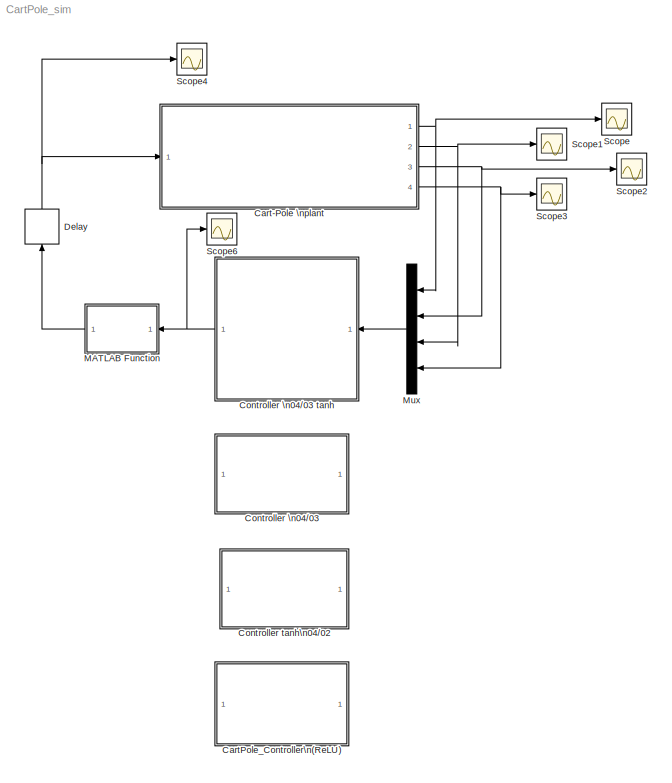
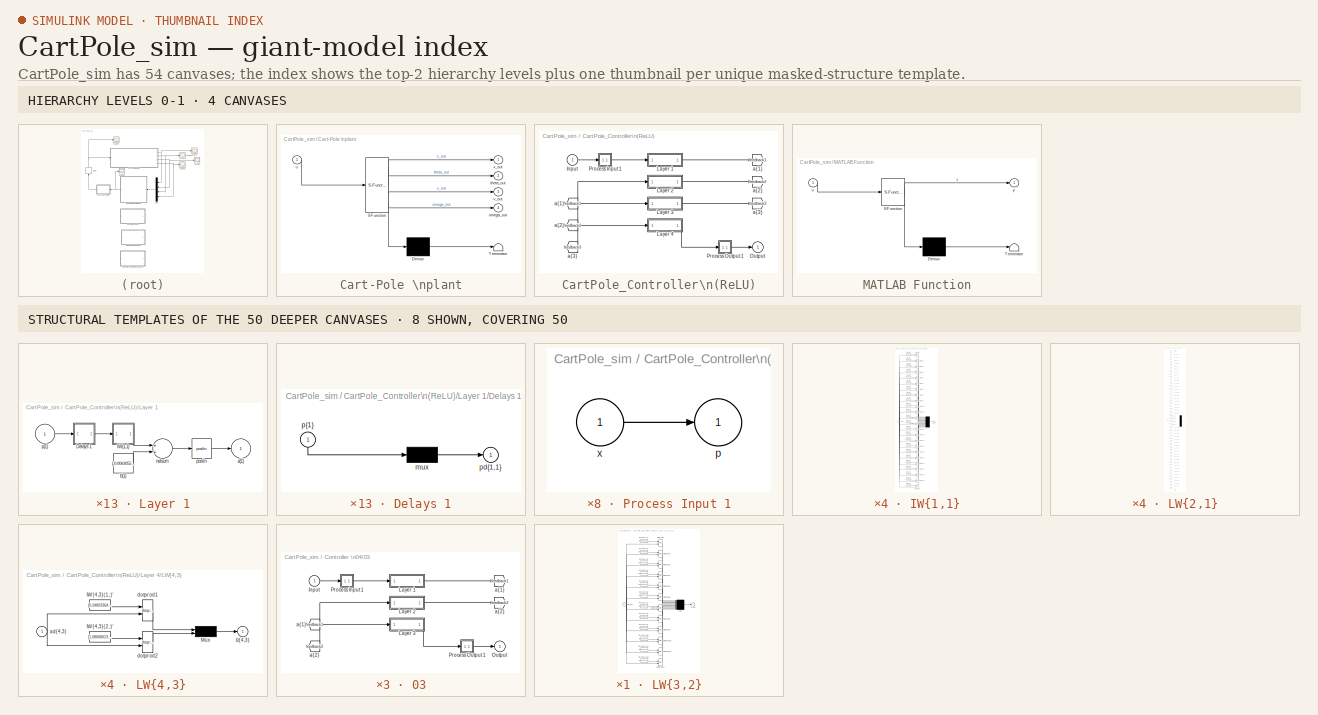
[diagram: thumbnail index - top-2 hierarchy levels (4 canvases) + 8 structural-template representatives of the remaining 50 canvases]
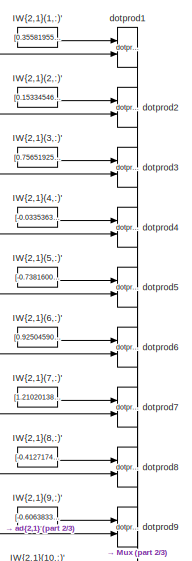
[diagram: Controller \n04/03/Layer 2/LW{2,1} - part 1/3, top center region]
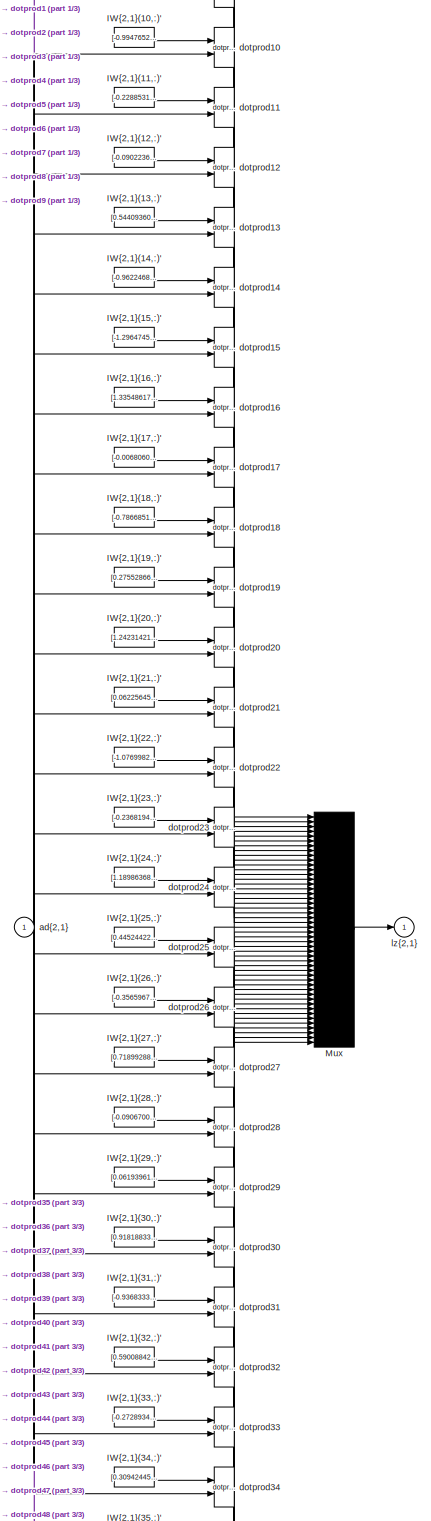
[diagram: Controller \n04/03/Layer 2/LW{2,1} - part 2/3, full width, middle band]
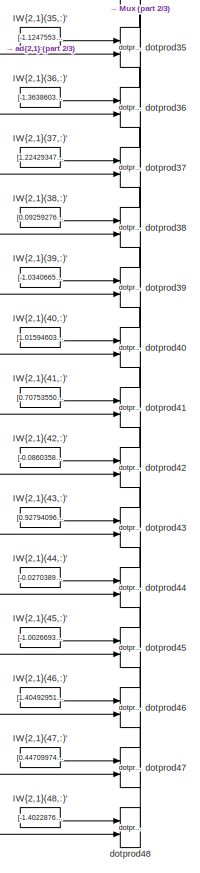
[diagram: Controller \n04/03/Layer 2/LW{2,1} - part 3/3, bottom center region]
MODEL CartPole_sim
KIND model
BLOCK [SubSystem] Cart-Pole \nplant
  ErrorFcn = Stateflow.Translate.translate
  PermitHierarchicalResolution = ExplicitOnly
  Ports = [1, 4]
  RequestExecContextInheritance = off
  SFBlockType = Chart
  SID = 1
  TreatAsAtomicUnit = on
BLOCK [Demux] Cart-Pole \nplant/ Demux 
  Outputs = 1
  Ports = [1, 1]
  SID = 1::90
BLOCK [S-Function] Cart-Pole \nplant/ SFunction 
  EnableBusSupport = on
  FunctionName = sf_sfun
  PortCounts = [1 5]
  Ports = [1, 5]
  SFcnIsStateOwnerBlock = off
  SFunctionDeploymentMode = off
  SID = 1::89
  Tag = Stateflow S-Function CartPole_sim 3
BLOCK [Terminator] Cart-Pole \nplant/ Terminator 
  SID = 1::91
BLOCK [Outport] Cart-Pole \nplant/omega_out
  IconDisplay = Port number
  Port = 4
  SID = 1::96
BLOCK [Outport] Cart-Pole \nplant/theta_out
  IconDisplay = Port number
  Port = 2
  SID = 1::94
BLOCK [Inport] Cart-Pole \nplant/u
  IconDisplay = Port number
  SID = 1::97
BLOCK [Outport] Cart-Pole \nplant/v_out
  IconDisplay = Port number
  Port = 3
  SID = 1::95
BLOCK [Outport] Cart-Pole \nplant/x_out
  IconDisplay = Port number
  SID = 1::93
BLOCK [SubSystem] CartPole_Controller\n(ReLU)
  Ports = [1, 1]
  RequestExecContextInheritance = off
  SID = 2623
BLOCK [From] CartPole_Controller\n(ReLU)/ a{1} 
  GotoTag = feedback1
  SID = 2625
BLOCK [From] CartPole_Controller\n(ReLU)/ a{2} 
  GotoTag = feedback2
  SID = 2626
BLOCK [From] CartPole_Controller\n(ReLU)/ a{3} 
  GotoTag = feedback3
  SID = 2627
BLOCK [Inport] CartPole_Controller\n(ReLU)/Input
  IconDisplay = Port number
  PortDimensions = 4
  SID = 2624
BLOCK [SubSystem] CartPole_Controller\n(ReLU)/Layer 1
  Ports = [1, 1]
  RequestExecContextInheritance = off
  SID = 2628
BLOCK [SubSystem] CartPole_Controller\n(ReLU)/Layer 1/Delays 1
  Ports = [1, 1]
  RequestExecContextInheritance = off
  SID = 2630
BLOCK [Mux] CartPole_Controller\n(ReLU)/Layer 1/Delays 1/mux
  Inputs = 1
  Ports = [1, 1]
  SID = 2632
BLOCK [Outport] CartPole_Controller\n(ReLU)/Layer 1/Delays 1/pd{1,1}
  IconDisplay = Port number
  SID = 2633
BLOCK [Inport] CartPole_Controller\n(ReLU)/Layer 1/Delays 1/p{1}
  IconDisplay = Port number
  PortDimensions = 4
  SID = 2631
BLOCK [SubSystem] CartPole_Controller\n(ReLU)/Layer 1/IW{1,1}
  Ports = [1, 1]
  RequestExecContextInheritance = off
  SID = 2634
BLOCK [Constant] CartPole_Controller\n(ReLU)/Layer 1/IW{1,1}/IW{1,1}(1,:)'
  SID = 2636
  Value = [0.2523224651813507080078125;-0.2455669939517974853515625;-1.15037548542022705078125;-0.705918252468109130859375]
BLOCK [Constant] CartPole_Controller\n(ReLU)/Layer 1/IW{1,1}/IW{1,1}(10,:)'
  SID = 2637
  Value = [0.351490914821624755859375;0.8357474803924560546875;0.340256214141845703125;0.19725419580936431884765625]
BLOCK [Constant] CartPole_Controller\n(ReLU)/Layer 1/IW{1,1}/IW{1,1}(11,:)'
  SID = 2638
  Value = [0.27419483661651611328125;-0.052526079118251800537109375;-1.36656486988067626953125;-0.6285190582275390625]
BLOCK [Constant] CartPole_Controller\n(ReLU)/Layer 1/IW{1,1}/IW{1,1}(12,:)'
  SID = 2639
  Value = [-0.61723530292510986328125;-0.3212698400020599365234375;0.26761090755462646484375;-0.3515857756137847900390625]
BLOCK [Constant] CartPole_Controller\n(ReLU)/Layer 1/IW{1,1}/IW{1,1}(13,:)'
  SID = 2640
  Value = [0.3410082757472991943359375;-0.18926320970058441162109375;1.2018167972564697265625;0.780776500701904296875]
BLOCK [Constant] CartPole_Controller\n(ReLU)/Layer 1/IW{1,1}/IW{1,1}(14,:)'
  SID = 2641
  Value = [-0.1605972945690155029296875;-0.0608492083847522735595703125;-0.0359160900115966796875;-0.2459491789340972900390625]
BLOCK [Constant] CartPole_Controller\n(ReLU)/Layer 1/IW{1,1}/IW{1,1}(15,:)'
  SID = 2642
  Value = [-0.20453898608684539794921875;-0.17811529338359832763671875;1.15578258037567138671875;0.751191794872283935546875]
BLOCK [Constant] CartPole_Controller\n(ReLU)/Layer 1/IW{1,1}/IW{1,1}(16,:)'
  SID = 2643
  Value = [0.008686455897986888885498046875;0.180945456027984619140625;0.571848213672637939453125;-0.2184321880340576171875]
BLOCK [Constant] CartPole_Controller\n(ReLU)/Layer 1/IW{1,1}/IW{1,1}(17,:)'
  SID = 2644
  Value = [-0.015470481477677822113037109375;-0.29992163181304931640625;-1.33551311492919921875;-0.827671527862548828125]
BLOCK [Constant] CartPole_Controller\n(ReLU)/Layer 1/IW{1,1}/IW{1,1}(18,:)'
  SID = 2645
  Value = [-0.1824665963649749755859375;0.258258640766143798828125;0.509316146373748779296875;-0.001905656419694423675537109375]
BLOCK [Constant] CartPole_Controller\n(ReLU)/Layer 1/IW{1,1}/IW{1,1}(19,:)'
  SID = 2646
  Value = [0.19388164579868316650390625;0.3596037924289703369140625;0.1375104486942291259765625;-0.0292047522962093353271484375]
BLOCK [Constant] CartPole_Controller\n(ReLU)/Layer 1/IW{1,1}/IW{1,1}(2,:)'
  SID = 2647
  Value = [-0.446269512176513671875;-0.004828979261219501495361328125;-1.19986617565155029296875;-0.754739820957183837890625]
BLOCK [Constant] CartPole_Controller\n(ReLU)/Layer 1/IW{1,1}/IW{1,1}(20,:)'
  SID = 2648
  Value = [-0.098568022251129150390625;0.297215521335601806640625;0.852480828762054443359375;-0.008203216828405857086181640625]
BLOCK [Constant] CartPole_Controller\n(ReLU)/Layer 1/IW{1,1}/IW{1,1}(21,:)'
  SID = 2649
  Value = [0.667298376560211181640625;-0.0603669099509716033935546875;-0.23827256262302398681640625;-0.0333109162747859954833984375]
BLOCK [Constant] CartPole_Controller\n(ReLU)/Layer 1/IW{1,1}/IW{1,1}(22,:)'
  SID = 2650
  Value = [0.20281915366649627685546875;0.55083930492401123046875;0.263383448123931884765625;0.092487789690494537353515625]
BLOCK [Constant] CartPole_Controller\n(ReLU)/Layer 1/IW{1,1}/IW{1,1}(23,:)'
  SID = 2651
  Value = [0.644155919551849365234375;0.5864951610565185546875;0.4780151546001434326171875;0.2738604247570037841796875]
BLOCK [Constant] CartPole_Controller\n(ReLU)/Layer 1/IW{1,1}/IW{1,1}(24,:)'
  SID = 2652
  Value = [0.4826578199863433837890625;0.413881778717041015625;0.718039453029632568359375;-0.012315474450588226318359375]
BLOCK [Constant] CartPole_Controller\n(ReLU)/Layer 1/IW{1,1}/IW{1,1}(3,:)'
  SID = 2653
  Value = [-0.4484219253063201904296875;0.2355841696262359619140625;-1.2038428783416748046875;-0.742212593555450439453125]
BLOCK [Constant] CartPole_Controller\n(ReLU)/Layer 1/IW{1,1}/IW{1,1}(4,:)'
  SID = 2654
  Value = [-0.0879907906055450439453125;0.50776350498199462890625;0.43934047222137451171875;0.402527630329132080078125]
BLOCK [Constant] CartPole_Controller\n(ReLU)/Layer 1/IW{1,1}/IW{1,1}(5,:)'
  SID = 2655
  Value = [0.65946209430694580078125;0.3311125338077545166015625;0.3458550274372100830078125;-0.001248417771421372890472412109375]
BLOCK [Constant] CartPole_Controller\n(ReLU)/Layer 1/IW{1,1}/IW{1,1}(6,:)'
  SID = 2656
  Value = [0.21877168118953704833984375;-0.29791915416717529296875;0.1824108064174652099609375;-0.3690417110919952392578125]
BLOCK [Constant] CartPole_Controller\n(ReLU)/Layer 1/IW{1,1}/IW{1,1}(7,:)'
  SID = 2657
  Value = [0.15503571927547454833984375;0.0430071838200092315673828125;0.54362523555755615234375;-0.276398181915283203125]
BLOCK [Constant] CartPole_Controller\n(ReLU)/Layer 1/IW{1,1}/IW{1,1}(8,:)'
  SID = 2658
  Value = [0.331823050975799560546875;0.16822619736194610595703125;-0.0375410653650760650634765625;-0.013965948484838008880615234375]
BLOCK [Constant] CartPole_Controller\n(ReLU)/Layer 1/IW{1,1}/IW{1,1}(9,:)'
  SID = 2659
  Value = [0.39264762401580810546875;0.20245896279811859130859375;0.632217228412628173828125;0.006107513792812824249267578125]
BLOCK [Mux] CartPole_Controller\n(ReLU)/Layer 1/IW{1,1}/Mux
  Inputs = 24
  Ports = [24, 1]
  SID = 2660
BLOCK [Reference] CartPole_Controller\n(ReLU)/Layer 1/IW{1,1}/dotprod1  REF=neural/Weight Functions/dotprod
  Ports = [2, 1]
  SID = 2661
  SourceBlock = neural/Weight Functions/dotprod
  SourceProductBaseCode = NN
  SourceProductName = Neural Network Toolbox
  SourceType = DOTPROD
BLOCK [Reference] CartPole_Controller\n(ReLU)/Layer 1/IW{1,1}/dotprod10  REF=neural/Weight Functions/dotprod
  Ports = [2, 1]
  SID = 2662
  SourceBlock = neural/Weight Functions/dotprod
  SourceProductBaseCode = NN
  SourceProductName = Neural Network Toolbox
  SourceType = DOTPROD
BLOCK [Reference] CartPole_Controller\n(ReLU)/Layer 1/IW{1,1}/dotprod11  REF=neural/Weight Functions/dotprod
  Ports = [2, 1]
  SID = 2663
  SourceBlock = neural/Weight Functions/dotprod
  SourceProductBaseCode = NN
  SourceProductName = Neural Network Toolbox
  SourceType = DOTPROD
BLOCK [Reference] CartPole_Controller\n(ReLU)/Layer 1/IW{1,1}/dotprod12  REF=neural/Weight Functions/dotprod
  Ports = [2, 1]
  SID = 2664
  SourceBlock = neural/Weight Functions/dotprod
  SourceProductBaseCode = NN
  SourceProductName = Neural Network Toolbox
  SourceType = DOTPROD
BLOCK [Reference] CartPole_Controller\n(ReLU)/Layer 1/IW{1,1}/dotprod13  REF=neural/Weight Functions/dotprod
  Ports = [2, 1]
  SID = 2665
  SourceBlock = neural/Weight Functions/dotprod
  SourceProductBaseCode = NN
  SourceProductName = Neural Network Toolbox
  SourceType = DOTPROD
BLOCK [Reference] CartPole_Controller\n(ReLU)/Layer 1/IW{1,1}/dotprod14  REF=neural/Weight Functions/dotprod
  Ports = [2, 1]
  SID = 2666
  SourceBlock = neural/Weight Functions/dotprod
  SourceProductBaseCode = NN
  SourceProductName = Neural Network Toolbox
  SourceType = DOTPROD
BLOCK [Reference] CartPole_Controller\n(ReLU)/Layer 1/IW{1,1}/dotprod15  REF=neural/Weight Functions/dotprod
  Ports = [2, 1]
  SID = 2667
  SourceBlock = neural/Weight Functions/dotprod
  SourceProductBaseCode = NN
  SourceProductName = Neural Network Toolbox
  SourceType = DOTPROD
BLOCK [Reference] CartPole_Controller\n(ReLU)/Layer 1/IW{1,1}/dotprod16  REF=neural/Weight Functions/dotprod
  Ports = [2, 1]
  SID = 2668
  SourceBlock = neural/Weight Functions/dotprod
  SourceProductBaseCode = NN
  SourceProductName = Neural Network Toolbox
  SourceType = DOTPROD
BLOCK [Reference] CartPole_Controller\n(ReLU)/Layer 1/IW{1,1}/dotprod17  REF=neural/Weight Functions/dotprod
  Ports = [2, 1]
  SID = 2669
  SourceBlock = neural/Weight Functions/dotprod
  SourceProductBaseCode = NN
  SourceProductName = Neural Network Toolbox
  SourceType = DOTPROD
BLOCK [Reference] CartPole_Controller\n(ReLU)/Layer 1/IW{1,1}/dotprod18  REF=neural/Weight Functions/dotprod
  Ports = [2, 1]
  SID = 2670
  SourceBlock = neural/Weight Functions/dotprod
  SourceProductBaseCode = NN
  SourceProductName = Neural Network Toolbox
  SourceType = DOTPROD
BLOCK [Reference] CartPole_Controller\n(ReLU)/Layer 1/IW{1,1}/dotprod19  REF=neural/Weight Functions/dotprod
  Ports = [2, 1]
  SID = 2671
  SourceBlock = neural/Weight Functions/dotprod
  SourceProductBaseCode = NN
  SourceProductName = Neural Network Toolbox
  SourceType = DOTPROD
BLOCK [Reference] CartPole_Controller\n(ReLU)/Layer 1/IW{1,1}/dotprod2  REF=neural/Weight Functions/dotprod
  Ports = [2, 1]
  SID = 2672
  SourceBlock = neural/Weight Functions/dotprod
  SourceProductBaseCode = NN
  SourceProductName = Neural Network Toolbox
  SourceType = DOTPROD
BLOCK [Reference] CartPole_Controller\n(ReLU)/Layer 1/IW{1,1}/dotprod20  REF=neural/Weight Functions/dotprod
  Ports = [2, 1]
  SID = 2673
  SourceBlock = neural/Weight Functions/dotprod
  SourceProductBaseCode = NN
  SourceProductName = Neural Network Toolbox
  SourceType = DOTPROD
BLOCK [Reference] CartPole_Controller\n(ReLU)/Layer 1/IW{1,1}/dotprod21  REF=neural/Weight Functions/dotprod
  Ports = [2, 1]
  SID = 2674
  SourceBlock = neural/Weight Functions/dotprod
  SourceProductBaseCode = NN
  SourceProductName = Neural Network Toolbox
  SourceType = DOTPROD
BLOCK [Reference] CartPole_Controller\n(ReLU)/Layer 1/IW{1,1}/dotprod22  REF=neural/Weight Functions/dotprod
  Ports = [2, 1]
  SID = 2675
  SourceBlock = neural/Weight Functions/dotprod
  SourceProductBaseCode = NN
  SourceProductName = Neural Network Toolbox
  SourceType = DOTPROD
BLOCK [Reference] CartPole_Controller\n(ReLU)/Layer 1/IW{1,1}/dotprod23  REF=neural/Weight Functions/dotprod
  Ports = [2, 1]
  SID = 2676
  SourceBlock = neural/Weight Functions/dotprod
  SourceProductBaseCode = NN
  SourceProductName = Neural Network Toolbox
  SourceType = DOTPROD
BLOCK [Reference] CartPole_Controller\n(ReLU)/Layer 1/IW{1,1}/dotprod24  REF=neural/Weight Functions/dotprod
  Ports = [2, 1]
  SID = 2677
  SourceBlock = neural/Weight Functions/dotprod
  SourceProductBaseCode = NN
  SourceProductName = Neural Network Toolbox
  SourceType = DOTPROD
BLOCK [Reference] CartPole_Controller\n(ReLU)/Layer 1/IW{1,1}/dotprod3  REF=neural/Weight Functions/dotprod
  Ports = [2, 1]
  SID = 2678
  SourceBlock = neural/Weight Functions/dotprod
  SourceProductBaseCode = NN
  SourceProductName = Neural Network Toolbox
  SourceType = DOTPROD
BLOCK [Reference] CartPole_Controller\n(ReLU)/Layer 1/IW{1,1}/dotprod4  REF=neural/Weight Functions/dotprod
  Ports = [2, 1]
  SID = 2679
  SourceBlock = neural/Weight Functions/dotprod
  SourceProductBaseCode = NN
  SourceProductName = Neural Network Toolbox
  SourceType = DOTPROD
BLOCK [Reference] CartPole_Controller\n(ReLU)/Layer 1/IW{1,1}/dotprod5  REF=neural/Weight Functions/dotprod
  Ports = [2, 1]
  SID = 2680
  SourceBlock = neural/Weight Functions/dotprod
  SourceProductBaseCode = NN
  SourceProductName = Neural Network Toolbox
  SourceType = DOTPROD
BLOCK [Reference] CartPole_Controller\n(ReLU)/Layer 1/IW{1,1}/dotprod6  REF=neural/Weight Functions/dotprod
  Ports = [2, 1]
  SID = 2681
  SourceBlock = neural/Weight Functions/dotprod
  SourceProductBaseCode = NN
  SourceProductName = Neural Network Toolbox
  SourceType = DOTPROD
BLOCK [Reference] CartPole_Controller\n(ReLU)/Layer 1/IW{1,1}/dotprod7  REF=neural/Weight Functions/dotprod
  Ports = [2, 1]
  SID = 2682
  SourceBlock = neural/Weight Functions/dotprod
  SourceProductBaseCode = NN
  SourceProductName = Neural Network Toolbox
  SourceType = DOTPROD
BLOCK [Reference] CartPole_Controller\n(ReLU)/Layer 1/IW{1,1}/dotprod8  REF=neural/Weight Functions/dotprod
  Ports = [2, 1]
  SID = 2683
  SourceBlock = neural/Weight Functions/dotprod
  SourceProductBaseCode = NN
  SourceProductName = Neural Network Toolbox
  SourceType = DOTPROD
BLOCK [Reference] CartPole_Controller\n(ReLU)/Layer 1/IW{1,1}/dotprod9  REF=neural/Weight Functions/dotprod
  Ports = [2, 1]
  SID = 2684
  SourceBlock = neural/Weight Functions/dotprod
  SourceProductBaseCode = NN
  SourceProductName = Neural Network Toolbox
  SourceType = DOTPROD
BLOCK [Outport] CartPole_Controller\n(ReLU)/Layer 1/IW{1,1}/iz{1,1}
  IconDisplay = Port number
  SID = 2685
BLOCK [Inport] CartPole_Controller\n(ReLU)/Layer 1/IW{1,1}/pd{1,1}
  IconDisplay = Port number
  PortDimensions = 4
  SID = 2635
BLOCK [Outport] CartPole_Controller\n(ReLU)/Layer 1/a{1}
  IconDisplay = Port number
  InitialOutput = [0;0;0;0;0;0;0;0;0;0;0;0;0;0;0;0;0;0;0;0;0;0;0;0]
  SID = 2689
BLOCK [Constant] CartPole_Controller\n(ReLU)/Layer 1/b{1}
  SID = 2686
  Value = [-0.006305568851530551910400390625;0.19766716659069061279296875;-0.17124159634113311767578125;0.520946085453033447265625;0.50220966339111328125;0.605747520923614501953125;0.823161303997039794921875;0.8142926692962646484375;0.621064603328704833984375;0.498081862926483154296875;0.12814629077911376953125;0.707322597503662109375;0.15585340559482574462890625;0.786443412303924560546875;-0.41809532046318...<+253ch>
BLOCK [Sum] CartPole_Controller\n(ReLU)/Layer 1/netsum
  Inputs = 2
  Ports = [2, 1]
  SID = 2687
BLOCK [Reference] CartPole_Controller\n(ReLU)/Layer 1/poslin  REF=neural/Transfer Functions/poslin
  Ports = [1, 1]
  SID = 2688
  SourceBlock = neural/Transfer Functions/poslin
  SourceProductBaseCode = NN
  SourceProductName = Neural Network Toolbox
  SourceType = POSLIN
BLOCK [Inport] CartPole_Controller\n(ReLU)/Layer 1/p{1}
  IconDisplay = Port number
  PortDimensions = 4
  SID = 2629
BLOCK [SubSystem] CartPole_Controller\n(ReLU)/Layer 2
  Ports = [1, 1]
  RequestExecContextInheritance = off
  SID = 2690
BLOCK [SubSystem] CartPole_Controller\n(ReLU)/Layer 2/Delays 1
  Ports = [1, 1]
  RequestExecContextInheritance = off
  SID = 2692
BLOCK [Mux] CartPole_Controller\n(ReLU)/Layer 2/Delays 1/mux
  Inputs = 1
  Ports = [1, 1]
  SID = 2694
BLOCK [Outport] CartPole_Controller\n(ReLU)/Layer 2/Delays 1/pd{2,1}
  IconDisplay = Port number
  SID = 2695
BLOCK [Inport] CartPole_Controller\n(ReLU)/Layer 2/Delays 1/p{2}
  IconDisplay = Port number
  PortDimensions = 24
  SID = 2693
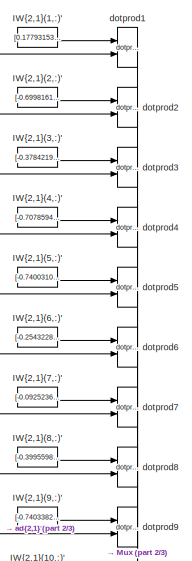
[diagram: CartPole_Controller\n(ReLU)/Layer 2/LW{2,1} - part 1/3, top center region]
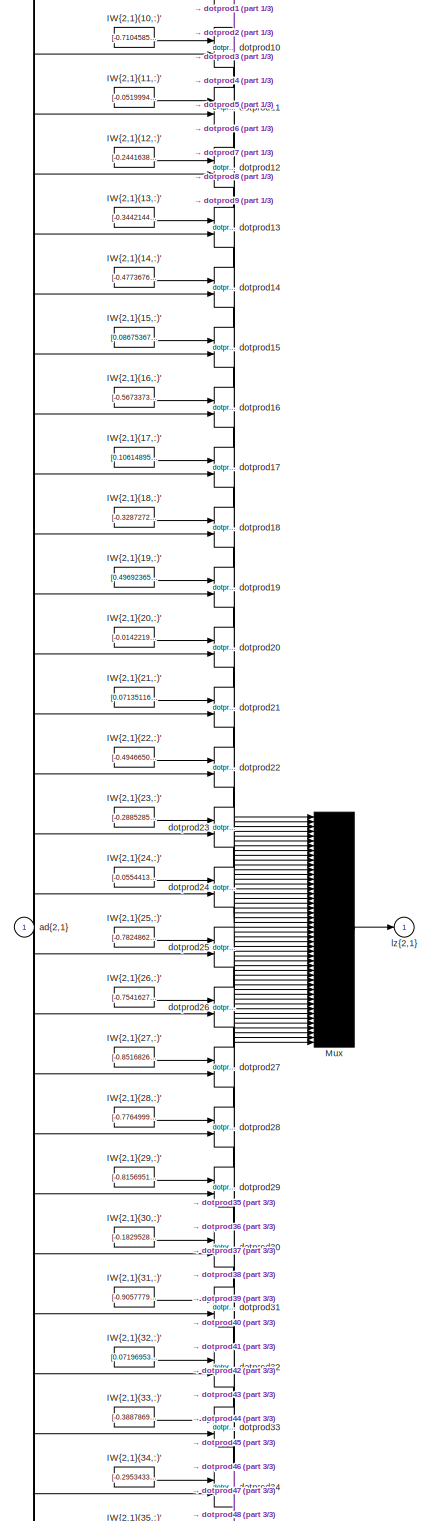
[diagram: CartPole_Controller\n(ReLU)/Layer 2/LW{2,1} - part 2/3, full width, middle band]
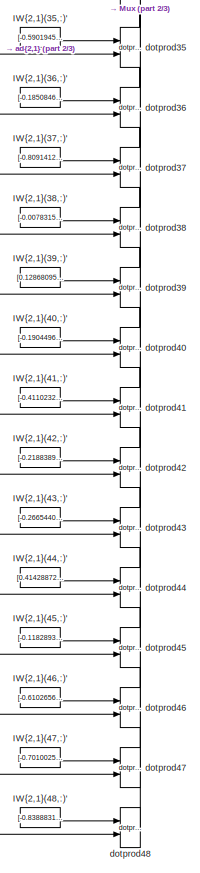
[diagram: CartPole_Controller\n(ReLU)/Layer 2/LW{2,1} - part 3/3, bottom center region]
BLOCK [SubSystem] CartPole_Controller\n(ReLU)/Layer 2/LW{2,1}
  Ports = [1, 1]
  RequestExecContextInheritance = off
  SID = 2696
BLOCK [Constant] CartPole_Controller\n(ReLU)/Layer 2/LW{2,1}/IW{2,1}(1,:)'
  SID = 2698
  Value = [0.17793153226375579833984375;0.1859981119632720947265625;-0.16986320912837982177734375;0.11441658437252044677734375;-0.04545845091342926025390625;-0.067898832261562347412109375;-0.112249962985515594482421875;-0.341665923595428466796875;-0.16411559283733367919921875;-0.24434326589107513427734375;0.08263753354549407958984375;-0.1408951580524444580078125;-0.2918171584606170654296875;0.15678936243057...<+293ch>
BLOCK [Constant] CartPole_Controller\n(ReLU)/Layer 2/LW{2,1}/IW{2,1}(10,:)'
  SID = 2699
  Value = [-0.710458576679229736328125;-0.51606476306915283203125;-0.24017746746540069580078125;0.24310727417469024658203125;0.2478575408458709716796875;0.37399876117706298828125;0.3521610796451568603515625;0.4022037088871002197265625;0.083052955567836761474609375;0.4132991731166839599609375;-0.572883307933807373046875;0.55121552944183349609375;-0.120738543570041656494140625;-0.01365948747843503952026367187...<+286ch>
BLOCK [Constant] CartPole_Controller\n(ReLU)/Layer 2/LW{2,1}/IW{2,1}(11,:)'
  SID = 2700
  Value = [-0.05199946463108062744140625;-0.0074102594517171382904052734375;-0.13615505397319793701171875;-0.0498603768646717071533203125;-0.0047139967791736125946044921875;-0.2507493793964385986328125;-0.14031536877155303955078125;-0.34981060028076171875;-0.12768028676509857177734375;-0.1695293486118316650390625;0.180331647396087646484375;-0.108905605971813201904296875;-0.2546574175357818603515625;-0.35492...<+305ch>
BLOCK [Constant] CartPole_Controller\n(ReLU)/Layer 2/LW{2,1}/IW{2,1}(12,:)'
  SID = 2701
  Value = [-0.2441638410091400146484375;-0.534206807613372802734375;-0.25519597530364990234375;0.28065204620361328125;0.013112788088619709014892578125;-0.0191885568201541900634765625;-0.23926918208599090576171875;0.14096046984195709228515625;0.12704183161258697509765625;-0.0486580766737461090087890625;-0.79332458972930908203125;-0.290355741977691650390625;0.84680163860321044921875;-0.11355908960103988647460...<+290ch>
BLOCK [Constant] CartPole_Controller\n(ReLU)/Layer 2/LW{2,1}/IW{2,1}(13,:)'
  SID = 2702
  Value = [-0.3442144095897674560546875;-0.3063831031322479248046875;-0.435578048229217529296875;0.351960361003875732421875;0.4898283779621124267578125;0.0536787472665309906005859375;0.026038058102130889892578125;0.46964848041534423828125;0.546927750110626220703125;0.123293302953243255615234375;-0.8183076381683349609375;0.117013908922672271728515625;0.3012053668498992919921875;0.48795664310455322265625;-0.1...<+274ch>
BLOCK [Constant] CartPole_Controller\n(ReLU)/Layer 2/LW{2,1}/IW{2,1}(14,:)'
  SID = 2703
  Value = [-0.4773676693439483642578125;-0.5281963348388671875;-0.317266941070556640625;0.3825215399265289306640625;0.2178967297077178955078125;0.2848933041095733642578125;0.081640653312206268310546875;0.2920596599578857421875;0.4389199316501617431640625;0.49662685394287109375;-0.465090930461883544921875;0.558321416378021240234375;0.2759543955326080322265625;0.2689083516597747802734375;-0.081950083374977111...<+256ch>
BLOCK [Constant] CartPole_Controller\n(ReLU)/Layer 2/LW{2,1}/IW{2,1}(15,:)'
  SID = 2704
  Value = [0.086753673851490020751953125;-0.3554206192493438720703125;0.18437357246875762939453125;-0.118689693510532379150390625;-0.319101870059967041015625;0.041379310190677642822265625;0.1014156043529510498046875;0.1006038486957550048828125;0.027447767555713653564453125;0.02805717289447784423828125;-0.13532702624797821044921875;-0.096639819443225860595703125;-0.01881659217178821563720703125;-0.0357158929...<+301ch>
BLOCK [Constant] CartPole_Controller\n(ReLU)/Layer 2/LW{2,1}/IW{2,1}(16,:)'
  SID = 2705
  Value = [-0.567337334156036376953125;-0.4865228831768035888671875;-0.372261226177215576171875;0.012855686247348785400390625;0.3839932978153228759765625;0.43558824062347412109375;0.306111633777618408203125;0.37232720851898193359375;0.3490060269832611083984375;0.2784020900726318359375;-0.3075011074542999267578125;0.55950438976287841796875;0.01533712446689605712890625;0.3223581016063690185546875;-0.533348202...<+269ch>
BLOCK [Constant] CartPole_Controller\n(ReLU)/Layer 2/LW{2,1}/IW{2,1}(17,:)'
  SID = 2706
  Value = [0.1061489582061767578125;-0.13188399374485015869140625;-0.06996236741542816162109375;-0.0052545894868671894073486328125;0.0359315909445285797119140625;-0.2982311546802520751953125;-0.0222048461437225341796875;0.115581728518009185791015625;-0.1622667014598846435546875;-0.103462301194667816162109375;-0.130967676639556884765625;-0.035495914518833160400390625;0.040302909910678863525390625;-0.25582724...<+310ch>
BLOCK [Constant] CartPole_Controller\n(ReLU)/Layer 2/LW{2,1}/IW{2,1}(18,:)'
  SID = 2707
  Value = [-0.328727245330810546875;-0.1750428378582000732421875;-0.2549169361591339111328125;-0.20407140254974365234375;-0.1901338100433349609375;-0.2954456508159637451171875;0.08257795870304107666015625;-0.09880621731281280517578125;0.032512955367565155029296875;-0.1817125380039215087890625;-0.3162063658237457275390625;0.250665843486785888671875;0.20807777345180511474609375;0.062180496752262115478515625;-...<+277ch>
BLOCK [Constant] CartPole_Controller\n(ReLU)/Layer 2/LW{2,1}/IW{2,1}(19,:)'
  SID = 2708
  Value = [0.4969236552715301513671875;0.377073466777801513671875;0.3897948563098907470703125;-0.18428300321102142333984375;0.3357975482940673828125;0.547106444835662841796875;0.1151540279388427734375;-0.0134592391550540924072265625;0.323673784732818603515625;0.307825505733489990234375;0.5938594341278076171875;0.223348796367645263671875;-0.883578717708587646484375;0.14210702478885650634765625;-0.67827171087...<+264ch>
BLOCK [Constant] CartPole_Controller\n(ReLU)/Layer 2/LW{2,1}/IW{2,1}(2,:)'
  SID = 2709
  Value = [-0.699816167354583740234375;-0.304755151271820068359375;-0.62496662139892578125;0.012582975439727306365966796875;0.09891371428966522216796875;0.16738523542881011962890625;0.08365833759307861328125;0.74265956878662109375;0.537080228328704833984375;0.45570719242095947265625;-0.374847114086151123046875;0.268102347850799560546875;0.3807389438152313232421875;0.090760149061679840087890625;-0.1231507807...<+262ch>
BLOCK [Constant] CartPole_Controller\n(ReLU)/Layer 2/LW{2,1}/IW{2,1}(20,:)'
  SID = 2710
  Value = [-0.0142219476401805877685546875;0.19944952428340911865234375;-0.2455310821533203125;0.09694765508174896240234375;-0.084818713366985321044921875;-0.32041394710540771484375;-0.050527207553386688232421875;-0.079600967466831207275390625;0.1227783262729644775390625;-0.32013428211212158203125;0.1808612346649169921875;-0.00329609215259552001953125;-0.0418489277362823486328125;-0.122985653579235076904296...<+297ch>
BLOCK [Constant] CartPole_Controller\n(ReLU)/Layer 2/LW{2,1}/IW{2,1}(21,:)'
  SID = 2711
  Value = [0.071351163089275360107421875;-0.0233952663838863372802734375;0.050514347851276397705078125;0.12357433140277862548828125;0.49145591259002685546875;0.08154006302356719970703125;0.3028536140918731689453125;0.3699093759059906005859375;0.432185590267181396484375;0.620882332324981689453125;0.16493536531925201416015625;0.102503068745136260986328125;-0.653860569000244140625;-0.08798845112323760986328125...<+273ch>
BLOCK [Constant] CartPole_Controller\n(ReLU)/Layer 2/LW{2,1}/IW{2,1}(22,:)'
  SID = 2712
  Value = [-0.49466502666473388671875;-0.3578336238861083984375;-0.640775263309478759765625;0.35668885707855224609375;0.4616524279117584228515625;0.651324689388275146484375;0.5524551868438720703125;0.449014127254486083984375;0.2982086241245269775390625;0.5991497039794921875;-0.18493683636188507080078125;0.45440757274627685546875;-0.44563400745391845703125;0.4219952523708343505859375;-0.646270334720611572265...<+251ch>
BLOCK [Constant] CartPole_Controller\n(ReLU)/Layer 2/LW{2,1}/IW{2,1}(23,:)'
  SID = 2713
  Value = [-0.2885285913944244384765625;0.0456117205321788787841796875;0.08058695495128631591796875;-0.11409962177276611328125;-0.1517885625362396240234375;-0.2695195674896240234375;-0.101472027599811553955078125;-0.12776182591915130615234375;-0.3220218718051910400390625;-0.0353408753871917724609375;0.171303570270538330078125;-0.2337251007556915283203125;-0.195362746715545654296875;-0.0844499617815017700195...<+300ch>
BLOCK [Constant] CartPole_Controller\n(ReLU)/Layer 2/LW{2,1}/IW{2,1}(24,:)'
  SID = 2714
  Value = [-0.05544133484363555908203125;0.19086210429668426513671875;-0.21319054067134857177734375;-0.0396954230964183807373046875;-0.2506825625896453857421875;0.085753403604030609130859375;-0.17402084171772003173828125;-0.3382426798343658447265625;0.03100853599607944488525390625;-0.1229555904865264892578125;0.2204514443874359130859375;-0.03097800724208354949951171875;-0.210751712322235107421875;-0.2885929...<+304ch>
BLOCK [Constant] CartPole_Controller\n(ReLU)/Layer 2/LW{2,1}/IW{2,1}(25,:)'
  SID = 2715
  Value = [-0.7824862003326416015625;-0.762660205364227294921875;-0.3202356398105621337890625;0.260756671428680419921875;0.06568430364131927490234375;-0.10139344632625579833984375;0.4724462032318115234375;0.716887295246124267578125;0.627246677875518798828125;0.11465428769588470458984375;-0.776716411113739013671875;0.83774769306182861328125;0.301717579364776611328125;0.370977103710174560546875;-0.11301562190...<+261ch>
BLOCK [Constant] CartPole_Controller\n(ReLU)/Layer 2/LW{2,1}/IW{2,1}(26,:)'
  SID = 2716
  Value = [-0.75416278839111328125;-0.4574575722217559814453125;-0.3717026412487030029296875;0.352133095264434814453125;0.3096629083156585693359375;0.3145613968372344970703125;0.1376111805438995361328125;0.8100349903106689453125;0.4664069712162017822265625;0.58094203472137451171875;-0.789631783962249755859375;0.2820880711078643798828125;0.1355705559253692626953125;0.3244953155517578125;-0.718327999114990234...<+245ch>
BLOCK [Constant] CartPole_Controller\n(ReLU)/Layer 2/LW{2,1}/IW{2,1}(27,:)'
  SID = 2717
  Value = [-0.8516826629638671875;-0.427007734775543212890625;-0.2225160896778106689453125;0.53292000293731689453125;0.500030696392059326171875;0.394746720790863037109375;0.2304557263851165771484375;0.724495947360992431640625;0.33976459503173828125;0.17679798603057861328125;-0.848969876766204833984375;0.706096649169921875;0.2772282063961029052734375;0.4392965734004974365234375;-0.17888151109218597412109375;...<+251ch>
BLOCK [Constant] CartPole_Controller\n(ReLU)/Layer 2/LW{2,1}/IW{2,1}(28,:)'
  SID = 2718
  Value = [-0.7764999866485595703125;-0.67775785923004150390625;-0.4860544502735137939453125;0.313144028186798095703125;-0.0401921309530735015869140625;0.0490759201347827911376953125;0.32481288909912109375;0.810429096221923828125;0.182169735431671142578125;0.3298179209232330322265625;-0.21139395236968994140625;0.938483774662017822265625;0.251507580280303955078125;0.095373176038265228271484375;-0.25697800517...<+260ch>
BLOCK [Constant] CartPole_Controller\n(ReLU)/Layer 2/LW{2,1}/IW{2,1}(29,:)'
  SID = 2719
  Value = [-0.815695106983184814453125;-0.6656951904296875;-0.4079103171825408935546875;-0.092012308537960052490234375;0.122994460165500640869140625;0.4066071808338165283203125;0.43906724452972412109375;0.460169136524200439453125;0.61315667629241943359375;0.21161030232906341552734375;-0.252696812152862548828125;0.623187959194183349609375;-0.1737352311611175537109375;0.525435924530029296875;-0.34855279326438...<+266ch>
BLOCK [Constant] CartPole_Controller\n(ReLU)/Layer 2/LW{2,1}/IW{2,1}(3,:)'
  SID = 2720
  Value = [-0.3784219324588775634765625;-0.5965664386749267578125;-0.5306632518768310546875;0.45192539691925048828125;0.102118551731109619140625;0.18486364185810089111328125;0.314795434474945068359375;0.695565164089202880859375;0.544650375843048095703125;0.1649835407733917236328125;-0.530354321002960205078125;0.4569404125213623046875;-0.3019047081470489501953125;0.578985035419464111328125;-0.733995437622070...<+248ch>
BLOCK [Constant] CartPole_Controller\n(ReLU)/Layer 2/LW{2,1}/IW{2,1}(30,:)'
  SID = 2721
  Value = [-0.18295280635356903076171875;-0.014506093226373195648193359375;0.16150416433811187744140625;0.0392224304378032684326171875;-0.028352953493595123291015625;0.088484339416027069091796875;0.095366127789020538330078125;-0.540663778781890869140625;-0.332727849483489990234375;-0.1449998319149017333984375;-0.28250253200531005859375;0.010000458918511867523193359375;-0.258268654346466064453125;0.171311199...<+310ch>
BLOCK [Constant] CartPole_Controller\n(ReLU)/Layer 2/LW{2,1}/IW{2,1}(31,:)'
  SID = 2722
  Value = [-0.90577793121337890625;-0.21274244785308837890625;-0.4213474690914154052734375;0.4020542800426483154296875;0.012686274945735931396484375;0.02860621549189090728759765625;0.22801353037357330322265625;0.806634962558746337890625;0.3896043300628662109375;0.43629467487335205078125;-0.2882480919361114501953125;0.50724589824676513671875;-0.0544578246772289276123046875;-0.0411071814596652984619140625;-0....<+279ch>
BLOCK [Constant] CartPole_Controller\n(ReLU)/Layer 2/LW{2,1}/IW{2,1}(32,:)'
  SID = 2723
  Value = [0.0719695389270782470703125;-0.2692568302154541015625;-0.2055515348911285400390625;-0.05406133830547332763671875;-0.186585009098052978515625;0.026075698435306549072265625;-0.14391319453716278076171875;-0.228863894939422607421875;-0.1334994733333587646484375;0.0098906457424163818359375;0.260272562503814697265625;-0.010358582250773906707763671875;-0.083620168268680572509765625;-0.271932244300842285...<+295ch>
BLOCK [Constant] CartPole_Controller\n(ReLU)/Layer 2/LW{2,1}/IW{2,1}(33,:)'
  SID = 2724
  Value = [-0.388786971569061279296875;-0.35546052455902099609375;-0.43611907958984375;-0.01256388612091541290283203125;0.1878435611724853515625;0.19481004774570465087890625;0.50396120548248291015625;0.82435262203216552734375;0.72550141811370849609375;0.3825270235538482666015625;-0.705960750579833984375;0.474250614643096923828125;0.087131559848785400390625;0.18828582763671875;-0.608134746551513671875;0.0588...<+245ch>
BLOCK [Constant] CartPole_Controller\n(ReLU)/Layer 2/LW{2,1}/IW{2,1}(34,:)'
  SID = 2725
  Value = [-0.2953433096408843994140625;-0.17785771191120147705078125;-0.12988181412220001220703125;-0.1368286907672882080078125;-0.1993477344512939453125;-0.43382823467254638671875;0.20963068306446075439453125;-0.0398442409932613372802734375;0.14647640287876129150390625;-0.07845781743526458740234375;-0.13435743749141693115234375;-0.3415205180644989013671875;-0.158900737762451171875;-0.311356812715530395507...<+301ch>
BLOCK [Constant] CartPole_Controller\n(ReLU)/Layer 2/LW{2,1}/IW{2,1}(35,:)'
  SID = 2726
  Value = [-0.59019458293914794921875;-0.24424648284912109375;-0.4445934593677520751953125;0.02444022335112094879150390625;0.353852450847625732421875;0.38400089740753173828125;0.4090383350849151611328125;0.67325198650360107421875;0.2631628215312957763671875;0.24836464226245880126953125;-0.3069866001605987548828125;0.770452201366424560546875;-0.1135711371898651123046875;0.23463539779186248779296875;-0.683380...<+271ch>
BLOCK [Constant] CartPole_Controller\n(ReLU)/Layer 2/LW{2,1}/IW{2,1}(36,:)'
  SID = 2727
  Value = [-0.1850846707820892333984375;0.24427890777587890625;-0.2822982370853424072265625;0.155870616436004638671875;0.23231695592403411865234375;-0.2403285801410675048828125;0.127914905548095703125;-0.2688840329647064208984375;-0.2810218334197998046875;0.21805451810359954833984375;0.2099927961826324462890625;0.101306617259979248046875;-0.315727710723876953125;-0.2669966518878936767578125;-0.1926289051771...<+277ch>
BLOCK [Constant] CartPole_Controller\n(ReLU)/Layer 2/LW{2,1}/IW{2,1}(37,:)'
  SID = 2728
  Value = [-0.809141218662261962890625;-0.4515561759471893310546875;-0.238031923770904541015625;-0.0208199508488178253173828125;0.2652436792850494384765625;0.468775331974029541015625;0.5720064640045166015625;0.73447382450103759765625;0.20574875175952911376953125;0.5845296382904052734375;-0.761496365070343017578125;0.2693610489368438720703125;0.124245934188365936279296875;0.033890835940837860107421875;-0.569...<+279ch>
BLOCK [Constant] CartPole_Controller\n(ReLU)/Layer 2/LW{2,1}/IW{2,1}(38,:)'
  SID = 2729
  Value = [-0.007831565104424953460693359375;-0.2518997490406036376953125;-0.147224843502044677734375;-0.143978774547576904296875;-0.2266190946102142333984375;-0.1116239130496978759765625;-0.172372996807098388671875;0.02530839480459690093994140625;0.079896628856658935546875;-0.2882871925830841064453125;0.147664546966552734375;0.1442959308624267578125;0.010530985891819000244140625;0.0560384504497051239013671...<+302ch>
BLOCK [Constant] CartPole_Controller\n(ReLU)/Layer 2/LW{2,1}/IW{2,1}(39,:)'
  SID = 2730
  Value = [0.12868095934391021728515625;-0.024378955364227294921875;-0.15059103071689605712890625;-0.07769589126110076904296875;0.16270291805267333984375;-0.3401496112346649169921875;-0.1665331423282623291015625;-0.283618032932281494140625;-0.11591039597988128662109375;-0.06038530170917510986328125;0.19023668766021728515625;-0.109066225588321685791015625;0.145991027355194091796875;0.215700313448905944824218...<+293ch>
BLOCK [Constant] CartPole_Controller\n(ReLU)/Layer 2/LW{2,1}/IW{2,1}(4,:)'
  SID = 2731
  Value = [-0.707859456539154052734375;-0.42662966251373291015625;-0.734446346759796142578125;0.3580484092235565185546875;0.4548673927783966064453125;0.293806970119476318359375;0.3594669401645660400390625;0.603054702281951904296875;0.46582973003387451171875;0.3293344676494598388671875;-0.581713616847991943359375;0.7743041515350341796875;-0.262501239776611328125;0.23336036503314971923828125;-0.56510221958160...<+248ch>
BLOCK [Constant] CartPole_Controller\n(ReLU)/Layer 2/LW{2,1}/IW{2,1}(40,:)'
  SID = 2732
  Value = [-0.19044969975948333740234375;-0.0272395648062229156494140625;-0.1454158127307891845703125;0.24430833756923675537109375;0.156912326812744140625;0.34221470355987548828125;0.457990467548370361328125;0.591239035129547119140625;0.55330312252044677734375;0.5395710468292236328125;-0.646444618701934814453125;0.14815938472747802734375;-0.100392632186412811279296875;0.309693634510040283203125;-0.754016101...<+260ch>
BLOCK [Constant] CartPole_Controller\n(ReLU)/Layer 2/LW{2,1}/IW{2,1}(41,:)'
  SID = 2733
  Value = [-0.4110232293605804443359375;-0.4756778776645660400390625;-0.0809166133403778076171875;0.2871935069561004638671875;0.096135087311267852783203125;0.469306528568267822265625;0.53078401088714599609375;0.600792467594146728515625;0.29913866519927978515625;0.598328292369842529296875;-0.392094790935516357421875;0.36349189281463623046875;-0.547707021236419677734375;0.544406712055206298828125;-0.643134534...<+265ch>
BLOCK [Constant] CartPole_Controller\n(ReLU)/Layer 2/LW{2,1}/IW{2,1}(42,:)'
  SID = 2734
  Value = [-0.2188389599323272705078125;-0.143036901950836181640625;0.10278786718845367431640625;0.17211927473545074462890625;0.3058332502841949462890625;0.07237188518047332763671875;0.4472315609455108642578125;0.40674793720245361328125;0.3601668775081634521484375;0.263514459133148193359375;0.4000033438205718994140625;0.1717062294483184814453125;-0.80006229877471923828125;0.193499982357025146484375;-0.46877...<+272ch>
BLOCK [Constant] CartPole_Controller\n(ReLU)/Layer 2/LW{2,1}/IW{2,1}(43,:)'
  SID = 2735
  Value = [-0.266544044017791748046875;-0.4782862365245819091796875;-0.623700797557830810546875;0.08734200894832611083984375;0.4433306157588958740234375;0.56013524532318115234375;0.14435660839080810546875;0.600306570529937744140625;0.556448042392730712890625;0.585908591747283935546875;-0.685024797916412353515625;0.73504531383514404296875;-0.2595912516117095947265625;0.3117759227752685546875;-0.6030774116516...<+259ch>
BLOCK [Constant] CartPole_Controller\n(ReLU)/Layer 2/LW{2,1}/IW{2,1}(44,:)'
  SID = 2736
  Value = [0.4142887294292449951171875;0.84023761749267578125;0.707501590251922607421875;-0.84387910366058349609375;-0.0513928718864917755126953125;0.8159015178680419921875;0.42360341548919677734375;0.218518733978271484375;0.304805099964141845703125;0.0084682293236255645751953125;0.805043756961822509765625;0.49487102031707763671875;-1.3436424732208251953125;0.209774076938629150390625;-0.87109655141830444335...<+255ch>
BLOCK [Constant] CartPole_Controller\n(ReLU)/Layer 2/LW{2,1}/IW{2,1}(45,:)'
  SID = 2737
  Value = [-0.11828936636447906494140625;-0.1788069903850555419921875;-0.1941458880901336669921875;0.0304241180419921875;0.234078228473663330078125;-0.0288495458662509918212890625;0.07268512248992919921875;-0.21596209704875946044921875;0.16165496408939361572265625;-0.2679410278797149658203125;-0.1169949471950531005859375;-0.07846750319004058837890625;-0.02846086025238037109375;-0.0562622249126434326171875;0...<+304ch>
BLOCK [Constant] CartPole_Controller\n(ReLU)/Layer 2/LW{2,1}/IW{2,1}(46,:)'
  SID = 2738
  Value = [-0.610265672206878662109375;-0.081586591899394989013671875;-0.075711548328399658203125;0.18810336291790008544921875;0.4295586049556732177734375;0.506115972995758056640625;0.630911052227020263671875;0.80567395687103271484375;0.2533476352691650390625;0.586625874042510986328125;-0.198145210742950439453125;0.564401805400848388671875;-0.3167537748813629150390625;0.5311810970306396484375;-0.81939023733...<+265ch>
BLOCK [Constant] CartPole_Controller\n(ReLU)/Layer 2/LW{2,1}/IW{2,1}(47,:)'
  SID = 2739
  Value = [-0.701002538204193115234375;-0.298417508602142333984375;-0.18203313648700714111328125;0.4227496087551116943359375;0.4462442696094512939453125;0.3998894989490509033203125;0.3529835045337677001953125;0.780486881732940673828125;0.3077740371227264404296875;0.103037424385547637939453125;-0.5464565753936767578125;0.44412147998809814453125;-0.091501615941524505615234375;0.5148894786834716796875;-0.57325...<+274ch>
BLOCK [Constant] CartPole_Controller\n(ReLU)/Layer 2/LW{2,1}/IW{2,1}(48,:)'
  SID = 2740
  Value = [-0.8388831615447998046875;-0.288262784481048583984375;-0.573014914989471435546875;0.3156838715076446533203125;0.349437654018402099609375;0.4664645493030548095703125;0.2849998772144317626953125;0.73421180248260498046875;0.21163259446620941162109375;0.49661099910736083984375;-0.6054365634918212890625;0.566176474094390869140625;0.17741252481937408447265625;0.2906045019626617431640625;-0.717969119548...<+263ch>
BLOCK [Constant] CartPole_Controller\n(ReLU)/Layer 2/LW{2,1}/IW{2,1}(5,:)'
  SID = 2741
  Value = [-0.7400310039520263671875;-0.18717034161090850830078125;-0.100429795682430267333984375;0.10178597271442413330078125;0.4772726595401763916015625;0.3886838853359222412109375;0.22059355676174163818359375;0.610442936420440673828125;0.23544858396053314208984375;0.098481602966785430908203125;-0.4086585938930511474609375;0.51782262325286865234375;-0.2222860157489776611328125;0.2018848359584808349609375;...<+278ch>
BLOCK [Constant] CartPole_Controller\n(ReLU)/Layer 2/LW{2,1}/IW{2,1}(6,:)'
  SID = 2742
  Value = [-0.25432288646697998046875;0.072532117366790771484375;0.065233170986175537109375;-0.1344544887542724609375;0.19808225333690643310546875;-0.1784601509571075439453125;-0.19083917140960693359375;-0.02208383195102214813232421875;0.02879290096461772918701171875;-0.29115355014801025390625;-0.2754828631877899169921875;-0.2615462839603424072265625;-0.0345797836780548095703125;-0.1454823017120361328125;0....<+279ch>
BLOCK [Constant] CartPole_Controller\n(ReLU)/Layer 2/LW{2,1}/IW{2,1}(7,:)'
  SID = 2743
  Value = [-0.092523671686649322509765625;-0.02279414422810077667236328125;-0.10801477730274200439453125;-0.06021799147129058837890625;0.14423586428165435791015625;-0.075210623443126678466796875;0.138356864452362060546875;-0.330703079700469970703125;-0.383846580982208251953125;-0.17789615690708160400390625;-0.02877330221235752105712890625;-0.12979863584041595458984375;-0.12715874612331390380859375;-0.182596...<+307ch>
BLOCK [Constant] CartPole_Controller\n(ReLU)/Layer 2/LW{2,1}/IW{2,1}(8,:)'
  SID = 2744
  Value = [-0.3995598256587982177734375;-0.483821451663970947265625;0.041053615510463714599609375;0.4569927752017974853515625;-0.15942601859569549560546875;-0.17711155116558074951171875;0.12122531235218048095703125;0.292267739772796630859375;0.66382873058319091796875;0.291450679302215576171875;-0.697965800762176513671875;0.1989257335662841796875;0.317999780178070068359375;-0.05176718533039093017578125;0.095...<+274ch>
BLOCK [Constant] CartPole_Controller\n(ReLU)/Layer 2/LW{2,1}/IW{2,1}(9,:)'
  SID = 2745
  Value = [-0.74033820629119873046875;-0.4705497920513153076171875;-0.5207059383392333984375;0.3594411313533782958984375;0.19094268977642059326171875;0.4499988555908203125;0.24066604673862457275390625;0.952255904674530029296875;0.384423553943634033203125;0.515963613986968994140625;-0.537576198577880859375;0.271876633167266845703125;0.1181286275386810302734375;0.38461649417877197265625;-0.7161765694618225097...<+258ch>
BLOCK [Mux] CartPole_Controller\n(ReLU)/Layer 2/LW{2,1}/Mux
  Inputs = 48
  Ports = [48, 1]
  SID = 2746
BLOCK [Inport] CartPole_Controller\n(ReLU)/Layer 2/LW{2,1}/ad{2,1}
  IconDisplay = Port number
  PortDimensions = 24
  SID = 2697
BLOCK [Reference] CartPole_Controller\n(ReLU)/Layer 2/LW{2,1}/dotprod1  REF=neural/Weight Functions/dotprod
  Ports = [2, 1]
  SID = 2747
  SourceBlock = neural/Weight Functions/dotprod
  SourceProductBaseCode = NN
  SourceProductName = Neural Network Toolbox
  SourceType = DOTPROD
BLOCK [Reference] CartPole_Controller\n(ReLU)/Layer 2/LW{2,1}/dotprod10  REF=neural/Weight Functions/dotprod
  Ports = [2, 1]
  SID = 2748
  SourceBlock = neural/Weight Functions/dotprod
  SourceProductBaseCode = NN
  SourceProductName = Neural Network Toolbox
  SourceType = DOTPROD
BLOCK [Reference] CartPole_Controller\n(ReLU)/Layer 2/LW{2,1}/dotprod11  REF=neural/Weight Functions/dotprod
  Ports = [2, 1]
  SID = 2749
  SourceBlock = neural/Weight Functions/dotprod
  SourceProductBaseCode = NN
  SourceProductName = Neural Network Toolbox
  SourceType = DOTPROD
BLOCK [Reference] CartPole_Controller\n(ReLU)/Layer 2/LW{2,1}/dotprod12  REF=neural/Weight Functions/dotprod
  Ports = [2, 1]
  SID = 2750
  SourceBlock = neural/Weight Functions/dotprod
  SourceProductBaseCode = NN
  SourceProductName = Neural Network Toolbox
  SourceType = DOTPROD
BLOCK [Reference] CartPole_Controller\n(ReLU)/Layer 2/LW{2,1}/dotprod13  REF=neural/Weight Functions/dotprod
  Ports = [2, 1]
  SID = 2751
  SourceBlock = neural/Weight Functions/dotprod
  SourceProductBaseCode = NN
  SourceProductName = Neural Network Toolbox
  SourceType = DOTPROD
BLOCK [Reference] CartPole_Controller\n(ReLU)/Layer 2/LW{2,1}/dotprod14  REF=neural/Weight Functions/dotprod
  Ports = [2, 1]
  SID = 2752
  SourceBlock = neural/Weight Functions/dotprod
  SourceProductBaseCode = NN
  SourceProductName = Neural Network Toolbox
  SourceType = DOTPROD
BLOCK [Reference] CartPole_Controller\n(ReLU)/Layer 2/LW{2,1}/dotprod15  REF=neural/Weight Functions/dotprod
  Ports = [2, 1]
  SID = 2753
  SourceBlock = neural/Weight Functions/dotprod
  SourceProductBaseCode = NN
  SourceProductName = Neural Network Toolbox
  SourceType = DOTPROD
BLOCK [Reference] CartPole_Controller\n(ReLU)/Layer 2/LW{2,1}/dotprod16  REF=neural/Weight Functions/dotprod
  Ports = [2, 1]
  SID = 2754
  SourceBlock = neural/Weight Functions/dotprod
  SourceProductBaseCode = NN
  SourceProductName = Neural Network Toolbox
  SourceType = DOTPROD
BLOCK [Reference] CartPole_Controller\n(ReLU)/Layer 2/LW{2,1}/dotprod17  REF=neural/Weight Functions/dotprod
  Ports = [2, 1]
  SID = 2755
  SourceBlock = neural/Weight Functions/dotprod
  SourceProductBaseCode = NN
  SourceProductName = Neural Network Toolbox
  SourceType = DOTPROD
BLOCK [Reference] CartPole_Controller\n(ReLU)/Layer 2/LW{2,1}/dotprod18  REF=neural/Weight Functions/dotprod
  Ports = [2, 1]
  SID = 2756
  SourceBlock = neural/Weight Functions/dotprod
  SourceProductBaseCode = NN
  SourceProductName = Neural Network Toolbox
  SourceType = DOTPROD
BLOCK [Reference] CartPole_Controller\n(ReLU)/Layer 2/LW{2,1}/dotprod19  REF=neural/Weight Functions/dotprod
  Ports = [2, 1]
  SID = 2757
  SourceBlock = neural/Weight Functions/dotprod
  SourceProductBaseCode = NN
  SourceProductName = Neural Network Toolbox
  SourceType = DOTPROD
BLOCK [Reference] CartPole_Controller\n(ReLU)/Layer 2/LW{2,1}/dotprod2  REF=neural/Weight Functions/dotprod
  Ports = [2, 1]
  SID = 2758
  SourceBlock = neural/Weight Functions/dotprod
  SourceProductBaseCode = NN
  SourceProductName = Neural Network Toolbox
  SourceType = DOTPROD
BLOCK [Reference] CartPole_Controller\n(ReLU)/Layer 2/LW{2,1}/dotprod20  REF=neural/Weight Functions/dotprod
  Ports = [2, 1]
  SID = 2759
  SourceBlock = neural/Weight Functions/dotprod
  SourceProductBaseCode = NN
  SourceProductName = Neural Network Toolbox
  SourceType = DOTPROD
BLOCK [Reference] CartPole_Controller\n(ReLU)/Layer 2/LW{2,1}/dotprod21  REF=neural/Weight Functions/dotprod
  Ports = [2, 1]
  SID = 2760
  SourceBlock = neural/Weight Functions/dotprod
  SourceProductBaseCode = NN
  SourceProductName = Neural Network Toolbox
  SourceType = DOTPROD
BLOCK [Reference] CartPole_Controller\n(ReLU)/Layer 2/LW{2,1}/dotprod22  REF=neural/Weight Functions/dotprod
  Ports = [2, 1]
  SID = 2761
  SourceBlock = neural/Weight Functions/dotprod
  SourceProductBaseCode = NN
  SourceProductName = Neural Network Toolbox
  SourceType = DOTPROD
BLOCK [Reference] CartPole_Controller\n(ReLU)/Layer 2/LW{2,1}/dotprod23  REF=neural/Weight Functions/dotprod
  Ports = [2, 1]
  SID = 2762
  SourceBlock = neural/Weight Functions/dotprod
  SourceProductBaseCode = NN
  SourceProductName = Neural Network Toolbox
  SourceType = DOTPROD
BLOCK [Reference] CartPole_Controller\n(ReLU)/Layer 2/LW{2,1}/dotprod24  REF=neural/Weight Functions/dotprod
  Ports = [2, 1]
  SID = 2763
  SourceBlock = neural/Weight Functions/dotprod
  SourceProductBaseCode = NN
  SourceProductName = Neural Network Toolbox
  SourceType = DOTPROD
BLOCK [Reference] CartPole_Controller\n(ReLU)/Layer 2/LW{2,1}/dotprod25  REF=neural/Weight Functions/dotprod
  Ports = [2, 1]
  SID = 2764
  SourceBlock = neural/Weight Functions/dotprod
  SourceProductBaseCode = NN
  SourceProductName = Neural Network Toolbox
  SourceType = DOTPROD
BLOCK [Reference] CartPole_Controller\n(ReLU)/Layer 2/LW{2,1}/dotprod26  REF=neural/Weight Functions/dotprod
  Ports = [2, 1]
  SID = 2765
  SourceBlock = neural/Weight Functions/dotprod
  SourceProductBaseCode = NN
  SourceProductName = Neural Network Toolbox
  SourceType = DOTPROD
BLOCK [Reference] CartPole_Controller\n(ReLU)/Layer 2/LW{2,1}/dotprod27  REF=neural/Weight Functions/dotprod
  Ports = [2, 1]
  SID = 2766
  SourceBlock = neural/Weight Functions/dotprod
  SourceProductBaseCode = NN
  SourceProductName = Neural Network Toolbox
  SourceType = DOTPROD
BLOCK [Reference] CartPole_Controller\n(ReLU)/Layer 2/LW{2,1}/dotprod28  REF=neural/Weight Functions/dotprod
  Ports = [2, 1]
  SID = 2767
  SourceBlock = neural/Weight Functions/dotprod
  SourceProductBaseCode = NN
  SourceProductName = Neural Network Toolbox
  SourceType = DOTPROD
BLOCK [Reference] CartPole_Controller\n(ReLU)/Layer 2/LW{2,1}/dotprod29  REF=neural/Weight Functions/dotprod
  Ports = [2, 1]
  SID = 2768
  SourceBlock = neural/Weight Functions/dotprod
  SourceProductBaseCode = NN
  SourceProductName = Neural Network Toolbox
  SourceType = DOTPROD
BLOCK [Reference] CartPole_Controller\n(ReLU)/Layer 2/LW{2,1}/dotprod3  REF=neural/Weight Functions/dotprod
  Ports = [2, 1]
  SID = 2769
  SourceBlock = neural/Weight Functions/dotprod
  SourceProductBaseCode = NN
  SourceProductName = Neural Network Toolbox
  SourceType = DOTPROD
BLOCK [Reference] CartPole_Controller\n(ReLU)/Layer 2/LW{2,1}/dotprod30  REF=neural/Weight Functions/dotprod
  Ports = [2, 1]
  SID = 2770
  SourceBlock = neural/Weight Functions/dotprod
  SourceProductBaseCode = NN
  SourceProductName = Neural Network Toolbox
  SourceType = DOTPROD
BLOCK [Reference] CartPole_Controller\n(ReLU)/Layer 2/LW{2,1}/dotprod31  REF=neural/Weight Functions/dotprod
  Ports = [2, 1]
  SID = 2771
  SourceBlock = neural/Weight Functions/dotprod
  SourceProductBaseCode = NN
  SourceProductName = Neural Network Toolbox
  SourceType = DOTPROD
BLOCK [Reference] CartPole_Controller\n(ReLU)/Layer 2/LW{2,1}/dotprod32  REF=neural/Weight Functions/dotprod
  Ports = [2, 1]
  SID = 2772
  SourceBlock = neural/Weight Functions/dotprod
  SourceProductBaseCode = NN
  SourceProductName = Neural Network Toolbox
  SourceType = DOTPROD
BLOCK [Reference] CartPole_Controller\n(ReLU)/Layer 2/LW{2,1}/dotprod33  REF=neural/Weight Functions/dotprod
  Ports = [2, 1]
  SID = 2773
  SourceBlock = neural/Weight Functions/dotprod
  SourceProductBaseCode = NN
  SourceProductName = Neural Network Toolbox
  SourceType = DOTPROD
BLOCK [Reference] CartPole_Controller\n(ReLU)/Layer 2/LW{2,1}/dotprod34  REF=neural/Weight Functions/dotprod
  Ports = [2, 1]
  SID = 2774
  SourceBlock = neural/Weight Functions/dotprod
  SourceProductBaseCode = NN
  SourceProductName = Neural Network Toolbox
  SourceType = DOTPROD
BLOCK [Reference] CartPole_Controller\n(ReLU)/Layer 2/LW{2,1}/dotprod35  REF=neural/Weight Functions/dotprod
  Ports = [2, 1]
  SID = 2775
  SourceBlock = neural/Weight Functions/dotprod
  SourceProductBaseCode = NN
  SourceProductName = Neural Network Toolbox
  SourceType = DOTPROD
BLOCK [Reference] CartPole_Controller\n(ReLU)/Layer 2/LW{2,1}/dotprod36  REF=neural/Weight Functions/dotprod
  Ports = [2, 1]
  SID = 2776
  SourceBlock = neural/Weight Functions/dotprod
  SourceProductBaseCode = NN
  SourceProductName = Neural Network Toolbox
  SourceType = DOTPROD
BLOCK [Reference] CartPole_Controller\n(ReLU)/Layer 2/LW{2,1}/dotprod37  REF=neural/Weight Functions/dotprod
  Ports = [2, 1]
  SID = 2777
  SourceBlock = neural/Weight Functions/dotprod
  SourceProductBaseCode = NN
  SourceProductName = Neural Network Toolbox
  SourceType = DOTPROD
BLOCK [Reference] CartPole_Controller\n(ReLU)/Layer 2/LW{2,1}/dotprod38  REF=neural/Weight Functions/dotprod
  Ports = [2, 1]
  SID = 2778
  SourceBlock = neural/Weight Functions/dotprod
  SourceProductBaseCode = NN
  SourceProductName = Neural Network Toolbox
  SourceType = DOTPROD
BLOCK [Reference] CartPole_Controller\n(ReLU)/Layer 2/LW{2,1}/dotprod39  REF=neural/Weight Functions/dotprod
  Ports = [2, 1]
  SID = 2779
  SourceBlock = neural/Weight Functions/dotprod
  SourceProductBaseCode = NN
  SourceProductName = Neural Network Toolbox
  SourceType = DOTPROD
BLOCK [Reference] CartPole_Controller\n(ReLU)/Layer 2/LW{2,1}/dotprod4  REF=neural/Weight Functions/dotprod
  Ports = [2, 1]
  SID = 2780
  SourceBlock = neural/Weight Functions/dotprod
  SourceProductBaseCode = NN
  SourceProductName = Neural Network Toolbox
  SourceType = DOTPROD
BLOCK [Reference] CartPole_Controller\n(ReLU)/Layer 2/LW{2,1}/dotprod40  REF=neural/Weight Functions/dotprod
  Ports = [2, 1]
  SID = 2781
  SourceBlock = neural/Weight Functions/dotprod
  SourceProductBaseCode = NN
  SourceProductName = Neural Network Toolbox
  SourceType = DOTPROD
BLOCK [Reference] CartPole_Controller\n(ReLU)/Layer 2/LW{2,1}/dotprod41  REF=neural/Weight Functions/dotprod
  Ports = [2, 1]
  SID = 2782
  SourceBlock = neural/Weight Functions/dotprod
  SourceProductBaseCode = NN
  SourceProductName = Neural Network Toolbox
  SourceType = DOTPROD
BLOCK [Reference] CartPole_Controller\n(ReLU)/Layer 2/LW{2,1}/dotprod42  REF=neural/Weight Functions/dotprod
  Ports = [2, 1]
  SID = 2783
  SourceBlock = neural/Weight Functions/dotprod
  SourceProductBaseCode = NN
  SourceProductName = Neural Network Toolbox
  SourceType = DOTPROD
BLOCK [Reference] CartPole_Controller\n(ReLU)/Layer 2/LW{2,1}/dotprod43  REF=neural/Weight Functions/dotprod
  Ports = [2, 1]
  SID = 2784
  SourceBlock = neural/Weight Functions/dotprod
  SourceProductBaseCode = NN
  SourceProductName = Neural Network Toolbox
  SourceType = DOTPROD
BLOCK [Reference] CartPole_Controller\n(ReLU)/Layer 2/LW{2,1}/dotprod44  REF=neural/Weight Functions/dotprod
  Ports = [2, 1]
  SID = 2785
  SourceBlock = neural/Weight Functions/dotprod
  SourceProductBaseCode = NN
  SourceProductName = Neural Network Toolbox
  SourceType = DOTPROD
BLOCK [Reference] CartPole_Controller\n(ReLU)/Layer 2/LW{2,1}/dotprod45  REF=neural/Weight Functions/dotprod
  Ports = [2, 1]
  SID = 2786
  SourceBlock = neural/Weight Functions/dotprod
  SourceProductBaseCode = NN
  SourceProductName = Neural Network Toolbox
  SourceType = DOTPROD
BLOCK [Reference] CartPole_Controller\n(ReLU)/Layer 2/LW{2,1}/dotprod46  REF=neural/Weight Functions/dotprod
  Ports = [2, 1]
  SID = 2787
  SourceBlock = neural/Weight Functions/dotprod
  SourceProductBaseCode = NN
  SourceProductName = Neural Network Toolbox
  SourceType = DOTPROD
BLOCK [Reference] CartPole_Controller\n(ReLU)/Layer 2/LW{2,1}/dotprod47  REF=neural/Weight Functions/dotprod
  Ports = [2, 1]
  SID = 2788
  SourceBlock = neural/Weight Functions/dotprod
  SourceProductBaseCode = NN
  SourceProductName = Neural Network Toolbox
  SourceType = DOTPROD
BLOCK [Reference] CartPole_Controller\n(ReLU)/Layer 2/LW{2,1}/dotprod48  REF=neural/Weight Functions/dotprod
  Ports = [2, 1]
  SID = 2789
  SourceBlock = neural/Weight Functions/dotprod
  SourceProductBaseCode = NN
  SourceProductName = Neural Network Toolbox
  SourceType = DOTPROD
BLOCK [Reference] CartPole_Controller\n(ReLU)/Layer 2/LW{2,1}/dotprod5  REF=neural/Weight Functions/dotprod
  Ports = [2, 1]
  SID = 2790
  SourceBlock = neural/Weight Functions/dotprod
  SourceProductBaseCode = NN
  SourceProductName = Neural Network Toolbox
  SourceType = DOTPROD
BLOCK [Reference] CartPole_Controller\n(ReLU)/Layer 2/LW{2,1}/dotprod6  REF=neural/Weight Functions/dotprod
  Ports = [2, 1]
  SID = 2791
  SourceBlock = neural/Weight Functions/dotprod
  SourceProductBaseCode = NN
  SourceProductName = Neural Network Toolbox
  SourceType = DOTPROD
BLOCK [Reference] CartPole_Controller\n(ReLU)/Layer 2/LW{2,1}/dotprod7  REF=neural/Weight Functions/dotprod
  Ports = [2, 1]
  SID = 2792
  SourceBlock = neural/Weight Functions/dotprod
  SourceProductBaseCode = NN
  SourceProductName = Neural Network Toolbox
  SourceType = DOTPROD
BLOCK [Reference] CartPole_Controller\n(ReLU)/Layer 2/LW{2,1}/dotprod8  REF=neural/Weight Functions/dotprod
  Ports = [2, 1]
  SID = 2793
  SourceBlock = neural/Weight Functions/dotprod
  SourceProductBaseCode = NN
  SourceProductName = Neural Network Toolbox
  SourceType = DOTPROD
BLOCK [Reference] CartPole_Controller\n(ReLU)/Layer 2/LW{2,1}/dotprod9  REF=neural/Weight Functions/dotprod
  Ports = [2, 1]
  SID = 2794
  SourceBlock = neural/Weight Functions/dotprod
  SourceProductBaseCode = NN
  SourceProductName = Neural Network Toolbox
  SourceType = DOTPROD
BLOCK [Outport] CartPole_Controller\n(ReLU)/Layer 2/LW{2,1}/lz{2,1}
  IconDisplay = Port number
  SID = 2795
BLOCK [Inport] CartPole_Controller\n(ReLU)/Layer 2/a{1} 
  IconDisplay = Port number
  PortDimensions = 24
  SID = 2691
BLOCK [Outport] CartPole_Controller\n(ReLU)/Layer 2/a{2}
  IconDisplay = Port number
  InitialOutput = [0;0;0;0;0;0;0;0;0;0;0;0;0;0;0;0;0;0;0;0;0;0;0;0;0;0;0;0;0;0;0;0;0;0;0;0;0;0;0;0;0;0;0;0;0;0;0;0]
  SID = 2799
BLOCK [Constant] CartPole_Controller\n(ReLU)/Layer 2/b{2}
  SID = 2796
  Value = [-0.072276122868061065673828125;0.4527367055416107177734375;0.731918394565582275390625;0.737599909305572509765625;0.607557356357574462890625;-0.0491193793714046478271484375;-0.108639054000377655029296875;0.587727844715118408203125;0.5645272731781005859375;0.328958094120025634765625;-0.070959530770778656005859375;0.3450525701045989990234375;0.604311525821685791015625;0.4289462566375732421875;-0.149...<+935ch>
BLOCK [Sum] CartPole_Controller\n(ReLU)/Layer 2/netsum
  Inputs = 2
  Ports = [2, 1]
  SID = 2797
BLOCK [Reference] CartPole_Controller\n(ReLU)/Layer 2/poslin  REF=neural/Transfer Functions/poslin
  Ports = [1, 1]
  SID = 2798
  SourceBlock = neural/Transfer Functions/poslin
  SourceProductBaseCode = NN
  SourceProductName = Neural Network Toolbox
  SourceType = POSLIN
BLOCK [SubSystem] CartPole_Controller\n(ReLU)/Layer 3
  Ports = [1, 1]
  RequestExecContextInheritance = off
  SID = 2800
BLOCK [SubSystem] CartPole_Controller\n(ReLU)/Layer 3/Delays 1
  Ports = [1, 1]
  RequestExecContextInheritance = off
  SID = 2802
BLOCK [Mux] CartPole_Controller\n(ReLU)/Layer 3/Delays 1/mux
  Inputs = 1
  Ports = [1, 1]
  SID = 2804
BLOCK [Outport] CartPole_Controller\n(ReLU)/Layer 3/Delays 1/pd{3,2}
  IconDisplay = Port number
  SID = 2805
BLOCK [Inport] CartPole_Controller\n(ReLU)/Layer 3/Delays 1/p{3}
  IconDisplay = Port number
  PortDimensions = 48
  SID = 2803
BLOCK [SubSystem] CartPole_Controller\n(ReLU)/Layer 3/LW{3,2}
  Ports = [1, 1]
  RequestExecContextInheritance = off
  SID = 2806
BLOCK [Constant] CartPole_Controller\n(ReLU)/Layer 3/LW{3,2}/IW{3,2}(1,:)'
  SID = 2808
  Value = [-0.225765049457550048828125;0.70130741596221923828125;0.73611104488372802734375;0.85522115230560302734375;0.3625166416168212890625;-0.293086946010589599609375;-0.168597280979156494140625;0.62720489501953125;0.7177906036376953125;0.4205109775066375732421875;-0.22078745067119598388671875;0.786495685577392578125;0.598729610443115234375;0.857798099517822265625;-0.19783659279346466064453125;0.58867192...<+898ch>
BLOCK [Constant] CartPole_Controller\n(ReLU)/Layer 3/LW{3,2}/IW{3,2}(10,:)'
  SID = 2809
  Value = [-0.093285478651523590087890625;0.3607280552387237548828125;0.58088779449462890625;0.9831249713897705078125;0.71564197540283203125;0.21493326127529144287109375;-0.124086134135723114013671875;0.4439070522785186767578125;0.58334505558013916015625;0.3817100822925567626953125;-0.063464589416980743408203125;-0.2573592662811279296875;0.2025319039821624755859375;0.3065927028656005859375;0.322297930717468...<+936ch>
BLOCK [Constant] CartPole_Controller\n(ReLU)/Layer 3/LW{3,2}/IW{3,2}(11,:)'
  SID = 2810
  Value = [-0.22915758192539215087890625;0.105940572917461395263671875;0.18381464481353759765625;-0.094782888889312744140625;0.17192138731479644775390625;-0.281556427478790283203125;-0.27728307247161865234375;-0.03108619153499603271484375;0.057134740054607391357421875;0.091573022305965423583984375;-0.12182189524173736572265625;0.09163224697113037109375;0.0596763901412487030029296875;0.0594838187098503112792...<+987ch>
BLOCK [Constant] CartPole_Controller\n(ReLU)/Layer 3/LW{3,2}/IW{3,2}(12,:)'
  SID = 2811
  Value = [0.16440729796886444091796875;-0.095709316432476043701171875;-0.167194426059722900390625;-0.313728511333465576171875;0.087645195424556732177734375;-0.14497192203998565673828125;-0.0050425282679498195648193359375;-0.22736532986164093017578125;0.24480561912059783935546875;-0.14551477134227752685546875;0.24523986876010894775390625;0.08085310459136962890625;-0.073567993938922882080078125;0.18972873687...<+980ch>
BLOCK [Constant] CartPole_Controller\n(ReLU)/Layer 3/LW{3,2}/IW{3,2}(2,:)'
  SID = 2812
  Value = [0.0057435580529272556304931640625;-0.063613593578338623046875;-0.0614121742546558380126953125;-0.2885248363018035888671875;-0.27625179290771484375;0.0465604364871978759765625;0.210648238658905029296875;-0.08427713811397552490234375;-0.145911693572998046875;0.0484735853970050811767578125;-0.037767700850963592529296875;0.13862870633602142333984375;-0.4455624520778656005859375;-0.3760887384414672851...<+981ch>
BLOCK [Constant] CartPole_Controller\n(ReLU)/Layer 3/LW{3,2}/IW{3,2}(3,:)'
  SID = 2813
  Value = [0.0776178538799285888671875;0.23608161509037017822265625;0.400656223297119140625;0.3066715300083160400390625;0.5607860088348388671875;-0.10452739894390106201171875;-0.1996848583221435546875;-0.07391874492168426513671875;0.2440983951091766357421875;0.2859127223491668701171875;0.181851446628570556640625;-0.566390812397003173828125;0.254243373870849609375;-0.038393653929233551025390625;-0.1498770266...<+937ch>
BLOCK [Constant] CartPole_Controller\n(ReLU)/Layer 3/LW{3,2}/IW{3,2}(4,:)'
  SID = 2814
  Value = [0.120709158480167388916015625;0.01946739666163921356201171875;-0.20635326206684112548828125;-0.2006778419017791748046875;-0.1608820855617523193359375;0.2493370473384857177734375;0.095264874398708343505859375;0.0590558014810085296630859375;0.0524917431175708770751953125;-0.2878700196743011474609375;-0.22221325337886810302734375;0.1907002627849578857421875;-0.3934889137744903564453125;0.08676731586...<+1003ch>
BLOCK [Constant] CartPole_Controller\n(ReLU)/Layer 3/LW{3,2}/IW{3,2}(5,:)'
  SID = 2815
  Value = [0.0509284436702728271484375;-0.10813932120800018310546875;0.846237242221832275390625;0.548502743244171142578125;0.17196671664714813232421875;0.115305669605731964111328125;0.17061321437358856201171875;-0.010511794127523899078369140625;0.54888880252838134765625;0.296976983547210693359375;0.2747037410736083984375;-0.406587898731231689453125;-0.110211431980133056640625;0.23038510978221893310546875;-0...<+965ch>
BLOCK [Constant] CartPole_Controller\n(ReLU)/Layer 3/LW{3,2}/IW{3,2}(6,:)'
  SID = 2816
  Value = [-0.1665719449520111083984375;0.182851970195770263671875;-0.1930682659149169921875;0.24887974560260772705078125;-0.283345401287078857421875;-0.2073399126529693603515625;0.06374375522136688232421875;-0.23295311629772186279296875;-0.426688611507415771484375;0.083044044673442840576171875;-0.31555879116058349609375;0.4025302827358245849609375;-0.02602317743003368377685546875;0.202637240290641784667968...<+992ch>
BLOCK [Constant] CartPole_Controller\n(ReLU)/Layer 3/LW{3,2}/IW{3,2}(7,:)'
  SID = 2817
  Value = [-0.10867102444171905517578125;0.4128165543079376220703125;0.63059222698211669921875;1.07298648357391357421875;0.292224586009979248046875;0.2570346891880035400390625;-0.2520825862884521484375;0.204001247882843017578125;0.71790850162506103515625;0.579679667949676513671875;0.0178261734545230865478515625;-0.4448179900646209716796875;0.483870029449462890625;0.3526272475719451904296875;-0.1752337068319...<+941ch>
BLOCK [Constant] CartPole_Controller\n(ReLU)/Layer 3/LW{3,2}/IW{3,2}(8,:)'
  SID = 2818
  Value = [-0.10995848476886749267578125;0.7433259487152099609375;0.527641594409942626953125;0.609710276126861572265625;0.562270939350128173828125;-0.3406229317188262939453125;0.3301258981227874755859375;0.646334826946258544921875;0.6849994659423828125;0.276348114013671875;0.1093139350414276123046875;0.221129834651947021484375;0.753832042217254638671875;0.4972431957721710205078125;0.121123097836971282958984...<+926ch>
BLOCK [Constant] CartPole_Controller\n(ReLU)/Layer 3/LW{3,2}/IW{3,2}(9,:)'
  SID = 2819
  Value = [-0.1090345084667205810546875;0.158401787281036376953125;-0.14385612308979034423828125;-0.1813411414623260498046875;0.00181381893344223499298095703125;-0.15125501155853271484375;0.01470577716827392578125;-0.2063058316707611083984375;-0.16525804996490478515625;-0.0644442737102508544921875;-0.265504419803619384765625;0.17381285130977630615234375;-0.4116666615009307861328125;-0.1799085289239883422851...<+972ch>
BLOCK [Mux] CartPole_Controller\n(ReLU)/Layer 3/LW{3,2}/Mux
  Inputs = 12
  Ports = [12, 1]
  SID = 2820
BLOCK [Inport] CartPole_Controller\n(ReLU)/Layer 3/LW{3,2}/ad{3,2}
  IconDisplay = Port number
  PortDimensions = 48
  SID = 2807
BLOCK [Reference] CartPole_Controller\n(ReLU)/Layer 3/LW{3,2}/dotprod1  REF=neural/Weight Functions/dotprod
  Ports = [2, 1]
  SID = 2821
  SourceBlock = neural/Weight Functions/dotprod
  SourceProductBaseCode = NN
  SourceProductName = Neural Network Toolbox
  SourceType = DOTPROD
BLOCK [Reference] CartPole_Controller\n(ReLU)/Layer 3/LW{3,2}/dotprod10  REF=neural/Weight Functions/dotprod
  Ports = [2, 1]
  SID = 2822
  SourceBlock = neural/Weight Functions/dotprod
  SourceProductBaseCode = NN
  SourceProductName = Neural Network Toolbox
  SourceType = DOTPROD
BLOCK [Reference] CartPole_Controller\n(ReLU)/Layer 3/LW{3,2}/dotprod11  REF=neural/Weight Functions/dotprod
  Ports = [2, 1]
  SID = 2823
  SourceBlock = neural/Weight Functions/dotprod
  SourceProductBaseCode = NN
  SourceProductName = Neural Network Toolbox
  SourceType = DOTPROD
BLOCK [Reference] CartPole_Controller\n(ReLU)/Layer 3/LW{3,2}/dotprod12  REF=neural/Weight Functions/dotprod
  Ports = [2, 1]
  SID = 2824
  SourceBlock = neural/Weight Functions/dotprod
  SourceProductBaseCode = NN
  SourceProductName = Neural Network Toolbox
  SourceType = DOTPROD
BLOCK [Reference] CartPole_Controller\n(ReLU)/Layer 3/LW{3,2}/dotprod2  REF=neural/Weight Functions/dotprod
  Ports = [2, 1]
  SID = 2825
  SourceBlock = neural/Weight Functions/dotprod
  SourceProductBaseCode = NN
  SourceProductName = Neural Network Toolbox
  SourceType = DOTPROD
BLOCK [Reference] CartPole_Controller\n(ReLU)/Layer 3/LW{3,2}/dotprod3  REF=neural/Weight Functions/dotprod
  Ports = [2, 1]
  SID = 2826
  SourceBlock = neural/Weight Functions/dotprod
  SourceProductBaseCode = NN
  SourceProductName = Neural Network Toolbox
  SourceType = DOTPROD
BLOCK [Reference] CartPole_Controller\n(ReLU)/Layer 3/LW{3,2}/dotprod4  REF=neural/Weight Functions/dotprod
  Ports = [2, 1]
  SID = 2827
  SourceBlock = neural/Weight Functions/dotprod
  SourceProductBaseCode = NN
  SourceProductName = Neural Network Toolbox
  SourceType = DOTPROD
BLOCK [Reference] CartPole_Controller\n(ReLU)/Layer 3/LW{3,2}/dotprod5  REF=neural/Weight Functions/dotprod
  Ports = [2, 1]
  SID = 2828
  SourceBlock = neural/Weight Functions/dotprod
  SourceProductBaseCode = NN
  SourceProductName = Neural Network Toolbox
  SourceType = DOTPROD
BLOCK [Reference] CartPole_Controller\n(ReLU)/Layer 3/LW{3,2}/dotprod6  REF=neural/Weight Functions/dotprod
  Ports = [2, 1]
  SID = 2829
  SourceBlock = neural/Weight Functions/dotprod
  SourceProductBaseCode = NN
  SourceProductName = Neural Network Toolbox
  SourceType = DOTPROD
BLOCK [Reference] CartPole_Controller\n(ReLU)/Layer 3/LW{3,2}/dotprod7  REF=neural/Weight Functions/dotprod
  Ports = [2, 1]
  SID = 2830
  SourceBlock = neural/Weight Functions/dotprod
  SourceProductBaseCode = NN
  SourceProductName = Neural Network Toolbox
  SourceType = DOTPROD
BLOCK [Reference] CartPole_Controller\n(ReLU)/Layer 3/LW{3,2}/dotprod8  REF=neural/Weight Functions/dotprod
  Ports = [2, 1]
  SID = 2831
  SourceBlock = neural/Weight Functions/dotprod
  SourceProductBaseCode = NN
  SourceProductName = Neural Network Toolbox
  SourceType = DOTPROD
BLOCK [Reference] CartPole_Controller\n(ReLU)/Layer 3/LW{3,2}/dotprod9  REF=neural/Weight Functions/dotprod
  Ports = [2, 1]
  SID = 2832
  SourceBlock = neural/Weight Functions/dotprod
  SourceProductBaseCode = NN
  SourceProductName = Neural Network Toolbox
  SourceType = DOTPROD
BLOCK [Outport] CartPole_Controller\n(ReLU)/Layer 3/LW{3,2}/lz{3,2}
  IconDisplay = Port number
  SID = 2833
BLOCK [Inport] CartPole_Controller\n(ReLU)/Layer 3/a{2} 
  IconDisplay = Port number
  PortDimensions = 48
  SID = 2801
BLOCK [Outport] CartPole_Controller\n(ReLU)/Layer 3/a{3}
  IconDisplay = Port number
  InitialOutput = [0;0;0;0;0;0;0;0;0;0;0;0]
  SID = 2837
BLOCK [Constant] CartPole_Controller\n(ReLU)/Layer 3/b{3}
  SID = 2834
  Value = [0.656135737895965576171875;-0.12927217781543731689453125;0.3347186148166656494140625;-0.001748363487422466278076171875;0.269795954227447509765625;-0.0722045004367828369140625;0.5422422885894775390625;0.673417568206787109375;-0.1385141313076019287109375;0.389172613620758056640625;-0.0730796754360198974609375;-0.06714211404323577880859375]
BLOCK [Sum] CartPole_Controller\n(ReLU)/Layer 3/netsum
  Inputs = 2
  Ports = [2, 1]
  SID = 2835
BLOCK [Reference] CartPole_Controller\n(ReLU)/Layer 3/poslin  REF=neural/Transfer Functions/poslin
  Ports = [1, 1]
  SID = 2836
  SourceBlock = neural/Transfer Functions/poslin
  SourceProductBaseCode = NN
  SourceProductName = Neural Network Toolbox
  SourceType = POSLIN
BLOCK [SubSystem] CartPole_Controller\n(ReLU)/Layer 4
  Ports = [1, 1]
  RequestExecContextInheritance = off
  SID = 2838
BLOCK [SubSystem] CartPole_Controller\n(ReLU)/Layer 4/Delays 1
  Ports = [1, 1]
  RequestExecContextInheritance = off
  SID = 2840
BLOCK [Mux] CartPole_Controller\n(ReLU)/Layer 4/Delays 1/mux
  Inputs = 1
  Ports = [1, 1]
  SID = 2842
BLOCK [Outport] CartPole_Controller\n(ReLU)/Layer 4/Delays 1/pd{4,3}
  IconDisplay = Port number
  SID = 2843
BLOCK [Inport] CartPole_Controller\n(ReLU)/Layer 4/Delays 1/p{4}
  IconDisplay = Port number
  PortDimensions = 12
  SID = 2841
BLOCK [SubSystem] CartPole_Controller\n(ReLU)/Layer 4/LW{4,3}
  Ports = [1, 1]
  RequestExecContextInheritance = off
  SID = 2844
BLOCK [Constant] CartPole_Controller\n(ReLU)/Layer 4/LW{4,3}/IW{4,3}(1,:)'
  SID = 2846
  Value = [0.24803364276885986328125;-0.470801174640655517578125;0.98562896251678466796875;-0.0494449436664581298828125;0.809553563594818115234375;-0.38018310070037841796875;0.828412711620330810546875;0.287147343158721923828125;-0.506376564502716064453125;0.60969340801239013671875;0.19456170499324798583984375;-0.2804962694644927978515625]
BLOCK [Constant] CartPole_Controller\n(ReLU)/Layer 4/LW{4,3}/IW{4,3}(2,:)'
  SID = 2847
  Value = [1.0806801319122314453125;0.433215558528900146484375;0.21181547641754150390625;-0.69721281528472900390625;0.171673953533172607421875;-0.472988784313201904296875;0.962528645992279052734375;0.607547104358673095703125;0.29869091510772705078125;0.3790217936038970947265625;-0.585186481475830078125;0.22761817276477813720703125]
BLOCK [Mux] CartPole_Controller\n(ReLU)/Layer 4/LW{4,3}/Mux
  Inputs = 2
  Ports = [2, 1]
  SID = 2848
BLOCK [Inport] CartPole_Controller\n(ReLU)/Layer 4/LW{4,3}/ad{4,3}
  IconDisplay = Port number
  PortDimensions = 12
  SID = 2845
BLOCK [Reference] CartPole_Controller\n(ReLU)/Layer 4/LW{4,3}/dotprod1  REF=neural/Weight Functions/dotprod
  Ports = [2, 1]
  SID = 2849
  SourceBlock = neural/Weight Functions/dotprod
  SourceProductBaseCode = NN
  SourceProductName = Neural Network Toolbox
  SourceType = DOTPROD
BLOCK [Reference] CartPole_Controller\n(ReLU)/Layer 4/LW{4,3}/dotprod2  REF=neural/Weight Functions/dotprod
  Ports = [2, 1]
  SID = 2850
  SourceBlock = neural/Weight Functions/dotprod
  SourceProductBaseCode = NN
  SourceProductName = Neural Network Toolbox
  SourceType = DOTPROD
BLOCK [Outport] CartPole_Controller\n(ReLU)/Layer 4/LW{4,3}/lz{4,3}
  IconDisplay = Port number
  SID = 2851
BLOCK [Inport] CartPole_Controller\n(ReLU)/Layer 4/a{3} 
  IconDisplay = Port number
  PortDimensions = 12
  SID = 2839
BLOCK [Outport] CartPole_Controller\n(ReLU)/Layer 4/a{4}
  IconDisplay = Port number
  InitialOutput = [0;0]
  SID = 2855
BLOCK [Constant] CartPole_Controller\n(ReLU)/Layer 4/b{4}
  SID = 2852
  Value = [0.3883767426013946533203125;0.607636630535125732421875]
BLOCK [Sum] CartPole_Controller\n(ReLU)/Layer 4/netsum
  Inputs = 2
  Ports = [2, 1]
  SID = 2853
BLOCK [Reference] CartPole_Controller\n(ReLU)/Layer 4/purelin  REF=neural/Transfer Functions/purelin
  Ports = [1, 1]
  SID = 2854
  SourceBlock = neural/Transfer Functions/purelin
  SourceProductBaseCode = NN
  SourceProductName = Neural Network Toolbox
  SourceType = PURELIN
BLOCK [Outport] CartPole_Controller\n(ReLU)/Output
  IconDisplay = Port number
  InitialOutput = [0;0]
  SID = 2865
BLOCK [SubSystem] CartPole_Controller\n(ReLU)/Process Input 1
  Ports = [1, 1]
  RequestExecContextInheritance = off
  SID = 2856
BLOCK [Outport] CartPole_Controller\n(ReLU)/Process Input 1/p
  IconDisplay = Port number
  PortDimensions = 4
  SID = 2858
BLOCK [Inport] CartPole_Controller\n(ReLU)/Process Input 1/x
  IconDisplay = Port number
  PortDimensions = 4
  SID = 2857
BLOCK [SubSystem] CartPole_Controller\n(ReLU)/Process Output 1
  Ports = [1, 1]
  RequestExecContextInheritance = off
  SID = 2859
BLOCK [Inport] CartPole_Controller\n(ReLU)/Process Output 1/a
  IconDisplay = Port number
  PortDimensions = 2
  SID = 2860
BLOCK [Outport] CartPole_Controller\n(ReLU)/Process Output 1/y
  IconDisplay = Port number
  PortDimensions = 2
  SID = 2861
BLOCK [Goto] CartPole_Controller\n(ReLU)/a{1}
  GotoTag = feedback1
  SID = 2862
BLOCK [Goto] CartPole_Controller\n(ReLU)/a{2}
  GotoTag = feedback2
  SID = 2863
BLOCK [Goto] CartPole_Controller\n(ReLU)/a{3}
  GotoTag = feedback3
  SID = 2864
BLOCK [SubSystem] Controller \n04//03
  Ports = [1, 1]
  RequestExecContextInheritance = off
  SID = 3475
BLOCK [SubSystem] Controller \n04//03 tanh
  Ports = [1, 1]
  RequestExecContextInheritance = off
  SID = 3272
BLOCK [From] Controller \n04//03 tanh/ a{1} 
  GotoTag = feedback1
  SID = 3274
BLOCK [From] Controller \n04//03 tanh/ a{2} 
  GotoTag = feedback2
  SID = 3275
BLOCK [Inport] Controller \n04//03 tanh/Input
  IconDisplay = Port number
  PortDimensions = 4
  SID = 3273
BLOCK [SubSystem] Controller \n04//03 tanh/Layer 1
  Ports = [1, 1]
  RequestExecContextInheritance = off
  SID = 3276
BLOCK [SubSystem] Controller \n04//03 tanh/Layer 1/Delays 1
  Ports = [1, 1]
  RequestExecContextInheritance = off
  SID = 3278
BLOCK [Mux] Controller \n04//03 tanh/Layer 1/Delays 1/mux
  Inputs = 1
  Ports = [1, 1]
  SID = 3280
BLOCK [Outport] Controller \n04//03 tanh/Layer 1/Delays 1/pd{1,1}
  IconDisplay = Port number
  SID = 3281
BLOCK [Inport] Controller \n04//03 tanh/Layer 1/Delays 1/p{1}
  IconDisplay = Port number
  PortDimensions = 4
  SID = 3279
BLOCK [SubSystem] Controller \n04//03 tanh/Layer 1/IW{1,1}
  Ports = [1, 1]
  RequestExecContextInheritance = off
  SID = 3282
BLOCK [Constant] Controller \n04//03 tanh/Layer 1/IW{1,1}/IW{1,1}(1,:)'
  SID = 3284
  Value = [0.3487739861011505126953125;0.2745296955108642578125;1.35445868968963623046875;0.40256464481353759765625]
BLOCK [Constant] Controller \n04//03 tanh/Layer 1/IW{1,1}/IW{1,1}(10,:)'
  SID = 3285
  Value = [-1.15974819660186767578125;-0.2570190727710723876953125;0.929104626178741455078125;-0.13427340984344482421875]
BLOCK [Constant] Controller \n04//03 tanh/Layer 1/IW{1,1}/IW{1,1}(11,:)'
  SID = 3286
  Value = [0.621880054473876953125;0.268444836139678955078125;-0.20090959966182708740234375;0.3731451928615570068359375]
BLOCK [Constant] Controller \n04//03 tanh/Layer 1/IW{1,1}/IW{1,1}(12,:)'
  SID = 3287
  Value = [-0.836138546466827392578125;0.027291834354400634765625;1.25142800807952880859375;0.283754646778106689453125]
BLOCK [Constant] Controller \n04//03 tanh/Layer 1/IW{1,1}/IW{1,1}(13,:)'
  SID = 3288
  Value = [-0.0076376968063414096832275390625;-0.600979506969451904296875;-1.591549396514892578125;-0.581221282482147216796875]
BLOCK [Constant] Controller \n04//03 tanh/Layer 1/IW{1,1}/IW{1,1}(14,:)'
  SID = 3289
  Value = [-0.9732635021209716796875;-0.4564361274242401123046875;0.00028182854293845593929290771484375;0.0357068963348865509033203125]
BLOCK [Constant] Controller \n04//03 tanh/Layer 1/IW{1,1}/IW{1,1}(15,:)'
  SID = 3290
  Value = [0.045910455286502838134765625;-0.20554931461811065673828125;-0.97633278369903564453125;-0.59355247020721435546875]
BLOCK [Constant] Controller \n04//03 tanh/Layer 1/IW{1,1}/IW{1,1}(16,:)'
  SID = 3291
  Value = [0.5725002288818359375;0.117060296237468719482421875;-1.25599443912506103515625;-0.16641534864902496337890625]
BLOCK [Constant] Controller \n04//03 tanh/Layer 1/IW{1,1}/IW{1,1}(17,:)'
  SID = 3292
  Value = [-0.97483766078948974609375;0.17287917435169219970703125;0.46021926403045654296875;0.15529538691043853759765625]
BLOCK [Constant] Controller \n04//03 tanh/Layer 1/IW{1,1}/IW{1,1}(18,:)'
  SID = 3293
  Value = [0.3509422242641448974609375;0.45926749706268310546875;1.3593957424163818359375;0.406023502349853515625]
BLOCK [Constant] Controller \n04//03 tanh/Layer 1/IW{1,1}/IW{1,1}(19,:)'
  SID = 3294
  Value = [-0.900473892688751220703125;-0.10527123510837554931640625;0.42081177234649658203125;-0.18180061876773834228515625]
BLOCK [Constant] Controller \n04//03 tanh/Layer 1/IW{1,1}/IW{1,1}(2,:)'
  SID = 3295
  Value = [-0.3589613437652587890625;-0.4539641439914703369140625;-1.11871564388275146484375;-0.572944164276123046875]
BLOCK [Constant] Controller \n04//03 tanh/Layer 1/IW{1,1}/IW{1,1}(20,:)'
  SID = 3296
  Value = [0.2920127213001251220703125;0.424289166927337646484375;0.991668641567230224609375;0.50659942626953125]
BLOCK [Constant] Controller \n04//03 tanh/Layer 1/IW{1,1}/IW{1,1}(21,:)'
  SID = 3297
  Value = [-0.725141227245330810546875;-0.15827621519565582275390625;-0.14662106335163116455078125;0.00240906304679811000823974609375]
BLOCK [Constant] Controller \n04//03 tanh/Layer 1/IW{1,1}/IW{1,1}(22,:)'
  SID = 3298
  Value = [0.15559644997119903564453125;0.371862828731536865234375;0.17710728943347930908203125;0.14077840745449066162109375]
BLOCK [Constant] Controller \n04//03 tanh/Layer 1/IW{1,1}/IW{1,1}(23,:)'
  SID = 3299
  Value = [0.107903935015201568603515625;0.441639482975006103515625;1.29558145999908447265625;0.403446197509765625]
BLOCK [Constant] Controller \n04//03 tanh/Layer 1/IW{1,1}/IW{1,1}(24,:)'
  SID = 3300
  Value = [-0.830757081508636474609375;-0.184093415737152099609375;0.2781151235103607177734375;-0.1994564831256866455078125]
BLOCK [Constant] Controller \n04//03 tanh/Layer 1/IW{1,1}/IW{1,1}(3,:)'
  SID = 3301
  Value = [-0.085121832787990570068359375;-0.588323891162872314453125;-1.2472679615020751953125;-0.32053148746490478515625]
BLOCK [Constant] Controller \n04//03 tanh/Layer 1/IW{1,1}/IW{1,1}(4,:)'
  SID = 3302
  Value = [0.737700641155242919921875;-0.110075406730175018310546875;-0.360704898834228515625;-0.42566502094268798828125]
BLOCK [Constant] Controller \n04//03 tanh/Layer 1/IW{1,1}/IW{1,1}(5,:)'
  SID = 3303
  Value = [1.08920085430145263671875;-0.108814232051372528076171875;-0.4897390902042388916015625;-0.253523886203765869140625]
BLOCK [Constant] Controller \n04//03 tanh/Layer 1/IW{1,1}/IW{1,1}(6,:)'
  SID = 3304
  Value = [0.14698843657970428466796875;-0.94049322605133056640625;-1.959321498870849609375;-0.2508032619953155517578125]
BLOCK [Constant] Controller \n04//03 tanh/Layer 1/IW{1,1}/IW{1,1}(7,:)'
  SID = 3305
  Value = [-0.787152588367462158203125;0.05816100537776947021484375;0.911232531070709228515625;0.15059101581573486328125]
BLOCK [Constant] Controller \n04//03 tanh/Layer 1/IW{1,1}/IW{1,1}(8,:)'
  SID = 3306
  Value = [-0.80931949615478515625;-0.189170777797698974609375;0.7865974903106689453125;-0.074788630008697509765625]
BLOCK [Constant] Controller \n04//03 tanh/Layer 1/IW{1,1}/IW{1,1}(9,:)'
  SID = 3307
  Value = [-0.8211157321929931640625;0.0616900436580181121826171875;0.4630616009235382080078125;0.3293229639530181884765625]
BLOCK [Mux] Controller \n04//03 tanh/Layer 1/IW{1,1}/Mux
  Inputs = 24
  Ports = [24, 1]
  SID = 3308
BLOCK [Reference] Controller \n04//03 tanh/Layer 1/IW{1,1}/dotprod1  REF=neural/Weight Functions/dotprod
  Ports = [2, 1]
  SID = 3309
  SourceBlock = neural/Weight Functions/dotprod
  SourceProductBaseCode = NN
  SourceProductName = Neural Network Toolbox
  SourceType = DOTPROD
BLOCK [Reference] Controller \n04//03 tanh/Layer 1/IW{1,1}/dotprod10  REF=neural/Weight Functions/dotprod
  Ports = [2, 1]
  SID = 3310
  SourceBlock = neural/Weight Functions/dotprod
  SourceProductBaseCode = NN
  SourceProductName = Neural Network Toolbox
  SourceType = DOTPROD
BLOCK [Reference] Controller \n04//03 tanh/Layer 1/IW{1,1}/dotprod11  REF=neural/Weight Functions/dotprod
  Ports = [2, 1]
  SID = 3311
  SourceBlock = neural/Weight Functions/dotprod
  SourceProductBaseCode = NN
  SourceProductName = Neural Network Toolbox
  SourceType = DOTPROD
BLOCK [Reference] Controller \n04//03 tanh/Layer 1/IW{1,1}/dotprod12  REF=neural/Weight Functions/dotprod
  Ports = [2, 1]
  SID = 3312
  SourceBlock = neural/Weight Functions/dotprod
  SourceProductBaseCode = NN
  SourceProductName = Neural Network Toolbox
  SourceType = DOTPROD
BLOCK [Reference] Controller \n04//03 tanh/Layer 1/IW{1,1}/dotprod13  REF=neural/Weight Functions/dotprod
  Ports = [2, 1]
  SID = 3313
  SourceBlock = neural/Weight Functions/dotprod
  SourceProductBaseCode = NN
  SourceProductName = Neural Network Toolbox
  SourceType = DOTPROD
BLOCK [Reference] Controller \n04//03 tanh/Layer 1/IW{1,1}/dotprod14  REF=neural/Weight Functions/dotprod
  Ports = [2, 1]
  SID = 3314
  SourceBlock = neural/Weight Functions/dotprod
  SourceProductBaseCode = NN
  SourceProductName = Neural Network Toolbox
  SourceType = DOTPROD
BLOCK [Reference] Controller \n04//03 tanh/Layer 1/IW{1,1}/dotprod15  REF=neural/Weight Functions/dotprod
  Ports = [2, 1]
  SID = 3315
  SourceBlock = neural/Weight Functions/dotprod
  SourceProductBaseCode = NN
  SourceProductName = Neural Network Toolbox
  SourceType = DOTPROD
BLOCK [Reference] Controller \n04//03 tanh/Layer 1/IW{1,1}/dotprod16  REF=neural/Weight Functions/dotprod
  Ports = [2, 1]
  SID = 3316
  SourceBlock = neural/Weight Functions/dotprod
  SourceProductBaseCode = NN
  SourceProductName = Neural Network Toolbox
  SourceType = DOTPROD
BLOCK [Reference] Controller \n04//03 tanh/Layer 1/IW{1,1}/dotprod17  REF=neural/Weight Functions/dotprod
  Ports = [2, 1]
  SID = 3317
  SourceBlock = neural/Weight Functions/dotprod
  SourceProductBaseCode = NN
  SourceProductName = Neural Network Toolbox
  SourceType = DOTPROD
BLOCK [Reference] Controller \n04//03 tanh/Layer 1/IW{1,1}/dotprod18  REF=neural/Weight Functions/dotprod
  Ports = [2, 1]
  SID = 3318
  SourceBlock = neural/Weight Functions/dotprod
  SourceProductBaseCode = NN
  SourceProductName = Neural Network Toolbox
  SourceType = DOTPROD
BLOCK [Reference] Controller \n04//03 tanh/Layer 1/IW{1,1}/dotprod19  REF=neural/Weight Functions/dotprod
  Ports = [2, 1]
  SID = 3319
  SourceBlock = neural/Weight Functions/dotprod
  SourceProductBaseCode = NN
  SourceProductName = Neural Network Toolbox
  SourceType = DOTPROD
BLOCK [Reference] Controller \n04//03 tanh/Layer 1/IW{1,1}/dotprod2  REF=neural/Weight Functions/dotprod
  Ports = [2, 1]
  SID = 3320
  SourceBlock = neural/Weight Functions/dotprod
  SourceProductBaseCode = NN
  SourceProductName = Neural Network Toolbox
  SourceType = DOTPROD
BLOCK [Reference] Controller \n04//03 tanh/Layer 1/IW{1,1}/dotprod20  REF=neural/Weight Functions/dotprod
  Ports = [2, 1]
  SID = 3321
  SourceBlock = neural/Weight Functions/dotprod
  SourceProductBaseCode = NN
  SourceProductName = Neural Network Toolbox
  SourceType = DOTPROD
BLOCK [Reference] Controller \n04//03 tanh/Layer 1/IW{1,1}/dotprod21  REF=neural/Weight Functions/dotprod
  Ports = [2, 1]
  SID = 3322
  SourceBlock = neural/Weight Functions/dotprod
  SourceProductBaseCode = NN
  SourceProductName = Neural Network Toolbox
  SourceType = DOTPROD
BLOCK [Reference] Controller \n04//03 tanh/Layer 1/IW{1,1}/dotprod22  REF=neural/Weight Functions/dotprod
  Ports = [2, 1]
  SID = 3323
  SourceBlock = neural/Weight Functions/dotprod
  SourceProductBaseCode = NN
  SourceProductName = Neural Network Toolbox
  SourceType = DOTPROD
BLOCK [Reference] Controller \n04//03 tanh/Layer 1/IW{1,1}/dotprod23  REF=neural/Weight Functions/dotprod
  Ports = [2, 1]
  SID = 3324
  SourceBlock = neural/Weight Functions/dotprod
  SourceProductBaseCode = NN
  SourceProductName = Neural Network Toolbox
  SourceType = DOTPROD
BLOCK [Reference] Controller \n04//03 tanh/Layer 1/IW{1,1}/dotprod24  REF=neural/Weight Functions/dotprod
  Ports = [2, 1]
  SID = 3325
  SourceBlock = neural/Weight Functions/dotprod
  SourceProductBaseCode = NN
  SourceProductName = Neural Network Toolbox
  SourceType = DOTPROD
BLOCK [Reference] Controller \n04//03 tanh/Layer 1/IW{1,1}/dotprod3  REF=neural/Weight Functions/dotprod
  Ports = [2, 1]
  SID = 3326
  SourceBlock = neural/Weight Functions/dotprod
  SourceProductBaseCode = NN
  SourceProductName = Neural Network Toolbox
  SourceType = DOTPROD
BLOCK [Reference] Controller \n04//03 tanh/Layer 1/IW{1,1}/dotprod4  REF=neural/Weight Functions/dotprod
  Ports = [2, 1]
  SID = 3327
  SourceBlock = neural/Weight Functions/dotprod
  SourceProductBaseCode = NN
  SourceProductName = Neural Network Toolbox
  SourceType = DOTPROD
BLOCK [Reference] Controller \n04//03 tanh/Layer 1/IW{1,1}/dotprod5  REF=neural/Weight Functions/dotprod
  Ports = [2, 1]
  SID = 3328
  SourceBlock = neural/Weight Functions/dotprod
  SourceProductBaseCode = NN
  SourceProductName = Neural Network Toolbox
  SourceType = DOTPROD
BLOCK [Reference] Controller \n04//03 tanh/Layer 1/IW{1,1}/dotprod6  REF=neural/Weight Functions/dotprod
  Ports = [2, 1]
  SID = 3329
  SourceBlock = neural/Weight Functions/dotprod
  SourceProductBaseCode = NN
  SourceProductName = Neural Network Toolbox
  SourceType = DOTPROD
BLOCK [Reference] Controller \n04//03 tanh/Layer 1/IW{1,1}/dotprod7  REF=neural/Weight Functions/dotprod
  Ports = [2, 1]
  SID = 3330
  SourceBlock = neural/Weight Functions/dotprod
  SourceProductBaseCode = NN
  SourceProductName = Neural Network Toolbox
  SourceType = DOTPROD
BLOCK [Reference] Controller \n04//03 tanh/Layer 1/IW{1,1}/dotprod8  REF=neural/Weight Functions/dotprod
  Ports = [2, 1]
  SID = 3331
  SourceBlock = neural/Weight Functions/dotprod
  SourceProductBaseCode = NN
  SourceProductName = Neural Network Toolbox
  SourceType = DOTPROD
BLOCK [Reference] Controller \n04//03 tanh/Layer 1/IW{1,1}/dotprod9  REF=neural/Weight Functions/dotprod
  Ports = [2, 1]
  SID = 3332
  SourceBlock = neural/Weight Functions/dotprod
  SourceProductBaseCode = NN
  SourceProductName = Neural Network Toolbox
  SourceType = DOTPROD
BLOCK [Outport] Controller \n04//03 tanh/Layer 1/IW{1,1}/iz{1,1}
  IconDisplay = Port number
  SID = 3333
BLOCK [Inport] Controller \n04//03 tanh/Layer 1/IW{1,1}/pd{1,1}
  IconDisplay = Port number
  PortDimensions = 4
  SID = 3283
BLOCK [Outport] Controller \n04//03 tanh/Layer 1/a{1}
  IconDisplay = Port number
  InitialOutput = [0;0;0;0;0;0;0;0;0;0;0;0;0;0;0;0;0;0;0;0;0;0;0;0]
  SID = 3337
BLOCK [Constant] Controller \n04//03 tanh/Layer 1/b{1}
  SID = 3334
  Value = [0.15949873626232147216796875;-0.3141934573650360107421875;-0.211728870868682861328125;0.5490300655364990234375;-0.886156737804412841796875;0.093957372009754180908203125;-0.43488085269927978515625;-0.5510146617889404296875;0.745269834995269775390625;0.9466693401336669921875;-0.5967159271240234375;-0.5923135280609130859375;0.256529271602630615234375;-0.63508093357086181640625;-0.3911606371402740478...<+257ch>
BLOCK [Sum] Controller \n04//03 tanh/Layer 1/netsum
  Inputs = 2
  Ports = [2, 1]
  SID = 3335
BLOCK [Inport] Controller \n04//03 tanh/Layer 1/p{1}
  IconDisplay = Port number
  PortDimensions = 4
  SID = 3277
BLOCK [Reference] Controller \n04//03 tanh/Layer 1/tansig  REF=neural/Transfer Functions/tansig
  Ports = [1, 1]
  SID = 3336
  SourceBlock = neural/Transfer Functions/tansig
  SourceProductBaseCode = NN
  SourceProductName = Neural Network Toolbox
  SourceType = TANSIG
BLOCK [SubSystem] Controller \n04//03 tanh/Layer 2
  Ports = [1, 1]
  RequestExecContextInheritance = off
  SID = 3338
BLOCK [SubSystem] Controller \n04//03 tanh/Layer 2/Delays 1
  Ports = [1, 1]
  RequestExecContextInheritance = off
  SID = 3340
BLOCK [Mux] Controller \n04//03 tanh/Layer 2/Delays 1/mux
  Inputs = 1
  Ports = [1, 1]
  SID = 3342
BLOCK [Outport] Controller \n04//03 tanh/Layer 2/Delays 1/pd{2,1}
  IconDisplay = Port number
  SID = 3343
BLOCK [Inport] Controller \n04//03 tanh/Layer 2/Delays 1/p{2}
  IconDisplay = Port number
  PortDimensions = 24
  SID = 3341
BLOCK [SubSystem] Controller \n04//03 tanh/Layer 2/LW{2,1}
  Ports = [1, 1]
  RequestExecContextInheritance = off
  SID = 3344
BLOCK [Constant] Controller \n04//03 tanh/Layer 2/LW{2,1}/IW{2,1}(1,:)'
  SID = 3346
  Value = [-2.0464317798614501953125;2.0435607433319091796875;1.54441320896148681640625;-0.4689091742038726806640625;0.19837261736392974853515625;1.06698882579803466796875;0.569803416728973388671875;0.9460699558258056640625;-0.2307564914226531982421875;-0.1679393947124481201171875;-0.539233863353729248046875;0.705692291259765625;0.58545207977294921875;0.820662081241607666015625;0.4048963487148284912109375;-...<+240ch>
BLOCK [Constant] Controller \n04//03 tanh/Layer 2/LW{2,1}/IW{2,1}(10,:)'
  SID = 3347
  Value = [-0.4991088211536407470703125;0.882715702056884765625;0.8955230712890625;0.1519267261028289794921875;0.87698280811309814453125;0.4959354698657989501953125;-0.22966878116130828857421875;-0.03011001460254192352294921875;-0.690678894519805908203125;-0.8554022312164306640625;0.5831844806671142578125;0.17464424669742584228515625;-0.0316957719624042510986328125;0.131155908107757568359375;0.5590521097183...<+262ch>
BLOCK [Constant] Controller \n04//03 tanh/Layer 2/LW{2,1}/IW{2,1}(11,:)'
  SID = 3348
  Value = [-0.723879277706146240234375;1.14706325531005859375;0.543736994266510009765625;-0.1875824034214019775390625;0.553288877010345458984375;0.53055727481842041015625;-0.22811599075794219970703125;-0.02798431180417537689208984375;-0.81760823726654052734375;-0.858882009983062744140625;0.34956836700439453125;-0.159508049488067626953125;0.2544834315776824951171875;-0.01820160634815692901611328125;0.6690480...<+272ch>
BLOCK [Constant] Controller \n04//03 tanh/Layer 2/LW{2,1}/IW{2,1}(12,:)'
  SID = 3349
  Value = [0.480864226818084716796875;-0.70127964019775390625;-0.611297130584716796875;-0.14336995780467987060546875;-0.8545501232147216796875;-0.617968976497650146484375;0.02810419909656047821044921875;0.1472711265087127685546875;0.80943357944488525390625;0.56418883800506591796875;-0.64139688014984130859375;0.3009667694568634033203125;-0.082348637282848358154296875;-0.370240867137908935546875;-1.0061839818...<+268ch>
BLOCK [Constant] Controller \n04//03 tanh/Layer 2/LW{2,1}/IW{2,1}(13,:)'
  SID = 3350
  Value = [-0.13342006504535675048828125;0.233543574810028076171875;-0.069239549338817596435546875;-0.739383161067962646484375;0.02426873333752155303955078125;-0.931192219257354736328125;0.592831552028656005859375;0.6478254795074462890625;0.012215671129524707794189453125;-0.2682014405727386474609375;0.4903416335582733154296875;1.02515637874603271484375;-0.9973909854888916015625;0.728169023990631103515625;0....<+283ch>
BLOCK [Constant] Controller \n04//03 tanh/Layer 2/LW{2,1}/IW{2,1}(14,:)'
  SID = 3351
  Value = [1.407369136810302734375;-0.9932067394256591796875;-0.627878010272979736328125;0.3523626625537872314453125;-0.459069311618804931640625;-0.4992009699344635009765625;0.120027638971805572509765625;-0.46475589275360107421875;0.889185726642608642578125;0.69938790798187255859375;-0.02432729490101337432861328125;-0.16813300549983978271484375;-0.2655253112316131591796875;-0.20363129675388336181640625;-1.1...<+274ch>
BLOCK [Constant] Controller \n04//03 tanh/Layer 2/LW{2,1}/IW{2,1}(15,:)'
  SID = 3352
  Value = [0.617917835712432861328125;-0.724100291728973388671875;-0.41821730136871337890625;0.2003145515918731689453125;-1.70890605449676513671875;-0.3174435198307037353515625;0.329936802387237548828125;0.2764832675457000732421875;1.197666645050048828125;1.09173429012298583984375;-0.53776967525482177734375;-0.066892974078655242919921875;0.3780052363872528076171875;0.04423506557941436767578125;-0.5791265368...<+261ch>
BLOCK [Constant] Controller \n04//03 tanh/Layer 2/LW{2,1}/IW{2,1}(16,:)'
  SID = 3353
  Value = [0.101271688938140869140625;-0.211600840091705322265625;-0.19750504195690155029296875;-0.60219275951385498046875;0.24777756631374359130859375;-0.978329956531524658203125;0.291936814785003662109375;0.4808339774608612060546875;-0.383556425571441650390625;-0.23513169586658477783203125;0.3949993550777435302734375;0.61516010761260986328125;-1.1764552593231201171875;0.5362145900726318359375;0.1045147627...<+259ch>
BLOCK [Constant] Controller \n04//03 tanh/Layer 2/LW{2,1}/IW{2,1}(17,:)'
  SID = 3354
  Value = [0.90595948696136474609375;-0.5890877246856689453125;-0.4825268089771270751953125;0.1630533039569854736328125;-0.983544647693634033203125;-0.474754869937896728515625;0.059321410953998565673828125;-0.2556012570858001708984375;1.04069805145263671875;0.567830145359039306640625;-0.2707902491092681884765625;0.2611200809478759765625;0.081927038729190826416015625;0.012934955768287181854248046875;-0.74644...<+275ch>
BLOCK [Constant] Controller \n04//03 tanh/Layer 2/LW{2,1}/IW{2,1}(18,:)'
  SID = 3355
  Value = [0.2780657112598419189453125;-0.041800267994403839111328125;-0.12622411549091339111328125;-0.835919678211212158203125;0.2537247240543365478515625;-0.87214744091033935546875;0.24555206298828125;0.371363341808319091796875;-0.3515677154064178466796875;-0.5102443695068359375;0.512356221675872802734375;0.678547799587249755859375;-0.93973481655120849609375;0.3008451759815216064453125;-0.3060725927352905...<+252ch>
BLOCK [Constant] Controller \n04//03 tanh/Layer 2/LW{2,1}/IW{2,1}(19,:)'
  SID = 3356
  Value = [1.45284545421600341796875;-1.6280934810638427734375;-1.37552893161773681640625;0.233979046344757080078125;-0.40791809558868408203125;-0.831819474697113037109375;-0.1782096326351165771484375;-0.665882050991058349609375;0.203112065792083740234375;0.48526442050933837890625;0.0061677000485360622406005859375;-0.068379811942577362060546875;-0.18871028721332550048828125;-0.63462817668914794921875;-0.673...<+270ch>
BLOCK [Constant] Controller \n04//03 tanh/Layer 2/LW{2,1}/IW{2,1}(2,:)'
  SID = 3357
  Value = [0.16419561207294464111328125;-0.2423324882984161376953125;-0.2886719405651092529296875;-0.689559459686279296875;0.07251326739788055419921875;-0.8396852016448974609375;0.78946399688720703125;0.646866977214813232421875;-0.475471019744873046875;-0.421915829181671142578125;0.517183125019073486328125;0.598115384578704833984375;-1.3351824283599853515625;0.336041152477264404296875;-0.4338451921939849853...<+255ch>
BLOCK [Constant] Controller \n04//03 tanh/Layer 2/LW{2,1}/IW{2,1}(20,:)'
  SID = 3358
  Value = [-0.01769441924989223480224609375;-0.270771443843841552734375;-0.3691313564777374267578125;-0.827376067638397216796875;0.405765593051910400390625;-1.15173184871673583984375;0.3696573078632354736328125;0.4002161324024200439453125;-0.2307444512844085693359375;-0.1455084383487701416015625;0.810711562633514404296875;0.5386683940887451171875;-1.4069118499755859375;0.16556723415851593017578125;0.0007222...<+284ch>
BLOCK [Constant] Controller \n04//03 tanh/Layer 2/LW{2,1}/IW{2,1}(21,:)'
  SID = 3359
  Value = [0.161555111408233642578125;-0.3061963021755218505859375;-0.20193354785442352294921875;-0.632222473621368408203125;0.518053472042083740234375;-0.86488521099090576171875;0.475194156169891357421875;0.633661091327667236328125;-0.29242837429046630859375;-0.74232959747314453125;0.518853604793548583984375;0.57645046710968017578125;-1.49061334133148193359375;0.06350244581699371337890625;-0.26369330286979...<+259ch>
BLOCK [Constant] Controller \n04//03 tanh/Layer 2/LW{2,1}/IW{2,1}(22,:)'
  SID = 3360
  Value = [0.0908763110637664794921875;-0.238363444805145263671875;-0.489323675632476806640625;0.1278313696384429931640625;-0.619913756847381591796875;0.18079440295696258544921875;-0.314173519611358642578125;-0.24811334908008575439453125;1.05265700817108154296875;0.7373149394989013671875;-0.7298758029937744140625;-0.0454832203686237335205078125;0.695101082324981689453125;-0.18787777423858642578125;-0.322956...<+262ch>
BLOCK [Constant] Controller \n04//03 tanh/Layer 2/LW{2,1}/IW{2,1}(23,:)'
  SID = 3361
  Value = [-0.0559173561632633209228515625;0.129608571529388427734375;0.064412295818328857421875;0.876908361911773681640625;-0.06966753304004669189453125;1.1916429996490478515625;-0.705495417118072509765625;-0.8482711315155029296875;-0.128543436527252197265625;0.1416200697422027587890625;-0.55718195438385009765625;-0.932152926921844482421875;1.4924757480621337890625;-0.4598363339900970458984375;-0.429226577...<+250ch>
BLOCK [Constant] Controller \n04//03 tanh/Layer 2/LW{2,1}/IW{2,1}(24,:)'
  SID = 3362
  Value = [0.391568243503570556640625;-0.09763108193874359130859375;-0.16686682403087615966796875;-0.814590990543365478515625;0.412513077259063720703125;-0.979053556919097900390625;0.757877409458160400390625;0.3570490181446075439453125;-0.4227372705936431884765625;-0.425639688968658447265625;0.4111081063747406005859375;0.770826995372772216796875;-1.4576413631439208984375;0.17806591093540191650390625;-0.4550...<+259ch>
BLOCK [Constant] Controller \n04//03 tanh/Layer 2/LW{2,1}/IW{2,1}(25,:)'
  SID = 3363
  Value = [0.340547740459442138671875;-0.3697989284992218017578125;-0.15151177346706390380859375;0.2474074661731719970703125;-1.40680253505706787109375;-0.11159797012805938720703125;-0.17792387306690216064453125;-0.015142374671995639801025390625;0.775624215602874755859375;1.21403205394744873046875;-1.13826835155487060546875;-0.3435227572917938232421875;0.91374099254608154296875;-0.1286604702472686767578125;...<+267ch>
BLOCK [Constant] Controller \n04//03 tanh/Layer 2/LW{2,1}/IW{2,1}(26,:)'
  SID = 3364
  Value = [1.1442444324493408203125;-1.599647998809814453125;-0.66243398189544677734375;0.13010156154632568359375;-0.699730396270751953125;-0.597099125385284423828125;-0.1390640735626220703125;-0.398999869823455810546875;0.841273963451385498046875;0.29328739643096923828125;-0.2301616966724395751953125;0.0947339236736297607421875;-0.07303182780742645263671875;-0.347163021564483642578125;-1.037628173828125;0....<+254ch>
BLOCK [Constant] Controller \n04//03 tanh/Layer 2/LW{2,1}/IW{2,1}(27,:)'
  SID = 3365
  Value = [0.0421745516359806060791015625;-0.3507346808910369873046875;-0.1808356940746307373046875;-0.705369055271148681640625;0.544394791126251220703125;-1.02865779399871826171875;0.585643231868743896484375;0.4124847352504730224609375;-0.3271905481815338134765625;-0.5830318927764892578125;0.722361028194427490234375;0.3954552114009857177734375;-1.1255052089691162109375;0.4290585815906524658203125;-0.174253...<+258ch>
BLOCK [Constant] Controller \n04//03 tanh/Layer 2/LW{2,1}/IW{2,1}(28,:)'
  SID = 3366
  Value = [2.432671070098876953125;-2.24013614654541015625;-1.747141361236572265625;0.748932182788848876953125;-0.104908280074596405029296875;-0.702121555805206298828125;-0.58392512798309326171875;-0.582723438739776611328125;0.17223460972309112548828125;0.0595311857759952545166015625;0.3178280889987945556640625;-0.35427415370941162109375;-0.557327568531036376953125;-1.049699306488037109375;-0.16274167597293...<+250ch>
BLOCK [Constant] Controller \n04//03 tanh/Layer 2/LW{2,1}/IW{2,1}(29,:)'
  SID = 3367
  Value = [1.00917494297027587890625;-1.12165987491607666015625;-0.883132278919219970703125;-0.3161957263946533203125;-0.8754761219024658203125;-0.71101295948028564453125;0.479951381683349609375;-0.168385326862335205078125;1.07756805419921875;0.768259108066558837890625;-0.1073180735111236572265625;0.2789035141468048095703125;-0.16269154846668243408203125;-0.4039083421230316162109375;-1.118806719779968261718...<+243ch>
BLOCK [Constant] Controller \n04//03 tanh/Layer 2/LW{2,1}/IW{2,1}(3,:)'
  SID = 3368
  Value = [0.064753748476505279541015625;-0.19781343638896942138671875;-0.475553691387176513671875;0.46592032909393310546875;-0.3541752994060516357421875;0.569623172283172607421875;-0.36365795135498046875;-0.968523085117340087890625;0.2110665738582611083984375;0.2092520296573638916015625;-0.2302487790584564208984375;-0.7849681377410888671875;0.620311439037322998046875;-0.550514400005340576171875;-0.95740324...<+264ch>
BLOCK [Constant] Controller \n04//03 tanh/Layer 2/LW{2,1}/IW{2,1}(30,:)'
  SID = 3369
  Value = [-0.17209525406360626220703125;-0.2853595316410064697265625;0.16392613947391510009765625;-0.478575766086578369140625;0.8839347362518310546875;-0.23074118793010711669921875;0.2831052243709564208984375;0.3066819012165069580078125;-0.826632440090179443359375;-0.80849742889404296875;0.847475349903106689453125;0.32420504093170166015625;-0.853939235210418701171875;0.41060543060302734375;0.31935703754425...<+261ch>
BLOCK [Constant] Controller \n04//03 tanh/Layer 2/LW{2,1}/IW{2,1}(31,:)'
  SID = 3370
  Value = [0.16243432462215423583984375;0.112313710153102874755859375;-0.2223269641399383544921875;0.61583197116851806640625;-0.940324604511260986328125;0.578808844089508056640625;-0.23087142407894134521484375;-0.4626148641109466552734375;0.4366443455219268798828125;0.92315924167633056640625;-0.723784267902374267578125;-0.623141109943389892578125;1.0585405826568603515625;-0.434880733489990234375;0.253766894...<+255ch>
BLOCK [Constant] Controller \n04//03 tanh/Layer 2/LW{2,1}/IW{2,1}(32,:)'
  SID = 3371
  Value = [1.513506412506103515625;-1.4656422138214111328125;-1.3271496295928955078125;0.69463074207305908203125;0.4879001080989837646484375;0.67277610301971435546875;-1.04881632328033447265625;-1.44148099422454833984375;-0.4606589376926422119140625;-0.23792636394500732421875;0.172149598598480224609375;-0.7876884937286376953125;0.38762819766998291015625;-0.94897377490997314453125;-0.176229968667030334472656...<+250ch>
BLOCK [Constant] Controller \n04//03 tanh/Layer 2/LW{2,1}/IW{2,1}(33,:)'
  SID = 3372
  Value = [0.21624989807605743408203125;-0.1739886701107025146484375;-0.151157557964324951171875;0.4165593683719635009765625;0.02654253132641315460205078125;0.84394419193267822265625;-0.722238123416900634765625;-0.827260315418243408203125;-0.094867460429668426513671875;-0.011198609136044979095458984375;-0.24776804447174072265625;-0.584035336971282958984375;1.056348323822021484375;-0.64838111400604248046875;...<+273ch>
BLOCK [Constant] Controller \n04//03 tanh/Layer 2/LW{2,1}/IW{2,1}(34,:)'
  SID = 3373
  Value = [1.57537472248077392578125;-1.16476345062255859375;-0.717671334743499755859375;0.35223948955535888671875;-0.676991164684295654296875;-0.325544536113739013671875;0.07598899304866790771484375;0.02044790796935558319091796875;0.728496015071868896484375;0.75804042816162109375;-0.170792758464813232421875;-0.004109491594135761260986328125;-0.26049172878265380859375;-0.4614064693450927734375;-0.9649089574...<+262ch>
BLOCK [Constant] Controller \n04//03 tanh/Layer 2/LW{2,1}/IW{2,1}(35,:)'
  SID = 3374
  Value = [1.99670565128326416015625;-1.81547367572784423828125;-1.35588741302490234375;0.717555820941925048828125;-0.312813460826873779296875;-0.8770198822021484375;-0.716595828533172607421875;-0.54333627223968505859375;0.1912463605403900146484375;0.20693464577198028564453125;0.4143085777759552001953125;-0.72130334377288818359375;-0.551105558872222900390625;-0.95532321929931640625;-0.6521785855293273925781...<+248ch>
BLOCK [Constant] Controller \n04//03 tanh/Layer 2/LW{2,1}/IW{2,1}(36,:)'
  SID = 3375
  Value = [0.36956882476806640625;-0.0072307302616536617279052734375;0.26245582103729248046875;-0.285894572734832763671875;0.962688982486724853515625;-0.39334142208099365234375;0.570675075054168701171875;0.434674561023712158203125;-1.1577517986297607421875;-0.642098367214202880859375;1.1239359378814697265625;0.3674833476543426513671875;-1.364573001861572265625;0.27472221851348876953125;0.0103682801127433776...<+250ch>
BLOCK [Constant] Controller \n04//03 tanh/Layer 2/LW{2,1}/IW{2,1}(37,:)'
  SID = 3376
  Value = [-0.29248583316802978515625;0.598004519939422607421875;0.386797487735748291015625;-0.1688463985919952392578125;1.39856421947479248046875;0.2738347351551055908203125;-0.2366574704647064208984375;0.261819541454315185546875;-1.2901661396026611328125;-1.0319156646728515625;1.18193638324737548828125;0.2952692806720733642578125;-0.2878006994724273681640625;0.10088936984539031982421875;0.4210507869720458...<+241ch>
BLOCK [Constant] Controller \n04//03 tanh/Layer 2/LW{2,1}/IW{2,1}(38,:)'
  SID = 3377
  Value = [0.1265132129192352294921875;0.20620830357074737548828125;0.331375896930694580078125;-0.760073840618133544921875;0.074180923402309417724609375;-1.12792074680328369140625;0.46227705478668212890625;0.61317121982574462890625;0.01711171306669712066650390625;-0.52558887004852294921875;0.17446577548980712890625;1.017282962799072265625;-1.2403495311737060546875;0.51265776157379150390625;0.301400780677795...<+259ch>
BLOCK [Constant] Controller \n04//03 tanh/Layer 2/LW{2,1}/IW{2,1}(39,:)'
  SID = 3378
  Value = [-0.004542444832623004913330078125;-0.0814361870288848876953125;-0.397878110408782958984375;0.94911158084869384765625;-0.010374285280704498291015625;0.615564048290252685546875;-0.67643654346466064453125;-0.70858228206634521484375;-0.0572680495679378509521484375;0.3194209635257720947265625;-0.4766174852848052978515625;-0.752886712551116943359375;1.08554446697235107421875;-0.251211822032928466796875...<+267ch>
BLOCK [Constant] Controller \n04//03 tanh/Layer 2/LW{2,1}/IW{2,1}(4,:)'
  SID = 3379
  Value = [-1.06135952472686767578125;1.15266263484954833984375;1.03366625308990478515625;0.006074973382055759429931640625;0.845031917095184326171875;0.35405027866363525390625;0.13336308300495147705078125;0.358232200145721435546875;-0.54565894603729248046875;-0.3077545166015625;0.0594831071794033050537109375;0.3662133514881134033203125;-0.1075087487697601318359375;0.22512663900852203369140625;1.034847378730...<+269ch>
BLOCK [Constant] Controller \n04//03 tanh/Layer 2/LW{2,1}/IW{2,1}(40,:)'
  SID = 3380
  Value = [0.2933745682239532470703125;-0.2320794165134429931640625;-0.2886349856853485107421875;-0.22522008419036865234375;0.5954129695892333984375;-0.745816767215728759765625;0.43822276592254638671875;0.2590954303741455078125;-0.276051700115203857421875;-0.3442485630512237548828125;0.357779920101165771484375;0.663885176181793212890625;-1.2878208160400390625;0.3473329842090606689453125;0.242925554513931274...<+263ch>
BLOCK [Constant] Controller \n04//03 tanh/Layer 2/LW{2,1}/IW{2,1}(41,:)'
  SID = 3381
  Value = [-1.389667987823486328125;1.5086939334869384765625;0.941466808319091796875;-0.88208568096160888671875;-0.656547009944915771484375;-0.4408418834209442138671875;1.297195911407470703125;1.130533695220947265625;0.13113351166248321533203125;0.286124706268310546875;-0.403088092803955078125;0.876277625560760498046875;-0.2225275337696075439453125;1.1300532817840576171875;0.043441154062747955322265625;-0.7...<+246ch>
BLOCK [Constant] Controller \n04//03 tanh/Layer 2/LW{2,1}/IW{2,1}(42,:)'
  SID = 3382
  Value = [0.3536572158336639404296875;-0.3510995805263519287109375;-0.00399341620504856109619140625;-0.59176027774810791015625;0.3278480470180511474609375;-0.84971010684967041015625;0.4794877469539642333984375;0.310150563716888427734375;0.00122720561921596527099609375;-0.56707274913787841796875;0.826869666576385498046875;1.02049362659454345703125;-1.03438663482666015625;0.4715144336223602294921875;-0.28692...<+274ch>
BLOCK [Constant] Controller \n04//03 tanh/Layer 2/LW{2,1}/IW{2,1}(43,:)'
  SID = 3383
  Value = [1.7623875141143798828125;-2.014222621917724609375;-1.1283538341522216796875;0.489944934844970703125;-0.014203527010977268218994140625;-0.9883911609649658203125;-0.631217062473297119140625;-0.733953893184661865234375;0.3015055954456329345703125;0.3817472159862518310546875;0.3588292896747589111328125;-0.792166173458099365234375;-0.517373025417327880859375;-1.1831729412078857421875;-0.68234789371490...<+258ch>
BLOCK [Constant] Controller \n04//03 tanh/Layer 2/LW{2,1}/IW{2,1}(44,:)'
  SID = 3384
  Value = [-0.8549335002899169921875;1.29950368404388427734375;1.29566490650177001953125;-0.244699954986572265625;0.817218303680419921875;0.615528047084808349609375;0.1786125004291534423828125;-0.083333633840084075927734375;-0.66892349720001220703125;-0.475344717502593994140625;0.213551998138427734375;0.075514622032642364501953125;0.097038261592388153076171875;0.2953320443630218505859375;0.64291155338287353...<+257ch>
BLOCK [Constant] Controller \n04//03 tanh/Layer 2/LW{2,1}/IW{2,1}(45,:)'
  SID = 3385
  Value = [-0.2193407714366912841796875;0.178248226642608642578125;0.082729585468769073486328125;-1.00833570957183837890625;-0.00518831796944141387939453125;-1.14950644969940185546875;0.527414262294769287109375;0.514587104320526123046875;-0.2757689952850341796875;-0.1956285536289215087890625;0.18658392131328582763671875;0.974112093448638916015625;-0.958266675472259521484375;0.3470124900341033935546875;0.521...<+276ch>
BLOCK [Constant] Controller \n04//03 tanh/Layer 2/LW{2,1}/IW{2,1}(46,:)'
  SID = 3386
  Value = [-0.02645539306104183197021484375;-0.1948059499263763427734375;-0.2434850037097930908203125;-0.74985492229461669921875;0.279869735240936279296875;-0.69605076313018798828125;0.3204053342342376708984375;0.3666149675846099853515625;-0.3973788917064666748046875;-0.594603836536407470703125;0.77130019664764404296875;0.753650128841400146484375;-1.15131008625030517578125;0.3364522159099578857421875;-0.175...<+268ch>
BLOCK [Constant] Controller \n04//03 tanh/Layer 2/LW{2,1}/IW{2,1}(47,:)'
  SID = 3387
  Value = [-1.99783885478973388671875;1.67390501499176025390625;1.6372334957122802734375;-0.623566091060638427734375;-0.4219316542148590087890625;0.18044935166835784912109375;0.750131428241729736328125;1.1680736541748046875;-0.0063903001137077808380126953125;0.484013259410858154296875;-0.0400497280061244964599609375;0.972818672657012939453125;-0.0485308356583118438720703125;1.336974620819091796875;0.4147630...<+267ch>
BLOCK [Constant] Controller \n04//03 tanh/Layer 2/LW{2,1}/IW{2,1}(48,:)'
  SID = 3388
  Value = [0.8559248447418212890625;-1.22755134105682373046875;-0.536968171596527099609375;-0.428446233272552490234375;-0.634391725063323974609375;-0.2546427249908447265625;0.292538166046142578125;0.24830503761768341064453125;0.9926598072052001953125;0.915726482868194580078125;-0.57526111602783203125;0.245899975299835205078125;-0.27349865436553955078125;-0.22415365278720855712890625;-0.962307155132293701171...<+248ch>
BLOCK [Constant] Controller \n04//03 tanh/Layer 2/LW{2,1}/IW{2,1}(5,:)'
  SID = 3389
  Value = [2.0930912494659423828125;-2.2326877117156982421875;-1.36261594295501708984375;0.614978611469268798828125;-0.3459008634090423583984375;-0.91515350341796875;-0.535514354705810546875;-0.720798671245574951171875;-0.13959936797618865966796875;0.3945949077606201171875;0.63377487659454345703125;-0.3756509125232696533203125;-0.523083508014678955078125;-1.189949512481689453125;-0.60039508342742919921875;0...<+241ch>
BLOCK [Constant] Controller \n04//03 tanh/Layer 2/LW{2,1}/IW{2,1}(6,:)'
  SID = 3390
  Value = [0.3066953718662261962890625;-0.2703113257884979248046875;0.0605793260037899017333984375;-0.64876139163970947265625;0.11942826211452484130859375;-0.66683733463287353515625;0.672799587249755859375;0.3701765239238739013671875;-0.60088455677032470703125;-0.2575967609882354736328125;0.8375263214111328125;0.366217136383056640625;-0.931493699550628662109375;0.3159632384777069091796875;0.0304196253418922...<+272ch>
BLOCK [Constant] Controller \n04//03 tanh/Layer 2/LW{2,1}/IW{2,1}(7,:)'
  SID = 3391
  Value = [2.4334061145782470703125;-2.176268100738525390625;-1.70578372478485107421875;0.6749651432037353515625;-0.004752664826810359954833984375;-0.638922035694122314453125;-0.815478146076202392578125;-0.654113471508026123046875;0.2080847918987274169921875;0.18916691839694976806640625;0.2352000176906585693359375;-0.3579171001911163330078125;-0.631748259067535400390625;-0.93500339984893798828125;-0.3460744...<+257ch>
BLOCK [Constant] Controller \n04//03 tanh/Layer 2/LW{2,1}/IW{2,1}(8,:)'
  SID = 3392
  Value = [0.173901975154876708984375;-0.348695695400238037109375;-0.08423395454883575439453125;-0.572517693042755126953125;0.027461312711238861083984375;-1.03859674930572509765625;0.449704349040985107421875;0.30878543853759765625;-0.50680553913116455078125;-0.442727982997894287109375;0.5791838169097900390625;0.87921917438507080078125;-1.63143253326416015625;0.2577595412731170654296875;-0.390325814485549926...<+257ch>
BLOCK [Constant] Controller \n04//03 tanh/Layer 2/LW{2,1}/IW{2,1}(9,:)'
  SID = 3393
  Value = [1.4456384181976318359375;-1.57676029205322265625;-0.862597525119781494140625;0.580017030239105224609375;0.4264321625232696533203125;0.02845817990601062774658203125;-1.01342904567718505859375;-1.52380335330963134765625;-0.022002510726451873779296875;-0.4995972812175750732421875;0.14110063016414642333984375;-1.1549847126007080078125;0.19209696352481842041015625;-0.97971212863922119140625;-0.1338519...<+274ch>
BLOCK [Mux] Controller \n04//03 tanh/Layer 2/LW{2,1}/Mux
  Inputs = 48
  Ports = [48, 1]
  SID = 3394
BLOCK [Inport] Controller \n04//03 tanh/Layer 2/LW{2,1}/ad{2,1}
  IconDisplay = Port number
  PortDimensions = 24
  SID = 3345
BLOCK [Reference] Controller \n04//03 tanh/Layer 2/LW{2,1}/dotprod1  REF=neural/Weight Functions/dotprod
  Ports = [2, 1]
  SID = 3395
  SourceBlock = neural/Weight Functions/dotprod
  SourceProductBaseCode = NN
  SourceProductName = Neural Network Toolbox
  SourceType = DOTPROD
BLOCK [Reference] Controller \n04//03 tanh/Layer 2/LW{2,1}/dotprod10  REF=neural/Weight Functions/dotprod
  Ports = [2, 1]
  SID = 3396
  SourceBlock = neural/Weight Functions/dotprod
  SourceProductBaseCode = NN
  SourceProductName = Neural Network Toolbox
  SourceType = DOTPROD
BLOCK [Reference] Controller \n04//03 tanh/Layer 2/LW{2,1}/dotprod11  REF=neural/Weight Functions/dotprod
  Ports = [2, 1]
  SID = 3397
  SourceBlock = neural/Weight Functions/dotprod
  SourceProductBaseCode = NN
  SourceProductName = Neural Network Toolbox
  SourceType = DOTPROD
BLOCK [Reference] Controller \n04//03 tanh/Layer 2/LW{2,1}/dotprod12  REF=neural/Weight Functions/dotprod
  Ports = [2, 1]
  SID = 3398
  SourceBlock = neural/Weight Functions/dotprod
  SourceProductBaseCode = NN
  SourceProductName = Neural Network Toolbox
  SourceType = DOTPROD
BLOCK [Reference] Controller \n04//03 tanh/Layer 2/LW{2,1}/dotprod13  REF=neural/Weight Functions/dotprod
  Ports = [2, 1]
  SID = 3399
  SourceBlock = neural/Weight Functions/dotprod
  SourceProductBaseCode = NN
  SourceProductName = Neural Network Toolbox
  SourceType = DOTPROD
BLOCK [Reference] Controller \n04//03 tanh/Layer 2/LW{2,1}/dotprod14  REF=neural/Weight Functions/dotprod
  Ports = [2, 1]
  SID = 3400
  SourceBlock = neural/Weight Functions/dotprod
  SourceProductBaseCode = NN
  SourceProductName = Neural Network Toolbox
  SourceType = DOTPROD
BLOCK [Reference] Controller \n04//03 tanh/Layer 2/LW{2,1}/dotprod15  REF=neural/Weight Functions/dotprod
  Ports = [2, 1]
  SID = 3401
  SourceBlock = neural/Weight Functions/dotprod
  SourceProductBaseCode = NN
  SourceProductName = Neural Network Toolbox
  SourceType = DOTPROD
BLOCK [Reference] Controller \n04//03 tanh/Layer 2/LW{2,1}/dotprod16  REF=neural/Weight Functions/dotprod
  Ports = [2, 1]
  SID = 3402
  SourceBlock = neural/Weight Functions/dotprod
  SourceProductBaseCode = NN
  SourceProductName = Neural Network Toolbox
  SourceType = DOTPROD
BLOCK [Reference] Controller \n04//03 tanh/Layer 2/LW{2,1}/dotprod17  REF=neural/Weight Functions/dotprod
  Ports = [2, 1]
  SID = 3403
  SourceBlock = neural/Weight Functions/dotprod
  SourceProductBaseCode = NN
  SourceProductName = Neural Network Toolbox
  SourceType = DOTPROD
BLOCK [Reference] Controller \n04//03 tanh/Layer 2/LW{2,1}/dotprod18  REF=neural/Weight Functions/dotprod
  Ports = [2, 1]
  SID = 3404
  SourceBlock = neural/Weight Functions/dotprod
  SourceProductBaseCode = NN
  SourceProductName = Neural Network Toolbox
  SourceType = DOTPROD
BLOCK [Reference] Controller \n04//03 tanh/Layer 2/LW{2,1}/dotprod19  REF=neural/Weight Functions/dotprod
  Ports = [2, 1]
  SID = 3405
  SourceBlock = neural/Weight Functions/dotprod
  SourceProductBaseCode = NN
  SourceProductName = Neural Network Toolbox
  SourceType = DOTPROD
BLOCK [Reference] Controller \n04//03 tanh/Layer 2/LW{2,1}/dotprod2  REF=neural/Weight Functions/dotprod
  Ports = [2, 1]
  SID = 3406
  SourceBlock = neural/Weight Functions/dotprod
  SourceProductBaseCode = NN
  SourceProductName = Neural Network Toolbox
  SourceType = DOTPROD
BLOCK [Reference] Controller \n04//03 tanh/Layer 2/LW{2,1}/dotprod20  REF=neural/Weight Functions/dotprod
  Ports = [2, 1]
  SID = 3407
  SourceBlock = neural/Weight Functions/dotprod
  SourceProductBaseCode = NN
  SourceProductName = Neural Network Toolbox
  SourceType = DOTPROD
BLOCK [Reference] Controller \n04//03 tanh/Layer 2/LW{2,1}/dotprod21  REF=neural/Weight Functions/dotprod
  Ports = [2, 1]
  SID = 3408
  SourceBlock = neural/Weight Functions/dotprod
  SourceProductBaseCode = NN
  SourceProductName = Neural Network Toolbox
  SourceType = DOTPROD
BLOCK [Reference] Controller \n04//03 tanh/Layer 2/LW{2,1}/dotprod22  REF=neural/Weight Functions/dotprod
  Ports = [2, 1]
  SID = 3409
  SourceBlock = neural/Weight Functions/dotprod
  SourceProductBaseCode = NN
  SourceProductName = Neural Network Toolbox
  SourceType = DOTPROD
BLOCK [Reference] Controller \n04//03 tanh/Layer 2/LW{2,1}/dotprod23  REF=neural/Weight Functions/dotprod
  Ports = [2, 1]
  SID = 3410
  SourceBlock = neural/Weight Functions/dotprod
  SourceProductBaseCode = NN
  SourceProductName = Neural Network Toolbox
  SourceType = DOTPROD
BLOCK [Reference] Controller \n04//03 tanh/Layer 2/LW{2,1}/dotprod24  REF=neural/Weight Functions/dotprod
  Ports = [2, 1]
  SID = 3411
  SourceBlock = neural/Weight Functions/dotprod
  SourceProductBaseCode = NN
  SourceProductName = Neural Network Toolbox
  SourceType = DOTPROD
BLOCK [Reference] Controller \n04//03 tanh/Layer 2/LW{2,1}/dotprod25  REF=neural/Weight Functions/dotprod
  Ports = [2, 1]
  SID = 3412
  SourceBlock = neural/Weight Functions/dotprod
  SourceProductBaseCode = NN
  SourceProductName = Neural Network Toolbox
  SourceType = DOTPROD
BLOCK [Reference] Controller \n04//03 tanh/Layer 2/LW{2,1}/dotprod26  REF=neural/Weight Functions/dotprod
  Ports = [2, 1]
  SID = 3413
  SourceBlock = neural/Weight Functions/dotprod
  SourceProductBaseCode = NN
  SourceProductName = Neural Network Toolbox
  SourceType = DOTPROD
BLOCK [Reference] Controller \n04//03 tanh/Layer 2/LW{2,1}/dotprod27  REF=neural/Weight Functions/dotprod
  Ports = [2, 1]
  SID = 3414
  SourceBlock = neural/Weight Functions/dotprod
  SourceProductBaseCode = NN
  SourceProductName = Neural Network Toolbox
  SourceType = DOTPROD
BLOCK [Reference] Controller \n04//03 tanh/Layer 2/LW{2,1}/dotprod28  REF=neural/Weight Functions/dotprod
  Ports = [2, 1]
  SID = 3415
  SourceBlock = neural/Weight Functions/dotprod
  SourceProductBaseCode = NN
  SourceProductName = Neural Network Toolbox
  SourceType = DOTPROD
BLOCK [Reference] Controller \n04//03 tanh/Layer 2/LW{2,1}/dotprod29  REF=neural/Weight Functions/dotprod
  Ports = [2, 1]
  SID = 3416
  SourceBlock = neural/Weight Functions/dotprod
  SourceProductBaseCode = NN
  SourceProductName = Neural Network Toolbox
  SourceType = DOTPROD
BLOCK [Reference] Controller \n04//03 tanh/Layer 2/LW{2,1}/dotprod3  REF=neural/Weight Functions/dotprod
  Ports = [2, 1]
  SID = 3417
  SourceBlock = neural/Weight Functions/dotprod
  SourceProductBaseCode = NN
  SourceProductName = Neural Network Toolbox
  SourceType = DOTPROD
BLOCK [Reference] Controller \n04//03 tanh/Layer 2/LW{2,1}/dotprod30  REF=neural/Weight Functions/dotprod
  Ports = [2, 1]
  SID = 3418
  SourceBlock = neural/Weight Functions/dotprod
  SourceProductBaseCode = NN
  SourceProductName = Neural Network Toolbox
  SourceType = DOTPROD
BLOCK [Reference] Controller \n04//03 tanh/Layer 2/LW{2,1}/dotprod31  REF=neural/Weight Functions/dotprod
  Ports = [2, 1]
  SID = 3419
  SourceBlock = neural/Weight Functions/dotprod
  SourceProductBaseCode = NN
  SourceProductName = Neural Network Toolbox
  SourceType = DOTPROD
BLOCK [Reference] Controller \n04//03 tanh/Layer 2/LW{2,1}/dotprod32  REF=neural/Weight Functions/dotprod
  Ports = [2, 1]
  SID = 3420
  SourceBlock = neural/Weight Functions/dotprod
  SourceProductBaseCode = NN
  SourceProductName = Neural Network Toolbox
  SourceType = DOTPROD
BLOCK [Reference] Controller \n04//03 tanh/Layer 2/LW{2,1}/dotprod33  REF=neural/Weight Functions/dotprod
  Ports = [2, 1]
  SID = 3421
  SourceBlock = neural/Weight Functions/dotprod
  SourceProductBaseCode = NN
  SourceProductName = Neural Network Toolbox
  SourceType = DOTPROD
BLOCK [Reference] Controller \n04//03 tanh/Layer 2/LW{2,1}/dotprod34  REF=neural/Weight Functions/dotprod
  Ports = [2, 1]
  SID = 3422
  SourceBlock = neural/Weight Functions/dotprod
  SourceProductBaseCode = NN
  SourceProductName = Neural Network Toolbox
  SourceType = DOTPROD
BLOCK [Reference] Controller \n04//03 tanh/Layer 2/LW{2,1}/dotprod35  REF=neural/Weight Functions/dotprod
  Ports = [2, 1]
  SID = 3423
  SourceBlock = neural/Weight Functions/dotprod
  SourceProductBaseCode = NN
  SourceProductName = Neural Network Toolbox
  SourceType = DOTPROD
BLOCK [Reference] Controller \n04//03 tanh/Layer 2/LW{2,1}/dotprod36  REF=neural/Weight Functions/dotprod
  Ports = [2, 1]
  SID = 3424
  SourceBlock = neural/Weight Functions/dotprod
  SourceProductBaseCode = NN
  SourceProductName = Neural Network Toolbox
  SourceType = DOTPROD
BLOCK [Reference] Controller \n04//03 tanh/Layer 2/LW{2,1}/dotprod37  REF=neural/Weight Functions/dotprod
  Ports = [2, 1]
  SID = 3425
  SourceBlock = neural/Weight Functions/dotprod
  SourceProductBaseCode = NN
  SourceProductName = Neural Network Toolbox
  SourceType = DOTPROD
BLOCK [Reference] Controller \n04//03 tanh/Layer 2/LW{2,1}/dotprod38  REF=neural/Weight Functions/dotprod
  Ports = [2, 1]
  SID = 3426
  SourceBlock = neural/Weight Functions/dotprod
  SourceProductBaseCode = NN
  SourceProductName = Neural Network Toolbox
  SourceType = DOTPROD
BLOCK [Reference] Controller \n04//03 tanh/Layer 2/LW{2,1}/dotprod39  REF=neural/Weight Functions/dotprod
  Ports = [2, 1]
  SID = 3427
  SourceBlock = neural/Weight Functions/dotprod
  SourceProductBaseCode = NN
  SourceProductName = Neural Network Toolbox
  SourceType = DOTPROD
BLOCK [Reference] Controller \n04//03 tanh/Layer 2/LW{2,1}/dotprod4  REF=neural/Weight Functions/dotprod
  Ports = [2, 1]
  SID = 3428
  SourceBlock = neural/Weight Functions/dotprod
  SourceProductBaseCode = NN
  SourceProductName = Neural Network Toolbox
  SourceType = DOTPROD
BLOCK [Reference] Controller \n04//03 tanh/Layer 2/LW{2,1}/dotprod40  REF=neural/Weight Functions/dotprod
  Ports = [2, 1]
  SID = 3429
  SourceBlock = neural/Weight Functions/dotprod
  SourceProductBaseCode = NN
  SourceProductName = Neural Network Toolbox
  SourceType = DOTPROD
BLOCK [Reference] Controller \n04//03 tanh/Layer 2/LW{2,1}/dotprod41  REF=neural/Weight Functions/dotprod
  Ports = [2, 1]
  SID = 3430
  SourceBlock = neural/Weight Functions/dotprod
  SourceProductBaseCode = NN
  SourceProductName = Neural Network Toolbox
  SourceType = DOTPROD
BLOCK [Reference] Controller \n04//03 tanh/Layer 2/LW{2,1}/dotprod42  REF=neural/Weight Functions/dotprod
  Ports = [2, 1]
  SID = 3431
  SourceBlock = neural/Weight Functions/dotprod
  SourceProductBaseCode = NN
  SourceProductName = Neural Network Toolbox
  SourceType = DOTPROD
BLOCK [Reference] Controller \n04//03 tanh/Layer 2/LW{2,1}/dotprod43  REF=neural/Weight Functions/dotprod
  Ports = [2, 1]
  SID = 3432
  SourceBlock = neural/Weight Functions/dotprod
  SourceProductBaseCode = NN
  SourceProductName = Neural Network Toolbox
  SourceType = DOTPROD
BLOCK [Reference] Controller \n04//03 tanh/Layer 2/LW{2,1}/dotprod44  REF=neural/Weight Functions/dotprod
  Ports = [2, 1]
  SID = 3433
  SourceBlock = neural/Weight Functions/dotprod
  SourceProductBaseCode = NN
  SourceProductName = Neural Network Toolbox
  SourceType = DOTPROD
BLOCK [Reference] Controller \n04//03 tanh/Layer 2/LW{2,1}/dotprod45  REF=neural/Weight Functions/dotprod
  Ports = [2, 1]
  SID = 3434
  SourceBlock = neural/Weight Functions/dotprod
  SourceProductBaseCode = NN
  SourceProductName = Neural Network Toolbox
  SourceType = DOTPROD
BLOCK [Reference] Controller \n04//03 tanh/Layer 2/LW{2,1}/dotprod46  REF=neural/Weight Functions/dotprod
  Ports = [2, 1]
  SID = 3435
  SourceBlock = neural/Weight Functions/dotprod
  SourceProductBaseCode = NN
  SourceProductName = Neural Network Toolbox
  SourceType = DOTPROD
BLOCK [Reference] Controller \n04//03 tanh/Layer 2/LW{2,1}/dotprod47  REF=neural/Weight Functions/dotprod
  Ports = [2, 1]
  SID = 3436
  SourceBlock = neural/Weight Functions/dotprod
  SourceProductBaseCode = NN
  SourceProductName = Neural Network Toolbox
  SourceType = DOTPROD
BLOCK [Reference] Controller \n04//03 tanh/Layer 2/LW{2,1}/dotprod48  REF=neural/Weight Functions/dotprod
  Ports = [2, 1]
  SID = 3437
  SourceBlock = neural/Weight Functions/dotprod
  SourceProductBaseCode = NN
  SourceProductName = Neural Network Toolbox
  SourceType = DOTPROD
BLOCK [Reference] Controller \n04//03 tanh/Layer 2/LW{2,1}/dotprod5  REF=neural/Weight Functions/dotprod
  Ports = [2, 1]
  SID = 3438
  SourceBlock = neural/Weight Functions/dotprod
  SourceProductBaseCode = NN
  SourceProductName = Neural Network Toolbox
  SourceType = DOTPROD
BLOCK [Reference] Controller \n04//03 tanh/Layer 2/LW{2,1}/dotprod6  REF=neural/Weight Functions/dotprod
  Ports = [2, 1]
  SID = 3439
  SourceBlock = neural/Weight Functions/dotprod
  SourceProductBaseCode = NN
  SourceProductName = Neural Network Toolbox
  SourceType = DOTPROD
BLOCK [Reference] Controller \n04//03 tanh/Layer 2/LW{2,1}/dotprod7  REF=neural/Weight Functions/dotprod
  Ports = [2, 1]
  SID = 3440
  SourceBlock = neural/Weight Functions/dotprod
  SourceProductBaseCode = NN
  SourceProductName = Neural Network Toolbox
  SourceType = DOTPROD
BLOCK [Reference] Controller \n04//03 tanh/Layer 2/LW{2,1}/dotprod8  REF=neural/Weight Functions/dotprod
  Ports = [2, 1]
  SID = 3441
  SourceBlock = neural/Weight Functions/dotprod
  SourceProductBaseCode = NN
  SourceProductName = Neural Network Toolbox
  SourceType = DOTPROD
BLOCK [Reference] Controller \n04//03 tanh/Layer 2/LW{2,1}/dotprod9  REF=neural/Weight Functions/dotprod
  Ports = [2, 1]
  SID = 3442
  SourceBlock = neural/Weight Functions/dotprod
  SourceProductBaseCode = NN
  SourceProductName = Neural Network Toolbox
  SourceType = DOTPROD
BLOCK [Outport] Controller \n04//03 tanh/Layer 2/LW{2,1}/lz{2,1}
  IconDisplay = Port number
  SID = 3443
BLOCK [Inport] Controller \n04//03 tanh/Layer 2/a{1} 
  IconDisplay = Port number
  PortDimensions = 24
  SID = 3339
BLOCK [Outport] Controller \n04//03 tanh/Layer 2/a{2}
  IconDisplay = Port number
  InitialOutput = [0;0;0;0;0;0;0;0;0;0;0;0;0;0;0;0;0;0;0;0;0;0;0;0;0;0;0;0;0;0;0;0;0;0;0;0;0;0;0;0;0;0;0;0;0;0;0;0]
  SID = 3447
BLOCK [Constant] Controller \n04//03 tanh/Layer 2/b{2}
  SID = 3444
  Value = [0.0517590679228305816650390625;-0.072502039372920989990234375;0.4369022846221923828125;-0.2491952478885650634765625;-0.09779195487499237060546875;-0.17037202417850494384765625;-0.073904789984226226806640625;-0.11495284736156463623046875;-0.0537453554570674896240234375;-0.196401119232177734375;-0.2730658948421478271484375;0.18207074701786041259765625;-0.1971145570278167724609375;0.3244167268276214...<+991ch>
BLOCK [Sum] Controller \n04//03 tanh/Layer 2/netsum
  Inputs = 2
  Ports = [2, 1]
  SID = 3445
BLOCK [Reference] Controller \n04//03 tanh/Layer 2/tansig  REF=neural/Transfer Functions/tansig
  Ports = [1, 1]
  SID = 3446
  SourceBlock = neural/Transfer Functions/tansig
  SourceProductBaseCode = NN
  SourceProductName = Neural Network Toolbox
  SourceType = TANSIG
BLOCK [SubSystem] Controller \n04//03 tanh/Layer 3
  Ports = [1, 1]
  RequestExecContextInheritance = off
  SID = 3448
BLOCK [SubSystem] Controller \n04//03 tanh/Layer 3/Delays 1
  Ports = [1, 1]
  RequestExecContextInheritance = off
  SID = 3450
BLOCK [Mux] Controller \n04//03 tanh/Layer 3/Delays 1/mux
  Inputs = 1
  Ports = [1, 1]
  SID = 3452
BLOCK [Outport] Controller \n04//03 tanh/Layer 3/Delays 1/pd{3,2}
  IconDisplay = Port number
  SID = 3453
BLOCK [Inport] Controller \n04//03 tanh/Layer 3/Delays 1/p{3}
  IconDisplay = Port number
  PortDimensions = 48
  SID = 3451
BLOCK [SubSystem] Controller \n04//03 tanh/Layer 3/LW{3,2}
  Ports = [1, 1]
  RequestExecContextInheritance = off
  SID = 3454
BLOCK [Constant] Controller \n04//03 tanh/Layer 3/LW{3,2}/IW{3,2}(1,:)'
  SID = 3456
  Value = [-3.3367998600006103515625;-4.103453159332275390625;3.668383121490478515625;-3.656843662261962890625;3.3274631500244140625;-3.7991504669189453125;3.0610268115997314453125;-4.16489124298095703125;3.5826900005340576171875;-3.728440761566162109375;-3.4770090579986572265625;3.585778713226318359375;-3.640804290771484375;3.785154819488525390625;3.382709980010986328125;-3.660614490509033203125;3.28905892...<+777ch>
BLOCK [Constant] Controller \n04//03 tanh/Layer 3/LW{3,2}/IW{3,2}(2,:)'
  SID = 3457
  Value = [-3.5945045948028564453125;-3.551384449005126953125;3.69813823699951171875;-3.699800014495849609375;3.695186614990234375;-3.806414127349853515625;3.8045141696929931640625;-3.099107265472412109375;3.2189953327178955078125;-3.6548697948455810546875;-3.826198577880859375;3.966842174530029296875;-3.7558758258819580078125;3.5681898593902587890625;3.69348430633544921875;-4.010548114776611328125;3.916105...<+780ch>
BLOCK [Mux] Controller \n04//03 tanh/Layer 3/LW{3,2}/Mux
  Inputs = 2
  Ports = [2, 1]
  SID = 3458
BLOCK [Inport] Controller \n04//03 tanh/Layer 3/LW{3,2}/ad{3,2}
  IconDisplay = Port number
  PortDimensions = 48
  SID = 3455
BLOCK [Reference] Controller \n04//03 tanh/Layer 3/LW{3,2}/dotprod1  REF=neural/Weight Functions/dotprod
  Ports = [2, 1]
  SID = 3459
  SourceBlock = neural/Weight Functions/dotprod
  SourceProductBaseCode = NN
  SourceProductName = Neural Network Toolbox
  SourceType = DOTPROD
BLOCK [Reference] Controller \n04//03 tanh/Layer 3/LW{3,2}/dotprod2  REF=neural/Weight Functions/dotprod
  Ports = [2, 1]
  SID = 3460
  SourceBlock = neural/Weight Functions/dotprod
  SourceProductBaseCode = NN
  SourceProductName = Neural Network Toolbox
  SourceType = DOTPROD
BLOCK [Outport] Controller \n04//03 tanh/Layer 3/LW{3,2}/lz{3,2}
  IconDisplay = Port number
  SID = 3461
BLOCK [Inport] Controller \n04//03 tanh/Layer 3/a{2} 
  IconDisplay = Port number
  PortDimensions = 48
  SID = 3449
BLOCK [Outport] Controller \n04//03 tanh/Layer 3/a{3}
  IconDisplay = Port number
  InitialOutput = [0;0]
  SID = 3465
BLOCK [Constant] Controller \n04//03 tanh/Layer 3/b{3}
  SID = 3462
  Value = [3.094691753387451171875;3.4374935626983642578125]
BLOCK [Sum] Controller \n04//03 tanh/Layer 3/netsum
  Inputs = 2
  Ports = [2, 1]
  SID = 3463
BLOCK [Reference] Controller \n04//03 tanh/Layer 3/purelin  REF=neural/Transfer Functions/purelin
  Ports = [1, 1]
  SID = 3464
  SourceBlock = neural/Transfer Functions/purelin
  SourceProductBaseCode = NN
  SourceProductName = Neural Network Toolbox
  SourceType = PURELIN
BLOCK [Outport] Controller \n04//03 tanh/Output
  IconDisplay = Port number
  InitialOutput = [0;0]
  SID = 3474
BLOCK [SubSystem] Controller \n04//03 tanh/Process Input 1
  Ports = [1, 1]
  RequestExecContextInheritance = off
  SID = 3466
BLOCK [Outport] Controller \n04//03 tanh/Process Input 1/p
  IconDisplay = Port number
  PortDimensions = 4
  SID = 3468
BLOCK [Inport] Controller \n04//03 tanh/Process Input 1/x
  IconDisplay = Port number
  PortDimensions = 4
  SID = 3467
BLOCK [SubSystem] Controller \n04//03 tanh/Process Output 1
  Ports = [1, 1]
  RequestExecContextInheritance = off
  SID = 3469
BLOCK [Inport] Controller \n04//03 tanh/Process Output 1/a
  IconDisplay = Port number
  PortDimensions = 2
  SID = 3470
BLOCK [Outport] Controller \n04//03 tanh/Process Output 1/y
  IconDisplay = Port number
  PortDimensions = 2
  SID = 3471
BLOCK [Goto] Controller \n04//03 tanh/a{1}
  GotoTag = feedback1
  SID = 3472
BLOCK [Goto] Controller \n04//03 tanh/a{2}
  GotoTag = feedback2
  SID = 3473
BLOCK [From] Controller \n04//03/ a{1} 
  GotoTag = feedback1
  SID = 3477
BLOCK [From] Controller \n04//03/ a{2} 
  GotoTag = feedback2
  SID = 3478
BLOCK [Inport] Controller \n04//03/Input
  IconDisplay = Port number
  PortDimensions = 4
  SID = 3476
BLOCK [SubSystem] Controller \n04//03/Layer 1
  Ports = [1, 1]
  RequestExecContextInheritance = off
  SID = 3479
BLOCK [SubSystem] Controller \n04//03/Layer 1/Delays 1
  Ports = [1, 1]
  RequestExecContextInheritance = off
  SID = 3481
BLOCK [Mux] Controller \n04//03/Layer 1/Delays 1/mux
  Inputs = 1
  Ports = [1, 1]
  SID = 3483
BLOCK [Outport] Controller \n04//03/Layer 1/Delays 1/pd{1,1}
  IconDisplay = Port number
  SID = 3484
BLOCK [Inport] Controller \n04//03/Layer 1/Delays 1/p{1}
  IconDisplay = Port number
  PortDimensions = 4
  SID = 3482
BLOCK [SubSystem] Controller \n04//03/Layer 1/IW{1,1}
  Ports = [1, 1]
  RequestExecContextInheritance = off
  SID = 3485
BLOCK [Constant] Controller \n04//03/Layer 1/IW{1,1}/IW{1,1}(1,:)'
  SID = 3487
  Value = [-0.607239663600921630859375;0.597627460956573486328125;1.31483018398284912109375;0.3480315506458282470703125]
BLOCK [Constant] Controller \n04//03/Layer 1/IW{1,1}/IW{1,1}(10,:)'
  SID = 3488
  Value = [-0.706724345684051513671875;0.106533832848072052001953125;1.0999157428741455078125;0.17244625091552734375]
BLOCK [Constant] Controller \n04//03/Layer 1/IW{1,1}/IW{1,1}(11,:)'
  SID = 3489
  Value = [0.20362217724323272705078125;-0.323482990264892578125;-1.25007069110870361328125;-0.64210450649261474609375]
BLOCK [Constant] Controller \n04//03/Layer 1/IW{1,1}/IW{1,1}(12,:)'
  SID = 3490
  Value = [0.18254168331623077392578125;-0.55809319019317626953125;-0.57314240932464599609375;0.3488254547119140625]
BLOCK [Constant] Controller \n04//03/Layer 1/IW{1,1}/IW{1,1}(13,:)'
  SID = 3491
  Value = [0.2111921608448028564453125;0.19505731761455535888671875;-0.553283751010894775390625;-0.3783686459064483642578125]
BLOCK [Constant] Controller \n04//03/Layer 1/IW{1,1}/IW{1,1}(14,:)'
  SID = 3492
  Value = [-0.22544322907924652099609375;0.24525074660778045654296875;0.04023195803165435791015625;-0.3250848948955535888671875]
BLOCK [Constant] Controller \n04//03/Layer 1/IW{1,1}/IW{1,1}(15,:)'
  SID = 3493
  Value = [-0.50137233734130859375;0.1697802245616912841796875;1.1370561122894287109375;-0.08013404905796051025390625]
BLOCK [Constant] Controller \n04//03/Layer 1/IW{1,1}/IW{1,1}(16,:)'
  SID = 3494
  Value = [-0.1465832889080047607421875;0.11233778297901153564453125;1.36836528778076171875;0.50353109836578369140625]
BLOCK [Constant] Controller \n04//03/Layer 1/IW{1,1}/IW{1,1}(17,:)'
  SID = 3495
  Value = [0.50911986827850341796875;-0.3801761567592620849609375;-1.3199985027313232421875;-0.645749509334564208984375]
BLOCK [Constant] Controller \n04//03/Layer 1/IW{1,1}/IW{1,1}(18,:)'
  SID = 3496
  Value = [0.3164643347263336181640625;-0.513756453990936279296875;-0.896148264408111572265625;0.045433975756168365478515625]
BLOCK [Constant] Controller \n04//03/Layer 1/IW{1,1}/IW{1,1}(19,:)'
  SID = 3497
  Value = [-0.3781682550907135009765625;-0.1932784616947174072265625;-0.61897480487823486328125;0.2013924121856689453125]
BLOCK [Constant] Controller \n04//03/Layer 1/IW{1,1}/IW{1,1}(2,:)'
  SID = 3498
  Value = [-0.3347009718418121337890625;0.23475287854671478271484375;1.36615765094757080078125;0.15047013759613037109375]
BLOCK [Constant] Controller \n04//03/Layer 1/IW{1,1}/IW{1,1}(20,:)'
  SID = 3499
  Value = [-0.090552590787410736083984375;-0.14826215803623199462890625;-0.89254128932952880859375;0.4036133289337158203125]
BLOCK [Constant] Controller \n04//03/Layer 1/IW{1,1}/IW{1,1}(21,:)'
  SID = 3500
  Value = [0.0539349429309368133544921875;-0.3043197095394134521484375;-1.49418413639068603515625;-0.53489696979522705078125]
BLOCK [Constant] Controller \n04//03/Layer 1/IW{1,1}/IW{1,1}(22,:)'
  SID = 3501
  Value = [-0.3184371292591094970703125;0.259231030941009521484375;1.3726384639739990234375;0.4795931279659271240234375]
BLOCK [Constant] Controller \n04//03/Layer 1/IW{1,1}/IW{1,1}(23,:)'
  SID = 3502
  Value = [0.20081178843975067138671875;0.295464456081390380859375;1.035213470458984375;0.458559334278106689453125]
BLOCK [Constant] Controller \n04//03/Layer 1/IW{1,1}/IW{1,1}(24,:)'
  SID = 3503
  Value = [-0.083983577787876129150390625;-0.299620211124420166015625;1.0836255550384521484375;-0.0355334095656871795654296875]
BLOCK [Constant] Controller \n04//03/Layer 1/IW{1,1}/IW{1,1}(3,:)'
  SID = 3504
  Value = [0.351488530635833740234375;0.537911355495452880859375;0.3647299110889434814453125;0.04927022755146026611328125]
BLOCK [Constant] Controller \n04//03/Layer 1/IW{1,1}/IW{1,1}(4,:)'
  SID = 3505
  Value = [-0.4964029490947723388671875;0.01236402988433837890625;-0.4287459552288055419921875;-0.5162389278411865234375]
BLOCK [Constant] Controller \n04//03/Layer 1/IW{1,1}/IW{1,1}(5,:)'
  SID = 3506
  Value = [-0.093810714781284332275390625;0.3267667591571807861328125;1.5678253173828125;0.4957746565341949462890625]
BLOCK [Constant] Controller \n04//03/Layer 1/IW{1,1}/IW{1,1}(6,:)'
  SID = 3507
  Value = [0.543820798397064208984375;0.02637159824371337890625;-0.5370824337005615234375;-0.4912639558315277099609375]
BLOCK [Constant] Controller \n04//03/Layer 1/IW{1,1}/IW{1,1}(7,:)'
  SID = 3508
  Value = [0.3853308856487274169921875;-0.1584869921207427978515625;-1.11120808124542236328125;-0.07116496562957763671875]
BLOCK [Constant] Controller \n04//03/Layer 1/IW{1,1}/IW{1,1}(8,:)'
  SID = 3509
  Value = [-0.061361730098724365234375;-0.047371856868267059326171875;0.4204255044460296630859375;-0.3505576550960540771484375]
BLOCK [Constant] Controller \n04//03/Layer 1/IW{1,1}/IW{1,1}(9,:)'
  SID = 3510
  Value = [-0.034688033163547515869140625;0.3501156866550445556640625;0.02803039364516735076904296875;-0.3138773143291473388671875]
BLOCK [Mux] Controller \n04//03/Layer 1/IW{1,1}/Mux
  Inputs = 24
  Ports = [24, 1]
  SID = 3511
BLOCK [Reference] Controller \n04//03/Layer 1/IW{1,1}/dotprod1  REF=neural/Weight Functions/dotprod
  Ports = [2, 1]
  SID = 3512
  SourceBlock = neural/Weight Functions/dotprod
  SourceProductBaseCode = NN
  SourceProductName = Neural Network Toolbox
  SourceType = DOTPROD
BLOCK [Reference] Controller \n04//03/Layer 1/IW{1,1}/dotprod10  REF=neural/Weight Functions/dotprod
  Ports = [2, 1]
  SID = 3513
  SourceBlock = neural/Weight Functions/dotprod
  SourceProductBaseCode = NN
  SourceProductName = Neural Network Toolbox
  SourceType = DOTPROD
BLOCK [Reference] Controller \n04//03/Layer 1/IW{1,1}/dotprod11  REF=neural/Weight Functions/dotprod
  Ports = [2, 1]
  SID = 3514
  SourceBlock = neural/Weight Functions/dotprod
  SourceProductBaseCode = NN
  SourceProductName = Neural Network Toolbox
  SourceType = DOTPROD
BLOCK [Reference] Controller \n04//03/Layer 1/IW{1,1}/dotprod12  REF=neural/Weight Functions/dotprod
  Ports = [2, 1]
  SID = 3515
  SourceBlock = neural/Weight Functions/dotprod
  SourceProductBaseCode = NN
  SourceProductName = Neural Network Toolbox
  SourceType = DOTPROD
BLOCK [Reference] Controller \n04//03/Layer 1/IW{1,1}/dotprod13  REF=neural/Weight Functions/dotprod
  Ports = [2, 1]
  SID = 3516
  SourceBlock = neural/Weight Functions/dotprod
  SourceProductBaseCode = NN
  SourceProductName = Neural Network Toolbox
  SourceType = DOTPROD
BLOCK [Reference] Controller \n04//03/Layer 1/IW{1,1}/dotprod14  REF=neural/Weight Functions/dotprod
  Ports = [2, 1]
  SID = 3517
  SourceBlock = neural/Weight Functions/dotprod
  SourceProductBaseCode = NN
  SourceProductName = Neural Network Toolbox
  SourceType = DOTPROD
BLOCK [Reference] Controller \n04//03/Layer 1/IW{1,1}/dotprod15  REF=neural/Weight Functions/dotprod
  Ports = [2, 1]
  SID = 3518
  SourceBlock = neural/Weight Functions/dotprod
  SourceProductBaseCode = NN
  SourceProductName = Neural Network Toolbox
  SourceType = DOTPROD
BLOCK [Reference] Controller \n04//03/Layer 1/IW{1,1}/dotprod16  REF=neural/Weight Functions/dotprod
  Ports = [2, 1]
  SID = 3519
  SourceBlock = neural/Weight Functions/dotprod
  SourceProductBaseCode = NN
  SourceProductName = Neural Network Toolbox
  SourceType = DOTPROD
BLOCK [Reference] Controller \n04//03/Layer 1/IW{1,1}/dotprod17  REF=neural/Weight Functions/dotprod
  Ports = [2, 1]
  SID = 3520
  SourceBlock = neural/Weight Functions/dotprod
  SourceProductBaseCode = NN
  SourceProductName = Neural Network Toolbox
  SourceType = DOTPROD
BLOCK [Reference] Controller \n04//03/Layer 1/IW{1,1}/dotprod18  REF=neural/Weight Functions/dotprod
  Ports = [2, 1]
  SID = 3521
  SourceBlock = neural/Weight Functions/dotprod
  SourceProductBaseCode = NN
  SourceProductName = Neural Network Toolbox
  SourceType = DOTPROD
BLOCK [Reference] Controller \n04//03/Layer 1/IW{1,1}/dotprod19  REF=neural/Weight Functions/dotprod
  Ports = [2, 1]
  SID = 3522
  SourceBlock = neural/Weight Functions/dotprod
  SourceProductBaseCode = NN
  SourceProductName = Neural Network Toolbox
  SourceType = DOTPROD
BLOCK [Reference] Controller \n04//03/Layer 1/IW{1,1}/dotprod2  REF=neural/Weight Functions/dotprod
  Ports = [2, 1]
  SID = 3523
  SourceBlock = neural/Weight Functions/dotprod
  SourceProductBaseCode = NN
  SourceProductName = Neural Network Toolbox
  SourceType = DOTPROD
BLOCK [Reference] Controller \n04//03/Layer 1/IW{1,1}/dotprod20  REF=neural/Weight Functions/dotprod
  Ports = [2, 1]
  SID = 3524
  SourceBlock = neural/Weight Functions/dotprod
  SourceProductBaseCode = NN
  SourceProductName = Neural Network Toolbox
  SourceType = DOTPROD
BLOCK [Reference] Controller \n04//03/Layer 1/IW{1,1}/dotprod21  REF=neural/Weight Functions/dotprod
  Ports = [2, 1]
  SID = 3525
  SourceBlock = neural/Weight Functions/dotprod
  SourceProductBaseCode = NN
  SourceProductName = Neural Network Toolbox
  SourceType = DOTPROD
BLOCK [Reference] Controller \n04//03/Layer 1/IW{1,1}/dotprod22  REF=neural/Weight Functions/dotprod
  Ports = [2, 1]
  SID = 3526
  SourceBlock = neural/Weight Functions/dotprod
  SourceProductBaseCode = NN
  SourceProductName = Neural Network Toolbox
  SourceType = DOTPROD
BLOCK [Reference] Controller \n04//03/Layer 1/IW{1,1}/dotprod23  REF=neural/Weight Functions/dotprod
  Ports = [2, 1]
  SID = 3527
  SourceBlock = neural/Weight Functions/dotprod
  SourceProductBaseCode = NN
  SourceProductName = Neural Network Toolbox
  SourceType = DOTPROD
BLOCK [Reference] Controller \n04//03/Layer 1/IW{1,1}/dotprod24  REF=neural/Weight Functions/dotprod
  Ports = [2, 1]
  SID = 3528
  SourceBlock = neural/Weight Functions/dotprod
  SourceProductBaseCode = NN
  SourceProductName = Neural Network Toolbox
  SourceType = DOTPROD
BLOCK [Reference] Controller \n04//03/Layer 1/IW{1,1}/dotprod3  REF=neural/Weight Functions/dotprod
  Ports = [2, 1]
  SID = 3529
  SourceBlock = neural/Weight Functions/dotprod
  SourceProductBaseCode = NN
  SourceProductName = Neural Network Toolbox
  SourceType = DOTPROD
BLOCK [Reference] Controller \n04//03/Layer 1/IW{1,1}/dotprod4  REF=neural/Weight Functions/dotprod
  Ports = [2, 1]
  SID = 3530
  SourceBlock = neural/Weight Functions/dotprod
  SourceProductBaseCode = NN
  SourceProductName = Neural Network Toolbox
  SourceType = DOTPROD
BLOCK [Reference] Controller \n04//03/Layer 1/IW{1,1}/dotprod5  REF=neural/Weight Functions/dotprod
  Ports = [2, 1]
  SID = 3531
  SourceBlock = neural/Weight Functions/dotprod
  SourceProductBaseCode = NN
  SourceProductName = Neural Network Toolbox
  SourceType = DOTPROD
BLOCK [Reference] Controller \n04//03/Layer 1/IW{1,1}/dotprod6  REF=neural/Weight Functions/dotprod
  Ports = [2, 1]
  SID = 3532
  SourceBlock = neural/Weight Functions/dotprod
  SourceProductBaseCode = NN
  SourceProductName = Neural Network Toolbox
  SourceType = DOTPROD
BLOCK [Reference] Controller \n04//03/Layer 1/IW{1,1}/dotprod7  REF=neural/Weight Functions/dotprod
  Ports = [2, 1]
  SID = 3533
  SourceBlock = neural/Weight Functions/dotprod
  SourceProductBaseCode = NN
  SourceProductName = Neural Network Toolbox
  SourceType = DOTPROD
BLOCK [Reference] Controller \n04//03/Layer 1/IW{1,1}/dotprod8  REF=neural/Weight Functions/dotprod
  Ports = [2, 1]
  SID = 3534
  SourceBlock = neural/Weight Functions/dotprod
  SourceProductBaseCode = NN
  SourceProductName = Neural Network Toolbox
  SourceType = DOTPROD
BLOCK [Reference] Controller \n04//03/Layer 1/IW{1,1}/dotprod9  REF=neural/Weight Functions/dotprod
  Ports = [2, 1]
  SID = 3535
  SourceBlock = neural/Weight Functions/dotprod
  SourceProductBaseCode = NN
  SourceProductName = Neural Network Toolbox
  SourceType = DOTPROD
BLOCK [Outport] Controller \n04//03/Layer 1/IW{1,1}/iz{1,1}
  IconDisplay = Port number
  SID = 3536
BLOCK [Inport] Controller \n04//03/Layer 1/IW{1,1}/pd{1,1}
  IconDisplay = Port number
  PortDimensions = 4
  SID = 3486
BLOCK [Outport] Controller \n04//03/Layer 1/a{1}
  IconDisplay = Port number
  InitialOutput = [0;0;0;0;0;0;0;0;0;0;0;0;0;0;0;0;0;0;0;0;0;0;0;0]
  SID = 3540
BLOCK [Constant] Controller \n04//03/Layer 1/b{1}
  SID = 3537
  Value = [0.23153530061244964599609375;0.277826964855194091796875;0.357621371746063232421875;0.52265250682830810546875;-0.41053140163421630859375;-0.3958421051502227783203125;-0.302044212818145751953125;0.3421531617641448974609375;0.4198181927204132080078125;0.3171474039554595947265625;-0.07295437157154083251953125;-0.4421916902065277099609375;0.5161406993865966796875;0.35220754146575927734375;0.2634038329...<+272ch>
BLOCK [Sum] Controller \n04//03/Layer 1/netsum
  Inputs = 2
  Ports = [2, 1]
  SID = 3538
BLOCK [Inport] Controller \n04//03/Layer 1/p{1}
  IconDisplay = Port number
  PortDimensions = 4
  SID = 3480
BLOCK [Reference] Controller \n04//03/Layer 1/tansig  REF=neural/Transfer Functions/tansig
  Ports = [1, 1]
  SID = 3539
  SourceBlock = neural/Transfer Functions/tansig
  SourceProductBaseCode = NN
  SourceProductName = Neural Network Toolbox
  SourceType = TANSIG
BLOCK [SubSystem] Controller \n04//03/Layer 2
  Ports = [1, 1]
  RequestExecContextInheritance = off
  SID = 3541
BLOCK [SubSystem] Controller \n04//03/Layer 2/Delays 1
  Ports = [1, 1]
  RequestExecContextInheritance = off
  SID = 3543
BLOCK [Mux] Controller \n04//03/Layer 2/Delays 1/mux
  Inputs = 1
  Ports = [1, 1]
  SID = 3545
BLOCK [Outport] Controller \n04//03/Layer 2/Delays 1/pd{2,1}
  IconDisplay = Port number
  SID = 3546
BLOCK [Inport] Controller \n04//03/Layer 2/Delays 1/p{2}
  IconDisplay = Port number
  PortDimensions = 24
  SID = 3544
BLOCK [SubSystem] Controller \n04//03/Layer 2/LW{2,1}
  Ports = [1, 1]
  RequestExecContextInheritance = off
  SID = 3547
BLOCK [Constant] Controller \n04//03/Layer 2/LW{2,1}/IW{2,1}(1,:)'
  SID = 3549
  Value = [0.3558195531368255615234375;-0.006889180280268192291259765625;1.0526497364044189453125;0.4901630580425262451171875;-0.51202189922332763671875;0.106630153954029083251953125;-0.14316929876804351806640625;0.4568394124507904052734375;0.3255782425403594970703125;0.27795422077178955078125;-0.3904853761196136474609375;-0.642320156097412109375;0.3941895663738250732421875;0.3503317534923553466796875;0.152...<+276ch>
BLOCK [Constant] Controller \n04//03/Layer 2/LW{2,1}/IW{2,1}(10,:)'
  SID = 3550
  Value = [-0.99476528167724609375;-0.49966514110565185546875;-0.73878133296966552734375;0.033418767154216766357421875;0.19421173632144927978515625;0.322523415088653564453125;0.514639914035797119140625;-0.2097110450267791748046875;-0.334780991077423095703125;-0.2018726170063018798828125;0.660160124301910400390625;0.0529916919767856597900390625;-0.44266223907470703125;-0.1989633738994598388671875;-0.37474122...<+261ch>
BLOCK [Constant] Controller \n04//03/Layer 2/LW{2,1}/IW{2,1}(11,:)'
  SID = 3551
  Value = [-0.22885318100452423095703125;0.31875324249267578125;0.433398544788360595703125;0.83188712596893310546875;-0.96449601650238037109375;0.02425898425281047821044921875;-0.16858829557895660400390625;0.722754299640655517578125;0.3887450397014617919921875;-0.02838970534503459930419921875;0.30814659595489501953125;-0.283825099468231201171875;0.95356690883636474609375;0.726058185100555419921875;-0.188359...<+281ch>
BLOCK [Constant] Controller \n04//03/Layer 2/LW{2,1}/IW{2,1}(12,:)'
  SID = 3552
  Value = [-0.09022368490695953369140625;-0.2184356153011322021484375;-0.752921402454376220703125;-0.68000304698944091796875;0.4831631481647491455078125;0.4603225886821746826171875;0.3312449157238006591796875;-0.725355923175811767578125;-0.6012439727783203125;-0.621002137660980224609375;0.13628347218036651611328125;0.4141498506069183349609375;-0.7043578624725341796875;-0.405908107757568359375;-0.41147890686...<+270ch>
BLOCK [Constant] Controller \n04//03/Layer 2/LW{2,1}/IW{2,1}(13,:)'
  SID = 3553
  Value = [0.544093608856201171875;0.739206254482269287109375;0.4353229701519012451171875;0.0372329652309417724609375;0.53990614414215087890625;-0.681231021881103515625;-0.3470009863376617431640625;-0.244562804698944091796875;0.00144967227242887020111083984375;0.3304603099822998046875;-0.714188039302825927734375;-0.229042589664459228515625;-0.1779234111309051513671875;-0.071044124662876129150390625;0.116558...<+266ch>
BLOCK [Constant] Controller \n04//03/Layer 2/LW{2,1}/IW{2,1}(14,:)'
  SID = 3554
  Value = [-0.96224689483642578125;-0.78033339977264404296875;-0.24282991886138916015625;-0.101893194019794464111328125;-0.078786544501781463623046875;0.878910720348358154296875;0.3781120479106903076171875;0.05863587558269500732421875;-0.0499695502221584320068359375;-0.556937515735626220703125;0.59438359737396240234375;0.0158711187541484832763671875;0.02683685719966888427734375;0.024927172809839248657226562...<+284ch>
BLOCK [Constant] Controller \n04//03/Layer 2/LW{2,1}/IW{2,1}(15,:)'
  SID = 3555
  Value = [-1.29647457599639892578125;-0.638742387294769287109375;-0.6425673961639404296875;0.273657262325286865234375;-0.357795059680938720703125;0.115124337375164031982421875;0.63434803485870361328125;-0.3124024569988250732421875;-0.082446523010730743408203125;-0.90459048748016357421875;0.667765557765960693359375;0.023269794881343841552734375;-0.09718652069568634033203125;0.0585495568811893463134765625;-0...<+266ch>
BLOCK [Constant] Controller \n04//03/Layer 2/LW{2,1}/IW{2,1}(16,:)'
  SID = 3556
  Value = [1.3354861736297607421875;0.8908221721649169921875;0.64770472049713134765625;0.1565025150775909423828125;0.0501394234597682952880859375;-0.3430131375789642333984375;-0.511378347873687744140625;0.1409340202808380126953125;-0.18962998688220977783203125;0.686165034770965576171875;-0.653860032558441162109375;-0.235017597675323486328125;-0.0443872101604938507080078125;-0.091961361467838287353515625;0.1...<+271ch>
BLOCK [Constant] Controller \n04//03/Layer 2/LW{2,1}/IW{2,1}(17,:)'
  SID = 3557
  Value = [-0.0068060611374676227569580078125;0.17093326151371002197265625;0.786001622676849365234375;0.3645104467868804931640625;-0.638463199138641357421875;-0.215336024761199951171875;-0.18409974873065948486328125;0.8239142894744873046875;0.519345700740814208984375;0.30632674694061279296875;-0.3580047190189361572265625;-0.2835445404052734375;0.62941646575927734375;0.695364058017730712890625;0.329296231269...<+262ch>
BLOCK [Constant] Controller \n04//03/Layer 2/LW{2,1}/IW{2,1}(18,:)'
  SID = 3558
  Value = [-0.78668510913848876953125;-0.715310752391815185546875;-0.4525556862354278564453125;-0.4831826388835906982421875;0.20960243046283721923828125;0.46463108062744140625;0.78593266010284423828125;-0.64933598041534423828125;-0.111438274383544921875;-0.640901744365692138671875;0.21477235853672027587890625;-0.06753218173980712890625;-0.366297900676727294921875;-0.470602452754974365234375;-0.7664631605148...<+270ch>
BLOCK [Constant] Controller \n04//03/Layer 2/LW{2,1}/IW{2,1}(19,:)'
  SID = 3559
  Value = [0.2755286693572998046875;0.11517120897769927978515625;0.722665309906005859375;0.5262300968170166015625;-0.67157280445098876953125;0.021105937659740447998046875;-0.12594555318355560302734375;0.36617481708526611328125;0.90303051471710205078125;-0.072260968387126922607421875;0.450020968914031982421875;-0.274596989154815673828125;0.80354464054107666015625;0.522938251495361328125;0.0554919652640819549...<+258ch>
BLOCK [Constant] Controller \n04//03/Layer 2/LW{2,1}/IW{2,1}(2,:)'
  SID = 3560
  Value = [0.15334546566009521484375;0.2987428605556488037109375;0.174811303615570068359375;-1.1919028759002685546875;1.3089745044708251953125;0.116183958947658538818359375;-0.03037391044199466705322265625;-0.583899676799774169921875;-0.606098830699920654296875;0.1917607784271240234375;-0.2299486696720123291015625;0.4530698359012603759765625;-0.810181558132171630859375;-0.50630092620849609375;0.316333383321...<+275ch>
BLOCK [Constant] Controller \n04//03/Layer 2/LW{2,1}/IW{2,1}(20,:)'
  SID = 3561
  Value = [1.24231421947479248046875;0.613026320934295654296875;0.3854198753833770751953125;-0.0476104803383350372314453125;0.28112709522247314453125;-0.566642582416534423828125;-0.2750099003314971923828125;0.007231361232697963714599609375;-0.2559100687503814697265625;0.614857733249664306640625;-1.0562655925750732421875;-0.16419748961925506591796875;-0.19387452304363250732421875;0.02609531953930854797363281...<+277ch>
BLOCK [Constant] Controller \n04//03/Layer 2/LW{2,1}/IW{2,1}(21,:)'
  SID = 3562
  Value = [0.06225645542144775390625;0.2695814073085784912109375;0.302275121212005615234375;0.654662787914276123046875;-0.759454905986785888671875;-0.18283616006374359130859375;-0.45003974437713623046875;0.581428468227386474609375;0.58278310298919677734375;0.19579546153545379638671875;0.16964273154735565185546875;-0.434371054172515869140625;0.75368559360504150390625;0.751268684864044189453125;0.394467592239...<+269ch>
BLOCK [Constant] Controller \n04//03/Layer 2/LW{2,1}/IW{2,1}(22,:)'
  SID = 3563
  Value = [-1.076998233795166015625;-0.547970116138458251953125;-0.1927559673786163330078125;-0.107950739562511444091796875;-0.28745448589324951171875;0.348037660121917724609375;0.2434394359588623046875;-0.12394438683986663818359375;0.07414485514163970947265625;-0.3393313884735107421875;0.63002097606658935546875;0.3400779068470001220703125;0.2096317708492279052734375;-0.274780571460723876953125;-0.187677681...<+255ch>
BLOCK [Constant] Controller \n04//03/Layer 2/LW{2,1}/IW{2,1}(23,:)'
  SID = 3564
  Value = [-0.23681943118572235107421875;-0.43313801288604736328125;-0.417741715908050537109375;-0.3064142167568206787109375;0.664696216583251953125;0.4175566732883453369140625;0.42084801197052001953125;-0.4051082432270050048828125;-0.57205259799957275390625;-0.2798788249492645263671875;0.0362254045903682708740234375;0.19500894844532012939453125;-0.774715900421142578125;-0.2774026095867156982421875;-0.25186...<+278ch>
BLOCK [Constant] Controller \n04//03/Layer 2/LW{2,1}/IW{2,1}(24,:)'
  SID = 3565
  Value = [1.189863681793212890625;0.882617652416229248046875;0.4784036576747894287109375;-0.1848877966403961181640625;0.107097528874874114990234375;-0.71533262729644775390625;-0.704362571239471435546875;0.124686725437641143798828125;0.10996611416339874267578125;0.707421481609344482421875;-0.37813436985015869140625;-0.27935039997100830078125;0.21026353538036346435546875;-0.076294295489788055419921875;0.4648...<+259ch>
BLOCK [Constant] Controller \n04//03/Layer 2/LW{2,1}/IW{2,1}(25,:)'
  SID = 3566
  Value = [0.4452442228794097900390625;-0.013067138381302356719970703125;1.009953975677490234375;0.45692908763885498046875;-0.57602345943450927734375;0.0005406459677033126354217529296875;-0.40963733196258544921875;0.2096790373325347900390625;0.519888341426849365234375;0.4450167715549468994140625;0.00145174865610897541046142578125;-0.34486472606658935546875;0.60564422607421875;0.521097123622894287109375;-0.0...<+284ch>
BLOCK [Constant] Controller \n04//03/Layer 2/LW{2,1}/IW{2,1}(26,:)'
  SID = 3567
  Value = [-0.3565967381000518798828125;-0.16376443207263946533203125;-0.090996213257312774658203125;0.954041421413421630859375;-1.091414928436279296875;-0.31986844539642333984375;0.0317572653293609619140625;0.488411962985992431640625;0.18741722404956817626953125;0.287636816501617431640625;0.676050722599029541015625;-0.3954002559185028076171875;1.012538909912109375;0.4807682037353515625;0.124367579817771911...<+261ch>
BLOCK [Constant] Controller \n04//03/Layer 2/LW{2,1}/IW{2,1}(27,:)'
  SID = 3568
  Value = [0.718992888927459716796875;0.6086275577545166015625;0.2347228229045867919921875;0.60644710063934326171875;-0.33440387248992919921875;-0.260614573955535888671875;-0.508552014827728271484375;0.4416541159152984619140625;0.079429201781749725341796875;0.602608621120452880859375;-0.1662246286869049072265625;-0.2760822772979736328125;0.628413259983062744140625;0.263753473758697509765625;0.42942076921463...<+256ch>
BLOCK [Constant] Controller \n04//03/Layer 2/LW{2,1}/IW{2,1}(28,:)'
  SID = 3569
  Value = [-0.09067003428936004638671875;-0.23039858043193817138671875;-0.69066154956817626953125;-0.592468678951263427734375;0.564320147037506103515625;0.4022159874439239501953125;-0.02787098474800586700439453125;-0.3678204715251922607421875;-0.4384303390979766845703125;-0.110568173229694366455078125;0.02522396109998226165771484375;0.5364058017730712890625;-0.811717510223388671875;-0.4420321583747863769531...<+279ch>
BLOCK [Constant] Controller \n04//03/Layer 2/LW{2,1}/IW{2,1}(29,:)'
  SID = 3570
  Value = [0.061939619481563568115234375;-0.36050927639007568359375;-0.50851929187774658203125;-0.8083450794219970703125;0.52086341381072998046875;0.22871498763561248779296875;-0.095076024532318115234375;-0.651652753353118896484375;-0.850202500820159912109375;-0.0008399916696362197399139404296875;-0.279292523860931396484375;0.5557296276092529296875;-0.739292800426483154296875;-0.68503868579864501953125;-0.1...<+286ch>
BLOCK [Constant] Controller \n04//03/Layer 2/LW{2,1}/IW{2,1}(3,:)'
  SID = 3571
  Value = [0.756519258022308349609375;0.62880039215087890625;0.509276211261749267578125;0.011403459124267101287841796875;0.43193256855010986328125;-0.4001572132110595703125;-0.435668528079986572265625;-0.01693350262939929962158203125;0.24865908920764923095703125;0.527676403522491455078125;-0.354188859462738037109375;-0.1405095756053924560546875;0.23534333705902099609375;-0.20360730588436126708984375;0.07229...<+267ch>
BLOCK [Constant] Controller \n04//03/Layer 2/LW{2,1}/IW{2,1}(30,:)'
  SID = 3572
  Value = [0.9181883335113525390625;0.688250482082366943359375;-0.001365577452816069126129150390625;0.12054027616977691650390625;0.4330274164676666259765625;-0.935619294643402099609375;-0.2493915855884552001953125;-0.0882895290851593017578125;0.18060661852359771728515625;0.571274220943450927734375;-0.45528662204742431640625;-0.2378447949886322021484375;-0.124535501003265380859375;0.2779533565044403076171875...<+274ch>
BLOCK [Constant] Controller \n04//03/Layer 2/LW{2,1}/IW{2,1}(31,:)'
  SID = 3573
  Value = [-0.93683338165283203125;-1.04415166378021240234375;-0.3890903890132904052734375;0.0609415061771869659423828125;-0.16092024743556976318359375;0.618981659412384033203125;0.600851714611053466796875;0.096286319196224212646484375;-0.3247253000736236572265625;-0.81273925304412841796875;0.4080773293972015380859375;0.259355127811431884765625;-0.061933718621730804443359375;-0.2844378650188446044921875;-0....<+270ch>
BLOCK [Constant] Controller \n04//03/Layer 2/LW{2,1}/IW{2,1}(32,:)'
  SID = 3574
  Value = [0.590088427066802978515625;0.69806897640228271484375;0.058708868920803070068359375;-0.13960349559783935546875;0.528575599193572998046875;-0.6566627025604248046875;-0.51964080333709716796875;-0.2446287572383880615234375;0.112350098788738250732421875;0.340725243091583251953125;-0.63277995586395263671875;-0.2747103273868560791015625;-0.13763771951198577880859375;-0.12636773288249969482421875;0.38598...<+253ch>
BLOCK [Constant] Controller \n04//03/Layer 2/LW{2,1}/IW{2,1}(33,:)'
  SID = 3575
  Value = [-0.272893488407135009765625;-0.35438096523284912109375;0.23073573410511016845703125;0.313730537891387939453125;-0.4616761505603790283203125;0.94086742401123046875;0.3047305047512054443359375;-0.02636375837028026580810546875;0.4914413988590240478515625;-0.603249371051788330078125;1.118423938751220703125;-0.472463548183441162109375;0.40627396106719970703125;0.4937393367290496826171875;0.03103966452...<+252ch>
BLOCK [Constant] Controller \n04//03/Layer 2/LW{2,1}/IW{2,1}(34,:)'
  SID = 3576
  Value = [0.309424459934234619140625;0.097128808498382568359375;0.570862233638763427734375;0.7244904041290283203125;-0.66582334041595458984375;0.14531125128269195556640625;0.082222677767276763916015625;0.52143061161041259765625;0.884862840175628662109375;-0.1336472034454345703125;0.170376718044281005859375;-0.621727406978607177734375;0.881786525249481201171875;0.470319688320159912109375;0.21680106222629547...<+264ch>
BLOCK [Constant] Controller \n04//03/Layer 2/LW{2,1}/IW{2,1}(35,:)'
  SID = 3577
  Value = [-1.124755382537841796875;-1.0029876232147216796875;-0.568627417087554931640625;-0.05985797941684722900390625;-0.2907455861568450927734375;0.1256610453128814697265625;0.67153108119964599609375;-0.296567440032958984375;0.0150024890899658203125;-0.69173443317413330078125;0.546969354152679443359375;0.04983629286289215087890625;-0.21073891222476959228515625;-0.0497714094817638397216796875;-0.260498642...<+259ch>
BLOCK [Constant] Controller \n04//03/Layer 2/LW{2,1}/IW{2,1}(36,:)'
  SID = 3578
  Value = [-1.3638603687286376953125;-0.831708431243896484375;-0.8757293224334716796875;0.1634574234485626220703125;-0.16172873973846435546875;0.2799036502838134765625;0.4303431212902069091796875;-0.4325377643108367919921875;-0.3159669935703277587890625;-0.310034573078155517578125;0.621668517589569091796875;0.547415673732757568359375;-0.03091040067374706268310546875;-0.195572793483734130859375;-0.3956263661...<+263ch>
BLOCK [Constant] Controller \n04//03/Layer 2/LW{2,1}/IW{2,1}(37,:)'
  SID = 3579
  Value = [1.2242934703826904296875;0.67645180225372314453125;0.606532573699951171875;-0.030837483704090118408203125;0.33439934253692626953125;-0.4188908040523529052734375;-0.354998409748077392578125;0.2273776233196258544921875;0.3879706859588623046875;0.40440762042999267578125;-0.752881824970245361328125;0.047022335231304168701171875;-0.11056993901729583740234375;0.30350649356842041015625;0.363549411296844...<+245ch>
BLOCK [Constant] Controller \n04//03/Layer 2/LW{2,1}/IW{2,1}(38,:)'
  SID = 3580
  Value = [0.09259276092052459716796875;0.1762935817241668701171875;0.957060158252716064453125;0.595133125782012939453125;-0.5605704784393310546875;-0.3626291453838348388671875;0.02508824877440929412841796875;0.22862233221530914306640625;0.67343616485595703125;0.314911305904388427734375;-0.2700998485088348388671875;-0.415399849414825439453125;0.50719034671783447265625;0.23458741605281829833984375;0.16105149...<+280ch>
BLOCK [Constant] Controller \n04//03/Layer 2/LW{2,1}/IW{2,1}(39,:)'
  SID = 3581
  Value = [-1.03406655788421630859375;-1.0080378055572509765625;-0.2611750662326812744140625;0.14285020530223846435546875;-0.2083570063114166259765625;0.4308698177337646484375;0.6069622039794921875;-0.1501485407352447509765625;-0.449247896671295166015625;-0.746576249599456787109375;0.4066905975341796875;0.1869306266307830810546875;0.02244406379759311676025390625;-0.23244185745716094970703125;-0.404836684465...<+264ch>
BLOCK [Constant] Controller \n04//03/Layer 2/LW{2,1}/IW{2,1}(4,:)'
  SID = 3582
  Value = [-0.033536396920680999755859375;-0.0518705546855926513671875;0.305074989795684814453125;0.7753608226776123046875;-0.323329925537109375;-0.19368354976177215576171875;-0.2876839935779571533203125;0.619233548641204833984375;0.809691846370697021484375;0.082838542759418487548828125;0.182075321674346923828125;-0.3034288883209228515625;0.704417049884796142578125;0.245614111423492431640625;0.3847118914127...<+266ch>
BLOCK [Constant] Controller \n04//03/Layer 2/LW{2,1}/IW{2,1}(40,:)'
  SID = 3583
  Value = [1.01594603061676025390625;0.89325106143951416015625;0.4581956565380096435546875;-0.121764488518238067626953125;0.0263149254024028778076171875;-0.4045932590961456298828125;-0.344707667827606201171875;0.131730735301971435546875;0.4021890461444854736328125;0.13890905678272247314453125;-0.2836337983608245849609375;-0.513881742954254150390625;0.26867306232452392578125;0.383592307567596435546875;0.6575...<+271ch>
BLOCK [Constant] Controller \n04//03/Layer 2/LW{2,1}/IW{2,1}(41,:)'
  SID = 3584
  Value = [0.7075355052947998046875;0.3326250612735748291015625;0.403983891010284423828125;0.0178550742566585540771484375;0.248180866241455078125;-0.79146540164947509765625;-0.260627925395965576171875;0.06588961184024810791015625;0.02856597863137722015380859375;0.4241812229156494140625;-0.4414394199848175048828125;-0.282665908336639404296875;0.2742846012115478515625;0.081329591572284698486328125;0.261456191...<+265ch>
BLOCK [Constant] Controller \n04//03/Layer 2/LW{2,1}/IW{2,1}(42,:)'
  SID = 3585
  Value = [-0.086035810410976409912109375;-0.460065662860870361328125;-0.822796165943145751953125;-0.747805535793304443359375;0.21442882716655731201171875;0.248331606388092041015625;0.328227341175079345703125;-0.59591948986053466796875;-0.35820686817169189453125;0.003208600915968418121337890625;-0.1731968820095062255859375;0.588008701801300048828125;-0.6852085590362548828125;-0.4341066777706146240234375;-0....<+287ch>
BLOCK [Constant] Controller \n04//03/Layer 2/LW{2,1}/IW{2,1}(43,:)'
  SID = 3586
  Value = [0.92794096469879150390625;0.852645099163055419921875;0.376168191432952880859375;0.01976945810019969940185546875;0.408294975757598876953125;-0.4985704720020294189453125;-0.43691575527191162109375;0.304351985454559326171875;0.024419479072093963623046875;0.668031871318817138671875;-0.50613105297088623046875;0.0585509724915027618408203125;-0.114703945815563201904296875;0.24725186824798583984375;0.492...<+263ch>
BLOCK [Constant] Controller \n04//03/Layer 2/LW{2,1}/IW{2,1}(44,:)'
  SID = 3587
  Value = [-0.0270389206707477569580078125;-0.3423037827014923095703125;0.167359828948974609375;1.19776308536529541015625;-1.359220981597900390625;-0.030690349638462066650390625;-0.09068967401981353759765625;0.31080234050750732421875;0.67168033123016357421875;-0.09000809490680694580078125;0.84116077423095703125;-0.4429051578044891357421875;0.690666854381561279296875;0.648796558380126953125;0.044306091964244...<+257ch>
BLOCK [Constant] Controller \n04//03/Layer 2/LW{2,1}/IW{2,1}(45,:)'
  SID = 3588
  Value = [-1.00266933441162109375;-0.7523975372314453125;-0.5083401203155517578125;-0.09973396360874176025390625;0.1900426447391510009765625;0.2571264207363128662109375;0.71654415130615234375;0.015443128533661365509033203125;-0.186948120594024658203125;-0.60759067535400390625;0.4308865070343017578125;0.3125487864017486572265625;-0.0255203284323215484619140625;-0.07209675014019012451171875;-0.55775719881057...<+245ch>
BLOCK [Constant] Controller \n04//03/Layer 2/LW{2,1}/IW{2,1}(46,:)'
  SID = 3589
  Value = [1.40492951869964599609375;0.632709980010986328125;0.5029704570770263671875;-0.185340225696563720703125;0.1600576937198638916015625;-0.695738852024078369140625;-0.4365140497684478759765625;0.3705774843692779541015625;0.02053274400532245635986328125;0.86836636066436767578125;-0.522997379302978515625;-0.2107265293598175048828125;-0.175600111484527587890625;0.377892017364501953125;0.25050541758537292...<+261ch>
BLOCK [Constant] Controller \n04//03/Layer 2/LW{2,1}/IW{2,1}(47,:)'
  SID = 3590
  Value = [0.447099745273590087890625;0.18970270454883575439453125;0.19130407273769378662109375;0.2652337551116943359375;-0.07295186817646026611328125;-0.937624633312225341796875;-0.4709151685237884521484375;0.29113495349884033203125;-0.18686039745807647705078125;0.649699032306671142578125;-0.39549434185028076171875;-0.1779944002628326416015625;-0.28874409198760986328125;-0.157962143421173095703125;0.526865...<+273ch>
BLOCK [Constant] Controller \n04//03/Layer 2/LW{2,1}/IW{2,1}(48,:)'
  SID = 3591
  Value = [-1.40228760242462158203125;-0.961232364177703857421875;-0.19564725458621978759765625;0.012056897394359111785888671875;-0.1727286279201507568359375;0.4459611475467681884765625;0.6978909969329833984375;-0.22167074680328369140625;-0.15421120822429656982421875;-0.317653596401214599609375;0.61426246166229248046875;0.3032744824886322021484375;-0.02686856128275394439697265625;-0.318724930286407470703125...<+280ch>
BLOCK [Constant] Controller \n04//03/Layer 2/LW{2,1}/IW{2,1}(5,:)'
  SID = 3592
  Value = [-0.738160073757171630859375;-0.3456027507781982421875;0.02252690680325031280517578125;-0.13221530616283416748046875;-0.07756312191486358642578125;0.94705522060394287109375;0.270992696285247802734375;-0.3631245195865631103515625;-0.04592873156070709228515625;-0.2826021611690521240234375;0.561536312103271484375;0.15938772261142730712890625;0.1077856123447418212890625;0.1404429972171783447265625;-0....<+270ch>
BLOCK [Constant] Controller \n04//03/Layer 2/LW{2,1}/IW{2,1}(6,:)'
  SID = 3593
  Value = [0.925045907497406005859375;0.4319489002227783203125;0.23187343776226043701171875;0.00591109879314899444580078125;0.354936420917510986328125;-0.790830314159393310546875;-0.4308356940746307373046875;0.1917359828948974609375;0.087760083377361297607421875;0.697169780731201171875;-0.610376834869384765625;-0.308909833431243896484375;-0.1050057709217071533203125;-0.0060337358154356479644775390625;0.1101...<+271ch>
BLOCK [Constant] Controller \n04//03/Layer 2/LW{2,1}/IW{2,1}(7,:)'
  SID = 3594
  Value = [1.21020138263702392578125;0.45830440521240234375;0.78438866138458251953125;0.2302289307117462158203125;0.3620600998401641845703125;-0.08595192432403564453125;-0.556684076786041259765625;-0.012740857899188995361328125;0.4340076446533203125;0.4964520931243896484375;-0.584990203380584716796875;-0.2617599070072174072265625;0.19611342251300811767578125;0.3501543104648590087890625;0.4895447194576263427...<+257ch>
BLOCK [Constant] Controller \n04//03/Layer 2/LW{2,1}/IW{2,1}(8,:)'
  SID = 3595
  Value = [-0.4127174913883209228515625;-0.4849584996700286865234375;-0.85156166553497314453125;-0.529166400432586669921875;0.59225285053253173828125;0.0756121575832366943359375;0.2017774879932403564453125;-0.3339006006717681884765625;-0.330162703990936279296875;-0.10300131142139434814453125;0.2170798778533935546875;0.3127834498882293701171875;-0.4180333614349365234375;-0.4332245290279388427734375;-0.149422...<+274ch>
BLOCK [Constant] Controller \n04//03/Layer 2/LW{2,1}/IW{2,1}(9,:)'
  SID = 3596
  Value = [-0.606383383274078369140625;-0.595531880855560302734375;-0.357276439666748046875;0.17087256908416748046875;-0.14938525855541229248046875;0.905629813671112060546875;0.444442451000213623046875;0.23669795691967010498046875;0.073684118688106536865234375;-0.3190013468265533447265625;0.67435014247894287109375;0.17425988614559173583984375;-0.0492493472993373870849609375;-0.063830353319644927978515625;-0...<+277ch>
BLOCK [Mux] Controller \n04//03/Layer 2/LW{2,1}/Mux
  Inputs = 48
  Ports = [48, 1]
  SID = 3597
BLOCK [Inport] Controller \n04//03/Layer 2/LW{2,1}/ad{2,1}
  IconDisplay = Port number
  PortDimensions = 24
  SID = 3548
BLOCK [Reference] Controller \n04//03/Layer 2/LW{2,1}/dotprod1  REF=neural/Weight Functions/dotprod
  Ports = [2, 1]
  SID = 3598
  SourceBlock = neural/Weight Functions/dotprod
  SourceProductBaseCode = NN
  SourceProductName = Neural Network Toolbox
  SourceType = DOTPROD
BLOCK [Reference] Controller \n04//03/Layer 2/LW{2,1}/dotprod10  REF=neural/Weight Functions/dotprod
  Ports = [2, 1]
  SID = 3599
  SourceBlock = neural/Weight Functions/dotprod
  SourceProductBaseCode = NN
  SourceProductName = Neural Network Toolbox
  SourceType = DOTPROD
BLOCK [Reference] Controller \n04//03/Layer 2/LW{2,1}/dotprod11  REF=neural/Weight Functions/dotprod
  Ports = [2, 1]
  SID = 3600
  SourceBlock = neural/Weight Functions/dotprod
  SourceProductBaseCode = NN
  SourceProductName = Neural Network Toolbox
  SourceType = DOTPROD
BLOCK [Reference] Controller \n04//03/Layer 2/LW{2,1}/dotprod12  REF=neural/Weight Functions/dotprod
  Ports = [2, 1]
  SID = 3601
  SourceBlock = neural/Weight Functions/dotprod
  SourceProductBaseCode = NN
  SourceProductName = Neural Network Toolbox
  SourceType = DOTPROD
BLOCK [Reference] Controller \n04//03/Layer 2/LW{2,1}/dotprod13  REF=neural/Weight Functions/dotprod
  Ports = [2, 1]
  SID = 3602
  SourceBlock = neural/Weight Functions/dotprod
  SourceProductBaseCode = NN
  SourceProductName = Neural Network Toolbox
  SourceType = DOTPROD
BLOCK [Reference] Controller \n04//03/Layer 2/LW{2,1}/dotprod14  REF=neural/Weight Functions/dotprod
  Ports = [2, 1]
  SID = 3603
  SourceBlock = neural/Weight Functions/dotprod
  SourceProductBaseCode = NN
  SourceProductName = Neural Network Toolbox
  SourceType = DOTPROD
BLOCK [Reference] Controller \n04//03/Layer 2/LW{2,1}/dotprod15  REF=neural/Weight Functions/dotprod
  Ports = [2, 1]
  SID = 3604
  SourceBlock = neural/Weight Functions/dotprod
  SourceProductBaseCode = NN
  SourceProductName = Neural Network Toolbox
  SourceType = DOTPROD
BLOCK [Reference] Controller \n04//03/Layer 2/LW{2,1}/dotprod16  REF=neural/Weight Functions/dotprod
  Ports = [2, 1]
  SID = 3605
  SourceBlock = neural/Weight Functions/dotprod
  SourceProductBaseCode = NN
  SourceProductName = Neural Network Toolbox
  SourceType = DOTPROD
BLOCK [Reference] Controller \n04//03/Layer 2/LW{2,1}/dotprod17  REF=neural/Weight Functions/dotprod
  Ports = [2, 1]
  SID = 3606
  SourceBlock = neural/Weight Functions/dotprod
  SourceProductBaseCode = NN
  SourceProductName = Neural Network Toolbox
  SourceType = DOTPROD
BLOCK [Reference] Controller \n04//03/Layer 2/LW{2,1}/dotprod18  REF=neural/Weight Functions/dotprod
  Ports = [2, 1]
  SID = 3607
  SourceBlock = neural/Weight Functions/dotprod
  SourceProductBaseCode = NN
  SourceProductName = Neural Network Toolbox
  SourceType = DOTPROD
BLOCK [Reference] Controller \n04//03/Layer 2/LW{2,1}/dotprod19  REF=neural/Weight Functions/dotprod
  Ports = [2, 1]
  SID = 3608
  SourceBlock = neural/Weight Functions/dotprod
  SourceProductBaseCode = NN
  SourceProductName = Neural Network Toolbox
  SourceType = DOTPROD
BLOCK [Reference] Controller \n04//03/Layer 2/LW{2,1}/dotprod2  REF=neural/Weight Functions/dotprod
  Ports = [2, 1]
  SID = 3609
  SourceBlock = neural/Weight Functions/dotprod
  SourceProductBaseCode = NN
  SourceProductName = Neural Network Toolbox
  SourceType = DOTPROD
BLOCK [Reference] Controller \n04//03/Layer 2/LW{2,1}/dotprod20  REF=neural/Weight Functions/dotprod
  Ports = [2, 1]
  SID = 3610
  SourceBlock = neural/Weight Functions/dotprod
  SourceProductBaseCode = NN
  SourceProductName = Neural Network Toolbox
  SourceType = DOTPROD
BLOCK [Reference] Controller \n04//03/Layer 2/LW{2,1}/dotprod21  REF=neural/Weight Functions/dotprod
  Ports = [2, 1]
  SID = 3611
  SourceBlock = neural/Weight Functions/dotprod
  SourceProductBaseCode = NN
  SourceProductName = Neural Network Toolbox
  SourceType = DOTPROD
BLOCK [Reference] Controller \n04//03/Layer 2/LW{2,1}/dotprod22  REF=neural/Weight Functions/dotprod
  Ports = [2, 1]
  SID = 3612
  SourceBlock = neural/Weight Functions/dotprod
  SourceProductBaseCode = NN
  SourceProductName = Neural Network Toolbox
  SourceType = DOTPROD
BLOCK [Reference] Controller \n04//03/Layer 2/LW{2,1}/dotprod23  REF=neural/Weight Functions/dotprod
  Ports = [2, 1]
  SID = 3613
  SourceBlock = neural/Weight Functions/dotprod
  SourceProductBaseCode = NN
  SourceProductName = Neural Network Toolbox
  SourceType = DOTPROD
BLOCK [Reference] Controller \n04//03/Layer 2/LW{2,1}/dotprod24  REF=neural/Weight Functions/dotprod
  Ports = [2, 1]
  SID = 3614
  SourceBlock = neural/Weight Functions/dotprod
  SourceProductBaseCode = NN
  SourceProductName = Neural Network Toolbox
  SourceType = DOTPROD
BLOCK [Reference] Controller \n04//03/Layer 2/LW{2,1}/dotprod25  REF=neural/Weight Functions/dotprod
  Ports = [2, 1]
  SID = 3615
  SourceBlock = neural/Weight Functions/dotprod
  SourceProductBaseCode = NN
  SourceProductName = Neural Network Toolbox
  SourceType = DOTPROD
BLOCK [Reference] Controller \n04//03/Layer 2/LW{2,1}/dotprod26  REF=neural/Weight Functions/dotprod
  Ports = [2, 1]
  SID = 3616
  SourceBlock = neural/Weight Functions/dotprod
  SourceProductBaseCode = NN
  SourceProductName = Neural Network Toolbox
  SourceType = DOTPROD
BLOCK [Reference] Controller \n04//03/Layer 2/LW{2,1}/dotprod27  REF=neural/Weight Functions/dotprod
  Ports = [2, 1]
  SID = 3617
  SourceBlock = neural/Weight Functions/dotprod
  SourceProductBaseCode = NN
  SourceProductName = Neural Network Toolbox
  SourceType = DOTPROD
BLOCK [Reference] Controller \n04//03/Layer 2/LW{2,1}/dotprod28  REF=neural/Weight Functions/dotprod
  Ports = [2, 1]
  SID = 3618
  SourceBlock = neural/Weight Functions/dotprod
  SourceProductBaseCode = NN
  SourceProductName = Neural Network Toolbox
  SourceType = DOTPROD
BLOCK [Reference] Controller \n04//03/Layer 2/LW{2,1}/dotprod29  REF=neural/Weight Functions/dotprod
  Ports = [2, 1]
  SID = 3619
  SourceBlock = neural/Weight Functions/dotprod
  SourceProductBaseCode = NN
  SourceProductName = Neural Network Toolbox
  SourceType = DOTPROD
BLOCK [Reference] Controller \n04//03/Layer 2/LW{2,1}/dotprod3  REF=neural/Weight Functions/dotprod
  Ports = [2, 1]
  SID = 3620
  SourceBlock = neural/Weight Functions/dotprod
  SourceProductBaseCode = NN
  SourceProductName = Neural Network Toolbox
  SourceType = DOTPROD
BLOCK [Reference] Controller \n04//03/Layer 2/LW{2,1}/dotprod30  REF=neural/Weight Functions/dotprod
  Ports = [2, 1]
  SID = 3621
  SourceBlock = neural/Weight Functions/dotprod
  SourceProductBaseCode = NN
  SourceProductName = Neural Network Toolbox
  SourceType = DOTPROD
BLOCK [Reference] Controller \n04//03/Layer 2/LW{2,1}/dotprod31  REF=neural/Weight Functions/dotprod
  Ports = [2, 1]
  SID = 3622
  SourceBlock = neural/Weight Functions/dotprod
  SourceProductBaseCode = NN
  SourceProductName = Neural Network Toolbox
  SourceType = DOTPROD
BLOCK [Reference] Controller \n04//03/Layer 2/LW{2,1}/dotprod32  REF=neural/Weight Functions/dotprod
  Ports = [2, 1]
  SID = 3623
  SourceBlock = neural/Weight Functions/dotprod
  SourceProductBaseCode = NN
  SourceProductName = Neural Network Toolbox
  SourceType = DOTPROD
BLOCK [Reference] Controller \n04//03/Layer 2/LW{2,1}/dotprod33  REF=neural/Weight Functions/dotprod
  Ports = [2, 1]
  SID = 3624
  SourceBlock = neural/Weight Functions/dotprod
  SourceProductBaseCode = NN
  SourceProductName = Neural Network Toolbox
  SourceType = DOTPROD
BLOCK [Reference] Controller \n04//03/Layer 2/LW{2,1}/dotprod34  REF=neural/Weight Functions/dotprod
  Ports = [2, 1]
  SID = 3625
  SourceBlock = neural/Weight Functions/dotprod
  SourceProductBaseCode = NN
  SourceProductName = Neural Network Toolbox
  SourceType = DOTPROD
BLOCK [Reference] Controller \n04//03/Layer 2/LW{2,1}/dotprod35  REF=neural/Weight Functions/dotprod
  Ports = [2, 1]
  SID = 3626
  SourceBlock = neural/Weight Functions/dotprod
  SourceProductBaseCode = NN
  SourceProductName = Neural Network Toolbox
  SourceType = DOTPROD
BLOCK [Reference] Controller \n04//03/Layer 2/LW{2,1}/dotprod36  REF=neural/Weight Functions/dotprod
  Ports = [2, 1]
  SID = 3627
  SourceBlock = neural/Weight Functions/dotprod
  SourceProductBaseCode = NN
  SourceProductName = Neural Network Toolbox
  SourceType = DOTPROD
BLOCK [Reference] Controller \n04//03/Layer 2/LW{2,1}/dotprod37  REF=neural/Weight Functions/dotprod
  Ports = [2, 1]
  SID = 3628
  SourceBlock = neural/Weight Functions/dotprod
  SourceProductBaseCode = NN
  SourceProductName = Neural Network Toolbox
  SourceType = DOTPROD
BLOCK [Reference] Controller \n04//03/Layer 2/LW{2,1}/dotprod38  REF=neural/Weight Functions/dotprod
  Ports = [2, 1]
  SID = 3629
  SourceBlock = neural/Weight Functions/dotprod
  SourceProductBaseCode = NN
  SourceProductName = Neural Network Toolbox
  SourceType = DOTPROD
BLOCK [Reference] Controller \n04//03/Layer 2/LW{2,1}/dotprod39  REF=neural/Weight Functions/dotprod
  Ports = [2, 1]
  SID = 3630
  SourceBlock = neural/Weight Functions/dotprod
  SourceProductBaseCode = NN
  SourceProductName = Neural Network Toolbox
  SourceType = DOTPROD
BLOCK [Reference] Controller \n04//03/Layer 2/LW{2,1}/dotprod4  REF=neural/Weight Functions/dotprod
  Ports = [2, 1]
  SID = 3631
  SourceBlock = neural/Weight Functions/dotprod
  SourceProductBaseCode = NN
  SourceProductName = Neural Network Toolbox
  SourceType = DOTPROD
BLOCK [Reference] Controller \n04//03/Layer 2/LW{2,1}/dotprod40  REF=neural/Weight Functions/dotprod
  Ports = [2, 1]
  SID = 3632
  SourceBlock = neural/Weight Functions/dotprod
  SourceProductBaseCode = NN
  SourceProductName = Neural Network Toolbox
  SourceType = DOTPROD
BLOCK [Reference] Controller \n04//03/Layer 2/LW{2,1}/dotprod41  REF=neural/Weight Functions/dotprod
  Ports = [2, 1]
  SID = 3633
  SourceBlock = neural/Weight Functions/dotprod
  SourceProductBaseCode = NN
  SourceProductName = Neural Network Toolbox
  SourceType = DOTPROD
BLOCK [Reference] Controller \n04//03/Layer 2/LW{2,1}/dotprod42  REF=neural/Weight Functions/dotprod
  Ports = [2, 1]
  SID = 3634
  SourceBlock = neural/Weight Functions/dotprod
  SourceProductBaseCode = NN
  SourceProductName = Neural Network Toolbox
  SourceType = DOTPROD
BLOCK [Reference] Controller \n04//03/Layer 2/LW{2,1}/dotprod43  REF=neural/Weight Functions/dotprod
  Ports = [2, 1]
  SID = 3635
  SourceBlock = neural/Weight Functions/dotprod
  SourceProductBaseCode = NN
  SourceProductName = Neural Network Toolbox
  SourceType = DOTPROD
BLOCK [Reference] Controller \n04//03/Layer 2/LW{2,1}/dotprod44  REF=neural/Weight Functions/dotprod
  Ports = [2, 1]
  SID = 3636
  SourceBlock = neural/Weight Functions/dotprod
  SourceProductBaseCode = NN
  SourceProductName = Neural Network Toolbox
  SourceType = DOTPROD
BLOCK [Reference] Controller \n04//03/Layer 2/LW{2,1}/dotprod45  REF=neural/Weight Functions/dotprod
  Ports = [2, 1]
  SID = 3637
  SourceBlock = neural/Weight Functions/dotprod
  SourceProductBaseCode = NN
  SourceProductName = Neural Network Toolbox
  SourceType = DOTPROD
BLOCK [Reference] Controller \n04//03/Layer 2/LW{2,1}/dotprod46  REF=neural/Weight Functions/dotprod
  Ports = [2, 1]
  SID = 3638
  SourceBlock = neural/Weight Functions/dotprod
  SourceProductBaseCode = NN
  SourceProductName = Neural Network Toolbox
  SourceType = DOTPROD
BLOCK [Reference] Controller \n04//03/Layer 2/LW{2,1}/dotprod47  REF=neural/Weight Functions/dotprod
  Ports = [2, 1]
  SID = 3639
  SourceBlock = neural/Weight Functions/dotprod
  SourceProductBaseCode = NN
  SourceProductName = Neural Network Toolbox
  SourceType = DOTPROD
BLOCK [Reference] Controller \n04//03/Layer 2/LW{2,1}/dotprod48  REF=neural/Weight Functions/dotprod
  Ports = [2, 1]
  SID = 3640
  SourceBlock = neural/Weight Functions/dotprod
  SourceProductBaseCode = NN
  SourceProductName = Neural Network Toolbox
  SourceType = DOTPROD
BLOCK [Reference] Controller \n04//03/Layer 2/LW{2,1}/dotprod5  REF=neural/Weight Functions/dotprod
  Ports = [2, 1]
  SID = 3641
  SourceBlock = neural/Weight Functions/dotprod
  SourceProductBaseCode = NN
  SourceProductName = Neural Network Toolbox
  SourceType = DOTPROD
BLOCK [Reference] Controller \n04//03/Layer 2/LW{2,1}/dotprod6  REF=neural/Weight Functions/dotprod
  Ports = [2, 1]
  SID = 3642
  SourceBlock = neural/Weight Functions/dotprod
  SourceProductBaseCode = NN
  SourceProductName = Neural Network Toolbox
  SourceType = DOTPROD
BLOCK [Reference] Controller \n04//03/Layer 2/LW{2,1}/dotprod7  REF=neural/Weight Functions/dotprod
  Ports = [2, 1]
  SID = 3643
  SourceBlock = neural/Weight Functions/dotprod
  SourceProductBaseCode = NN
  SourceProductName = Neural Network Toolbox
  SourceType = DOTPROD
BLOCK [Reference] Controller \n04//03/Layer 2/LW{2,1}/dotprod8  REF=neural/Weight Functions/dotprod
  Ports = [2, 1]
  SID = 3644
  SourceBlock = neural/Weight Functions/dotprod
  SourceProductBaseCode = NN
  SourceProductName = Neural Network Toolbox
  SourceType = DOTPROD
BLOCK [Reference] Controller \n04//03/Layer 2/LW{2,1}/dotprod9  REF=neural/Weight Functions/dotprod
  Ports = [2, 1]
  SID = 3645
  SourceBlock = neural/Weight Functions/dotprod
  SourceProductBaseCode = NN
  SourceProductName = Neural Network Toolbox
  SourceType = DOTPROD
BLOCK [Outport] Controller \n04//03/Layer 2/LW{2,1}/lz{2,1}
  IconDisplay = Port number
  SID = 3646
BLOCK [Inport] Controller \n04//03/Layer 2/a{1} 
  IconDisplay = Port number
  PortDimensions = 24
  SID = 3542
BLOCK [Outport] Controller \n04//03/Layer 2/a{2}
  IconDisplay = Port number
  InitialOutput = [0;0;0;0;0;0;0;0;0;0;0;0;0;0;0;0;0;0;0;0;0;0;0;0;0;0;0;0;0;0;0;0;0;0;0;0;0;0;0;0;0;0;0;0;0;0;0;0]
  SID = 3650
BLOCK [Constant] Controller \n04//03/Layer 2/b{2}
  SID = 3647
  Value = [0.420004785060882568359375;-0.327890932559967041015625;0.4663021564483642578125;0.4685547649860382080078125;-0.444707393646240234375;0.4099402725696563720703125;0.13277740776538848876953125;-0.482461452484130859375;-0.182461917400360107421875;-0.19910393655300140380859375;0.427890837192535400390625;-0.4938082396984100341796875;0.357187688350677490234375;-0.3925308287143707275390625;-0.17695394158...<+929ch>
BLOCK [Sum] Controller \n04//03/Layer 2/netsum
  Inputs = 2
  Ports = [2, 1]
  SID = 3648
BLOCK [Reference] Controller \n04//03/Layer 2/tansig  REF=neural/Transfer Functions/tansig
  Ports = [1, 1]
  SID = 3649
  SourceBlock = neural/Transfer Functions/tansig
  SourceProductBaseCode = NN
  SourceProductName = Neural Network Toolbox
  SourceType = TANSIG
BLOCK [SubSystem] Controller \n04//03/Layer 3
  Ports = [1, 1]
  RequestExecContextInheritance = off
  SID = 3651
BLOCK [SubSystem] Controller \n04//03/Layer 3/Delays 1
  Ports = [1, 1]
  RequestExecContextInheritance = off
  SID = 3653
BLOCK [Mux] Controller \n04//03/Layer 3/Delays 1/mux
  Inputs = 1
  Ports = [1, 1]
  SID = 3655
BLOCK [Outport] Controller \n04//03/Layer 3/Delays 1/pd{3,2}
  IconDisplay = Port number
  SID = 3656
BLOCK [Inport] Controller \n04//03/Layer 3/Delays 1/p{3}
  IconDisplay = Port number
  PortDimensions = 48
  SID = 3654
BLOCK [SubSystem] Controller \n04//03/Layer 3/LW{3,2}
  Ports = [1, 1]
  RequestExecContextInheritance = off
  SID = 3657
BLOCK [Constant] Controller \n04//03/Layer 3/LW{3,2}/IW{3,2}(1,:)'
  SID = 3659
  Value = [1.22752487659454345703125;-1.674054622650146484375;1.20546817779541015625;1.48185360431671142578125;-1.38182544708251953125;1.45073163509368896484375;1.35199820995330810546875;-1.04185092449188232421875;-1.07510268688201904296875;-1.4571454524993896484375;1.287866115570068359375;-1.09409964084625244140625;1.08727872371673583984375;-1.3455066680908203125;-1.2801342010498046875;1.182050585746765136...<+816ch>
BLOCK [Constant] Controller \n04//03/Layer 3/LW{3,2}/IW{3,2}(2,:)'
  SID = 3660
  Value = [1.1536419391632080078125;-1.2717816829681396484375;1.294575214385986328125;1.1805932521820068359375;-1.56001949310302734375;1.5162384510040283203125;1.40903747081756591796875;-1.21919727325439453125;-1.3835351467132568359375;-1.2853906154632568359375;1.11139881610870361328125;-1.3835937976837158203125;1.64777815341949462890625;-1.51889050006866455078125;-1.21846675872802734375;1.46499669551849365...<+820ch>
BLOCK [Mux] Controller \n04//03/Layer 3/LW{3,2}/Mux
  Inputs = 2
  Ports = [2, 1]
  SID = 3661
BLOCK [Inport] Controller \n04//03/Layer 3/LW{3,2}/ad{3,2}
  IconDisplay = Port number
  PortDimensions = 48
  SID = 3658
BLOCK [Reference] Controller \n04//03/Layer 3/LW{3,2}/dotprod1  REF=neural/Weight Functions/dotprod
  Ports = [2, 1]
  SID = 3662
  SourceBlock = neural/Weight Functions/dotprod
  SourceProductBaseCode = NN
  SourceProductName = Neural Network Toolbox
  SourceType = DOTPROD
BLOCK [Reference] Controller \n04//03/Layer 3/LW{3,2}/dotprod2  REF=neural/Weight Functions/dotprod
  Ports = [2, 1]
  SID = 3663
  SourceBlock = neural/Weight Functions/dotprod
  SourceProductBaseCode = NN
  SourceProductName = Neural Network Toolbox
  SourceType = DOTPROD
BLOCK [Outport] Controller \n04//03/Layer 3/LW{3,2}/lz{3,2}
  IconDisplay = Port number
  SID = 3664
BLOCK [Inport] Controller \n04//03/Layer 3/a{2} 
  IconDisplay = Port number
  PortDimensions = 48
  SID = 3652
BLOCK [Outport] Controller \n04//03/Layer 3/a{3}
  IconDisplay = Port number
  InitialOutput = [0;0]
  SID = 3668
BLOCK [Constant] Controller \n04//03/Layer 3/b{3}
  SID = 3665
  Value = [1.12958240509033203125;1.07686936855316162109375]
BLOCK [Sum] Controller \n04//03/Layer 3/netsum
  Inputs = 2
  Ports = [2, 1]
  SID = 3666
BLOCK [Reference] Controller \n04//03/Layer 3/purelin  REF=neural/Transfer Functions/purelin
  Ports = [1, 1]
  SID = 3667
  SourceBlock = neural/Transfer Functions/purelin
  SourceProductBaseCode = NN
  SourceProductName = Neural Network Toolbox
  SourceType = PURELIN
BLOCK [Outport] Controller \n04//03/Output
  IconDisplay = Port number
  InitialOutput = [0;0]
  SID = 3677
BLOCK [SubSystem] Controller \n04//03/Process Input 1
  Ports = [1, 1]
  RequestExecContextInheritance = off
  SID = 3669
BLOCK [Outport] Controller \n04//03/Process Input 1/p
  IconDisplay = Port number
  PortDimensions = 4
  SID = 3671
BLOCK [Inport] Controller \n04//03/Process Input 1/x
  IconDisplay = Port number
  PortDimensions = 4
  SID = 3670
BLOCK [SubSystem] Controller \n04//03/Process Output 1
  Ports = [1, 1]
  RequestExecContextInheritance = off
  SID = 3672
BLOCK [Inport] Controller \n04//03/Process Output 1/a
  IconDisplay = Port number
  PortDimensions = 2
  SID = 3673
BLOCK [Outport] Controller \n04//03/Process Output 1/y
  IconDisplay = Port number
  PortDimensions = 2
  SID = 3674
BLOCK [Goto] Controller \n04//03/a{1}
  GotoTag = feedback1
  SID = 3675
BLOCK [Goto] Controller \n04//03/a{2}
  GotoTag = feedback2
  SID = 3676
BLOCK [SubSystem] Controller tanh\n04//02
  Ports = [1, 1]
  RequestExecContextInheritance = off
  SID = 3069
BLOCK [From] Controller tanh\n04//02/ a{1} 
  GotoTag = feedback1
  SID = 3071
BLOCK [From] Controller tanh\n04//02/ a{2} 
  GotoTag = feedback2
  SID = 3072
BLOCK [Inport] Controller tanh\n04//02/Input
  IconDisplay = Port number
  PortDimensions = 4
  SID = 3070
BLOCK [SubSystem] Controller tanh\n04//02/Layer 1
  Ports = [1, 1]
  RequestExecContextInheritance = off
  SID = 3073
BLOCK [SubSystem] Controller tanh\n04//02/Layer 1/Delays 1
  Ports = [1, 1]
  RequestExecContextInheritance = off
  SID = 3075
BLOCK [Mux] Controller tanh\n04//02/Layer 1/Delays 1/mux
  Inputs = 1
  Ports = [1, 1]
  SID = 3077
BLOCK [Outport] Controller tanh\n04//02/Layer 1/Delays 1/pd{1,1}
  IconDisplay = Port number
  SID = 3078
BLOCK [Inport] Controller tanh\n04//02/Layer 1/Delays 1/p{1}
  IconDisplay = Port number
  PortDimensions = 4
  SID = 3076
BLOCK [SubSystem] Controller tanh\n04//02/Layer 1/IW{1,1}
  Ports = [1, 1]
  RequestExecContextInheritance = off
  SID = 3079
BLOCK [Constant] Controller tanh\n04//02/Layer 1/IW{1,1}/IW{1,1}(1,:)'
  SID = 3081
  Value = [-0.94145166873931884765625;-0.638485848903656005859375;0.575817883014678955078125;0.350539386272430419921875]
BLOCK [Constant] Controller tanh\n04//02/Layer 1/IW{1,1}/IW{1,1}(10,:)'
  SID = 3082
  Value = [-0.6460473537445068359375;-0.300004065036773681640625;-1.047230243682861328125;-0.677504718303680419921875]
BLOCK [Constant] Controller tanh\n04//02/Layer 1/IW{1,1}/IW{1,1}(11,:)'
  SID = 3083
  Value = [0.3484506905078887939453125;0.270114421844482421875;0.587686061859130859375;0.0131823904812335968017578125]
BLOCK [Constant] Controller tanh\n04//02/Layer 1/IW{1,1}/IW{1,1}(12,:)'
  SID = 3084
  Value = [0.21109534800052642822265625;0.2008564174175262451171875;1.33933258056640625;0.728644549846649169921875]
BLOCK [Constant] Controller tanh\n04//02/Layer 1/IW{1,1}/IW{1,1}(13,:)'
  SID = 3085
  Value = [0.3205643594264984130859375;0.625560939311981201171875;-0.2686764895915985107421875;-0.4307317435741424560546875]
BLOCK [Constant] Controller tanh\n04//02/Layer 1/IW{1,1}/IW{1,1}(14,:)'
  SID = 3086
  Value = [-0.0324741564691066741943359375;0.4742451608180999755859375;1.33362400531768798828125;0.539438903331756591796875]
BLOCK [Constant] Controller tanh\n04//02/Layer 1/IW{1,1}/IW{1,1}(15,:)'
  SID = 3087
  Value = [-0.3203865587711334228515625;-0.539216339588165283203125;-0.560033977031707763671875;-0.7591359615325927734375]
BLOCK [Constant] Controller tanh\n04//02/Layer 1/IW{1,1}/IW{1,1}(16,:)'
  SID = 3088
  Value = [0.129462301731109619140625;0.60996019840240478515625;0.498781025409698486328125;0.0407847724854946136474609375]
BLOCK [Constant] Controller tanh\n04//02/Layer 1/IW{1,1}/IW{1,1}(17,:)'
  SID = 3089
  Value = [0.0995033085346221923828125;0.6128613948822021484375;-0.6084957122802734375;-0.3787932097911834716796875]
BLOCK [Constant] Controller tanh\n04//02/Layer 1/IW{1,1}/IW{1,1}(18,:)'
  SID = 3090
  Value = [-0.630319535732269287109375;0.0513386242091655731201171875;-0.956866800785064697265625;-0.417615592479705810546875]
BLOCK [Constant] Controller tanh\n04//02/Layer 1/IW{1,1}/IW{1,1}(19,:)'
  SID = 3091
  Value = [0.2363465130329132080078125;-1.0777032375335693359375;-1.31992399692535400390625;-0.12872521579265594482421875]
BLOCK [Constant] Controller tanh\n04//02/Layer 1/IW{1,1}/IW{1,1}(2,:)'
  SID = 3092
  Value = [0.2096893489360809326171875;-0.083613626658916473388671875;-0.5433242321014404296875;0.33665812015533447265625]
BLOCK [Constant] Controller tanh\n04//02/Layer 1/IW{1,1}/IW{1,1}(20,:)'
  SID = 3093
  Value = [0.687771975994110107421875;0.59661829471588134765625;-0.8861606121063232421875;-0.20355330407619476318359375]
BLOCK [Constant] Controller tanh\n04//02/Layer 1/IW{1,1}/IW{1,1}(21,:)'
  SID = 3094
  Value = [-0.0507647655904293060302734375;-0.533430576324462890625;-1.13342583179473876953125;-0.63245856761932373046875]
BLOCK [Constant] Controller tanh\n04//02/Layer 1/IW{1,1}/IW{1,1}(22,:)'
  SID = 3095
  Value = [0.2949268519878387451171875;0.092332065105438232421875;0.99289143085479736328125;0.68593502044677734375]
BLOCK [Constant] Controller tanh\n04//02/Layer 1/IW{1,1}/IW{1,1}(23,:)'
  SID = 3096
  Value = [0.41550195217132568359375;0.14422595500946044921875;-1.22553622722625732421875;-0.55994617938995361328125]
BLOCK [Constant] Controller tanh\n04//02/Layer 1/IW{1,1}/IW{1,1}(24,:)'
  SID = 3097
  Value = [-0.16502486169338226318359375;-0.490878880023956298828125;-0.624566555023193359375;-0.19024193286895751953125]
BLOCK [Constant] Controller tanh\n04//02/Layer 1/IW{1,1}/IW{1,1}(3,:)'
  SID = 3098
  Value = [1.0740299224853515625;0.2734250128269195556640625;-0.484716951847076416015625;-0.1688009798526763916015625]
BLOCK [Constant] Controller tanh\n04//02/Layer 1/IW{1,1}/IW{1,1}(4,:)'
  SID = 3099
  Value = [0.368989646434783935546875;0.12833486497402191162109375;0.1672344505786895751953125;-0.0296822451055049896240234375]
BLOCK [Constant] Controller tanh\n04//02/Layer 1/IW{1,1}/IW{1,1}(5,:)'
  SID = 3100
  Value = [-0.28627908229827880859375;1.0071642398834228515625;0.923620760440826416015625;0.136278450489044189453125]
BLOCK [Constant] Controller tanh\n04//02/Layer 1/IW{1,1}/IW{1,1}(6,:)'
  SID = 3101
  Value = [-0.3052952587604522705078125;0.831011474132537841796875;1.720689296722412109375;0.630876719951629638671875]
BLOCK [Constant] Controller tanh\n04//02/Layer 1/IW{1,1}/IW{1,1}(7,:)'
  SID = 3102
  Value = [0.193088710308074951171875;0.843990623950958251953125;1.16722214221954345703125;0.101413272321224212646484375]
BLOCK [Constant] Controller tanh\n04//02/Layer 1/IW{1,1}/IW{1,1}(8,:)'
  SID = 3103
  Value = [0.0346828885376453399658203125;-0.50890433788299560546875;-0.4867798984050750732421875;0.070638500154018402099609375]
BLOCK [Constant] Controller tanh\n04//02/Layer 1/IW{1,1}/IW{1,1}(9,:)'
  SID = 3104
  Value = [0.3241064250469207763671875;0.618597805500030517578125;-0.8393862247467041015625;0.314240157604217529296875]
BLOCK [Mux] Controller tanh\n04//02/Layer 1/IW{1,1}/Mux
  Inputs = 24
  Ports = [24, 1]
  SID = 3105
BLOCK [Reference] Controller tanh\n04//02/Layer 1/IW{1,1}/dotprod1  REF=neural/Weight Functions/dotprod
  Ports = [2, 1]
  SID = 3106
  SourceBlock = neural/Weight Functions/dotprod
  SourceProductBaseCode = NN
  SourceProductName = Neural Network Toolbox
  SourceType = DOTPROD
BLOCK [Reference] Controller tanh\n04//02/Layer 1/IW{1,1}/dotprod10  REF=neural/Weight Functions/dotprod
  Ports = [2, 1]
  SID = 3107
  SourceBlock = neural/Weight Functions/dotprod
  SourceProductBaseCode = NN
  SourceProductName = Neural Network Toolbox
  SourceType = DOTPROD
BLOCK [Reference] Controller tanh\n04//02/Layer 1/IW{1,1}/dotprod11  REF=neural/Weight Functions/dotprod
  Ports = [2, 1]
  SID = 3108
  SourceBlock = neural/Weight Functions/dotprod
  SourceProductBaseCode = NN
  SourceProductName = Neural Network Toolbox
  SourceType = DOTPROD
BLOCK [Reference] Controller tanh\n04//02/Layer 1/IW{1,1}/dotprod12  REF=neural/Weight Functions/dotprod
  Ports = [2, 1]
  SID = 3109
  SourceBlock = neural/Weight Functions/dotprod
  SourceProductBaseCode = NN
  SourceProductName = Neural Network Toolbox
  SourceType = DOTPROD
BLOCK [Reference] Controller tanh\n04//02/Layer 1/IW{1,1}/dotprod13  REF=neural/Weight Functions/dotprod
  Ports = [2, 1]
  SID = 3110
  SourceBlock = neural/Weight Functions/dotprod
  SourceProductBaseCode = NN
  SourceProductName = Neural Network Toolbox
  SourceType = DOTPROD
BLOCK [Reference] Controller tanh\n04//02/Layer 1/IW{1,1}/dotprod14  REF=neural/Weight Functions/dotprod
  Ports = [2, 1]
  SID = 3111
  SourceBlock = neural/Weight Functions/dotprod
  SourceProductBaseCode = NN
  SourceProductName = Neural Network Toolbox
  SourceType = DOTPROD
BLOCK [Reference] Controller tanh\n04//02/Layer 1/IW{1,1}/dotprod15  REF=neural/Weight Functions/dotprod
  Ports = [2, 1]
  SID = 3112
  SourceBlock = neural/Weight Functions/dotprod
  SourceProductBaseCode = NN
  SourceProductName = Neural Network Toolbox
  SourceType = DOTPROD
BLOCK [Reference] Controller tanh\n04//02/Layer 1/IW{1,1}/dotprod16  REF=neural/Weight Functions/dotprod
  Ports = [2, 1]
  SID = 3113
  SourceBlock = neural/Weight Functions/dotprod
  SourceProductBaseCode = NN
  SourceProductName = Neural Network Toolbox
  SourceType = DOTPROD
BLOCK [Reference] Controller tanh\n04//02/Layer 1/IW{1,1}/dotprod17  REF=neural/Weight Functions/dotprod
  Ports = [2, 1]
  SID = 3114
  SourceBlock = neural/Weight Functions/dotprod
  SourceProductBaseCode = NN
  SourceProductName = Neural Network Toolbox
  SourceType = DOTPROD
BLOCK [Reference] Controller tanh\n04//02/Layer 1/IW{1,1}/dotprod18  REF=neural/Weight Functions/dotprod
  Ports = [2, 1]
  SID = 3115
  SourceBlock = neural/Weight Functions/dotprod
  SourceProductBaseCode = NN
  SourceProductName = Neural Network Toolbox
  SourceType = DOTPROD
BLOCK [Reference] Controller tanh\n04//02/Layer 1/IW{1,1}/dotprod19  REF=neural/Weight Functions/dotprod
  Ports = [2, 1]
  SID = 3116
  SourceBlock = neural/Weight Functions/dotprod
  SourceProductBaseCode = NN
  SourceProductName = Neural Network Toolbox
  SourceType = DOTPROD
BLOCK [Reference] Controller tanh\n04//02/Layer 1/IW{1,1}/dotprod2  REF=neural/Weight Functions/dotprod
  Ports = [2, 1]
  SID = 3117
  SourceBlock = neural/Weight Functions/dotprod
  SourceProductBaseCode = NN
  SourceProductName = Neural Network Toolbox
  SourceType = DOTPROD
BLOCK [Reference] Controller tanh\n04//02/Layer 1/IW{1,1}/dotprod20  REF=neural/Weight Functions/dotprod
  Ports = [2, 1]
  SID = 3118
  SourceBlock = neural/Weight Functions/dotprod
  SourceProductBaseCode = NN
  SourceProductName = Neural Network Toolbox
  SourceType = DOTPROD
BLOCK [Reference] Controller tanh\n04//02/Layer 1/IW{1,1}/dotprod21  REF=neural/Weight Functions/dotprod
  Ports = [2, 1]
  SID = 3119
  SourceBlock = neural/Weight Functions/dotprod
  SourceProductBaseCode = NN
  SourceProductName = Neural Network Toolbox
  SourceType = DOTPROD
BLOCK [Reference] Controller tanh\n04//02/Layer 1/IW{1,1}/dotprod22  REF=neural/Weight Functions/dotprod
  Ports = [2, 1]
  SID = 3120
  SourceBlock = neural/Weight Functions/dotprod
  SourceProductBaseCode = NN
  SourceProductName = Neural Network Toolbox
  SourceType = DOTPROD
BLOCK [Reference] Controller tanh\n04//02/Layer 1/IW{1,1}/dotprod23  REF=neural/Weight Functions/dotprod
  Ports = [2, 1]
  SID = 3121
  SourceBlock = neural/Weight Functions/dotprod
  SourceProductBaseCode = NN
  SourceProductName = Neural Network Toolbox
  SourceType = DOTPROD
BLOCK [Reference] Controller tanh\n04//02/Layer 1/IW{1,1}/dotprod24  REF=neural/Weight Functions/dotprod
  Ports = [2, 1]
  SID = 3122
  SourceBlock = neural/Weight Functions/dotprod
  SourceProductBaseCode = NN
  SourceProductName = Neural Network Toolbox
  SourceType = DOTPROD
BLOCK [Reference] Controller tanh\n04//02/Layer 1/IW{1,1}/dotprod3  REF=neural/Weight Functions/dotprod
  Ports = [2, 1]
  SID = 3123
  SourceBlock = neural/Weight Functions/dotprod
  SourceProductBaseCode = NN
  SourceProductName = Neural Network Toolbox
  SourceType = DOTPROD
BLOCK [Reference] Controller tanh\n04//02/Layer 1/IW{1,1}/dotprod4  REF=neural/Weight Functions/dotprod
  Ports = [2, 1]
  SID = 3124
  SourceBlock = neural/Weight Functions/dotprod
  SourceProductBaseCode = NN
  SourceProductName = Neural Network Toolbox
  SourceType = DOTPROD
BLOCK [Reference] Controller tanh\n04//02/Layer 1/IW{1,1}/dotprod5  REF=neural/Weight Functions/dotprod
  Ports = [2, 1]
  SID = 3125
  SourceBlock = neural/Weight Functions/dotprod
  SourceProductBaseCode = NN
  SourceProductName = Neural Network Toolbox
  SourceType = DOTPROD
BLOCK [Reference] Controller tanh\n04//02/Layer 1/IW{1,1}/dotprod6  REF=neural/Weight Functions/dotprod
  Ports = [2, 1]
  SID = 3126
  SourceBlock = neural/Weight Functions/dotprod
  SourceProductBaseCode = NN
  SourceProductName = Neural Network Toolbox
  SourceType = DOTPROD
BLOCK [Reference] Controller tanh\n04//02/Layer 1/IW{1,1}/dotprod7  REF=neural/Weight Functions/dotprod
  Ports = [2, 1]
  SID = 3127
  SourceBlock = neural/Weight Functions/dotprod
  SourceProductBaseCode = NN
  SourceProductName = Neural Network Toolbox
  SourceType = DOTPROD
BLOCK [Reference] Controller tanh\n04//02/Layer 1/IW{1,1}/dotprod8  REF=neural/Weight Functions/dotprod
  Ports = [2, 1]
  SID = 3128
  SourceBlock = neural/Weight Functions/dotprod
  SourceProductBaseCode = NN
  SourceProductName = Neural Network Toolbox
  SourceType = DOTPROD
BLOCK [Reference] Controller tanh\n04//02/Layer 1/IW{1,1}/dotprod9  REF=neural/Weight Functions/dotprod
  Ports = [2, 1]
  SID = 3129
  SourceBlock = neural/Weight Functions/dotprod
  SourceProductBaseCode = NN
  SourceProductName = Neural Network Toolbox
  SourceType = DOTPROD
BLOCK [Outport] Controller tanh\n04//02/Layer 1/IW{1,1}/iz{1,1}
  IconDisplay = Port number
  SID = 3130
BLOCK [Inport] Controller tanh\n04//02/Layer 1/IW{1,1}/pd{1,1}
  IconDisplay = Port number
  PortDimensions = 4
  SID = 3080
BLOCK [Outport] Controller tanh\n04//02/Layer 1/a{1}
  IconDisplay = Port number
  InitialOutput = [0;0;0;0;0;0;0;0;0;0;0;0;0;0;0;0;0;0;0;0;0;0;0;0]
  SID = 3134
BLOCK [Constant] Controller tanh\n04//02/Layer 1/b{1}
  SID = 3131
  Value = [-0.23738078773021697998046875;-0.2359620034694671630859375;-0.0851614475250244140625;0.4086714684963226318359375;0.3109057247638702392578125;-0.533584892749786376953125;0.23659302294254302978515625;-0.250401318073272705078125;-0.1806723177433013916015625;0.4257115423679351806640625;0.49487102031707763671875;0.3295451104640960693359375;-0.104023396968841552734375;0.3209688663482666015625;0.2975470...<+276ch>
BLOCK [Sum] Controller tanh\n04//02/Layer 1/netsum
  Inputs = 2
  Ports = [2, 1]
  SID = 3132
BLOCK [Inport] Controller tanh\n04//02/Layer 1/p{1}
  IconDisplay = Port number
  PortDimensions = 4
  SID = 3074
BLOCK [Reference] Controller tanh\n04//02/Layer 1/tansig  REF=neural/Transfer Functions/tansig
  Ports = [1, 1]
  SID = 3133
  SourceBlock = neural/Transfer Functions/tansig
  SourceProductBaseCode = NN
  SourceProductName = Neural Network Toolbox
  SourceType = TANSIG
BLOCK [SubSystem] Controller tanh\n04//02/Layer 2
  Ports = [1, 1]
  RequestExecContextInheritance = off
  SID = 3135
BLOCK [SubSystem] Controller tanh\n04//02/Layer 2/Delays 1
  Ports = [1, 1]
  RequestExecContextInheritance = off
  SID = 3137
BLOCK [Mux] Controller tanh\n04//02/Layer 2/Delays 1/mux
  Inputs = 1
  Ports = [1, 1]
  SID = 3139
BLOCK [Outport] Controller tanh\n04//02/Layer 2/Delays 1/pd{2,1}
  IconDisplay = Port number
  SID = 3140
BLOCK [Inport] Controller tanh\n04//02/Layer 2/Delays 1/p{2}
  IconDisplay = Port number
  PortDimensions = 24
  SID = 3138
BLOCK [SubSystem] Controller tanh\n04//02/Layer 2/LW{2,1}
  Ports = [1, 1]
  RequestExecContextInheritance = off
  SID = 3141
BLOCK [Constant] Controller tanh\n04//02/Layer 2/LW{2,1}/IW{2,1}(1,:)'
  SID = 3143
  Value = [0.07268212735652923583984375;0.55361616611480712890625;0.34195232391357421875;-0.800505101680755615234375;-0.86326730251312255859375;0.17823614180088043212890625;-0.75938308238983154296875;0.5289990901947021484375;0.4611546695232391357421875;-0.292743504047393798828125;-0.7191698551177978515625;-0.90612185001373291015625;0.101205714046955108642578125;-0.869231641292572021484375;-0.345698744058609...<+254ch>
BLOCK [Constant] Controller tanh\n04//02/Layer 2/LW{2,1}/IW{2,1}(10,:)'
  SID = 3144
  Value = [-0.1522204577922821044921875;0.23072735965251922607421875;0.0251494348049163818359375;-0.814373016357421875;-0.84194457530975341796875;0.4975158274173736572265625;-0.611936748027801513671875;0.838356792926788330078125;0.3239082992076873779296875;-0.110841192305088043212890625;-0.932041645050048828125;-0.512987673282623291015625;0.2706715762615203857421875;-0.3646936118602752685546875;-0.135737344...<+262ch>
BLOCK [Constant] Controller tanh\n04//02/Layer 2/LW{2,1}/IW{2,1}(11,:)'
  SID = 3145
  Value = [0.4418136775493621826171875;-0.64231777191162109375;-0.740327179431915283203125;0.116607330739498138427734375;0.8671970367431640625;-0.0163026191294193267822265625;0.79123938083648681640625;-0.3536250293254852294921875;-0.65508234500885009765625;0.31107044219970703125;0.694115579128265380859375;0.62659931182861328125;-0.680568397045135498046875;0.724276125431060791015625;0.62365847826004028320312...<+242ch>
BLOCK [Constant] Controller tanh\n04//02/Layer 2/LW{2,1}/IW{2,1}(12,:)'
  SID = 3146
  Value = [0.2607070505619049072265625;-0.0499662458896636962890625;-0.6242973804473876953125;0.39575731754302978515625;0.803897559642791748046875;-0.14029483497142791748046875;0.447292506694793701171875;-0.508142948150634765625;-0.3288899958133697509765625;0.1436875760555267333984375;0.740417301654815673828125;0.824795544147491455078125;-0.4581944644451141357421875;1.05597436428070068359375;0.2861295640468...<+253ch>
BLOCK [Constant] Controller tanh\n04//02/Layer 2/LW{2,1}/IW{2,1}(13,:)'
  SID = 3147
  Value = [-0.622788846492767333984375;0.459274351596832275390625;0.753214538097381591796875;-0.599696576595306396484375;-1.0165140628814697265625;-0.077550165355205535888671875;-0.4760242402553558349609375;0.643194258213043212890625;0.69786727428436279296875;0.0328752659261226654052734375;-0.7256095409393310546875;-1.05175411701202392578125;0.4490567743778228759765625;-1.20668280124664306640625;-0.05039528...<+251ch>
BLOCK [Constant] Controller tanh\n04//02/Layer 2/LW{2,1}/IW{2,1}(14,:)'
  SID = 3148
  Value = [1.117000579833984375;-0.730763256549835205078125;-0.975316703319549560546875;-0.134792983531951904296875;0.01986536569893360137939453125;-0.1748135387897491455078125;0.098590351641178131103515625;0.0081183910369873046875;-1.30930411815643310546875;0.81232941150665283203125;0.13326208293437957763671875;0.110893659293651580810546875;-0.4577194750308990478515625;-0.1666215956211090087890625;0.799839...<+269ch>
BLOCK [Constant] Controller tanh\n04//02/Layer 2/LW{2,1}/IW{2,1}(15,:)'
  SID = 3149
  Value = [-0.5903184413909912109375;0.2944366633892059326171875;0.925678670406341552734375;0.0619890503585338592529296875;0.0679585039615631103515625;0.59097659587860107421875;0.2528893947601318359375;0.2548188865184783935546875;1.1451508998870849609375;-1.1323058605194091796875;0.306857407093048095703125;0.318128407001495361328125;0.3146519958972930908203125;-0.077448137104511260986328125;-1.3059211969375...<+268ch>
BLOCK [Constant] Controller tanh\n04//02/Layer 2/LW{2,1}/IW{2,1}(16,:)'
  SID = 3150
  Value = [-0.2508045136928558349609375;-0.03364799916744232177734375;-0.16465590894222259521484375;1.17935478687286376953125;0.39128983020782470703125;-0.597607791423797607421875;0.601972281932830810546875;-0.6822431087493896484375;-0.1159092485904693603515625;0.13024930655956268310546875;0.87204086780548095703125;0.4061982631683349609375;-0.16989736258983612060546875;0.43002164363861083984375;0.3567133247...<+260ch>
BLOCK [Constant] Controller tanh\n04//02/Layer 2/LW{2,1}/IW{2,1}(17,:)'
  SID = 3151
  Value = [0.900142133235931396484375;-0.3741456568241119384765625;-0.616291821002960205078125;-0.1035669744014739990234375;0.265400946140289306640625;-0.93871021270751953125;-0.0463956408202648162841796875;0.216977417469024658203125;-1.08112227916717529296875;0.74454271793365478515625;0.0506184399127960205078125;-0.517086446285247802734375;-0.505154430866241455078125;-0.3819654285907745361328125;1.21706926...<+269ch>
BLOCK [Constant] Controller tanh\n04//02/Layer 2/LW{2,1}/IW{2,1}(18,:)'
  SID = 3152
  Value = [-0.680334985256195068359375;0.54643404483795166015625;0.595494806766510009765625;0.21374334394931793212890625;-0.074800468981266021728515625;0.52874028682708740234375;0.02847320400178432464599609375;-0.02155408449470996856689453125;0.809859693050384521484375;-1.15071582794189453125;0.272147655487060546875;0.1714915335178375244140625;0.469328224658966064453125;0.0396690107882022857666015625;-1.309...<+280ch>
BLOCK [Constant] Controller tanh\n04//02/Layer 2/LW{2,1}/IW{2,1}(19,:)'
  SID = 3153
  Value = [0.4445588290691375732421875;-0.4181245267391204833984375;-0.904572427272796630859375;0.651435315608978271484375;0.672905504703521728515625;0.33160305023193359375;0.259224355220794677734375;-0.692844390869140625;-0.3982574641704559326171875;-0.083804942667484283447265625;0.215733945369720458984375;1.23252594470977783203125;-0.664206922054290771484375;1.1744287014007568359375;-0.0511823445558547973...<+252ch>
BLOCK [Constant] Controller tanh\n04//02/Layer 2/LW{2,1}/IW{2,1}(2,:)'
  SID = 3154
  Value = [-0.57032680511474609375;0.710029065608978271484375;0.673721790313720703125;-0.4334484636783599853515625;-0.62902057170867919921875;0.13790138065814971923828125;-0.81255114078521728515625;0.854358017444610595703125;0.718633115291595458984375;0.08631813526153564453125;-0.836740970611572265625;-1.21194088459014892578125;0.3310508430004119873046875;-0.84950053691864013671875;0.03994825854897499084472...<+250ch>
BLOCK [Constant] Controller tanh\n04//02/Layer 2/LW{2,1}/IW{2,1}(20,:)'
  SID = 3155
  Value = [0.5365707874298095703125;-0.506091654300689697265625;-0.6729176044464111328125;0.36513364315032958984375;0.960952222347259521484375;-0.370708286762237548828125;0.4019921720027923583984375;-0.39617788791656494140625;-0.609877288341522216796875;0.649617612361907958984375;0.3138630092144012451171875;0.3225066363811492919921875;-0.51524817943572998046875;0.688321053981781005859375;0.79136174917221069...<+255ch>
BLOCK [Constant] Controller tanh\n04//02/Layer 2/LW{2,1}/IW{2,1}(21,:)'
  SID = 3156
  Value = [-0.4662663638591766357421875;0.534944236278533935546875;0.85967648029327392578125;-0.1685465276241302490234375;-0.5103590488433837890625;0.09185992181301116943359375;-0.874658882617950439453125;0.75414335727691650390625;0.7072374820709228515625;-0.5175411701202392578125;-0.115974448621273040771484375;-0.84010517597198486328125;0.4767605960369110107421875;-1.0170643329620361328125;-0.5662184953689...<+245ch>
BLOCK [Constant] Controller tanh\n04//02/Layer 2/LW{2,1}/IW{2,1}(22,:)'
  SID = 3157
  Value = [0.51050651073455810546875;-0.765369474887847900390625;-0.53572857379913330078125;0.4047404825687408447265625;0.802546203136444091796875;-0.065419413149356842041015625;0.66584622859954833984375;-0.539168536663055419921875;-0.3929293453693389892578125;0.70840013027191162109375;0.1799816191196441650390625;0.67804563045501708984375;-0.4951941668987274169921875;0.785323679447174072265625;0.26807829737...<+256ch>
BLOCK [Constant] Controller tanh\n04//02/Layer 2/LW{2,1}/IW{2,1}(23,:)'
  SID = 3158
  Value = [-0.848852932453155517578125;-0.01902928017079830169677734375;0.706923902034759521484375;0.0429389066994190216064453125;0.0446578972041606903076171875;0.764810979366302490234375;-0.091424338519573211669921875;0.079464189708232879638671875;0.597240030765533447265625;-1.14247620105743408203125;0.3415475785732269287109375;0.3916848599910736083984375;0.3600928783416748046875;0.181504100561141967773437...<+280ch>
BLOCK [Constant] Controller tanh\n04//02/Layer 2/LW{2,1}/IW{2,1}(24,:)'
  SID = 3159
  Value = [-0.54525625705718994140625;0.9231183528900146484375;0.94256389141082763671875;-0.46293962001800537109375;-0.8123447895050048828125;0.1402760446071624755859375;-0.6133282184600830078125;0.485402166843414306640625;0.5498187541961669921875;-0.2848193943500518798828125;-0.21482990682125091552734375;-0.7249763011932373046875;0.62864124774932861328125;-0.97055423259735107421875;-0.289581805467605590820...<+232ch>
BLOCK [Constant] Controller tanh\n04//02/Layer 2/LW{2,1}/IW{2,1}(25,:)'
  SID = 3160
  Value = [0.3800930678844451904296875;-0.711100876331329345703125;-0.552121102809906005859375;0.679643809795379638671875;0.74955451488494873046875;0.159877300262451171875;0.8742854595184326171875;-0.4682652950286865234375;-0.298363149166107177734375;-0.0037066303193569183349609375;0.8150451183319091796875;1.170757293701171875;-0.599578559398651123046875;1.341165065765380859375;0.2644668519496917724609375;0...<+236ch>
BLOCK [Constant] Controller tanh\n04//02/Layer 2/LW{2,1}/IW{2,1}(26,:)'
  SID = 3161
  Value = [0.3013233244419097900390625;-0.1407195627689361572265625;-0.3618302047252655029296875;0.837093353271484375;0.715601503849029541015625;-0.16821728646755218505859375;0.86437928676605224609375;-0.897401988506317138671875;-0.10089673101902008056640625;-4.121058736927807331085205078125e-05;0.977746903896331787109375;1.29804122447967529296875;-0.553270757198333740234375;0.63933312892913818359375;0.0764...<+267ch>
BLOCK [Constant] Controller tanh\n04//02/Layer 2/LW{2,1}/IW{2,1}(27,:)'
  SID = 3162
  Value = [0.0215578265488147735595703125;0.0845172107219696044921875;-0.07717774808406829833984375;-0.9082815647125244140625;-0.604176998138427734375;0.594184458255767822265625;-0.3841217458248138427734375;0.68285334110260009765625;0.1436602175235748291015625;-0.640251696109771728515625;-0.88148510456085205078125;-0.8033125400543212890625;0.21134878695011138916015625;-0.4915634691715240478515625;-0.3725997...<+266ch>
BLOCK [Constant] Controller tanh\n04//02/Layer 2/LW{2,1}/IW{2,1}(28,:)'
  SID = 3163
  Value = [-0.0278522484004497528076171875;-0.06422285735607147216796875;0.4272846281528472900390625;-0.39791548252105712890625;0.23388566076755523681640625;1.686787128448486328125;0.2848037779331207275390625;-0.001845817896537482738494873046875;0.23445118963718414306640625;-0.655482590198516845703125;0.02244349382817745208740234375;0.452614605426788330078125;0.13683116436004638671875;0.52892261743545532226...<+279ch>
BLOCK [Constant] Controller tanh\n04//02/Layer 2/LW{2,1}/IW{2,1}(29,:)'
  SID = 3164
  Value = [-0.3899523317813873291015625;-0.1340853273868560791015625;0.174306690692901611328125;-0.074333608150482177734375;0.13811337947845458984375;1.6435196399688720703125;0.063743226230144500732421875;-0.043794728815555572509765625;0.6501376628875732421875;-0.678616821765899658203125;0.21825022995471954345703125;0.3919448554515838623046875;0.636377036571502685546875;0.60287868976593017578125;-1.58273720...<+260ch>
BLOCK [Constant] Controller tanh\n04//02/Layer 2/LW{2,1}/IW{2,1}(3,:)'
  SID = 3165
  Value = [0.875907957553863525390625;-0.511372089385986328125;-1.03780269622802734375;0.121675111353397369384765625;0.95909082889556884765625;-0.1495958268642425537109375;0.89458560943603515625;-0.97709763050079345703125;-0.3629316389560699462890625;0.4348987638950347900390625;0.22564972937107086181640625;0.802045643329620361328125;-0.43939745426177978515625;1.2161693572998046875;0.308969527482986450195312...<+250ch>
BLOCK [Constant] Controller tanh\n04//02/Layer 2/LW{2,1}/IW{2,1}(30,:)'
  SID = 3166
  Value = [0.523817360401153564453125;-0.73852193355560302734375;-0.932022154331207275390625;0.54265987873077392578125;0.530989944934844970703125;-0.18349944055080413818359375;0.533629000186920166015625;-0.690917432308197021484375;-0.633394718170166015625;0.61585056781768798828125;0.4363259971141815185546875;0.674618899822235107421875;-0.3686664402484893798828125;0.75120079517364501953125;0.3700634837150573...<+254ch>
BLOCK [Constant] Controller tanh\n04//02/Layer 2/LW{2,1}/IW{2,1}(31,:)'
  SID = 3167
  Value = [0.0526197291910648345947265625;-0.3758351802825927734375;-0.2801127135753631591796875;0.779573857784271240234375;0.742178738117218017578125;-0.29302823543548583984375;0.3762958943843841552734375;-0.480797469615936279296875;-0.11513333022594451904296875;0.4504728019237518310546875;1.000229358673095703125;0.78021466732025146484375;-0.0107224397361278533935546875;0.4401595294475555419921875;0.256751...<+279ch>
BLOCK [Constant] Controller tanh\n04//02/Layer 2/LW{2,1}/IW{2,1}(32,:)'
  SID = 3168
  Value = [0.19507934153079986572265625;-0.09593825042247772216796875;-0.737510621547698974609375;0.51790654659271240234375;0.6408183574676513671875;-0.0577829815447330474853515625;0.8414142131805419921875;-0.568953454494476318359375;-0.4150296151638031005859375;0.1361435949802398681640625;0.639911949634552001953125;0.8531906604766845703125;-0.5975062847137451171875;1.12043225765228271484375;0.0567077174782...<+260ch>
BLOCK [Constant] Controller tanh\n04//02/Layer 2/LW{2,1}/IW{2,1}(33,:)'
  SID = 3169
  Value = [0.63894259929656982421875;-0.897086203098297119140625;-0.82725608348846435546875;0.2753618061542510986328125;0.639940679073333740234375;0.08522795140743255615234375;0.593607246875762939453125;-0.457646548748016357421875;-0.507965981960296630859375;0.31703960895538330078125;0.4681169986724853515625;0.619513690471649169921875;-0.154088675975799560546875;0.90455913543701171875;0.28536817431449890136...<+251ch>
BLOCK [Constant] Controller tanh\n04//02/Layer 2/LW{2,1}/IW{2,1}(34,:)'
  SID = 3170
  Value = [0.2671335637569427490234375;0.316240012645721435546875;-0.07225616276264190673828125;0.2491848468780517578125;-0.2582689225673675537109375;-1.54439294338226318359375;0.085573561489582061767578125;0.41267168521881103515625;-0.691909611225128173828125;0.85131251811981201171875;-0.062960617244243621826171875;-0.516586363315582275390625;-0.528938770294189453125;-0.505456626415252685546875;1.458119988...<+267ch>
BLOCK [Constant] Controller tanh\n04//02/Layer 2/LW{2,1}/IW{2,1}(35,:)'
  SID = 3171
  Value = [-0.2783583104610443115234375;-0.0887494385242462158203125;0.1837896406650543212890625;0.1197386682033538818359375;0.16711030900478363037109375;1.44090497493743896484375;0.1252951920032501220703125;0.105383001267910003662109375;0.55075776576995849609375;-1.1753890514373779296875;-0.12446044385433197021484375;0.623401582241058349609375;0.4098034799098968505859375;0.1444182693958282470703125;-1.4717...<+271ch>
BLOCK [Constant] Controller tanh\n04//02/Layer 2/LW{2,1}/IW{2,1}(36,:)'
  SID = 3172
  Value = [0.15638668835163116455078125;-0.21125577390193939208984375;-0.479224264621734619140625;0.82433688640594482421875;0.87697517871856689453125;-0.1340469419956207275390625;0.4744170606136322021484375;-0.69044029712677001953125;-0.65210521221160888671875;0.10711489617824554443359375;0.641210854053497314453125;1.15529739856719970703125;-0.34790074825286865234375;0.6968252658843994140625;0.1222257539629...<+259ch>
BLOCK [Constant] Controller tanh\n04//02/Layer 2/LW{2,1}/IW{2,1}(37,:)'
  SID = 3173
  Value = [0.005026884377002716064453125;0.20985375344753265380859375;-0.0520330704748630523681640625;-0.8045413494110107421875;-0.780470371246337890625;0.417963087558746337890625;-0.708712518215179443359375;0.9279677867889404296875;0.4336387217044830322265625;-0.323079407215118408203125;-0.661332666873931884765625;-0.685918748378753662109375;0.069831095635890960693359375;-0.3472178876399993896484375;-0.280...<+261ch>
BLOCK [Constant] Controller tanh\n04//02/Layer 2/LW{2,1}/IW{2,1}(38,:)'
  SID = 3174
  Value = [0.2289750277996063232421875;0.18062722682952880859375;-0.3151095211505889892578125;-0.09821914136409759521484375;-0.024249307811260223388671875;-1.4081175327301025390625;-0.474649131298065185546875;-0.063309706747531890869140625;-0.244431018829345703125;0.895434200763702392578125;-0.008343987166881561279296875;-0.000608677859418094158172607421875;-0.67413008213043212890625;-0.52092647552490234375...<+279ch>
BLOCK [Constant] Controller tanh\n04//02/Layer 2/LW{2,1}/IW{2,1}(39,:)'
  SID = 3175
  Value = [-0.13900768756866455078125;0.0227353274822235107421875;0.22371508181095123291015625;-0.994738876819610595703125;-0.66595542430877685546875;0.2784180939197540283203125;-0.551660060882568359375;0.860991775989532470703125;0.08612366020679473876953125;-0.4936580657958984375;-0.678721904754638671875;-0.76555478572845458984375;0.2017446458339691162109375;-0.23927657306194305419921875;-0.155541315674781...<+255ch>
BLOCK [Constant] Controller tanh\n04//02/Layer 2/LW{2,1}/IW{2,1}(4,:)'
  SID = 3176
  Value = [0.420444786548614501953125;-0.5040400028228759765625;-0.53323352336883544921875;-0.4747138917446136474609375;0.3572790920734405517578125;2.71396160125732421875;0.405367374420166015625;-0.325631082057952880859375;-0.3814206421375274658203125;-0.500788629055023193359375;-0.0145781375467777252197265625;0.116981260478496551513671875;0.0460349656641483306884765625;0.267243862152099609375;-0.6595656275...<+266ch>
BLOCK [Constant] Controller tanh\n04//02/Layer 2/LW{2,1}/IW{2,1}(40,:)'
  SID = 3177
  Value = [-0.56261575222015380859375;0.2964104712009429931640625;0.091955490410327911376953125;0.0073683862574398517608642578125;-0.2848600447177886962890625;1.006203174591064453125;-0.1493538916110992431640625;0.167784631252288818359375;0.557126939296722412109375;-0.861571013927459716796875;-0.20610116422176361083984375;0.045252896845340728759765625;0.626715123653411865234375;0.031969122588634490966796875...<+272ch>
BLOCK [Constant] Controller tanh\n04//02/Layer 2/LW{2,1}/IW{2,1}(41,:)'
  SID = 3178
  Value = [-0.801763713359832763671875;0.18574960529804229736328125;0.2514069378376007080078125;0.08466036617755889892578125;-0.49053895473480224609375;-1.95607221126556396484375;-0.359859287738800048828125;-0.0553609095513820648193359375;0.14104770123958587646484375;0.4498744308948516845703125;0.00941015966236591339111328125;-0.08961622416973114013671875;0.25941562652587890625;-0.07105404883623123168945312...<+288ch>
BLOCK [Constant] Controller tanh\n04//02/Layer 2/LW{2,1}/IW{2,1}(42,:)'
  SID = 3179
  Value = [-0.4761076867580413818359375;0.3608687818050384521484375;0.5200874805450439453125;0.0292803086340427398681640625;-0.3776538372039794921875;1.18930494785308837890625;-0.2958092391490936279296875;-0.24061153829097747802734375;0.80584561824798583984375;-0.94540631771087646484375;-0.0548688471317291259765625;0.101763568818569183349609375;0.4214874804019927978515625;0.13449598848819732666015625;-1.049...<+261ch>
BLOCK [Constant] Controller tanh\n04//02/Layer 2/LW{2,1}/IW{2,1}(43,:)'
  SID = 3180
  Value = [-0.462688446044921875;-0.080405332148075103759765625;0.024562351405620574951171875;-0.2554906904697418212890625;-0.1367067396640777587890625;1.23124754428863525390625;-0.074392728507518768310546875;0.34239804744720458984375;0.3230211436748504638671875;-0.4489121735095977783203125;-0.29022884368896484375;0.21055643260478973388671875;0.0536009371280670166015625;0.299782931804656982421875;-1.1092585...<+277ch>
BLOCK [Constant] Controller tanh\n04//02/Layer 2/LW{2,1}/IW{2,1}(44,:)'
  SID = 3181
  Value = [-0.4228452742099761962890625;0.384766519069671630859375;0.538912475109100341796875;-0.883490860462188720703125;-0.925834596157073974609375;-0.204327404499053955078125;-0.770965397357940673828125;0.53896820545196533203125;0.1848947107791900634765625;-0.0699022710323333740234375;-0.889254629611968994140625;-1.10532772541046142578125;0.128325164318084716796875;-1.22501051425933837890625;-0.535123765...<+251ch>
BLOCK [Constant] Controller tanh\n04//02/Layer 2/LW{2,1}/IW{2,1}(45,:)'
  SID = 3182
  Value = [0.2551521956920623779296875;0.168578207492828369140625;0.23576505482196807861328125;-0.596260368824005126953125;-0.679591238498687744140625;0.565050601959228515625;-0.43305242061614990234375;0.830761492252349853515625;0.37362062931060791015625;-0.3254914581775665283203125;-0.6481072902679443359375;-0.37110888957977294921875;0.119232259690761566162109375;-0.4352249801158905029296875;-0.33319395780...<+254ch>
BLOCK [Constant] Controller tanh\n04//02/Layer 2/LW{2,1}/IW{2,1}(46,:)'
  SID = 3183
  Value = [-0.76016771793365478515625;0.4857370555400848388671875;0.76917171478271484375;-0.90743911266326904296875;-0.4831875264644622802734375;-0.25145280361175537109375;-0.82477819919586181640625;0.96773898601531982421875;0.74326527118682861328125;0.24096573889255523681640625;-0.958913326263427734375;-1.27839815616607666015625;0.713998258113861083984375;-1.02652466297149658203125;-0.148391336202621459960...<+245ch>
BLOCK [Constant] Controller tanh\n04//02/Layer 2/LW{2,1}/IW{2,1}(47,:)'
  SID = 3184
  Value = [-0.345045566558837890625;0.1241118907928466796875;0.4858585894107818603515625;-0.2183974683284759521484375;0.3925428092479705810546875;1.38710153102874755859375;0.24494291841983795166015625;0.124687023460865020751953125;0.3618282973766326904296875;-0.98501288890838623046875;0.02220873720943927764892578125;0.177970230579376220703125;0.4910748302936553955078125;0.311560153961181640625;-1.4585951566...<+265ch>
BLOCK [Constant] Controller tanh\n04//02/Layer 2/LW{2,1}/IW{2,1}(48,:)'
  SID = 3185
  Value = [0.81226348876953125;-0.616107046604156494140625;-0.70632171630859375;0.521449863910675048828125;0.882794857025146484375;0.2373424470424652099609375;0.745227992534637451171875;-0.3794552385807037353515625;-0.7939245700836181640625;0.4708357155323028564453125;0.3547690212726593017578125;0.77397441864013671875;-0.296368062496185302734375;0.932144820690155029296875;0.19313324987888336181640625;0.5079...<+240ch>
BLOCK [Constant] Controller tanh\n04//02/Layer 2/LW{2,1}/IW{2,1}(5,:)'
  SID = 3186
  Value = [0.3809559345245361328125;-0.5733568668365478515625;-0.2894915640354156494140625;0.430240333080291748046875;0.4149385988712310791015625;-0.61429691314697265625;0.40186274051666259765625;-0.531670272350311279296875;-0.650432586669921875;0.686575114727020263671875;0.225544989109039306640625;0.3794588744640350341796875;-0.3335102498531341552734375;0.48971831798553466796875;0.798566877841949462890625;...<+252ch>
BLOCK [Constant] Controller tanh\n04//02/Layer 2/LW{2,1}/IW{2,1}(6,:)'
  SID = 3187
  Value = [0.268749296665191650390625;-0.4638898670673370361328125;-0.18778896331787109375;0.5838623046875;0.65044581890106201171875;-0.0325101800262928009033203125;0.7953422069549560546875;-0.3253260552883148193359375;-0.17582453787326812744140625;0.4500394761562347412109375;0.76932108402252197265625;1.09812080860137939453125;-0.19065789878368377685546875;0.920926630496978759765625;0.0996321886777877807617...<+247ch>
BLOCK [Constant] Controller tanh\n04//02/Layer 2/LW{2,1}/IW{2,1}(7,:)'
  SID = 3188
  Value = [1.20223712921142578125;-0.7571887969970703125;-1.34822857379913330078125;-0.0900127589702606201171875;0.2816911637783050537109375;-0.2569088637828826904296875;-0.2468993961811065673828125;0.000162308104336261749267578125;-1.25470197200775146484375;0.837173640727996826171875;-0.396411120891571044921875;-0.205274999141693115234375;-0.2859771251678466796875;0.033093683421611785888671875;1.0165989398...<+273ch>
BLOCK [Constant] Controller tanh\n04//02/Layer 2/LW{2,1}/IW{2,1}(8,:)'
  SID = 3189
  Value = [-0.4848417937755584716796875;0.732743084430694580078125;1.06561982631683349609375;-0.10074992477893829345703125;-0.65616405010223388671875;0.477277457714080810546875;-0.189226567745208740234375;0.204659521579742431640625;0.82830893993377685546875;-0.9246346950531005859375;0.24942575395107269287109375;-0.058125965297222137451171875;0.2705251276493072509765625;-0.3180465400218963623046875;-1.194066...<+266ch>
BLOCK [Constant] Controller tanh\n04//02/Layer 2/LW{2,1}/IW{2,1}(9,:)'
  SID = 3190
  Value = [0.47227346897125244140625;-0.21859467029571533203125;-0.4469326436519622802734375;-0.210844933986663818359375;0.3737732470035552978515625;2.3187389373779296875;0.755132138729095458984375;-0.535341799259185791015625;0.11671976745128631591796875;-0.7926957607269287109375;-0.3045542538166046142578125;0.2618214190006256103515625;-0.104700423777103424072265625;0.4334632456302642822265625;-0.4907819330...<+268ch>
BLOCK [Mux] Controller tanh\n04//02/Layer 2/LW{2,1}/Mux
  Inputs = 48
  Ports = [48, 1]
  SID = 3191
BLOCK [Inport] Controller tanh\n04//02/Layer 2/LW{2,1}/ad{2,1}
  IconDisplay = Port number
  PortDimensions = 24
  SID = 3142
BLOCK [Reference] Controller tanh\n04//02/Layer 2/LW{2,1}/dotprod1  REF=neural/Weight Functions/dotprod
  Ports = [2, 1]
  SID = 3192
  SourceBlock = neural/Weight Functions/dotprod
  SourceProductBaseCode = NN
  SourceProductName = Neural Network Toolbox
  SourceType = DOTPROD
BLOCK [Reference] Controller tanh\n04//02/Layer 2/LW{2,1}/dotprod10  REF=neural/Weight Functions/dotprod
  Ports = [2, 1]
  SID = 3193
  SourceBlock = neural/Weight Functions/dotprod
  SourceProductBaseCode = NN
  SourceProductName = Neural Network Toolbox
  SourceType = DOTPROD
BLOCK [Reference] Controller tanh\n04//02/Layer 2/LW{2,1}/dotprod11  REF=neural/Weight Functions/dotprod
  Ports = [2, 1]
  SID = 3194
  SourceBlock = neural/Weight Functions/dotprod
  SourceProductBaseCode = NN
  SourceProductName = Neural Network Toolbox
  SourceType = DOTPROD
BLOCK [Reference] Controller tanh\n04//02/Layer 2/LW{2,1}/dotprod12  REF=neural/Weight Functions/dotprod
  Ports = [2, 1]
  SID = 3195
  SourceBlock = neural/Weight Functions/dotprod
  SourceProductBaseCode = NN
  SourceProductName = Neural Network Toolbox
  SourceType = DOTPROD
BLOCK [Reference] Controller tanh\n04//02/Layer 2/LW{2,1}/dotprod13  REF=neural/Weight Functions/dotprod
  Ports = [2, 1]
  SID = 3196
  SourceBlock = neural/Weight Functions/dotprod
  SourceProductBaseCode = NN
  SourceProductName = Neural Network Toolbox
  SourceType = DOTPROD
BLOCK [Reference] Controller tanh\n04//02/Layer 2/LW{2,1}/dotprod14  REF=neural/Weight Functions/dotprod
  Ports = [2, 1]
  SID = 3197
  SourceBlock = neural/Weight Functions/dotprod
  SourceProductBaseCode = NN
  SourceProductName = Neural Network Toolbox
  SourceType = DOTPROD
BLOCK [Reference] Controller tanh\n04//02/Layer 2/LW{2,1}/dotprod15  REF=neural/Weight Functions/dotprod
  Ports = [2, 1]
  SID = 3198
  SourceBlock = neural/Weight Functions/dotprod
  SourceProductBaseCode = NN
  SourceProductName = Neural Network Toolbox
  SourceType = DOTPROD
BLOCK [Reference] Controller tanh\n04//02/Layer 2/LW{2,1}/dotprod16  REF=neural/Weight Functions/dotprod
  Ports = [2, 1]
  SID = 3199
  SourceBlock = neural/Weight Functions/dotprod
  SourceProductBaseCode = NN
  SourceProductName = Neural Network Toolbox
  SourceType = DOTPROD
BLOCK [Reference] Controller tanh\n04//02/Layer 2/LW{2,1}/dotprod17  REF=neural/Weight Functions/dotprod
  Ports = [2, 1]
  SID = 3200
  SourceBlock = neural/Weight Functions/dotprod
  SourceProductBaseCode = NN
  SourceProductName = Neural Network Toolbox
  SourceType = DOTPROD
BLOCK [Reference] Controller tanh\n04//02/Layer 2/LW{2,1}/dotprod18  REF=neural/Weight Functions/dotprod
  Ports = [2, 1]
  SID = 3201
  SourceBlock = neural/Weight Functions/dotprod
  SourceProductBaseCode = NN
  SourceProductName = Neural Network Toolbox
  SourceType = DOTPROD
BLOCK [Reference] Controller tanh\n04//02/Layer 2/LW{2,1}/dotprod19  REF=neural/Weight Functions/dotprod
  Ports = [2, 1]
  SID = 3202
  SourceBlock = neural/Weight Functions/dotprod
  SourceProductBaseCode = NN
  SourceProductName = Neural Network Toolbox
  SourceType = DOTPROD
BLOCK [Reference] Controller tanh\n04//02/Layer 2/LW{2,1}/dotprod2  REF=neural/Weight Functions/dotprod
  Ports = [2, 1]
  SID = 3203
  SourceBlock = neural/Weight Functions/dotprod
  SourceProductBaseCode = NN
  SourceProductName = Neural Network Toolbox
  SourceType = DOTPROD
BLOCK [Reference] Controller tanh\n04//02/Layer 2/LW{2,1}/dotprod20  REF=neural/Weight Functions/dotprod
  Ports = [2, 1]
  SID = 3204
  SourceBlock = neural/Weight Functions/dotprod
  SourceProductBaseCode = NN
  SourceProductName = Neural Network Toolbox
  SourceType = DOTPROD
BLOCK [Reference] Controller tanh\n04//02/Layer 2/LW{2,1}/dotprod21  REF=neural/Weight Functions/dotprod
  Ports = [2, 1]
  SID = 3205
  SourceBlock = neural/Weight Functions/dotprod
  SourceProductBaseCode = NN
  SourceProductName = Neural Network Toolbox
  SourceType = DOTPROD
BLOCK [Reference] Controller tanh\n04//02/Layer 2/LW{2,1}/dotprod22  REF=neural/Weight Functions/dotprod
  Ports = [2, 1]
  SID = 3206
  SourceBlock = neural/Weight Functions/dotprod
  SourceProductBaseCode = NN
  SourceProductName = Neural Network Toolbox
  SourceType = DOTPROD
BLOCK [Reference] Controller tanh\n04//02/Layer 2/LW{2,1}/dotprod23  REF=neural/Weight Functions/dotprod
  Ports = [2, 1]
  SID = 3207
  SourceBlock = neural/Weight Functions/dotprod
  SourceProductBaseCode = NN
  SourceProductName = Neural Network Toolbox
  SourceType = DOTPROD
BLOCK [Reference] Controller tanh\n04//02/Layer 2/LW{2,1}/dotprod24  REF=neural/Weight Functions/dotprod
  Ports = [2, 1]
  SID = 3208
  SourceBlock = neural/Weight Functions/dotprod
  SourceProductBaseCode = NN
  SourceProductName = Neural Network Toolbox
  SourceType = DOTPROD
BLOCK [Reference] Controller tanh\n04//02/Layer 2/LW{2,1}/dotprod25  REF=neural/Weight Functions/dotprod
  Ports = [2, 1]
  SID = 3209
  SourceBlock = neural/Weight Functions/dotprod
  SourceProductBaseCode = NN
  SourceProductName = Neural Network Toolbox
  SourceType = DOTPROD
BLOCK [Reference] Controller tanh\n04//02/Layer 2/LW{2,1}/dotprod26  REF=neural/Weight Functions/dotprod
  Ports = [2, 1]
  SID = 3210
  SourceBlock = neural/Weight Functions/dotprod
  SourceProductBaseCode = NN
  SourceProductName = Neural Network Toolbox
  SourceType = DOTPROD
BLOCK [Reference] Controller tanh\n04//02/Layer 2/LW{2,1}/dotprod27  REF=neural/Weight Functions/dotprod
  Ports = [2, 1]
  SID = 3211
  SourceBlock = neural/Weight Functions/dotprod
  SourceProductBaseCode = NN
  SourceProductName = Neural Network Toolbox
  SourceType = DOTPROD
BLOCK [Reference] Controller tanh\n04//02/Layer 2/LW{2,1}/dotprod28  REF=neural/Weight Functions/dotprod
  Ports = [2, 1]
  SID = 3212
  SourceBlock = neural/Weight Functions/dotprod
  SourceProductBaseCode = NN
  SourceProductName = Neural Network Toolbox
  SourceType = DOTPROD
BLOCK [Reference] Controller tanh\n04//02/Layer 2/LW{2,1}/dotprod29  REF=neural/Weight Functions/dotprod
  Ports = [2, 1]
  SID = 3213
  SourceBlock = neural/Weight Functions/dotprod
  SourceProductBaseCode = NN
  SourceProductName = Neural Network Toolbox
  SourceType = DOTPROD
BLOCK [Reference] Controller tanh\n04//02/Layer 2/LW{2,1}/dotprod3  REF=neural/Weight Functions/dotprod
  Ports = [2, 1]
  SID = 3214
  SourceBlock = neural/Weight Functions/dotprod
  SourceProductBaseCode = NN
  SourceProductName = Neural Network Toolbox
  SourceType = DOTPROD
BLOCK [Reference] Controller tanh\n04//02/Layer 2/LW{2,1}/dotprod30  REF=neural/Weight Functions/dotprod
  Ports = [2, 1]
  SID = 3215
  SourceBlock = neural/Weight Functions/dotprod
  SourceProductBaseCode = NN
  SourceProductName = Neural Network Toolbox
  SourceType = DOTPROD
BLOCK [Reference] Controller tanh\n04//02/Layer 2/LW{2,1}/dotprod31  REF=neural/Weight Functions/dotprod
  Ports = [2, 1]
  SID = 3216
  SourceBlock = neural/Weight Functions/dotprod
  SourceProductBaseCode = NN
  SourceProductName = Neural Network Toolbox
  SourceType = DOTPROD
BLOCK [Reference] Controller tanh\n04//02/Layer 2/LW{2,1}/dotprod32  REF=neural/Weight Functions/dotprod
  Ports = [2, 1]
  SID = 3217
  SourceBlock = neural/Weight Functions/dotprod
  SourceProductBaseCode = NN
  SourceProductName = Neural Network Toolbox
  SourceType = DOTPROD
BLOCK [Reference] Controller tanh\n04//02/Layer 2/LW{2,1}/dotprod33  REF=neural/Weight Functions/dotprod
  Ports = [2, 1]
  SID = 3218
  SourceBlock = neural/Weight Functions/dotprod
  SourceProductBaseCode = NN
  SourceProductName = Neural Network Toolbox
  SourceType = DOTPROD
BLOCK [Reference] Controller tanh\n04//02/Layer 2/LW{2,1}/dotprod34  REF=neural/Weight Functions/dotprod
  Ports = [2, 1]
  SID = 3219
  SourceBlock = neural/Weight Functions/dotprod
  SourceProductBaseCode = NN
  SourceProductName = Neural Network Toolbox
  SourceType = DOTPROD
BLOCK [Reference] Controller tanh\n04//02/Layer 2/LW{2,1}/dotprod35  REF=neural/Weight Functions/dotprod
  Ports = [2, 1]
  SID = 3220
  SourceBlock = neural/Weight Functions/dotprod
  SourceProductBaseCode = NN
  SourceProductName = Neural Network Toolbox
  SourceType = DOTPROD
BLOCK [Reference] Controller tanh\n04//02/Layer 2/LW{2,1}/dotprod36  REF=neural/Weight Functions/dotprod
  Ports = [2, 1]
  SID = 3221
  SourceBlock = neural/Weight Functions/dotprod
  SourceProductBaseCode = NN
  SourceProductName = Neural Network Toolbox
  SourceType = DOTPROD
BLOCK [Reference] Controller tanh\n04//02/Layer 2/LW{2,1}/dotprod37  REF=neural/Weight Functions/dotprod
  Ports = [2, 1]
  SID = 3222
  SourceBlock = neural/Weight Functions/dotprod
  SourceProductBaseCode = NN
  SourceProductName = Neural Network Toolbox
  SourceType = DOTPROD
BLOCK [Reference] Controller tanh\n04//02/Layer 2/LW{2,1}/dotprod38  REF=neural/Weight Functions/dotprod
  Ports = [2, 1]
  SID = 3223
  SourceBlock = neural/Weight Functions/dotprod
  SourceProductBaseCode = NN
  SourceProductName = Neural Network Toolbox
  SourceType = DOTPROD
BLOCK [Reference] Controller tanh\n04//02/Layer 2/LW{2,1}/dotprod39  REF=neural/Weight Functions/dotprod
  Ports = [2, 1]
  SID = 3224
  SourceBlock = neural/Weight Functions/dotprod
  SourceProductBaseCode = NN
  SourceProductName = Neural Network Toolbox
  SourceType = DOTPROD
BLOCK [Reference] Controller tanh\n04//02/Layer 2/LW{2,1}/dotprod4  REF=neural/Weight Functions/dotprod
  Ports = [2, 1]
  SID = 3225
  SourceBlock = neural/Weight Functions/dotprod
  SourceProductBaseCode = NN
  SourceProductName = Neural Network Toolbox
  SourceType = DOTPROD
BLOCK [Reference] Controller tanh\n04//02/Layer 2/LW{2,1}/dotprod40  REF=neural/Weight Functions/dotprod
  Ports = [2, 1]
  SID = 3226
  SourceBlock = neural/Weight Functions/dotprod
  SourceProductBaseCode = NN
  SourceProductName = Neural Network Toolbox
  SourceType = DOTPROD
BLOCK [Reference] Controller tanh\n04//02/Layer 2/LW{2,1}/dotprod41  REF=neural/Weight Functions/dotprod
  Ports = [2, 1]
  SID = 3227
  SourceBlock = neural/Weight Functions/dotprod
  SourceProductBaseCode = NN
  SourceProductName = Neural Network Toolbox
  SourceType = DOTPROD
BLOCK [Reference] Controller tanh\n04//02/Layer 2/LW{2,1}/dotprod42  REF=neural/Weight Functions/dotprod
  Ports = [2, 1]
  SID = 3228
  SourceBlock = neural/Weight Functions/dotprod
  SourceProductBaseCode = NN
  SourceProductName = Neural Network Toolbox
  SourceType = DOTPROD
BLOCK [Reference] Controller tanh\n04//02/Layer 2/LW{2,1}/dotprod43  REF=neural/Weight Functions/dotprod
  Ports = [2, 1]
  SID = 3229
  SourceBlock = neural/Weight Functions/dotprod
  SourceProductBaseCode = NN
  SourceProductName = Neural Network Toolbox
  SourceType = DOTPROD
BLOCK [Reference] Controller tanh\n04//02/Layer 2/LW{2,1}/dotprod44  REF=neural/Weight Functions/dotprod
  Ports = [2, 1]
  SID = 3230
  SourceBlock = neural/Weight Functions/dotprod
  SourceProductBaseCode = NN
  SourceProductName = Neural Network Toolbox
  SourceType = DOTPROD
BLOCK [Reference] Controller tanh\n04//02/Layer 2/LW{2,1}/dotprod45  REF=neural/Weight Functions/dotprod
  Ports = [2, 1]
  SID = 3231
  SourceBlock = neural/Weight Functions/dotprod
  SourceProductBaseCode = NN
  SourceProductName = Neural Network Toolbox
  SourceType = DOTPROD
BLOCK [Reference] Controller tanh\n04//02/Layer 2/LW{2,1}/dotprod46  REF=neural/Weight Functions/dotprod
  Ports = [2, 1]
  SID = 3232
  SourceBlock = neural/Weight Functions/dotprod
  SourceProductBaseCode = NN
  SourceProductName = Neural Network Toolbox
  SourceType = DOTPROD
BLOCK [Reference] Controller tanh\n04//02/Layer 2/LW{2,1}/dotprod47  REF=neural/Weight Functions/dotprod
  Ports = [2, 1]
  SID = 3233
  SourceBlock = neural/Weight Functions/dotprod
  SourceProductBaseCode = NN
  SourceProductName = Neural Network Toolbox
  SourceType = DOTPROD
BLOCK [Reference] Controller tanh\n04//02/Layer 2/LW{2,1}/dotprod48  REF=neural/Weight Functions/dotprod
  Ports = [2, 1]
  SID = 3234
  SourceBlock = neural/Weight Functions/dotprod
  SourceProductBaseCode = NN
  SourceProductName = Neural Network Toolbox
  SourceType = DOTPROD
BLOCK [Reference] Controller tanh\n04//02/Layer 2/LW{2,1}/dotprod5  REF=neural/Weight Functions/dotprod
  Ports = [2, 1]
  SID = 3235
  SourceBlock = neural/Weight Functions/dotprod
  SourceProductBaseCode = NN
  SourceProductName = Neural Network Toolbox
  SourceType = DOTPROD
BLOCK [Reference] Controller tanh\n04//02/Layer 2/LW{2,1}/dotprod6  REF=neural/Weight Functions/dotprod
  Ports = [2, 1]
  SID = 3236
  SourceBlock = neural/Weight Functions/dotprod
  SourceProductBaseCode = NN
  SourceProductName = Neural Network Toolbox
  SourceType = DOTPROD
BLOCK [Reference] Controller tanh\n04//02/Layer 2/LW{2,1}/dotprod7  REF=neural/Weight Functions/dotprod
  Ports = [2, 1]
  SID = 3237
  SourceBlock = neural/Weight Functions/dotprod
  SourceProductBaseCode = NN
  SourceProductName = Neural Network Toolbox
  SourceType = DOTPROD
BLOCK [Reference] Controller tanh\n04//02/Layer 2/LW{2,1}/dotprod8  REF=neural/Weight Functions/dotprod
  Ports = [2, 1]
  SID = 3238
  SourceBlock = neural/Weight Functions/dotprod
  SourceProductBaseCode = NN
  SourceProductName = Neural Network Toolbox
  SourceType = DOTPROD
BLOCK [Reference] Controller tanh\n04//02/Layer 2/LW{2,1}/dotprod9  REF=neural/Weight Functions/dotprod
  Ports = [2, 1]
  SID = 3239
  SourceBlock = neural/Weight Functions/dotprod
  SourceProductBaseCode = NN
  SourceProductName = Neural Network Toolbox
  SourceType = DOTPROD
BLOCK [Outport] Controller tanh\n04//02/Layer 2/LW{2,1}/lz{2,1}
  IconDisplay = Port number
  SID = 3240
BLOCK [Inport] Controller tanh\n04//02/Layer 2/a{1} 
  IconDisplay = Port number
  PortDimensions = 24
  SID = 3136
BLOCK [Outport] Controller tanh\n04//02/Layer 2/a{2}
  IconDisplay = Port number
  InitialOutput = [0;0;0;0;0;0;0;0;0;0;0;0;0;0;0;0;0;0;0;0;0;0;0;0;0;0;0;0;0;0;0;0;0;0;0;0;0;0;0;0;0;0;0;0;0;0;0;0]
  SID = 3244
BLOCK [Constant] Controller tanh\n04//02/Layer 2/b{2}
  SID = 3241
  Value = [-0.36742246150970458984375;-0.32993590831756591796875;0.285435199737548828125;-0.7263977527618408203125;0.34743583202362060546875;0.32528197765350341796875;-0.220149099826812744140625;-0.02892594598233699798583984375;-0.716620743274688720703125;-0.295761406421661376953125;0.3570050895214080810546875;0.2818649113178253173828125;-0.259158909320831298828125;-0.077372886240482330322265625;0.142140328...<+966ch>
BLOCK [Sum] Controller tanh\n04//02/Layer 2/netsum
  Inputs = 2
  Ports = [2, 1]
  SID = 3242
BLOCK [Reference] Controller tanh\n04//02/Layer 2/tansig  REF=neural/Transfer Functions/tansig
  Ports = [1, 1]
  SID = 3243
  SourceBlock = neural/Transfer Functions/tansig
  SourceProductBaseCode = NN
  SourceProductName = Neural Network Toolbox
  SourceType = TANSIG
BLOCK [SubSystem] Controller tanh\n04//02/Layer 3
  Ports = [1, 1]
  RequestExecContextInheritance = off
  SID = 3245
BLOCK [SubSystem] Controller tanh\n04//02/Layer 3/Delays 1
  Ports = [1, 1]
  RequestExecContextInheritance = off
  SID = 3247
BLOCK [Mux] Controller tanh\n04//02/Layer 3/Delays 1/mux
  Inputs = 1
  Ports = [1, 1]
  SID = 3249
BLOCK [Outport] Controller tanh\n04//02/Layer 3/Delays 1/pd{3,2}
  IconDisplay = Port number
  SID = 3250
BLOCK [Inport] Controller tanh\n04//02/Layer 3/Delays 1/p{3}
  IconDisplay = Port number
  PortDimensions = 48
  SID = 3248
BLOCK [SubSystem] Controller tanh\n04//02/Layer 3/LW{3,2}
  Ports = [1, 1]
  RequestExecContextInheritance = off
  SID = 3251
BLOCK [Constant] Controller tanh\n04//02/Layer 3/LW{3,2}/IW{3,2}(1,:)'
  SID = 3253
  Value = [-1.99498569965362548828125;-1.5939166545867919921875;1.572152614593505859375;-2.7523276805877685546875;1.777601718902587890625;1.7899224758148193359375;1.35465013980865478515625;-1.89851033687591552734375;-2.5946216583251953125;-1.88326776027679443359375;1.88616883754730224609375;1.83759057521820068359375;-1.32752895355224609375;1.60674130916595458984375;-1.76118528842926025390625;2.0106406211853...<+830ch>
BLOCK [Constant] Controller tanh\n04//02/Layer 3/LW{3,2}/IW{3,2}(2,:)'
  SID = 3254
  Value = [-1.85284149646759033203125;-1.95660006999969482421875;1.8685061931610107421875;-2.54504871368408203125;1.62395191192626953125;1.82568395137786865234375;1.9888465404510498046875;-1.90294361114501953125;-2.295221805572509765625;-1.637354373931884765625;1.85586225986480712890625;1.83975803852081298828125;-1.76341712474822998046875;2.0167243480682373046875;-1.69713032245635986328125;1.719603061676025...<+825ch>
BLOCK [Mux] Controller tanh\n04//02/Layer 3/LW{3,2}/Mux
  Inputs = 2
  Ports = [2, 1]
  SID = 3255
BLOCK [Inport] Controller tanh\n04//02/Layer 3/LW{3,2}/ad{3,2}
  IconDisplay = Port number
  PortDimensions = 48
  SID = 3252
BLOCK [Reference] Controller tanh\n04//02/Layer 3/LW{3,2}/dotprod1  REF=neural/Weight Functions/dotprod
  Ports = [2, 1]
  SID = 3256
  SourceBlock = neural/Weight Functions/dotprod
  SourceProductBaseCode = NN
  SourceProductName = Neural Network Toolbox
  SourceType = DOTPROD
BLOCK [Reference] Controller tanh\n04//02/Layer 3/LW{3,2}/dotprod2  REF=neural/Weight Functions/dotprod
  Ports = [2, 1]
  SID = 3257
  SourceBlock = neural/Weight Functions/dotprod
  SourceProductBaseCode = NN
  SourceProductName = Neural Network Toolbox
  SourceType = DOTPROD
BLOCK [Outport] Controller tanh\n04//02/Layer 3/LW{3,2}/lz{3,2}
  IconDisplay = Port number
  SID = 3258
BLOCK [Inport] Controller tanh\n04//02/Layer 3/a{2} 
  IconDisplay = Port number
  PortDimensions = 48
  SID = 3246
BLOCK [Outport] Controller tanh\n04//02/Layer 3/a{3}
  IconDisplay = Port number
  InitialOutput = [0;0]
  SID = 3262
BLOCK [Constant] Controller tanh\n04//02/Layer 3/b{3}
  SID = 3259
  Value = [1.5907800197601318359375;1.69161880016326904296875]
BLOCK [Sum] Controller tanh\n04//02/Layer 3/netsum
  Inputs = 2
  Ports = [2, 1]
  SID = 3260
BLOCK [Reference] Controller tanh\n04//02/Layer 3/purelin  REF=neural/Transfer Functions/purelin
  Ports = [1, 1]
  SID = 3261
  SourceBlock = neural/Transfer Functions/purelin
  SourceProductBaseCode = NN
  SourceProductName = Neural Network Toolbox
  SourceType = PURELIN
BLOCK [Outport] Controller tanh\n04//02/Output
  IconDisplay = Port number
  InitialOutput = [0;0]
  SID = 3271
BLOCK [SubSystem] Controller tanh\n04//02/Process Input 1
  Ports = [1, 1]
  RequestExecContextInheritance = off
  SID = 3263
BLOCK [Outport] Controller tanh\n04//02/Process Input 1/p
  IconDisplay = Port number
  PortDimensions = 4
  SID = 3265
BLOCK [Inport] Controller tanh\n04//02/Process Input 1/x
  IconDisplay = Port number
  PortDimensions = 4
  SID = 3264
BLOCK [SubSystem] Controller tanh\n04//02/Process Output 1
  Ports = [1, 1]
  RequestExecContextInheritance = off
  SID = 3266
BLOCK [Inport] Controller tanh\n04//02/Process Output 1/a
  IconDisplay = Port number
  PortDimensions = 2
  SID = 3267
BLOCK [Outport] Controller tanh\n04//02/Process Output 1/y
  IconDisplay = Port number
  PortDimensions = 2
  SID = 3268
BLOCK [Goto] Controller tanh\n04//02/a{1}
  GotoTag = feedback1
  SID = 3269
BLOCK [Goto] Controller tanh\n04//02/a{2}
  GotoTag = feedback2
  SID = 3270
BLOCK [Delay] Delay
  DelayLength = 1
  InitialCondition = 0
  InputPortMap = u0
  Ports = [1, 1]
  SID = 13
BLOCK [SubSystem] MATLAB Function
  ErrorFcn = Stateflow.Translate.translate
  PermitHierarchicalResolution = ExplicitOnly
  Ports = [1, 1]
  RequestExecContextInheritance = off
  SFBlockType = MATLAB Function
  SID = 349
  TreatAsAtomicUnit = on
BLOCK [Demux] MATLAB Function/ Demux 
  Outputs = 1
  Ports = [1, 1]
  SID = 349::20
BLOCK [S-Function] MATLAB Function/ SFunction 
  EnableBusSupport = on
  FunctionName = sf_sfun
  PortCounts = [1 2]
  Ports = [1, 2]
  SFcnIsStateOwnerBlock = off
  SFunctionDeploymentMode = off
  SID = 349::19
  Tag = Stateflow S-Function CartPole_sim 2
BLOCK [Terminator] MATLAB Function/ Terminator 
  SID = 349::21
BLOCK [Inport] MATLAB Function/u
  IconDisplay = Port number
  SID = 349::1
BLOCK [Outport] MATLAB Function/y
  IconDisplay = Port number
  SID = 349::5
BLOCK [Mux] Mux
  DisplayOption = bar
  Ports = [4, 1]
  SID = 11
BLOCK [Scope] Scope
  Floating = off
  NumInputPorts = 1
  Ports = [1]
  SID = 3
  ScopeSpecificationString = Simulink.scopes.TimeScopeBlockCfg('CurrentConfiguration', extmgr.ConfigurationSet(extmgr.Configuration('Core','General UI',true),extmgr.Configuration('Core','Source UI',true),extmgr.Configuration('Sources','WiredSimulink',true),extmgr.Configuration('Visuals','Time Domain',true,'SerializedDisplays',{struct('MinYLimReal','-510.75637','MaxYLimReal','56.80626','YLabelReal','','MinYLimMag',' 0.00000','...<+1384ch>
BLOCK [Scope] Scope1
  Floating = off
  NumInputPorts = 1
  Ports = [1]
  SID = 4
  ScopeSpecificationString = Simulink.scopes.TimeScopeBlockCfg('CurrentConfiguration', extmgr.ConfigurationSet(extmgr.Configuration('Core','General UI',true),extmgr.Configuration('Core','Source UI',true),extmgr.Configuration('Sources','WiredSimulink',true,'DataLoggingVariableName','ScopeData1'),extmgr.Configuration('Visuals','Time Domain',true,'SerializedDisplays',{struct('MinYLimReal','-0.1593','MaxYLimReal','0.04902','YLabe...<+1412ch>
BLOCK [Scope] Scope2
  Floating = off
  NumInputPorts = 1
  Ports = [1]
  SID = 5
  ScopeSpecificationString = Simulink.scopes.TimeScopeBlockCfg('CurrentConfiguration', extmgr.ConfigurationSet(extmgr.Configuration('Core','General UI',true),extmgr.Configuration('Core','Source UI',true),extmgr.Configuration('Sources','WiredSimulink',true,'DataLoggingVariableName','ScopeData2'),extmgr.Configuration('Visuals','Time Domain',true,'SerializedDisplays',{struct('MinYLimReal','-0.13355','MaxYLimReal','0.22529','YLab...<+1410ch>
BLOCK [Scope] Scope3
  Floating = off
  NumInputPorts = 1
  Ports = [1]
  SID = 6
  ScopeSpecificationString = Simulink.scopes.TimeScopeBlockCfg('CurrentConfiguration', extmgr.ConfigurationSet(extmgr.Configuration('Core','General UI',true),extmgr.Configuration('Core','Source UI',true),extmgr.Configuration('Sources','WiredSimulink',true,'DataLoggingVariableName','ScopeData3'),extmgr.Configuration('Visuals','Time Domain',true,'SerializedDisplays',{struct('MinYLimReal','-0.20678','MaxYLimReal','0.19154','YLab...<+1412ch>
BLOCK [Scope] Scope4
  Floating = off
  NumInputPorts = 1
  Ports = [1]
  SID = 7
  ScopeSpecificationString = Simulink.scopes.TimeScopeBlockCfg('CurrentConfiguration', extmgr.ConfigurationSet(extmgr.Configuration('Core','General UI',true),extmgr.Configuration('Core','Source UI',true),extmgr.Configuration('Sources','WiredSimulink',true,'DataLoggingVariableName','ScopeData4'),extmgr.Configuration('Visuals','Time Domain',true,'SerializedDisplays',{struct('MinYLimReal','-12.5','MaxYLimReal','12.5','YLabelReal...<+1373ch>
BLOCK [Scope] Scope6
  Floating = off
  NumInputPorts = 1
  Ports = [1]
  SID = 346
  ScopeSpecificationString = Simulink.scopes.TimeScopeBlockCfg('CurrentConfiguration', extmgr.ConfigurationSet(extmgr.Configuration('Core','General UI',true),extmgr.Configuration('Core','Source UI',true),extmgr.Configuration('Sources','WiredSimulink',true,'DataLoggingVariableName','ScopeData2'),extmgr.Configuration('Visuals','Time Domain',true,'SerializedDisplays',{struct('MinYLimReal','16478.57507','MaxYLimReal','16485.81614...<+1496ch>
LINE Cart-Pole \nplant/ Demux :1 -> Cart-Pole \nplant/ Terminator :1
LINE Cart-Pole \nplant/ SFunction :1 -> Cart-Pole \nplant/ Demux :1
LINE Cart-Pole \nplant/ SFunction :2 -> Cart-Pole \nplant/x_out:1
LINE Cart-Pole \nplant/ SFunction :3 -> Cart-Pole \nplant/theta_out:1
LINE Cart-Pole \nplant/ SFunction :4 -> Cart-Pole \nplant/v_out:1
LINE Cart-Pole \nplant/ SFunction :5 -> Cart-Pole \nplant/omega_out:1
LINE Cart-Pole \nplant/u:1 -> Cart-Pole \nplant/ SFunction :1
NET Cart-Pole \nplant:1 -> Mux:1, Scope:1
NET Cart-Pole \nplant:2 -> Mux:3, Scope1:1
NET Cart-Pole \nplant:3 -> Mux:2, Scope2:1
NET Cart-Pole \nplant:4 -> Mux:4, Scope3:1
LINE CartPole_Controller\n(ReLU)/ a{1} :1 -> CartPole_Controller\n(ReLU)/Layer 2:1
LINE CartPole_Controller\n(ReLU)/ a{2} :1 -> CartPole_Controller\n(ReLU)/Layer 3:1
LINE CartPole_Controller\n(ReLU)/ a{3} :1 -> CartPole_Controller\n(ReLU)/Layer 4:1
LINE CartPole_Controller\n(ReLU)/Input:1 -> CartPole_Controller\n(ReLU)/Process Input 1:1
LINE CartPole_Controller\n(ReLU)/Layer 1/Delays 1/mux:1 -> CartPole_Controller\n(ReLU)/Layer 1/Delays 1/pd{1,1}:1
LINE CartPole_Controller\n(ReLU)/Layer 1/Delays 1/p{1}:1 -> CartPole_Controller\n(ReLU)/Layer 1/Delays 1/mux:1
LINE CartPole_Controller\n(ReLU)/Layer 1/Delays 1:1 -> CartPole_Controller\n(ReLU)/Layer 1/IW{1,1}:1
LINE CartPole_Controller\n(ReLU)/Layer 1/IW{1,1}/IW{1,1}(1,:)':1 -> CartPole_Controller\n(ReLU)/Layer 1/IW{1,1}/dotprod1:1
LINE CartPole_Controller\n(ReLU)/Layer 1/IW{1,1}/IW{1,1}(10,:)':1 -> CartPole_Controller\n(ReLU)/Layer 1/IW{1,1}/dotprod10:1
LINE CartPole_Controller\n(ReLU)/Layer 1/IW{1,1}/IW{1,1}(11,:)':1 -> CartPole_Controller\n(ReLU)/Layer 1/IW{1,1}/dotprod11:1
LINE CartPole_Controller\n(ReLU)/Layer 1/IW{1,1}/IW{1,1}(12,:)':1 -> CartPole_Controller\n(ReLU)/Layer 1/IW{1,1}/dotprod12:1
LINE CartPole_Controller\n(ReLU)/Layer 1/IW{1,1}/IW{1,1}(13,:)':1 -> CartPole_Controller\n(ReLU)/Layer 1/IW{1,1}/dotprod13:1
LINE CartPole_Controller\n(ReLU)/Layer 1/IW{1,1}/IW{1,1}(14,:)':1 -> CartPole_Controller\n(ReLU)/Layer 1/IW{1,1}/dotprod14:1
LINE CartPole_Controller\n(ReLU)/Layer 1/IW{1,1}/IW{1,1}(15,:)':1 -> CartPole_Controller\n(ReLU)/Layer 1/IW{1,1}/dotprod15:1
LINE CartPole_Controller\n(ReLU)/Layer 1/IW{1,1}/IW{1,1}(16,:)':1 -> CartPole_Controller\n(ReLU)/Layer 1/IW{1,1}/dotprod16:1
LINE CartPole_Controller\n(ReLU)/Layer 1/IW{1,1}/IW{1,1}(17,:)':1 -> CartPole_Controller\n(ReLU)/Layer 1/IW{1,1}/dotprod17:1
LINE CartPole_Controller\n(ReLU)/Layer 1/IW{1,1}/IW{1,1}(18,:)':1 -> CartPole_Controller\n(ReLU)/Layer 1/IW{1,1}/dotprod18:1
LINE CartPole_Controller\n(ReLU)/Layer 1/IW{1,1}/IW{1,1}(19,:)':1 -> CartPole_Controller\n(ReLU)/Layer 1/IW{1,1}/dotprod19:1
LINE CartPole_Controller\n(ReLU)/Layer 1/IW{1,1}/IW{1,1}(2,:)':1 -> CartPole_Controller\n(ReLU)/Layer 1/IW{1,1}/dotprod2:1
LINE CartPole_Controller\n(ReLU)/Layer 1/IW{1,1}/IW{1,1}(20,:)':1 -> CartPole_Controller\n(ReLU)/Layer 1/IW{1,1}/dotprod20:1
LINE CartPole_Controller\n(ReLU)/Layer 1/IW{1,1}/IW{1,1}(21,:)':1 -> CartPole_Controller\n(ReLU)/Layer 1/IW{1,1}/dotprod21:1
LINE CartPole_Controller\n(ReLU)/Layer 1/IW{1,1}/IW{1,1}(22,:)':1 -> CartPole_Controller\n(ReLU)/Layer 1/IW{1,1}/dotprod22:1
LINE CartPole_Controller\n(ReLU)/Layer 1/IW{1,1}/IW{1,1}(23,:)':1 -> CartPole_Controller\n(ReLU)/Layer 1/IW{1,1}/dotprod23:1
LINE CartPole_Controller\n(ReLU)/Layer 1/IW{1,1}/IW{1,1}(24,:)':1 -> CartPole_Controller\n(ReLU)/Layer 1/IW{1,1}/dotprod24:1
LINE CartPole_Controller\n(ReLU)/Layer 1/IW{1,1}/IW{1,1}(3,:)':1 -> CartPole_Controller\n(ReLU)/Layer 1/IW{1,1}/dotprod3:1
LINE CartPole_Controller\n(ReLU)/Layer 1/IW{1,1}/IW{1,1}(4,:)':1 -> CartPole_Controller\n(ReLU)/Layer 1/IW{1,1}/dotprod4:1
LINE CartPole_Controller\n(ReLU)/Layer 1/IW{1,1}/IW{1,1}(5,:)':1 -> CartPole_Controller\n(ReLU)/Layer 1/IW{1,1}/dotprod5:1
LINE CartPole_Controller\n(ReLU)/Layer 1/IW{1,1}/IW{1,1}(6,:)':1 -> CartPole_Controller\n(ReLU)/Layer 1/IW{1,1}/dotprod6:1
LINE CartPole_Controller\n(ReLU)/Layer 1/IW{1,1}/IW{1,1}(7,:)':1 -> CartPole_Controller\n(ReLU)/Layer 1/IW{1,1}/dotprod7:1
LINE CartPole_Controller\n(ReLU)/Layer 1/IW{1,1}/IW{1,1}(8,:)':1 -> CartPole_Controller\n(ReLU)/Layer 1/IW{1,1}/dotprod8:1
LINE CartPole_Controller\n(ReLU)/Layer 1/IW{1,1}/IW{1,1}(9,:)':1 -> CartPole_Controller\n(ReLU)/Layer 1/IW{1,1}/dotprod9:1
LINE CartPole_Controller\n(ReLU)/Layer 1/IW{1,1}/Mux:1 -> CartPole_Controller\n(ReLU)/Layer 1/IW{1,1}/iz{1,1}:1
LINE CartPole_Controller\n(ReLU)/Layer 1/IW{1,1}/dotprod10:1 -> CartPole_Controller\n(ReLU)/Layer 1/IW{1,1}/Mux:10
LINE CartPole_Controller\n(ReLU)/Layer 1/IW{1,1}/dotprod11:1 -> CartPole_Controller\n(ReLU)/Layer 1/IW{1,1}/Mux:11
LINE CartPole_Controller\n(ReLU)/Layer 1/IW{1,1}/dotprod12:1 -> CartPole_Controller\n(ReLU)/Layer 1/IW{1,1}/Mux:12
LINE CartPole_Controller\n(ReLU)/Layer 1/IW{1,1}/dotprod13:1 -> CartPole_Controller\n(ReLU)/Layer 1/IW{1,1}/Mux:13
LINE CartPole_Controller\n(ReLU)/Layer 1/IW{1,1}/dotprod14:1 -> CartPole_Controller\n(ReLU)/Layer 1/IW{1,1}/Mux:14
LINE CartPole_Controller\n(ReLU)/Layer 1/IW{1,1}/dotprod15:1 -> CartPole_Controller\n(ReLU)/Layer 1/IW{1,1}/Mux:15
LINE CartPole_Controller\n(ReLU)/Layer 1/IW{1,1}/dotprod16:1 -> CartPole_Controller\n(ReLU)/Layer 1/IW{1,1}/Mux:16
LINE CartPole_Controller\n(ReLU)/Layer 1/IW{1,1}/dotprod17:1 -> CartPole_Controller\n(ReLU)/Layer 1/IW{1,1}/Mux:17
LINE CartPole_Controller\n(ReLU)/Layer 1/IW{1,1}/dotprod18:1 -> CartPole_Controller\n(ReLU)/Layer 1/IW{1,1}/Mux:18
LINE CartPole_Controller\n(ReLU)/Layer 1/IW{1,1}/dotprod19:1 -> CartPole_Controller\n(ReLU)/Layer 1/IW{1,1}/Mux:19
LINE CartPole_Controller\n(ReLU)/Layer 1/IW{1,1}/dotprod1:1 -> CartPole_Controller\n(ReLU)/Layer 1/IW{1,1}/Mux:1
LINE CartPole_Controller\n(ReLU)/Layer 1/IW{1,1}/dotprod20:1 -> CartPole_Controller\n(ReLU)/Layer 1/IW{1,1}/Mux:20
LINE CartPole_Controller\n(ReLU)/Layer 1/IW{1,1}/dotprod21:1 -> CartPole_Controller\n(ReLU)/Layer 1/IW{1,1}/Mux:21
LINE CartPole_Controller\n(ReLU)/Layer 1/IW{1,1}/dotprod22:1 -> CartPole_Controller\n(ReLU)/Layer 1/IW{1,1}/Mux:22
LINE CartPole_Controller\n(ReLU)/Layer 1/IW{1,1}/dotprod23:1 -> CartPole_Controller\n(ReLU)/Layer 1/IW{1,1}/Mux:23
LINE CartPole_Controller\n(ReLU)/Layer 1/IW{1,1}/dotprod24:1 -> CartPole_Controller\n(ReLU)/Layer 1/IW{1,1}/Mux:24
LINE CartPole_Controller\n(ReLU)/Layer 1/IW{1,1}/dotprod2:1 -> CartPole_Controller\n(ReLU)/Layer 1/IW{1,1}/Mux:2
LINE CartPole_Controller\n(ReLU)/Layer 1/IW{1,1}/dotprod3:1 -> CartPole_Controller\n(ReLU)/Layer 1/IW{1,1}/Mux:3
LINE CartPole_Controller\n(ReLU)/Layer 1/IW{1,1}/dotprod4:1 -> CartPole_Controller\n(ReLU)/Layer 1/IW{1,1}/Mux:4
LINE CartPole_Controller\n(ReLU)/Layer 1/IW{1,1}/dotprod5:1 -> CartPole_Controller\n(ReLU)/Layer 1/IW{1,1}/Mux:5
LINE CartPole_Controller\n(ReLU)/Layer 1/IW{1,1}/dotprod6:1 -> CartPole_Controller\n(ReLU)/Layer 1/IW{1,1}/Mux:6
LINE CartPole_Controller\n(ReLU)/Layer 1/IW{1,1}/dotprod7:1 -> CartPole_Controller\n(ReLU)/Layer 1/IW{1,1}/Mux:7
LINE CartPole_Controller\n(ReLU)/Layer 1/IW{1,1}/dotprod8:1 -> CartPole_Controller\n(ReLU)/Layer 1/IW{1,1}/Mux:8
LINE CartPole_Controller\n(ReLU)/Layer 1/IW{1,1}/dotprod9:1 -> CartPole_Controller\n(ReLU)/Layer 1/IW{1,1}/Mux:9
NET CartPole_Controller\n(ReLU)/Layer 1/IW{1,1}/pd{1,1}:1 -> CartPole_Controller\n(ReLU)/Layer 1/IW{1,1}/dotprod10:2, CartPole_Controller\n(ReLU)/Layer 1/IW{1,1}/dotprod11:2, CartPole_Controller\n(ReLU)/Layer 1/IW{1,1}/dotprod12:2, CartPole_Controller\n(ReLU)/Layer 1/IW{1,1}/dotprod13:2, CartPole_Controller\n(ReLU)/Layer 1/IW{1,1}/dotprod14:2, CartPole_Controller\n(ReLU)/Layer 1/IW{1,1}/dotprod15:2, CartPole_Controller\n(ReLU)/Layer 1/IW{1,1}/dotprod16:2, CartPole_Controller\n(ReLU)/Layer 1/IW{1,1}/dotprod17:2, CartPole_Controller\n(ReLU)/Layer 1/IW{1,1}/dotprod18:2, CartPole_Controller\n(ReLU)/Layer 1/IW{1,1}/dotprod19:2, CartPole_Controller\n(ReLU)/Layer 1/IW{1,1}/dotprod1:2, CartPole_Controller\n(ReLU)/Layer 1/IW{1,1}/dotprod20:2, CartPole_Controller\n(ReLU)/Layer 1/IW{1,1}/dotprod21:2, CartPole_Controller\n(ReLU)/Layer 1/IW{1,1}/dotprod22:2, CartPole_Controller\n(ReLU)/Layer 1/IW{1,1}/dotprod23:2, CartPole_Controller\n(ReLU)/Layer 1/IW{1,1}/dotprod24:2, CartPole_Controller\n(ReLU)/Layer 1/IW{1,1}/dotprod2:2, CartPole_Controller\n(ReLU)/Layer 1/IW{1,1}/dotprod3:2, CartPole_Controller\n(ReLU)/Layer 1/IW{1,1}/dotprod4:2, CartPole_Controller\n(ReLU)/Layer 1/IW{1,1}/dotprod5:2, CartPole_Controller\n(ReLU)/Layer 1/IW{1,1}/dotprod6:2, CartPole_Controller\n(ReLU)/Layer 1/IW{1,1}/dotprod7:2, CartPole_Controller\n(ReLU)/Layer 1/IW{1,1}/dotprod8:2, CartPole_Controller\n(ReLU)/Layer 1/IW{1,1}/dotprod9:2
LINE CartPole_Controller\n(ReLU)/Layer 1/IW{1,1}:1 -> CartPole_Controller\n(ReLU)/Layer 1/netsum:1
LINE CartPole_Controller\n(ReLU)/Layer 1/b{1}:1 -> CartPole_Controller\n(ReLU)/Layer 1/netsum:2
LINE CartPole_Controller\n(ReLU)/Layer 1/netsum:1 -> CartPole_Controller\n(ReLU)/Layer 1/poslin:1
LINE CartPole_Controller\n(ReLU)/Layer 1/poslin:1 -> CartPole_Controller\n(ReLU)/Layer 1/a{1}:1
LINE CartPole_Controller\n(ReLU)/Layer 1/p{1}:1 -> CartPole_Controller\n(ReLU)/Layer 1/Delays 1:1
LINE CartPole_Controller\n(ReLU)/Layer 1:1 -> CartPole_Controller\n(ReLU)/a{1}:1
LINE CartPole_Controller\n(ReLU)/Layer 2/Delays 1/mux:1 -> CartPole_Controller\n(ReLU)/Layer 2/Delays 1/pd{2,1}:1
LINE CartPole_Controller\n(ReLU)/Layer 2/Delays 1/p{2}:1 -> CartPole_Controller\n(ReLU)/Layer 2/Delays 1/mux:1
LINE CartPole_Controller\n(ReLU)/Layer 2/Delays 1:1 -> CartPole_Controller\n(ReLU)/Layer 2/LW{2,1}:1
LINE CartPole_Controller\n(ReLU)/Layer 2/LW{2,1}/IW{2,1}(1,:)':1 -> CartPole_Controller\n(ReLU)/Layer 2/LW{2,1}/dotprod1:1
LINE CartPole_Controller\n(ReLU)/Layer 2/LW{2,1}/IW{2,1}(10,:)':1 -> CartPole_Controller\n(ReLU)/Layer 2/LW{2,1}/dotprod10:1
LINE CartPole_Controller\n(ReLU)/Layer 2/LW{2,1}/IW{2,1}(11,:)':1 -> CartPole_Controller\n(ReLU)/Layer 2/LW{2,1}/dotprod11:1
LINE CartPole_Controller\n(ReLU)/Layer 2/LW{2,1}/IW{2,1}(12,:)':1 -> CartPole_Controller\n(ReLU)/Layer 2/LW{2,1}/dotprod12:1
LINE CartPole_Controller\n(ReLU)/Layer 2/LW{2,1}/IW{2,1}(13,:)':1 -> CartPole_Controller\n(ReLU)/Layer 2/LW{2,1}/dotprod13:1
LINE CartPole_Controller\n(ReLU)/Layer 2/LW{2,1}/IW{2,1}(14,:)':1 -> CartPole_Controller\n(ReLU)/Layer 2/LW{2,1}/dotprod14:1
LINE CartPole_Controller\n(ReLU)/Layer 2/LW{2,1}/IW{2,1}(15,:)':1 -> CartPole_Controller\n(ReLU)/Layer 2/LW{2,1}/dotprod15:1
LINE CartPole_Controller\n(ReLU)/Layer 2/LW{2,1}/IW{2,1}(16,:)':1 -> CartPole_Controller\n(ReLU)/Layer 2/LW{2,1}/dotprod16:1
LINE CartPole_Controller\n(ReLU)/Layer 2/LW{2,1}/IW{2,1}(17,:)':1 -> CartPole_Controller\n(ReLU)/Layer 2/LW{2,1}/dotprod17:1
LINE CartPole_Controller\n(ReLU)/Layer 2/LW{2,1}/IW{2,1}(18,:)':1 -> CartPole_Controller\n(ReLU)/Layer 2/LW{2,1}/dotprod18:1
LINE CartPole_Controller\n(ReLU)/Layer 2/LW{2,1}/IW{2,1}(19,:)':1 -> CartPole_Controller\n(ReLU)/Layer 2/LW{2,1}/dotprod19:1
LINE CartPole_Controller\n(ReLU)/Layer 2/LW{2,1}/IW{2,1}(2,:)':1 -> CartPole_Controller\n(ReLU)/Layer 2/LW{2,1}/dotprod2:1
LINE CartPole_Controller\n(ReLU)/Layer 2/LW{2,1}/IW{2,1}(20,:)':1 -> CartPole_Controller\n(ReLU)/Layer 2/LW{2,1}/dotprod20:1
LINE CartPole_Controller\n(ReLU)/Layer 2/LW{2,1}/IW{2,1}(21,:)':1 -> CartPole_Controller\n(ReLU)/Layer 2/LW{2,1}/dotprod21:1
LINE CartPole_Controller\n(ReLU)/Layer 2/LW{2,1}/IW{2,1}(22,:)':1 -> CartPole_Controller\n(ReLU)/Layer 2/LW{2,1}/dotprod22:1
LINE CartPole_Controller\n(ReLU)/Layer 2/LW{2,1}/IW{2,1}(23,:)':1 -> CartPole_Controller\n(ReLU)/Layer 2/LW{2,1}/dotprod23:1
LINE CartPole_Controller\n(ReLU)/Layer 2/LW{2,1}/IW{2,1}(24,:)':1 -> CartPole_Controller\n(ReLU)/Layer 2/LW{2,1}/dotprod24:1
LINE CartPole_Controller\n(ReLU)/Layer 2/LW{2,1}/IW{2,1}(25,:)':1 -> CartPole_Controller\n(ReLU)/Layer 2/LW{2,1}/dotprod25:1
LINE CartPole_Controller\n(ReLU)/Layer 2/LW{2,1}/IW{2,1}(26,:)':1 -> CartPole_Controller\n(ReLU)/Layer 2/LW{2,1}/dotprod26:1
LINE CartPole_Controller\n(ReLU)/Layer 2/LW{2,1}/IW{2,1}(27,:)':1 -> CartPole_Controller\n(ReLU)/Layer 2/LW{2,1}/dotprod27:1
LINE CartPole_Controller\n(ReLU)/Layer 2/LW{2,1}/IW{2,1}(28,:)':1 -> CartPole_Controller\n(ReLU)/Layer 2/LW{2,1}/dotprod28:1
LINE CartPole_Controller\n(ReLU)/Layer 2/LW{2,1}/IW{2,1}(29,:)':1 -> CartPole_Controller\n(ReLU)/Layer 2/LW{2,1}/dotprod29:1
LINE CartPole_Controller\n(ReLU)/Layer 2/LW{2,1}/IW{2,1}(3,:)':1 -> CartPole_Controller\n(ReLU)/Layer 2/LW{2,1}/dotprod3:1
LINE CartPole_Controller\n(ReLU)/Layer 2/LW{2,1}/IW{2,1}(30,:)':1 -> CartPole_Controller\n(ReLU)/Layer 2/LW{2,1}/dotprod30:1
LINE CartPole_Controller\n(ReLU)/Layer 2/LW{2,1}/IW{2,1}(31,:)':1 -> CartPole_Controller\n(ReLU)/Layer 2/LW{2,1}/dotprod31:1
LINE CartPole_Controller\n(ReLU)/Layer 2/LW{2,1}/IW{2,1}(32,:)':1 -> CartPole_Controller\n(ReLU)/Layer 2/LW{2,1}/dotprod32:1
LINE CartPole_Controller\n(ReLU)/Layer 2/LW{2,1}/IW{2,1}(33,:)':1 -> CartPole_Controller\n(ReLU)/Layer 2/LW{2,1}/dotprod33:1
LINE CartPole_Controller\n(ReLU)/Layer 2/LW{2,1}/IW{2,1}(34,:)':1 -> CartPole_Controller\n(ReLU)/Layer 2/LW{2,1}/dotprod34:1
LINE CartPole_Controller\n(ReLU)/Layer 2/LW{2,1}/IW{2,1}(35,:)':1 -> CartPole_Controller\n(ReLU)/Layer 2/LW{2,1}/dotprod35:1
LINE CartPole_Controller\n(ReLU)/Layer 2/LW{2,1}/IW{2,1}(36,:)':1 -> CartPole_Controller\n(ReLU)/Layer 2/LW{2,1}/dotprod36:1
LINE CartPole_Controller\n(ReLU)/Layer 2/LW{2,1}/IW{2,1}(37,:)':1 -> CartPole_Controller\n(ReLU)/Layer 2/LW{2,1}/dotprod37:1
LINE CartPole_Controller\n(ReLU)/Layer 2/LW{2,1}/IW{2,1}(38,:)':1 -> CartPole_Controller\n(ReLU)/Layer 2/LW{2,1}/dotprod38:1
LINE CartPole_Controller\n(ReLU)/Layer 2/LW{2,1}/IW{2,1}(39,:)':1 -> CartPole_Controller\n(ReLU)/Layer 2/LW{2,1}/dotprod39:1
LINE CartPole_Controller\n(ReLU)/Layer 2/LW{2,1}/IW{2,1}(4,:)':1 -> CartPole_Controller\n(ReLU)/Layer 2/LW{2,1}/dotprod4:1
LINE CartPole_Controller\n(ReLU)/Layer 2/LW{2,1}/IW{2,1}(40,:)':1 -> CartPole_Controller\n(ReLU)/Layer 2/LW{2,1}/dotprod40:1
LINE CartPole_Controller\n(ReLU)/Layer 2/LW{2,1}/IW{2,1}(41,:)':1 -> CartPole_Controller\n(ReLU)/Layer 2/LW{2,1}/dotprod41:1
LINE CartPole_Controller\n(ReLU)/Layer 2/LW{2,1}/IW{2,1}(42,:)':1 -> CartPole_Controller\n(ReLU)/Layer 2/LW{2,1}/dotprod42:1
LINE CartPole_Controller\n(ReLU)/Layer 2/LW{2,1}/IW{2,1}(43,:)':1 -> CartPole_Controller\n(ReLU)/Layer 2/LW{2,1}/dotprod43:1
LINE CartPole_Controller\n(ReLU)/Layer 2/LW{2,1}/IW{2,1}(44,:)':1 -> CartPole_Controller\n(ReLU)/Layer 2/LW{2,1}/dotprod44:1
LINE CartPole_Controller\n(ReLU)/Layer 2/LW{2,1}/IW{2,1}(45,:)':1 -> CartPole_Controller\n(ReLU)/Layer 2/LW{2,1}/dotprod45:1
LINE CartPole_Controller\n(ReLU)/Layer 2/LW{2,1}/IW{2,1}(46,:)':1 -> CartPole_Controller\n(ReLU)/Layer 2/LW{2,1}/dotprod46:1
LINE CartPole_Controller\n(ReLU)/Layer 2/LW{2,1}/IW{2,1}(47,:)':1 -> CartPole_Controller\n(ReLU)/Layer 2/LW{2,1}/dotprod47:1
LINE CartPole_Controller\n(ReLU)/Layer 2/LW{2,1}/IW{2,1}(48,:)':1 -> CartPole_Controller\n(ReLU)/Layer 2/LW{2,1}/dotprod48:1
LINE CartPole_Controller\n(ReLU)/Layer 2/LW{2,1}/IW{2,1}(5,:)':1 -> CartPole_Controller\n(ReLU)/Layer 2/LW{2,1}/dotprod5:1
LINE CartPole_Controller\n(ReLU)/Layer 2/LW{2,1}/IW{2,1}(6,:)':1 -> CartPole_Controller\n(ReLU)/Layer 2/LW{2,1}/dotprod6:1
LINE CartPole_Controller\n(ReLU)/Layer 2/LW{2,1}/IW{2,1}(7,:)':1 -> CartPole_Controller\n(ReLU)/Layer 2/LW{2,1}/dotprod7:1
LINE CartPole_Controller\n(ReLU)/Layer 2/LW{2,1}/IW{2,1}(8,:)':1 -> CartPole_Controller\n(ReLU)/Layer 2/LW{2,1}/dotprod8:1
LINE CartPole_Controller\n(ReLU)/Layer 2/LW{2,1}/IW{2,1}(9,:)':1 -> CartPole_Controller\n(ReLU)/Layer 2/LW{2,1}/dotprod9:1
LINE CartPole_Controller\n(ReLU)/Layer 2/LW{2,1}/Mux:1 -> CartPole_Controller\n(ReLU)/Layer 2/LW{2,1}/lz{2,1}:1
NET CartPole_Controller\n(ReLU)/Layer 2/LW{2,1}/ad{2,1}:1 -> CartPole_Controller\n(ReLU)/Layer 2/LW{2,1}/dotprod10:2, CartPole_Controller\n(ReLU)/Layer 2/LW{2,1}/dotprod11:2, CartPole_Controller\n(ReLU)/Layer 2/LW{2,1}/dotprod12:2, CartPole_Controller\n(ReLU)/Layer 2/LW{2,1}/dotprod13:2, CartPole_Controller\n(ReLU)/Layer 2/LW{2,1}/dotprod14:2, CartPole_Controller\n(ReLU)/Layer 2/LW{2,1}/dotprod15:2, CartPole_Controller\n(ReLU)/Layer 2/LW{2,1}/dotprod16:2, CartPole_Controller\n(ReLU)/Layer 2/LW{2,1}/dotprod17:2, CartPole_Controller\n(ReLU)/Layer 2/LW{2,1}/dotprod18:2, CartPole_Controller\n(ReLU)/Layer 2/LW{2,1}/dotprod19:2, CartPole_Controller\n(ReLU)/Layer 2/LW{2,1}/dotprod1:2, CartPole_Controller\n(ReLU)/Layer 2/LW{2,1}/dotprod20:2, CartPole_Controller\n(ReLU)/Layer 2/LW{2,1}/dotprod21:2, CartPole_Controller\n(ReLU)/Layer 2/LW{2,1}/dotprod22:2, CartPole_Controller\n(ReLU)/Layer 2/LW{2,1}/dotprod23:2, CartPole_Controller\n(ReLU)/Layer 2/LW{2,1}/dotprod24:2, CartPole_Controller\n(ReLU)/Layer 2/LW{2,1}/dotprod25:2, CartPole_Controller\n(ReLU)/Layer 2/LW{2,1}/dotprod26:2, CartPole_Controller\n(ReLU)/Layer 2/LW{2,1}/dotprod27:2, CartPole_Controller\n(ReLU)/Layer 2/LW{2,1}/dotprod28:2, CartPole_Controller\n(ReLU)/Layer 2/LW{2,1}/dotprod29:2, CartPole_Controller\n(ReLU)/Layer 2/LW{2,1}/dotprod2:2, CartPole_Controller\n(ReLU)/Layer 2/LW{2,1}/dotprod30:2, CartPole_Controller\n(ReLU)/Layer 2/LW{2,1}/dotprod31:2, CartPole_Controller\n(ReLU)/Layer 2/LW{2,1}/dotprod32:2, CartPole_Controller\n(ReLU)/Layer 2/LW{2,1}/dotprod33:2, CartPole_Controller\n(ReLU)/Layer 2/LW{2,1}/dotprod34:2, CartPole_Controller\n(ReLU)/Layer 2/LW{2,1}/dotprod35:2, CartPole_Controller\n(ReLU)/Layer 2/LW{2,1}/dotprod36:2, CartPole_Controller\n(ReLU)/Layer 2/LW{2,1}/dotprod37:2, CartPole_Controller\n(ReLU)/Layer 2/LW{2,1}/dotprod38:2, CartPole_Controller\n(ReLU)/Layer 2/LW{2,1}/dotprod39:2, CartPole_Controller\n(ReLU)/Layer 2/LW{2,1}/dotprod3:2, CartPole_Controller\n(ReLU)/Layer 2/LW{2,1}/dotprod40:2, CartPole_Controller\n(ReLU)/Layer 2/LW{2,1}/dotprod41:2, CartPole_Controller\n(ReLU)/Layer 2/LW{2,1}/dotprod42:2, CartPole_Controller\n(ReLU)/Layer 2/LW{2,1}/dotprod43:2, CartPole_Controller\n(ReLU)/Layer 2/LW{2,1}/dotprod44:2, CartPole_Controller\n(ReLU)/Layer 2/LW{2,1}/dotprod45:2, CartPole_Controller\n(ReLU)/Layer 2/LW{2,1}/dotprod46:2, CartPole_Controller\n(ReLU)/Layer 2/LW{2,1}/dotprod47:2, CartPole_Controller\n(ReLU)/Layer 2/LW{2,1}/dotprod48:2, CartPole_Controller\n(ReLU)/Layer 2/LW{2,1}/dotprod4:2, CartPole_Controller\n(ReLU)/Layer 2/LW{2,1}/dotprod5:2, CartPole_Controller\n(ReLU)/Layer 2/LW{2,1}/dotprod6:2, CartPole_Controller\n(ReLU)/Layer 2/LW{2,1}/dotprod7:2, CartPole_Controller\n(ReLU)/Layer 2/LW{2,1}/dotprod8:2, CartPole_Controller\n(ReLU)/Layer 2/LW{2,1}/dotprod9:2
LINE CartPole_Controller\n(ReLU)/Layer 2/LW{2,1}/dotprod10:1 -> CartPole_Controller\n(ReLU)/Layer 2/LW{2,1}/Mux:10
LINE CartPole_Controller\n(ReLU)/Layer 2/LW{2,1}/dotprod11:1 -> CartPole_Controller\n(ReLU)/Layer 2/LW{2,1}/Mux:11
LINE CartPole_Controller\n(ReLU)/Layer 2/LW{2,1}/dotprod12:1 -> CartPole_Controller\n(ReLU)/Layer 2/LW{2,1}/Mux:12
LINE CartPole_Controller\n(ReLU)/Layer 2/LW{2,1}/dotprod13:1 -> CartPole_Controller\n(ReLU)/Layer 2/LW{2,1}/Mux:13
LINE CartPole_Controller\n(ReLU)/Layer 2/LW{2,1}/dotprod14:1 -> CartPole_Controller\n(ReLU)/Layer 2/LW{2,1}/Mux:14
LINE CartPole_Controller\n(ReLU)/Layer 2/LW{2,1}/dotprod15:1 -> CartPole_Controller\n(ReLU)/Layer 2/LW{2,1}/Mux:15
LINE CartPole_Controller\n(ReLU)/Layer 2/LW{2,1}/dotprod16:1 -> CartPole_Controller\n(ReLU)/Layer 2/LW{2,1}/Mux:16
LINE CartPole_Controller\n(ReLU)/Layer 2/LW{2,1}/dotprod17:1 -> CartPole_Controller\n(ReLU)/Layer 2/LW{2,1}/Mux:17
LINE CartPole_Controller\n(ReLU)/Layer 2/LW{2,1}/dotprod18:1 -> CartPole_Controller\n(ReLU)/Layer 2/LW{2,1}/Mux:18
LINE CartPole_Controller\n(ReLU)/Layer 2/LW{2,1}/dotprod19:1 -> CartPole_Controller\n(ReLU)/Layer 2/LW{2,1}/Mux:19
LINE CartPole_Controller\n(ReLU)/Layer 2/LW{2,1}/dotprod1:1 -> CartPole_Controller\n(ReLU)/Layer 2/LW{2,1}/Mux:1
LINE CartPole_Controller\n(ReLU)/Layer 2/LW{2,1}/dotprod20:1 -> CartPole_Controller\n(ReLU)/Layer 2/LW{2,1}/Mux:20
LINE CartPole_Controller\n(ReLU)/Layer 2/LW{2,1}/dotprod21:1 -> CartPole_Controller\n(ReLU)/Layer 2/LW{2,1}/Mux:21
LINE CartPole_Controller\n(ReLU)/Layer 2/LW{2,1}/dotprod22:1 -> CartPole_Controller\n(ReLU)/Layer 2/LW{2,1}/Mux:22
LINE CartPole_Controller\n(ReLU)/Layer 2/LW{2,1}/dotprod23:1 -> CartPole_Controller\n(ReLU)/Layer 2/LW{2,1}/Mux:23
LINE CartPole_Controller\n(ReLU)/Layer 2/LW{2,1}/dotprod24:1 -> CartPole_Controller\n(ReLU)/Layer 2/LW{2,1}/Mux:24
LINE CartPole_Controller\n(ReLU)/Layer 2/LW{2,1}/dotprod25:1 -> CartPole_Controller\n(ReLU)/Layer 2/LW{2,1}/Mux:25
LINE CartPole_Controller\n(ReLU)/Layer 2/LW{2,1}/dotprod26:1 -> CartPole_Controller\n(ReLU)/Layer 2/LW{2,1}/Mux:26
LINE CartPole_Controller\n(ReLU)/Layer 2/LW{2,1}/dotprod27:1 -> CartPole_Controller\n(ReLU)/Layer 2/LW{2,1}/Mux:27
LINE CartPole_Controller\n(ReLU)/Layer 2/LW{2,1}/dotprod28:1 -> CartPole_Controller\n(ReLU)/Layer 2/LW{2,1}/Mux:28
LINE CartPole_Controller\n(ReLU)/Layer 2/LW{2,1}/dotprod29:1 -> CartPole_Controller\n(ReLU)/Layer 2/LW{2,1}/Mux:29
LINE CartPole_Controller\n(ReLU)/Layer 2/LW{2,1}/dotprod2:1 -> CartPole_Controller\n(ReLU)/Layer 2/LW{2,1}/Mux:2
LINE CartPole_Controller\n(ReLU)/Layer 2/LW{2,1}/dotprod30:1 -> CartPole_Controller\n(ReLU)/Layer 2/LW{2,1}/Mux:30
LINE CartPole_Controller\n(ReLU)/Layer 2/LW{2,1}/dotprod31:1 -> CartPole_Controller\n(ReLU)/Layer 2/LW{2,1}/Mux:31
LINE CartPole_Controller\n(ReLU)/Layer 2/LW{2,1}/dotprod32:1 -> CartPole_Controller\n(ReLU)/Layer 2/LW{2,1}/Mux:32
LINE CartPole_Controller\n(ReLU)/Layer 2/LW{2,1}/dotprod33:1 -> CartPole_Controller\n(ReLU)/Layer 2/LW{2,1}/Mux:33
LINE CartPole_Controller\n(ReLU)/Layer 2/LW{2,1}/dotprod34:1 -> CartPole_Controller\n(ReLU)/Layer 2/LW{2,1}/Mux:34
LINE CartPole_Controller\n(ReLU)/Layer 2/LW{2,1}/dotprod35:1 -> CartPole_Controller\n(ReLU)/Layer 2/LW{2,1}/Mux:35
LINE CartPole_Controller\n(ReLU)/Layer 2/LW{2,1}/dotprod36:1 -> CartPole_Controller\n(ReLU)/Layer 2/LW{2,1}/Mux:36
LINE CartPole_Controller\n(ReLU)/Layer 2/LW{2,1}/dotprod37:1 -> CartPole_Controller\n(ReLU)/Layer 2/LW{2,1}/Mux:37
LINE CartPole_Controller\n(ReLU)/Layer 2/LW{2,1}/dotprod38:1 -> CartPole_Controller\n(ReLU)/Layer 2/LW{2,1}/Mux:38
LINE CartPole_Controller\n(ReLU)/Layer 2/LW{2,1}/dotprod39:1 -> CartPole_Controller\n(ReLU)/Layer 2/LW{2,1}/Mux:39
LINE CartPole_Controller\n(ReLU)/Layer 2/LW{2,1}/dotprod3:1 -> CartPole_Controller\n(ReLU)/Layer 2/LW{2,1}/Mux:3
LINE CartPole_Controller\n(ReLU)/Layer 2/LW{2,1}/dotprod40:1 -> CartPole_Controller\n(ReLU)/Layer 2/LW{2,1}/Mux:40
LINE CartPole_Controller\n(ReLU)/Layer 2/LW{2,1}/dotprod41:1 -> CartPole_Controller\n(ReLU)/Layer 2/LW{2,1}/Mux:41
LINE CartPole_Controller\n(ReLU)/Layer 2/LW{2,1}/dotprod42:1 -> CartPole_Controller\n(ReLU)/Layer 2/LW{2,1}/Mux:42
LINE CartPole_Controller\n(ReLU)/Layer 2/LW{2,1}/dotprod43:1 -> CartPole_Controller\n(ReLU)/Layer 2/LW{2,1}/Mux:43
LINE CartPole_Controller\n(ReLU)/Layer 2/LW{2,1}/dotprod44:1 -> CartPole_Controller\n(ReLU)/Layer 2/LW{2,1}/Mux:44
LINE CartPole_Controller\n(ReLU)/Layer 2/LW{2,1}/dotprod45:1 -> CartPole_Controller\n(ReLU)/Layer 2/LW{2,1}/Mux:45
LINE CartPole_Controller\n(ReLU)/Layer 2/LW{2,1}/dotprod46:1 -> CartPole_Controller\n(ReLU)/Layer 2/LW{2,1}/Mux:46
LINE CartPole_Controller\n(ReLU)/Layer 2/LW{2,1}/dotprod47:1 -> CartPole_Controller\n(ReLU)/Layer 2/LW{2,1}/Mux:47
LINE CartPole_Controller\n(ReLU)/Layer 2/LW{2,1}/dotprod48:1 -> CartPole_Controller\n(ReLU)/Layer 2/LW{2,1}/Mux:48
LINE CartPole_Controller\n(ReLU)/Layer 2/LW{2,1}/dotprod4:1 -> CartPole_Controller\n(ReLU)/Layer 2/LW{2,1}/Mux:4
LINE CartPole_Controller\n(ReLU)/Layer 2/LW{2,1}/dotprod5:1 -> CartPole_Controller\n(ReLU)/Layer 2/LW{2,1}/Mux:5
LINE CartPole_Controller\n(ReLU)/Layer 2/LW{2,1}/dotprod6:1 -> CartPole_Controller\n(ReLU)/Layer 2/LW{2,1}/Mux:6
LINE CartPole_Controller\n(ReLU)/Layer 2/LW{2,1}/dotprod7:1 -> CartPole_Controller\n(ReLU)/Layer 2/LW{2,1}/Mux:7
LINE CartPole_Controller\n(ReLU)/Layer 2/LW{2,1}/dotprod8:1 -> CartPole_Controller\n(ReLU)/Layer 2/LW{2,1}/Mux:8
LINE CartPole_Controller\n(ReLU)/Layer 2/LW{2,1}/dotprod9:1 -> CartPole_Controller\n(ReLU)/Layer 2/LW{2,1}/Mux:9
LINE CartPole_Controller\n(ReLU)/Layer 2/LW{2,1}:1 -> CartPole_Controller\n(ReLU)/Layer 2/netsum:1
LINE CartPole_Controller\n(ReLU)/Layer 2/a{1} :1 -> CartPole_Controller\n(ReLU)/Layer 2/Delays 1:1
LINE CartPole_Controller\n(ReLU)/Layer 2/b{2}:1 -> CartPole_Controller\n(ReLU)/Layer 2/netsum:2
LINE CartPole_Controller\n(ReLU)/Layer 2/netsum:1 -> CartPole_Controller\n(ReLU)/Layer 2/poslin:1
LINE CartPole_Controller\n(ReLU)/Layer 2/poslin:1 -> CartPole_Controller\n(ReLU)/Layer 2/a{2}:1
LINE CartPole_Controller\n(ReLU)/Layer 2:1 -> CartPole_Controller\n(ReLU)/a{2}:1
LINE CartPole_Controller\n(ReLU)/Layer 3/Delays 1/mux:1 -> CartPole_Controller\n(ReLU)/Layer 3/Delays 1/pd{3,2}:1
LINE CartPole_Controller\n(ReLU)/Layer 3/Delays 1/p{3}:1 -> CartPole_Controller\n(ReLU)/Layer 3/Delays 1/mux:1
LINE CartPole_Controller\n(ReLU)/Layer 3/Delays 1:1 -> CartPole_Controller\n(ReLU)/Layer 3/LW{3,2}:1
LINE CartPole_Controller\n(ReLU)/Layer 3/LW{3,2}/IW{3,2}(1,:)':1 -> CartPole_Controller\n(ReLU)/Layer 3/LW{3,2}/dotprod1:1
LINE CartPole_Controller\n(ReLU)/Layer 3/LW{3,2}/IW{3,2}(10,:)':1 -> CartPole_Controller\n(ReLU)/Layer 3/LW{3,2}/dotprod10:1
LINE CartPole_Controller\n(ReLU)/Layer 3/LW{3,2}/IW{3,2}(11,:)':1 -> CartPole_Controller\n(ReLU)/Layer 3/LW{3,2}/dotprod11:1
LINE CartPole_Controller\n(ReLU)/Layer 3/LW{3,2}/IW{3,2}(12,:)':1 -> CartPole_Controller\n(ReLU)/Layer 3/LW{3,2}/dotprod12:1
LINE CartPole_Controller\n(ReLU)/Layer 3/LW{3,2}/IW{3,2}(2,:)':1 -> CartPole_Controller\n(ReLU)/Layer 3/LW{3,2}/dotprod2:1
LINE CartPole_Controller\n(ReLU)/Layer 3/LW{3,2}/IW{3,2}(3,:)':1 -> CartPole_Controller\n(ReLU)/Layer 3/LW{3,2}/dotprod3:1
LINE CartPole_Controller\n(ReLU)/Layer 3/LW{3,2}/IW{3,2}(4,:)':1 -> CartPole_Controller\n(ReLU)/Layer 3/LW{3,2}/dotprod4:1
LINE CartPole_Controller\n(ReLU)/Layer 3/LW{3,2}/IW{3,2}(5,:)':1 -> CartPole_Controller\n(ReLU)/Layer 3/LW{3,2}/dotprod5:1
LINE CartPole_Controller\n(ReLU)/Layer 3/LW{3,2}/IW{3,2}(6,:)':1 -> CartPole_Controller\n(ReLU)/Layer 3/LW{3,2}/dotprod6:1
LINE CartPole_Controller\n(ReLU)/Layer 3/LW{3,2}/IW{3,2}(7,:)':1 -> CartPole_Controller\n(ReLU)/Layer 3/LW{3,2}/dotprod7:1
LINE CartPole_Controller\n(ReLU)/Layer 3/LW{3,2}/IW{3,2}(8,:)':1 -> CartPole_Controller\n(ReLU)/Layer 3/LW{3,2}/dotprod8:1
LINE CartPole_Controller\n(ReLU)/Layer 3/LW{3,2}/IW{3,2}(9,:)':1 -> CartPole_Controller\n(ReLU)/Layer 3/LW{3,2}/dotprod9:1
LINE CartPole_Controller\n(ReLU)/Layer 3/LW{3,2}/Mux:1 -> CartPole_Controller\n(ReLU)/Layer 3/LW{3,2}/lz{3,2}:1
NET CartPole_Controller\n(ReLU)/Layer 3/LW{3,2}/ad{3,2}:1 -> CartPole_Controller\n(ReLU)/Layer 3/LW{3,2}/dotprod10:2, CartPole_Controller\n(ReLU)/Layer 3/LW{3,2}/dotprod11:2, CartPole_Controller\n(ReLU)/Layer 3/LW{3,2}/dotprod12:2, CartPole_Controller\n(ReLU)/Layer 3/LW{3,2}/dotprod1:2, CartPole_Controller\n(ReLU)/Layer 3/LW{3,2}/dotprod2:2, CartPole_Controller\n(ReLU)/Layer 3/LW{3,2}/dotprod3:2, CartPole_Controller\n(ReLU)/Layer 3/LW{3,2}/dotprod4:2, CartPole_Controller\n(ReLU)/Layer 3/LW{3,2}/dotprod5:2, CartPole_Controller\n(ReLU)/Layer 3/LW{3,2}/dotprod6:2, CartPole_Controller\n(ReLU)/Layer 3/LW{3,2}/dotprod7:2, CartPole_Controller\n(ReLU)/Layer 3/LW{3,2}/dotprod8:2, CartPole_Controller\n(ReLU)/Layer 3/LW{3,2}/dotprod9:2
LINE CartPole_Controller\n(ReLU)/Layer 3/LW{3,2}/dotprod10:1 -> CartPole_Controller\n(ReLU)/Layer 3/LW{3,2}/Mux:10
LINE CartPole_Controller\n(ReLU)/Layer 3/LW{3,2}/dotprod11:1 -> CartPole_Controller\n(ReLU)/Layer 3/LW{3,2}/Mux:11
LINE CartPole_Controller\n(ReLU)/Layer 3/LW{3,2}/dotprod12:1 -> CartPole_Controller\n(ReLU)/Layer 3/LW{3,2}/Mux:12
LINE CartPole_Controller\n(ReLU)/Layer 3/LW{3,2}/dotprod1:1 -> CartPole_Controller\n(ReLU)/Layer 3/LW{3,2}/Mux:1
LINE CartPole_Controller\n(ReLU)/Layer 3/LW{3,2}/dotprod2:1 -> CartPole_Controller\n(ReLU)/Layer 3/LW{3,2}/Mux:2
LINE CartPole_Controller\n(ReLU)/Layer 3/LW{3,2}/dotprod3:1 -> CartPole_Controller\n(ReLU)/Layer 3/LW{3,2}/Mux:3
LINE CartPole_Controller\n(ReLU)/Layer 3/LW{3,2}/dotprod4:1 -> CartPole_Controller\n(ReLU)/Layer 3/LW{3,2}/Mux:4
LINE CartPole_Controller\n(ReLU)/Layer 3/LW{3,2}/dotprod5:1 -> CartPole_Controller\n(ReLU)/Layer 3/LW{3,2}/Mux:5
LINE CartPole_Controller\n(ReLU)/Layer 3/LW{3,2}/dotprod6:1 -> CartPole_Controller\n(ReLU)/Layer 3/LW{3,2}/Mux:6
LINE CartPole_Controller\n(ReLU)/Layer 3/LW{3,2}/dotprod7:1 -> CartPole_Controller\n(ReLU)/Layer 3/LW{3,2}/Mux:7
LINE CartPole_Controller\n(ReLU)/Layer 3/LW{3,2}/dotprod8:1 -> CartPole_Controller\n(ReLU)/Layer 3/LW{3,2}/Mux:8
LINE CartPole_Controller\n(ReLU)/Layer 3/LW{3,2}/dotprod9:1 -> CartPole_Controller\n(ReLU)/Layer 3/LW{3,2}/Mux:9
LINE CartPole_Controller\n(ReLU)/Layer 3/LW{3,2}:1 -> CartPole_Controller\n(ReLU)/Layer 3/netsum:1
LINE CartPole_Controller\n(ReLU)/Layer 3/a{2} :1 -> CartPole_Controller\n(ReLU)/Layer 3/Delays 1:1
LINE CartPole_Controller\n(ReLU)/Layer 3/b{3}:1 -> CartPole_Controller\n(ReLU)/Layer 3/netsum:2
LINE CartPole_Controller\n(ReLU)/Layer 3/netsum:1 -> CartPole_Controller\n(ReLU)/Layer 3/poslin:1
LINE CartPole_Controller\n(ReLU)/Layer 3/poslin:1 -> CartPole_Controller\n(ReLU)/Layer 3/a{3}:1
LINE CartPole_Controller\n(ReLU)/Layer 3:1 -> CartPole_Controller\n(ReLU)/a{3}:1
LINE CartPole_Controller\n(ReLU)/Layer 4/Delays 1/mux:1 -> CartPole_Controller\n(ReLU)/Layer 4/Delays 1/pd{4,3}:1
LINE CartPole_Controller\n(ReLU)/Layer 4/Delays 1/p{4}:1 -> CartPole_Controller\n(ReLU)/Layer 4/Delays 1/mux:1
LINE CartPole_Controller\n(ReLU)/Layer 4/Delays 1:1 -> CartPole_Controller\n(ReLU)/Layer 4/LW{4,3}:1
LINE CartPole_Controller\n(ReLU)/Layer 4/LW{4,3}/IW{4,3}(1,:)':1 -> CartPole_Controller\n(ReLU)/Layer 4/LW{4,3}/dotprod1:1
LINE CartPole_Controller\n(ReLU)/Layer 4/LW{4,3}/IW{4,3}(2,:)':1 -> CartPole_Controller\n(ReLU)/Layer 4/LW{4,3}/dotprod2:1
LINE CartPole_Controller\n(ReLU)/Layer 4/LW{4,3}/Mux:1 -> CartPole_Controller\n(ReLU)/Layer 4/LW{4,3}/lz{4,3}:1
NET CartPole_Controller\n(ReLU)/Layer 4/LW{4,3}/ad{4,3}:1 -> CartPole_Controller\n(ReLU)/Layer 4/LW{4,3}/dotprod1:2, CartPole_Controller\n(ReLU)/Layer 4/LW{4,3}/dotprod2:2
LINE CartPole_Controller\n(ReLU)/Layer 4/LW{4,3}/dotprod1:1 -> CartPole_Controller\n(ReLU)/Layer 4/LW{4,3}/Mux:1
LINE CartPole_Controller\n(ReLU)/Layer 4/LW{4,3}/dotprod2:1 -> CartPole_Controller\n(ReLU)/Layer 4/LW{4,3}/Mux:2
LINE CartPole_Controller\n(ReLU)/Layer 4/LW{4,3}:1 -> CartPole_Controller\n(ReLU)/Layer 4/netsum:1
LINE CartPole_Controller\n(ReLU)/Layer 4/a{3} :1 -> CartPole_Controller\n(ReLU)/Layer 4/Delays 1:1
LINE CartPole_Controller\n(ReLU)/Layer 4/b{4}:1 -> CartPole_Controller\n(ReLU)/Layer 4/netsum:2
LINE CartPole_Controller\n(ReLU)/Layer 4/netsum:1 -> CartPole_Controller\n(ReLU)/Layer 4/purelin:1
LINE CartPole_Controller\n(ReLU)/Layer 4/purelin:1 -> CartPole_Controller\n(ReLU)/Layer 4/a{4}:1
LINE CartPole_Controller\n(ReLU)/Layer 4:1 -> CartPole_Controller\n(ReLU)/Process Output 1:1
LINE CartPole_Controller\n(ReLU)/Process Input 1/x:1 -> CartPole_Controller\n(ReLU)/Process Input 1/p:1
LINE CartPole_Controller\n(ReLU)/Process Input 1:1 -> CartPole_Controller\n(ReLU)/Layer 1:1
LINE CartPole_Controller\n(ReLU)/Process Output 1/a:1 -> CartPole_Controller\n(ReLU)/Process Output 1/y:1
LINE CartPole_Controller\n(ReLU)/Process Output 1:1 -> CartPole_Controller\n(ReLU)/Output:1
LINE Controller \n04//03 tanh/ a{1} :1 -> Controller \n04//03 tanh/Layer 2:1
LINE Controller \n04//03 tanh/ a{2} :1 -> Controller \n04//03 tanh/Layer 3:1
LINE Controller \n04//03 tanh/Input:1 -> Controller \n04//03 tanh/Process Input 1:1
LINE Controller \n04//03 tanh/Layer 1/Delays 1/mux:1 -> Controller \n04//03 tanh/Layer 1/Delays 1/pd{1,1}:1
LINE Controller \n04//03 tanh/Layer 1/Delays 1/p{1}:1 -> Controller \n04//03 tanh/Layer 1/Delays 1/mux:1
LINE Controller \n04//03 tanh/Layer 1/Delays 1:1 -> Controller \n04//03 tanh/Layer 1/IW{1,1}:1
LINE Controller \n04//03 tanh/Layer 1/IW{1,1}/IW{1,1}(1,:)':1 -> Controller \n04//03 tanh/Layer 1/IW{1,1}/dotprod1:1
LINE Controller \n04//03 tanh/Layer 1/IW{1,1}/IW{1,1}(10,:)':1 -> Controller \n04//03 tanh/Layer 1/IW{1,1}/dotprod10:1
LINE Controller \n04//03 tanh/Layer 1/IW{1,1}/IW{1,1}(11,:)':1 -> Controller \n04//03 tanh/Layer 1/IW{1,1}/dotprod11:1
LINE Controller \n04//03 tanh/Layer 1/IW{1,1}/IW{1,1}(12,:)':1 -> Controller \n04//03 tanh/Layer 1/IW{1,1}/dotprod12:1
LINE Controller \n04//03 tanh/Layer 1/IW{1,1}/IW{1,1}(13,:)':1 -> Controller \n04//03 tanh/Layer 1/IW{1,1}/dotprod13:1
LINE Controller \n04//03 tanh/Layer 1/IW{1,1}/IW{1,1}(14,:)':1 -> Controller \n04//03 tanh/Layer 1/IW{1,1}/dotprod14:1
LINE Controller \n04//03 tanh/Layer 1/IW{1,1}/IW{1,1}(15,:)':1 -> Controller \n04//03 tanh/Layer 1/IW{1,1}/dotprod15:1
LINE Controller \n04//03 tanh/Layer 1/IW{1,1}/IW{1,1}(16,:)':1 -> Controller \n04//03 tanh/Layer 1/IW{1,1}/dotprod16:1
LINE Controller \n04//03 tanh/Layer 1/IW{1,1}/IW{1,1}(17,:)':1 -> Controller \n04//03 tanh/Layer 1/IW{1,1}/dotprod17:1
LINE Controller \n04//03 tanh/Layer 1/IW{1,1}/IW{1,1}(18,:)':1 -> Controller \n04//03 tanh/Layer 1/IW{1,1}/dotprod18:1
LINE Controller \n04//03 tanh/Layer 1/IW{1,1}/IW{1,1}(19,:)':1 -> Controller \n04//03 tanh/Layer 1/IW{1,1}/dotprod19:1
LINE Controller \n04//03 tanh/Layer 1/IW{1,1}/IW{1,1}(2,:)':1 -> Controller \n04//03 tanh/Layer 1/IW{1,1}/dotprod2:1
LINE Controller \n04//03 tanh/Layer 1/IW{1,1}/IW{1,1}(20,:)':1 -> Controller \n04//03 tanh/Layer 1/IW{1,1}/dotprod20:1
LINE Controller \n04//03 tanh/Layer 1/IW{1,1}/IW{1,1}(21,:)':1 -> Controller \n04//03 tanh/Layer 1/IW{1,1}/dotprod21:1
LINE Controller \n04//03 tanh/Layer 1/IW{1,1}/IW{1,1}(22,:)':1 -> Controller \n04//03 tanh/Layer 1/IW{1,1}/dotprod22:1
LINE Controller \n04//03 tanh/Layer 1/IW{1,1}/IW{1,1}(23,:)':1 -> Controller \n04//03 tanh/Layer 1/IW{1,1}/dotprod23:1
LINE Controller \n04//03 tanh/Layer 1/IW{1,1}/IW{1,1}(24,:)':1 -> Controller \n04//03 tanh/Layer 1/IW{1,1}/dotprod24:1
LINE Controller \n04//03 tanh/Layer 1/IW{1,1}/IW{1,1}(3,:)':1 -> Controller \n04//03 tanh/Layer 1/IW{1,1}/dotprod3:1
LINE Controller \n04//03 tanh/Layer 1/IW{1,1}/IW{1,1}(4,:)':1 -> Controller \n04//03 tanh/Layer 1/IW{1,1}/dotprod4:1
LINE Controller \n04//03 tanh/Layer 1/IW{1,1}/IW{1,1}(5,:)':1 -> Controller \n04//03 tanh/Layer 1/IW{1,1}/dotprod5:1
LINE Controller \n04//03 tanh/Layer 1/IW{1,1}/IW{1,1}(6,:)':1 -> Controller \n04//03 tanh/Layer 1/IW{1,1}/dotprod6:1
LINE Controller \n04//03 tanh/Layer 1/IW{1,1}/IW{1,1}(7,:)':1 -> Controller \n04//03 tanh/Layer 1/IW{1,1}/dotprod7:1
LINE Controller \n04//03 tanh/Layer 1/IW{1,1}/IW{1,1}(8,:)':1 -> Controller \n04//03 tanh/Layer 1/IW{1,1}/dotprod8:1
LINE Controller \n04//03 tanh/Layer 1/IW{1,1}/IW{1,1}(9,:)':1 -> Controller \n04//03 tanh/Layer 1/IW{1,1}/dotprod9:1
LINE Controller \n04//03 tanh/Layer 1/IW{1,1}/Mux:1 -> Controller \n04//03 tanh/Layer 1/IW{1,1}/iz{1,1}:1
LINE Controller \n04//03 tanh/Layer 1/IW{1,1}/dotprod10:1 -> Controller \n04//03 tanh/Layer 1/IW{1,1}/Mux:10
LINE Controller \n04//03 tanh/Layer 1/IW{1,1}/dotprod11:1 -> Controller \n04//03 tanh/Layer 1/IW{1,1}/Mux:11
LINE Controller \n04//03 tanh/Layer 1/IW{1,1}/dotprod12:1 -> Controller \n04//03 tanh/Layer 1/IW{1,1}/Mux:12
LINE Controller \n04//03 tanh/Layer 1/IW{1,1}/dotprod13:1 -> Controller \n04//03 tanh/Layer 1/IW{1,1}/Mux:13
LINE Controller \n04//03 tanh/Layer 1/IW{1,1}/dotprod14:1 -> Controller \n04//03 tanh/Layer 1/IW{1,1}/Mux:14
LINE Controller \n04//03 tanh/Layer 1/IW{1,1}/dotprod15:1 -> Controller \n04//03 tanh/Layer 1/IW{1,1}/Mux:15
LINE Controller \n04//03 tanh/Layer 1/IW{1,1}/dotprod16:1 -> Controller \n04//03 tanh/Layer 1/IW{1,1}/Mux:16
LINE Controller \n04//03 tanh/Layer 1/IW{1,1}/dotprod17:1 -> Controller \n04//03 tanh/Layer 1/IW{1,1}/Mux:17
LINE Controller \n04//03 tanh/Layer 1/IW{1,1}/dotprod18:1 -> Controller \n04//03 tanh/Layer 1/IW{1,1}/Mux:18
LINE Controller \n04//03 tanh/Layer 1/IW{1,1}/dotprod19:1 -> Controller \n04//03 tanh/Layer 1/IW{1,1}/Mux:19
LINE Controller \n04//03 tanh/Layer 1/IW{1,1}/dotprod1:1 -> Controller \n04//03 tanh/Layer 1/IW{1,1}/Mux:1
LINE Controller \n04//03 tanh/Layer 1/IW{1,1}/dotprod20:1 -> Controller \n04//03 tanh/Layer 1/IW{1,1}/Mux:20
LINE Controller \n04//03 tanh/Layer 1/IW{1,1}/dotprod21:1 -> Controller \n04//03 tanh/Layer 1/IW{1,1}/Mux:21
LINE Controller \n04//03 tanh/Layer 1/IW{1,1}/dotprod22:1 -> Controller \n04//03 tanh/Layer 1/IW{1,1}/Mux:22
LINE Controller \n04//03 tanh/Layer 1/IW{1,1}/dotprod23:1 -> Controller \n04//03 tanh/Layer 1/IW{1,1}/Mux:23
LINE Controller \n04//03 tanh/Layer 1/IW{1,1}/dotprod24:1 -> Controller \n04//03 tanh/Layer 1/IW{1,1}/Mux:24
LINE Controller \n04//03 tanh/Layer 1/IW{1,1}/dotprod2:1 -> Controller \n04//03 tanh/Layer 1/IW{1,1}/Mux:2
LINE Controller \n04//03 tanh/Layer 1/IW{1,1}/dotprod3:1 -> Controller \n04//03 tanh/Layer 1/IW{1,1}/Mux:3
LINE Controller \n04//03 tanh/Layer 1/IW{1,1}/dotprod4:1 -> Controller \n04//03 tanh/Layer 1/IW{1,1}/Mux:4
LINE Controller \n04//03 tanh/Layer 1/IW{1,1}/dotprod5:1 -> Controller \n04//03 tanh/Layer 1/IW{1,1}/Mux:5
LINE Controller \n04//03 tanh/Layer 1/IW{1,1}/dotprod6:1 -> Controller \n04//03 tanh/Layer 1/IW{1,1}/Mux:6
LINE Controller \n04//03 tanh/Layer 1/IW{1,1}/dotprod7:1 -> Controller \n04//03 tanh/Layer 1/IW{1,1}/Mux:7
LINE Controller \n04//03 tanh/Layer 1/IW{1,1}/dotprod8:1 -> Controller \n04//03 tanh/Layer 1/IW{1,1}/Mux:8
LINE Controller \n04//03 tanh/Layer 1/IW{1,1}/dotprod9:1 -> Controller \n04//03 tanh/Layer 1/IW{1,1}/Mux:9
NET Controller \n04//03 tanh/Layer 1/IW{1,1}/pd{1,1}:1 -> Controller \n04//03 tanh/Layer 1/IW{1,1}/dotprod10:2, Controller \n04//03 tanh/Layer 1/IW{1,1}/dotprod11:2, Controller \n04//03 tanh/Layer 1/IW{1,1}/dotprod12:2, Controller \n04//03 tanh/Layer 1/IW{1,1}/dotprod13:2, Controller \n04//03 tanh/Layer 1/IW{1,1}/dotprod14:2, Controller \n04//03 tanh/Layer 1/IW{1,1}/dotprod15:2, Controller \n04//03 tanh/Layer 1/IW{1,1}/dotprod16:2, Controller \n04//03 tanh/Layer 1/IW{1,1}/dotprod17:2, Controller \n04//03 tanh/Layer 1/IW{1,1}/dotprod18:2, Controller \n04//03 tanh/Layer 1/IW{1,1}/dotprod19:2, Controller \n04//03 tanh/Layer 1/IW{1,1}/dotprod1:2, Controller \n04//03 tanh/Layer 1/IW{1,1}/dotprod20:2, Controller \n04//03 tanh/Layer 1/IW{1,1}/dotprod21:2, Controller \n04//03 tanh/Layer 1/IW{1,1}/dotprod22:2, Controller \n04//03 tanh/Layer 1/IW{1,1}/dotprod23:2, Controller \n04//03 tanh/Layer 1/IW{1,1}/dotprod24:2, Controller \n04//03 tanh/Layer 1/IW{1,1}/dotprod2:2, Controller \n04//03 tanh/Layer 1/IW{1,1}/dotprod3:2, Controller \n04//03 tanh/Layer 1/IW{1,1}/dotprod4:2, Controller \n04//03 tanh/Layer 1/IW{1,1}/dotprod5:2, Controller \n04//03 tanh/Layer 1/IW{1,1}/dotprod6:2, Controller \n04//03 tanh/Layer 1/IW{1,1}/dotprod7:2, Controller \n04//03 tanh/Layer 1/IW{1,1}/dotprod8:2, Controller \n04//03 tanh/Layer 1/IW{1,1}/dotprod9:2
LINE Controller \n04//03 tanh/Layer 1/IW{1,1}:1 -> Controller \n04//03 tanh/Layer 1/netsum:1
LINE Controller \n04//03 tanh/Layer 1/b{1}:1 -> Controller \n04//03 tanh/Layer 1/netsum:2
LINE Controller \n04//03 tanh/Layer 1/netsum:1 -> Controller \n04//03 tanh/Layer 1/tansig:1
LINE Controller \n04//03 tanh/Layer 1/p{1}:1 -> Controller \n04//03 tanh/Layer 1/Delays 1:1
LINE Controller \n04//03 tanh/Layer 1/tansig:1 -> Controller \n04//03 tanh/Layer 1/a{1}:1
LINE Controller \n04//03 tanh/Layer 1:1 -> Controller \n04//03 tanh/a{1}:1
LINE Controller \n04//03 tanh/Layer 2/Delays 1/mux:1 -> Controller \n04//03 tanh/Layer 2/Delays 1/pd{2,1}:1
LINE Controller \n04//03 tanh/Layer 2/Delays 1/p{2}:1 -> Controller \n04//03 tanh/Layer 2/Delays 1/mux:1
LINE Controller \n04//03 tanh/Layer 2/Delays 1:1 -> Controller \n04//03 tanh/Layer 2/LW{2,1}:1
LINE Controller \n04//03 tanh/Layer 2/LW{2,1}/IW{2,1}(1,:)':1 -> Controller \n04//03 tanh/Layer 2/LW{2,1}/dotprod1:1
LINE Controller \n04//03 tanh/Layer 2/LW{2,1}/IW{2,1}(10,:)':1 -> Controller \n04//03 tanh/Layer 2/LW{2,1}/dotprod10:1
LINE Controller \n04//03 tanh/Layer 2/LW{2,1}/IW{2,1}(11,:)':1 -> Controller \n04//03 tanh/Layer 2/LW{2,1}/dotprod11:1
LINE Controller \n04//03 tanh/Layer 2/LW{2,1}/IW{2,1}(12,:)':1 -> Controller \n04//03 tanh/Layer 2/LW{2,1}/dotprod12:1
LINE Controller \n04//03 tanh/Layer 2/LW{2,1}/IW{2,1}(13,:)':1 -> Controller \n04//03 tanh/Layer 2/LW{2,1}/dotprod13:1
LINE Controller \n04//03 tanh/Layer 2/LW{2,1}/IW{2,1}(14,:)':1 -> Controller \n04//03 tanh/Layer 2/LW{2,1}/dotprod14:1
LINE Controller \n04//03 tanh/Layer 2/LW{2,1}/IW{2,1}(15,:)':1 -> Controller \n04//03 tanh/Layer 2/LW{2,1}/dotprod15:1
LINE Controller \n04//03 tanh/Layer 2/LW{2,1}/IW{2,1}(16,:)':1 -> Controller \n04//03 tanh/Layer 2/LW{2,1}/dotprod16:1
LINE Controller \n04//03 tanh/Layer 2/LW{2,1}/IW{2,1}(17,:)':1 -> Controller \n04//03 tanh/Layer 2/LW{2,1}/dotprod17:1
LINE Controller \n04//03 tanh/Layer 2/LW{2,1}/IW{2,1}(18,:)':1 -> Controller \n04//03 tanh/Layer 2/LW{2,1}/dotprod18:1
LINE Controller \n04//03 tanh/Layer 2/LW{2,1}/IW{2,1}(19,:)':1 -> Controller \n04//03 tanh/Layer 2/LW{2,1}/dotprod19:1
LINE Controller \n04//03 tanh/Layer 2/LW{2,1}/IW{2,1}(2,:)':1 -> Controller \n04//03 tanh/Layer 2/LW{2,1}/dotprod2:1
LINE Controller \n04//03 tanh/Layer 2/LW{2,1}/IW{2,1}(20,:)':1 -> Controller \n04//03 tanh/Layer 2/LW{2,1}/dotprod20:1
LINE Controller \n04//03 tanh/Layer 2/LW{2,1}/IW{2,1}(21,:)':1 -> Controller \n04//03 tanh/Layer 2/LW{2,1}/dotprod21:1
LINE Controller \n04//03 tanh/Layer 2/LW{2,1}/IW{2,1}(22,:)':1 -> Controller \n04//03 tanh/Layer 2/LW{2,1}/dotprod22:1
LINE Controller \n04//03 tanh/Layer 2/LW{2,1}/IW{2,1}(23,:)':1 -> Controller \n04//03 tanh/Layer 2/LW{2,1}/dotprod23:1
LINE Controller \n04//03 tanh/Layer 2/LW{2,1}/IW{2,1}(24,:)':1 -> Controller \n04//03 tanh/Layer 2/LW{2,1}/dotprod24:1
LINE Controller \n04//03 tanh/Layer 2/LW{2,1}/IW{2,1}(25,:)':1 -> Controller \n04//03 tanh/Layer 2/LW{2,1}/dotprod25:1
LINE Controller \n04//03 tanh/Layer 2/LW{2,1}/IW{2,1}(26,:)':1 -> Controller \n04//03 tanh/Layer 2/LW{2,1}/dotprod26:1
LINE Controller \n04//03 tanh/Layer 2/LW{2,1}/IW{2,1}(27,:)':1 -> Controller \n04//03 tanh/Layer 2/LW{2,1}/dotprod27:1
LINE Controller \n04//03 tanh/Layer 2/LW{2,1}/IW{2,1}(28,:)':1 -> Controller \n04//03 tanh/Layer 2/LW{2,1}/dotprod28:1
LINE Controller \n04//03 tanh/Layer 2/LW{2,1}/IW{2,1}(29,:)':1 -> Controller \n04//03 tanh/Layer 2/LW{2,1}/dotprod29:1
LINE Controller \n04//03 tanh/Layer 2/LW{2,1}/IW{2,1}(3,:)':1 -> Controller \n04//03 tanh/Layer 2/LW{2,1}/dotprod3:1
LINE Controller \n04//03 tanh/Layer 2/LW{2,1}/IW{2,1}(30,:)':1 -> Controller \n04//03 tanh/Layer 2/LW{2,1}/dotprod30:1
LINE Controller \n04//03 tanh/Layer 2/LW{2,1}/IW{2,1}(31,:)':1 -> Controller \n04//03 tanh/Layer 2/LW{2,1}/dotprod31:1
LINE Controller \n04//03 tanh/Layer 2/LW{2,1}/IW{2,1}(32,:)':1 -> Controller \n04//03 tanh/Layer 2/LW{2,1}/dotprod32:1
LINE Controller \n04//03 tanh/Layer 2/LW{2,1}/IW{2,1}(33,:)':1 -> Controller \n04//03 tanh/Layer 2/LW{2,1}/dotprod33:1
LINE Controller \n04//03 tanh/Layer 2/LW{2,1}/IW{2,1}(34,:)':1 -> Controller \n04//03 tanh/Layer 2/LW{2,1}/dotprod34:1
LINE Controller \n04//03 tanh/Layer 2/LW{2,1}/IW{2,1}(35,:)':1 -> Controller \n04//03 tanh/Layer 2/LW{2,1}/dotprod35:1
LINE Controller \n04//03 tanh/Layer 2/LW{2,1}/IW{2,1}(36,:)':1 -> Controller \n04//03 tanh/Layer 2/LW{2,1}/dotprod36:1
LINE Controller \n04//03 tanh/Layer 2/LW{2,1}/IW{2,1}(37,:)':1 -> Controller \n04//03 tanh/Layer 2/LW{2,1}/dotprod37:1
LINE Controller \n04//03 tanh/Layer 2/LW{2,1}/IW{2,1}(38,:)':1 -> Controller \n04//03 tanh/Layer 2/LW{2,1}/dotprod38:1
LINE Controller \n04//03 tanh/Layer 2/LW{2,1}/IW{2,1}(39,:)':1 -> Controller \n04//03 tanh/Layer 2/LW{2,1}/dotprod39:1
LINE Controller \n04//03 tanh/Layer 2/LW{2,1}/IW{2,1}(4,:)':1 -> Controller \n04//03 tanh/Layer 2/LW{2,1}/dotprod4:1
LINE Controller \n04//03 tanh/Layer 2/LW{2,1}/IW{2,1}(40,:)':1 -> Controller \n04//03 tanh/Layer 2/LW{2,1}/dotprod40:1
LINE Controller \n04//03 tanh/Layer 2/LW{2,1}/IW{2,1}(41,:)':1 -> Controller \n04//03 tanh/Layer 2/LW{2,1}/dotprod41:1
LINE Controller \n04//03 tanh/Layer 2/LW{2,1}/IW{2,1}(42,:)':1 -> Controller \n04//03 tanh/Layer 2/LW{2,1}/dotprod42:1
LINE Controller \n04//03 tanh/Layer 2/LW{2,1}/IW{2,1}(43,:)':1 -> Controller \n04//03 tanh/Layer 2/LW{2,1}/dotprod43:1
LINE Controller \n04//03 tanh/Layer 2/LW{2,1}/IW{2,1}(44,:)':1 -> Controller \n04//03 tanh/Layer 2/LW{2,1}/dotprod44:1
LINE Controller \n04//03 tanh/Layer 2/LW{2,1}/IW{2,1}(45,:)':1 -> Controller \n04//03 tanh/Layer 2/LW{2,1}/dotprod45:1
LINE Controller \n04//03 tanh/Layer 2/LW{2,1}/IW{2,1}(46,:)':1 -> Controller \n04//03 tanh/Layer 2/LW{2,1}/dotprod46:1
LINE Controller \n04//03 tanh/Layer 2/LW{2,1}/IW{2,1}(47,:)':1 -> Controller \n04//03 tanh/Layer 2/LW{2,1}/dotprod47:1
LINE Controller \n04//03 tanh/Layer 2/LW{2,1}/IW{2,1}(48,:)':1 -> Controller \n04//03 tanh/Layer 2/LW{2,1}/dotprod48:1
LINE Controller \n04//03 tanh/Layer 2/LW{2,1}/IW{2,1}(5,:)':1 -> Controller \n04//03 tanh/Layer 2/LW{2,1}/dotprod5:1
LINE Controller \n04//03 tanh/Layer 2/LW{2,1}/IW{2,1}(6,:)':1 -> Controller \n04//03 tanh/Layer 2/LW{2,1}/dotprod6:1
LINE Controller \n04//03 tanh/Layer 2/LW{2,1}/IW{2,1}(7,:)':1 -> Controller \n04//03 tanh/Layer 2/LW{2,1}/dotprod7:1
LINE Controller \n04//03 tanh/Layer 2/LW{2,1}/IW{2,1}(8,:)':1 -> Controller \n04//03 tanh/Layer 2/LW{2,1}/dotprod8:1
LINE Controller \n04//03 tanh/Layer 2/LW{2,1}/IW{2,1}(9,:)':1 -> Controller \n04//03 tanh/Layer 2/LW{2,1}/dotprod9:1
LINE Controller \n04//03 tanh/Layer 2/LW{2,1}/Mux:1 -> Controller \n04//03 tanh/Layer 2/LW{2,1}/lz{2,1}:1
NET Controller \n04//03 tanh/Layer 2/LW{2,1}/ad{2,1}:1 -> Controller \n04//03 tanh/Layer 2/LW{2,1}/dotprod10:2, Controller \n04//03 tanh/Layer 2/LW{2,1}/dotprod11:2, Controller \n04//03 tanh/Layer 2/LW{2,1}/dotprod12:2, Controller \n04//03 tanh/Layer 2/LW{2,1}/dotprod13:2, Controller \n04//03 tanh/Layer 2/LW{2,1}/dotprod14:2, Controller \n04//03 tanh/Layer 2/LW{2,1}/dotprod15:2, Controller \n04//03 tanh/Layer 2/LW{2,1}/dotprod16:2, Controller \n04//03 tanh/Layer 2/LW{2,1}/dotprod17:2, Controller \n04//03 tanh/Layer 2/LW{2,1}/dotprod18:2, Controller \n04//03 tanh/Layer 2/LW{2,1}/dotprod19:2, Controller \n04//03 tanh/Layer 2/LW{2,1}/dotprod1:2, Controller \n04//03 tanh/Layer 2/LW{2,1}/dotprod20:2, Controller \n04//03 tanh/Layer 2/LW{2,1}/dotprod21:2, Controller \n04//03 tanh/Layer 2/LW{2,1}/dotprod22:2, Controller \n04//03 tanh/Layer 2/LW{2,1}/dotprod23:2, Controller \n04//03 tanh/Layer 2/LW{2,1}/dotprod24:2, Controller \n04//03 tanh/Layer 2/LW{2,1}/dotprod25:2, Controller \n04//03 tanh/Layer 2/LW{2,1}/dotprod26:2, Controller \n04//03 tanh/Layer 2/LW{2,1}/dotprod27:2, Controller \n04//03 tanh/Layer 2/LW{2,1}/dotprod28:2, Controller \n04//03 tanh/Layer 2/LW{2,1}/dotprod29:2, Controller \n04//03 tanh/Layer 2/LW{2,1}/dotprod2:2, Controller \n04//03 tanh/Layer 2/LW{2,1}/dotprod30:2, Controller \n04//03 tanh/Layer 2/LW{2,1}/dotprod31:2, Controller \n04//03 tanh/Layer 2/LW{2,1}/dotprod32:2, Controller \n04//03 tanh/Layer 2/LW{2,1}/dotprod33:2, Controller \n04//03 tanh/Layer 2/LW{2,1}/dotprod34:2, Controller \n04//03 tanh/Layer 2/LW{2,1}/dotprod35:2, Controller \n04//03 tanh/Layer 2/LW{2,1}/dotprod36:2, Controller \n04//03 tanh/Layer 2/LW{2,1}/dotprod37:2, Controller \n04//03 tanh/Layer 2/LW{2,1}/dotprod38:2, Controller \n04//03 tanh/Layer 2/LW{2,1}/dotprod39:2, Controller \n04//03 tanh/Layer 2/LW{2,1}/dotprod3:2, Controller \n04//03 tanh/Layer 2/LW{2,1}/dotprod40:2, Controller \n04//03 tanh/Layer 2/LW{2,1}/dotprod41:2, Controller \n04//03 tanh/Layer 2/LW{2,1}/dotprod42:2, Controller \n04//03 tanh/Layer 2/LW{2,1}/dotprod43:2, Controller \n04//03 tanh/Layer 2/LW{2,1}/dotprod44:2, Controller \n04//03 tanh/Layer 2/LW{2,1}/dotprod45:2, Controller \n04//03 tanh/Layer 2/LW{2,1}/dotprod46:2, Controller \n04//03 tanh/Layer 2/LW{2,1}/dotprod47:2, Controller \n04//03 tanh/Layer 2/LW{2,1}/dotprod48:2, Controller \n04//03 tanh/Layer 2/LW{2,1}/dotprod4:2, Controller \n04//03 tanh/Layer 2/LW{2,1}/dotprod5:2, Controller \n04//03 tanh/Layer 2/LW{2,1}/dotprod6:2, Controller \n04//03 tanh/Layer 2/LW{2,1}/dotprod7:2, Controller \n04//03 tanh/Layer 2/LW{2,1}/dotprod8:2, Controller \n04//03 tanh/Layer 2/LW{2,1}/dotprod9:2
LINE Controller \n04//03 tanh/Layer 2/LW{2,1}/dotprod10:1 -> Controller \n04//03 tanh/Layer 2/LW{2,1}/Mux:10
LINE Controller \n04//03 tanh/Layer 2/LW{2,1}/dotprod11:1 -> Controller \n04//03 tanh/Layer 2/LW{2,1}/Mux:11
LINE Controller \n04//03 tanh/Layer 2/LW{2,1}/dotprod12:1 -> Controller \n04//03 tanh/Layer 2/LW{2,1}/Mux:12
LINE Controller \n04//03 tanh/Layer 2/LW{2,1}/dotprod13:1 -> Controller \n04//03 tanh/Layer 2/LW{2,1}/Mux:13
LINE Controller \n04//03 tanh/Layer 2/LW{2,1}/dotprod14:1 -> Controller \n04//03 tanh/Layer 2/LW{2,1}/Mux:14
LINE Controller \n04//03 tanh/Layer 2/LW{2,1}/dotprod15:1 -> Controller \n04//03 tanh/Layer 2/LW{2,1}/Mux:15
LINE Controller \n04//03 tanh/Layer 2/LW{2,1}/dotprod16:1 -> Controller \n04//03 tanh/Layer 2/LW{2,1}/Mux:16
LINE Controller \n04//03 tanh/Layer 2/LW{2,1}/dotprod17:1 -> Controller \n04//03 tanh/Layer 2/LW{2,1}/Mux:17
LINE Controller \n04//03 tanh/Layer 2/LW{2,1}/dotprod18:1 -> Controller \n04//03 tanh/Layer 2/LW{2,1}/Mux:18
LINE Controller \n04//03 tanh/Layer 2/LW{2,1}/dotprod19:1 -> Controller \n04//03 tanh/Layer 2/LW{2,1}/Mux:19
LINE Controller \n04//03 tanh/Layer 2/LW{2,1}/dotprod1:1 -> Controller \n04//03 tanh/Layer 2/LW{2,1}/Mux:1
LINE Controller \n04//03 tanh/Layer 2/LW{2,1}/dotprod20:1 -> Controller \n04//03 tanh/Layer 2/LW{2,1}/Mux:20
LINE Controller \n04//03 tanh/Layer 2/LW{2,1}/dotprod21:1 -> Controller \n04//03 tanh/Layer 2/LW{2,1}/Mux:21
LINE Controller \n04//03 tanh/Layer 2/LW{2,1}/dotprod22:1 -> Controller \n04//03 tanh/Layer 2/LW{2,1}/Mux:22
LINE Controller \n04//03 tanh/Layer 2/LW{2,1}/dotprod23:1 -> Controller \n04//03 tanh/Layer 2/LW{2,1}/Mux:23
LINE Controller \n04//03 tanh/Layer 2/LW{2,1}/dotprod24:1 -> Controller \n04//03 tanh/Layer 2/LW{2,1}/Mux:24
LINE Controller \n04//03 tanh/Layer 2/LW{2,1}/dotprod25:1 -> Controller \n04//03 tanh/Layer 2/LW{2,1}/Mux:25
LINE Controller \n04//03 tanh/Layer 2/LW{2,1}/dotprod26:1 -> Controller \n04//03 tanh/Layer 2/LW{2,1}/Mux:26
LINE Controller \n04//03 tanh/Layer 2/LW{2,1}/dotprod27:1 -> Controller \n04//03 tanh/Layer 2/LW{2,1}/Mux:27
LINE Controller \n04//03 tanh/Layer 2/LW{2,1}/dotprod28:1 -> Controller \n04//03 tanh/Layer 2/LW{2,1}/Mux:28
LINE Controller \n04//03 tanh/Layer 2/LW{2,1}/dotprod29:1 -> Controller \n04//03 tanh/Layer 2/LW{2,1}/Mux:29
LINE Controller \n04//03 tanh/Layer 2/LW{2,1}/dotprod2:1 -> Controller \n04//03 tanh/Layer 2/LW{2,1}/Mux:2
LINE Controller \n04//03 tanh/Layer 2/LW{2,1}/dotprod30:1 -> Controller \n04//03 tanh/Layer 2/LW{2,1}/Mux:30
LINE Controller \n04//03 tanh/Layer 2/LW{2,1}/dotprod31:1 -> Controller \n04//03 tanh/Layer 2/LW{2,1}/Mux:31
LINE Controller \n04//03 tanh/Layer 2/LW{2,1}/dotprod32:1 -> Controller \n04//03 tanh/Layer 2/LW{2,1}/Mux:32
LINE Controller \n04//03 tanh/Layer 2/LW{2,1}/dotprod33:1 -> Controller \n04//03 tanh/Layer 2/LW{2,1}/Mux:33
LINE Controller \n04//03 tanh/Layer 2/LW{2,1}/dotprod34:1 -> Controller \n04//03 tanh/Layer 2/LW{2,1}/Mux:34
LINE Controller \n04//03 tanh/Layer 2/LW{2,1}/dotprod35:1 -> Controller \n04//03 tanh/Layer 2/LW{2,1}/Mux:35
LINE Controller \n04//03 tanh/Layer 2/LW{2,1}/dotprod36:1 -> Controller \n04//03 tanh/Layer 2/LW{2,1}/Mux:36
LINE Controller \n04//03 tanh/Layer 2/LW{2,1}/dotprod37:1 -> Controller \n04//03 tanh/Layer 2/LW{2,1}/Mux:37
LINE Controller \n04//03 tanh/Layer 2/LW{2,1}/dotprod38:1 -> Controller \n04//03 tanh/Layer 2/LW{2,1}/Mux:38
LINE Controller \n04//03 tanh/Layer 2/LW{2,1}/dotprod39:1 -> Controller \n04//03 tanh/Layer 2/LW{2,1}/Mux:39
LINE Controller \n04//03 tanh/Layer 2/LW{2,1}/dotprod3:1 -> Controller \n04//03 tanh/Layer 2/LW{2,1}/Mux:3
LINE Controller \n04//03 tanh/Layer 2/LW{2,1}/dotprod40:1 -> Controller \n04//03 tanh/Layer 2/LW{2,1}/Mux:40
LINE Controller \n04//03 tanh/Layer 2/LW{2,1}/dotprod41:1 -> Controller \n04//03 tanh/Layer 2/LW{2,1}/Mux:41
LINE Controller \n04//03 tanh/Layer 2/LW{2,1}/dotprod42:1 -> Controller \n04//03 tanh/Layer 2/LW{2,1}/Mux:42
LINE Controller \n04//03 tanh/Layer 2/LW{2,1}/dotprod43:1 -> Controller \n04//03 tanh/Layer 2/LW{2,1}/Mux:43
LINE Controller \n04//03 tanh/Layer 2/LW{2,1}/dotprod44:1 -> Controller \n04//03 tanh/Layer 2/LW{2,1}/Mux:44
LINE Controller \n04//03 tanh/Layer 2/LW{2,1}/dotprod45:1 -> Controller \n04//03 tanh/Layer 2/LW{2,1}/Mux:45
LINE Controller \n04//03 tanh/Layer 2/LW{2,1}/dotprod46:1 -> Controller \n04//03 tanh/Layer 2/LW{2,1}/Mux:46
LINE Controller \n04//03 tanh/Layer 2/LW{2,1}/dotprod47:1 -> Controller \n04//03 tanh/Layer 2/LW{2,1}/Mux:47
LINE Controller \n04//03 tanh/Layer 2/LW{2,1}/dotprod48:1 -> Controller \n04//03 tanh/Layer 2/LW{2,1}/Mux:48
LINE Controller \n04//03 tanh/Layer 2/LW{2,1}/dotprod4:1 -> Controller \n04//03 tanh/Layer 2/LW{2,1}/Mux:4
LINE Controller \n04//03 tanh/Layer 2/LW{2,1}/dotprod5:1 -> Controller \n04//03 tanh/Layer 2/LW{2,1}/Mux:5
LINE Controller \n04//03 tanh/Layer 2/LW{2,1}/dotprod6:1 -> Controller \n04//03 tanh/Layer 2/LW{2,1}/Mux:6
LINE Controller \n04//03 tanh/Layer 2/LW{2,1}/dotprod7:1 -> Controller \n04//03 tanh/Layer 2/LW{2,1}/Mux:7
LINE Controller \n04//03 tanh/Layer 2/LW{2,1}/dotprod8:1 -> Controller \n04//03 tanh/Layer 2/LW{2,1}/Mux:8
LINE Controller \n04//03 tanh/Layer 2/LW{2,1}/dotprod9:1 -> Controller \n04//03 tanh/Layer 2/LW{2,1}/Mux:9
LINE Controller \n04//03 tanh/Layer 2/LW{2,1}:1 -> Controller \n04//03 tanh/Layer 2/netsum:1
LINE Controller \n04//03 tanh/Layer 2/a{1} :1 -> Controller \n04//03 tanh/Layer 2/Delays 1:1
LINE Controller \n04//03 tanh/Layer 2/b{2}:1 -> Controller \n04//03 tanh/Layer 2/netsum:2
LINE Controller \n04//03 tanh/Layer 2/netsum:1 -> Controller \n04//03 tanh/Layer 2/tansig:1
LINE Controller \n04//03 tanh/Layer 2/tansig:1 -> Controller \n04//03 tanh/Layer 2/a{2}:1
LINE Controller \n04//03 tanh/Layer 2:1 -> Controller \n04//03 tanh/a{2}:1
LINE Controller \n04//03 tanh/Layer 3/Delays 1/mux:1 -> Controller \n04//03 tanh/Layer 3/Delays 1/pd{3,2}:1
LINE Controller \n04//03 tanh/Layer 3/Delays 1/p{3}:1 -> Controller \n04//03 tanh/Layer 3/Delays 1/mux:1
LINE Controller \n04//03 tanh/Layer 3/Delays 1:1 -> Controller \n04//03 tanh/Layer 3/LW{3,2}:1
LINE Controller \n04//03 tanh/Layer 3/LW{3,2}/IW{3,2}(1,:)':1 -> Controller \n04//03 tanh/Layer 3/LW{3,2}/dotprod1:1
LINE Controller \n04//03 tanh/Layer 3/LW{3,2}/IW{3,2}(2,:)':1 -> Controller \n04//03 tanh/Layer 3/LW{3,2}/dotprod2:1
LINE Controller \n04//03 tanh/Layer 3/LW{3,2}/Mux:1 -> Controller \n04//03 tanh/Layer 3/LW{3,2}/lz{3,2}:1
NET Controller \n04//03 tanh/Layer 3/LW{3,2}/ad{3,2}:1 -> Controller \n04//03 tanh/Layer 3/LW{3,2}/dotprod1:2, Controller \n04//03 tanh/Layer 3/LW{3,2}/dotprod2:2
LINE Controller \n04//03 tanh/Layer 3/LW{3,2}/dotprod1:1 -> Controller \n04//03 tanh/Layer 3/LW{3,2}/Mux:1
LINE Controller \n04//03 tanh/Layer 3/LW{3,2}/dotprod2:1 -> Controller \n04//03 tanh/Layer 3/LW{3,2}/Mux:2
LINE Controller \n04//03 tanh/Layer 3/LW{3,2}:1 -> Controller \n04//03 tanh/Layer 3/netsum:1
LINE Controller \n04//03 tanh/Layer 3/a{2} :1 -> Controller \n04//03 tanh/Layer 3/Delays 1:1
LINE Controller \n04//03 tanh/Layer 3/b{3}:1 -> Controller \n04//03 tanh/Layer 3/netsum:2
LINE Controller \n04//03 tanh/Layer 3/netsum:1 -> Controller \n04//03 tanh/Layer 3/purelin:1
LINE Controller \n04//03 tanh/Layer 3/purelin:1 -> Controller \n04//03 tanh/Layer 3/a{3}:1
LINE Controller \n04//03 tanh/Layer 3:1 -> Controller \n04//03 tanh/Process Output 1:1
LINE Controller \n04//03 tanh/Process Input 1/x:1 -> Controller \n04//03 tanh/Process Input 1/p:1
LINE Controller \n04//03 tanh/Process Input 1:1 -> Controller \n04//03 tanh/Layer 1:1
LINE Controller \n04//03 tanh/Process Output 1/a:1 -> Controller \n04//03 tanh/Process Output 1/y:1
LINE Controller \n04//03 tanh/Process Output 1:1 -> Controller \n04//03 tanh/Output:1
NET Controller \n04//03 tanh:1 -> MATLAB Function:1, Scope6:1
LINE Controller \n04//03/ a{1} :1 -> Controller \n04//03/Layer 2:1
LINE Controller \n04//03/ a{2} :1 -> Controller \n04//03/Layer 3:1
LINE Controller \n04//03/Input:1 -> Controller \n04//03/Process Input 1:1
LINE Controller \n04//03/Layer 1/Delays 1/mux:1 -> Controller \n04//03/Layer 1/Delays 1/pd{1,1}:1
LINE Controller \n04//03/Layer 1/Delays 1/p{1}:1 -> Controller \n04//03/Layer 1/Delays 1/mux:1
LINE Controller \n04//03/Layer 1/Delays 1:1 -> Controller \n04//03/Layer 1/IW{1,1}:1
LINE Controller \n04//03/Layer 1/IW{1,1}/IW{1,1}(1,:)':1 -> Controller \n04//03/Layer 1/IW{1,1}/dotprod1:1
LINE Controller \n04//03/Layer 1/IW{1,1}/IW{1,1}(10,:)':1 -> Controller \n04//03/Layer 1/IW{1,1}/dotprod10:1
LINE Controller \n04//03/Layer 1/IW{1,1}/IW{1,1}(11,:)':1 -> Controller \n04//03/Layer 1/IW{1,1}/dotprod11:1
LINE Controller \n04//03/Layer 1/IW{1,1}/IW{1,1}(12,:)':1 -> Controller \n04//03/Layer 1/IW{1,1}/dotprod12:1
LINE Controller \n04//03/Layer 1/IW{1,1}/IW{1,1}(13,:)':1 -> Controller \n04//03/Layer 1/IW{1,1}/dotprod13:1
LINE Controller \n04//03/Layer 1/IW{1,1}/IW{1,1}(14,:)':1 -> Controller \n04//03/Layer 1/IW{1,1}/dotprod14:1
LINE Controller \n04//03/Layer 1/IW{1,1}/IW{1,1}(15,:)':1 -> Controller \n04//03/Layer 1/IW{1,1}/dotprod15:1
LINE Controller \n04//03/Layer 1/IW{1,1}/IW{1,1}(16,:)':1 -> Controller \n04//03/Layer 1/IW{1,1}/dotprod16:1
LINE Controller \n04//03/Layer 1/IW{1,1}/IW{1,1}(17,:)':1 -> Controller \n04//03/Layer 1/IW{1,1}/dotprod17:1
LINE Controller \n04//03/Layer 1/IW{1,1}/IW{1,1}(18,:)':1 -> Controller \n04//03/Layer 1/IW{1,1}/dotprod18:1
LINE Controller \n04//03/Layer 1/IW{1,1}/IW{1,1}(19,:)':1 -> Controller \n04//03/Layer 1/IW{1,1}/dotprod19:1
LINE Controller \n04//03/Layer 1/IW{1,1}/IW{1,1}(2,:)':1 -> Controller \n04//03/Layer 1/IW{1,1}/dotprod2:1
LINE Controller \n04//03/Layer 1/IW{1,1}/IW{1,1}(20,:)':1 -> Controller \n04//03/Layer 1/IW{1,1}/dotprod20:1
LINE Controller \n04//03/Layer 1/IW{1,1}/IW{1,1}(21,:)':1 -> Controller \n04//03/Layer 1/IW{1,1}/dotprod21:1
LINE Controller \n04//03/Layer 1/IW{1,1}/IW{1,1}(22,:)':1 -> Controller \n04//03/Layer 1/IW{1,1}/dotprod22:1
LINE Controller \n04//03/Layer 1/IW{1,1}/IW{1,1}(23,:)':1 -> Controller \n04//03/Layer 1/IW{1,1}/dotprod23:1
LINE Controller \n04//03/Layer 1/IW{1,1}/IW{1,1}(24,:)':1 -> Controller \n04//03/Layer 1/IW{1,1}/dotprod24:1
LINE Controller \n04//03/Layer 1/IW{1,1}/IW{1,1}(3,:)':1 -> Controller \n04//03/Layer 1/IW{1,1}/dotprod3:1
LINE Controller \n04//03/Layer 1/IW{1,1}/IW{1,1}(4,:)':1 -> Controller \n04//03/Layer 1/IW{1,1}/dotprod4:1
LINE Controller \n04//03/Layer 1/IW{1,1}/IW{1,1}(5,:)':1 -> Controller \n04//03/Layer 1/IW{1,1}/dotprod5:1
LINE Controller \n04//03/Layer 1/IW{1,1}/IW{1,1}(6,:)':1 -> Controller \n04//03/Layer 1/IW{1,1}/dotprod6:1
LINE Controller \n04//03/Layer 1/IW{1,1}/IW{1,1}(7,:)':1 -> Controller \n04//03/Layer 1/IW{1,1}/dotprod7:1
LINE Controller \n04//03/Layer 1/IW{1,1}/IW{1,1}(8,:)':1 -> Controller \n04//03/Layer 1/IW{1,1}/dotprod8:1
LINE Controller \n04//03/Layer 1/IW{1,1}/IW{1,1}(9,:)':1 -> Controller \n04//03/Layer 1/IW{1,1}/dotprod9:1
LINE Controller \n04//03/Layer 1/IW{1,1}/Mux:1 -> Controller \n04//03/Layer 1/IW{1,1}/iz{1,1}:1
LINE Controller \n04//03/Layer 1/IW{1,1}/dotprod10:1 -> Controller \n04//03/Layer 1/IW{1,1}/Mux:10
LINE Controller \n04//03/Layer 1/IW{1,1}/dotprod11:1 -> Controller \n04//03/Layer 1/IW{1,1}/Mux:11
LINE Controller \n04//03/Layer 1/IW{1,1}/dotprod12:1 -> Controller \n04//03/Layer 1/IW{1,1}/Mux:12
LINE Controller \n04//03/Layer 1/IW{1,1}/dotprod13:1 -> Controller \n04//03/Layer 1/IW{1,1}/Mux:13
LINE Controller \n04//03/Layer 1/IW{1,1}/dotprod14:1 -> Controller \n04//03/Layer 1/IW{1,1}/Mux:14
LINE Controller \n04//03/Layer 1/IW{1,1}/dotprod15:1 -> Controller \n04//03/Layer 1/IW{1,1}/Mux:15
LINE Controller \n04//03/Layer 1/IW{1,1}/dotprod16:1 -> Controller \n04//03/Layer 1/IW{1,1}/Mux:16
LINE Controller \n04//03/Layer 1/IW{1,1}/dotprod17:1 -> Controller \n04//03/Layer 1/IW{1,1}/Mux:17
LINE Controller \n04//03/Layer 1/IW{1,1}/dotprod18:1 -> Controller \n04//03/Layer 1/IW{1,1}/Mux:18
LINE Controller \n04//03/Layer 1/IW{1,1}/dotprod19:1 -> Controller \n04//03/Layer 1/IW{1,1}/Mux:19
LINE Controller \n04//03/Layer 1/IW{1,1}/dotprod1:1 -> Controller \n04//03/Layer 1/IW{1,1}/Mux:1
LINE Controller \n04//03/Layer 1/IW{1,1}/dotprod20:1 -> Controller \n04//03/Layer 1/IW{1,1}/Mux:20
LINE Controller \n04//03/Layer 1/IW{1,1}/dotprod21:1 -> Controller \n04//03/Layer 1/IW{1,1}/Mux:21
LINE Controller \n04//03/Layer 1/IW{1,1}/dotprod22:1 -> Controller \n04//03/Layer 1/IW{1,1}/Mux:22
LINE Controller \n04//03/Layer 1/IW{1,1}/dotprod23:1 -> Controller \n04//03/Layer 1/IW{1,1}/Mux:23
LINE Controller \n04//03/Layer 1/IW{1,1}/dotprod24:1 -> Controller \n04//03/Layer 1/IW{1,1}/Mux:24
LINE Controller \n04//03/Layer 1/IW{1,1}/dotprod2:1 -> Controller \n04//03/Layer 1/IW{1,1}/Mux:2
LINE Controller \n04//03/Layer 1/IW{1,1}/dotprod3:1 -> Controller \n04//03/Layer 1/IW{1,1}/Mux:3
LINE Controller \n04//03/Layer 1/IW{1,1}/dotprod4:1 -> Controller \n04//03/Layer 1/IW{1,1}/Mux:4
LINE Controller \n04//03/Layer 1/IW{1,1}/dotprod5:1 -> Controller \n04//03/Layer 1/IW{1,1}/Mux:5
LINE Controller \n04//03/Layer 1/IW{1,1}/dotprod6:1 -> Controller \n04//03/Layer 1/IW{1,1}/Mux:6
LINE Controller \n04//03/Layer 1/IW{1,1}/dotprod7:1 -> Controller \n04//03/Layer 1/IW{1,1}/Mux:7
LINE Controller \n04//03/Layer 1/IW{1,1}/dotprod8:1 -> Controller \n04//03/Layer 1/IW{1,1}/Mux:8
LINE Controller \n04//03/Layer 1/IW{1,1}/dotprod9:1 -> Controller \n04//03/Layer 1/IW{1,1}/Mux:9
NET Controller \n04//03/Layer 1/IW{1,1}/pd{1,1}:1 -> Controller \n04//03/Layer 1/IW{1,1}/dotprod10:2, Controller \n04//03/Layer 1/IW{1,1}/dotprod11:2, Controller \n04//03/Layer 1/IW{1,1}/dotprod12:2, Controller \n04//03/Layer 1/IW{1,1}/dotprod13:2, Controller \n04//03/Layer 1/IW{1,1}/dotprod14:2, Controller \n04//03/Layer 1/IW{1,1}/dotprod15:2, Controller \n04//03/Layer 1/IW{1,1}/dotprod16:2, Controller \n04//03/Layer 1/IW{1,1}/dotprod17:2, Controller \n04//03/Layer 1/IW{1,1}/dotprod18:2, Controller \n04//03/Layer 1/IW{1,1}/dotprod19:2, Controller \n04//03/Layer 1/IW{1,1}/dotprod1:2, Controller \n04//03/Layer 1/IW{1,1}/dotprod20:2, Controller \n04//03/Layer 1/IW{1,1}/dotprod21:2, Controller \n04//03/Layer 1/IW{1,1}/dotprod22:2, Controller \n04//03/Layer 1/IW{1,1}/dotprod23:2, Controller \n04//03/Layer 1/IW{1,1}/dotprod24:2, Controller \n04//03/Layer 1/IW{1,1}/dotprod2:2, Controller \n04//03/Layer 1/IW{1,1}/dotprod3:2, Controller \n04//03/Layer 1/IW{1,1}/dotprod4:2, Controller \n04//03/Layer 1/IW{1,1}/dotprod5:2, Controller \n04//03/Layer 1/IW{1,1}/dotprod6:2, Controller \n04//03/Layer 1/IW{1,1}/dotprod7:2, Controller \n04//03/Layer 1/IW{1,1}/dotprod8:2, Controller \n04//03/Layer 1/IW{1,1}/dotprod9:2
LINE Controller \n04//03/Layer 1/IW{1,1}:1 -> Controller \n04//03/Layer 1/netsum:1
LINE Controller \n04//03/Layer 1/b{1}:1 -> Controller \n04//03/Layer 1/netsum:2
LINE Controller \n04//03/Layer 1/netsum:1 -> Controller \n04//03/Layer 1/tansig:1
LINE Controller \n04//03/Layer 1/p{1}:1 -> Controller \n04//03/Layer 1/Delays 1:1
LINE Controller \n04//03/Layer 1/tansig:1 -> Controller \n04//03/Layer 1/a{1}:1
LINE Controller \n04//03/Layer 1:1 -> Controller \n04//03/a{1}:1
LINE Controller \n04//03/Layer 2/Delays 1/mux:1 -> Controller \n04//03/Layer 2/Delays 1/pd{2,1}:1
LINE Controller \n04//03/Layer 2/Delays 1/p{2}:1 -> Controller \n04//03/Layer 2/Delays 1/mux:1
LINE Controller \n04//03/Layer 2/Delays 1:1 -> Controller \n04//03/Layer 2/LW{2,1}:1
LINE Controller \n04//03/Layer 2/LW{2,1}/IW{2,1}(1,:)':1 -> Controller \n04//03/Layer 2/LW{2,1}/dotprod1:1
LINE Controller \n04//03/Layer 2/LW{2,1}/IW{2,1}(10,:)':1 -> Controller \n04//03/Layer 2/LW{2,1}/dotprod10:1
LINE Controller \n04//03/Layer 2/LW{2,1}/IW{2,1}(11,:)':1 -> Controller \n04//03/Layer 2/LW{2,1}/dotprod11:1
LINE Controller \n04//03/Layer 2/LW{2,1}/IW{2,1}(12,:)':1 -> Controller \n04//03/Layer 2/LW{2,1}/dotprod12:1
LINE Controller \n04//03/Layer 2/LW{2,1}/IW{2,1}(13,:)':1 -> Controller \n04//03/Layer 2/LW{2,1}/dotprod13:1
LINE Controller \n04//03/Layer 2/LW{2,1}/IW{2,1}(14,:)':1 -> Controller \n04//03/Layer 2/LW{2,1}/dotprod14:1
LINE Controller \n04//03/Layer 2/LW{2,1}/IW{2,1}(15,:)':1 -> Controller \n04//03/Layer 2/LW{2,1}/dotprod15:1
LINE Controller \n04//03/Layer 2/LW{2,1}/IW{2,1}(16,:)':1 -> Controller \n04//03/Layer 2/LW{2,1}/dotprod16:1
LINE Controller \n04//03/Layer 2/LW{2,1}/IW{2,1}(17,:)':1 -> Controller \n04//03/Layer 2/LW{2,1}/dotprod17:1
LINE Controller \n04//03/Layer 2/LW{2,1}/IW{2,1}(18,:)':1 -> Controller \n04//03/Layer 2/LW{2,1}/dotprod18:1
LINE Controller \n04//03/Layer 2/LW{2,1}/IW{2,1}(19,:)':1 -> Controller \n04//03/Layer 2/LW{2,1}/dotprod19:1
LINE Controller \n04//03/Layer 2/LW{2,1}/IW{2,1}(2,:)':1 -> Controller \n04//03/Layer 2/LW{2,1}/dotprod2:1
LINE Controller \n04//03/Layer 2/LW{2,1}/IW{2,1}(20,:)':1 -> Controller \n04//03/Layer 2/LW{2,1}/dotprod20:1
LINE Controller \n04//03/Layer 2/LW{2,1}/IW{2,1}(21,:)':1 -> Controller \n04//03/Layer 2/LW{2,1}/dotprod21:1
LINE Controller \n04//03/Layer 2/LW{2,1}/IW{2,1}(22,:)':1 -> Controller \n04//03/Layer 2/LW{2,1}/dotprod22:1
LINE Controller \n04//03/Layer 2/LW{2,1}/IW{2,1}(23,:)':1 -> Controller \n04//03/Layer 2/LW{2,1}/dotprod23:1
LINE Controller \n04//03/Layer 2/LW{2,1}/IW{2,1}(24,:)':1 -> Controller \n04//03/Layer 2/LW{2,1}/dotprod24:1
LINE Controller \n04//03/Layer 2/LW{2,1}/IW{2,1}(25,:)':1 -> Controller \n04//03/Layer 2/LW{2,1}/dotprod25:1
LINE Controller \n04//03/Layer 2/LW{2,1}/IW{2,1}(26,:)':1 -> Controller \n04//03/Layer 2/LW{2,1}/dotprod26:1
LINE Controller \n04//03/Layer 2/LW{2,1}/IW{2,1}(27,:)':1 -> Controller \n04//03/Layer 2/LW{2,1}/dotprod27:1
LINE Controller \n04//03/Layer 2/LW{2,1}/IW{2,1}(28,:)':1 -> Controller \n04//03/Layer 2/LW{2,1}/dotprod28:1
LINE Controller \n04//03/Layer 2/LW{2,1}/IW{2,1}(29,:)':1 -> Controller \n04//03/Layer 2/LW{2,1}/dotprod29:1
LINE Controller \n04//03/Layer 2/LW{2,1}/IW{2,1}(3,:)':1 -> Controller \n04//03/Layer 2/LW{2,1}/dotprod3:1
LINE Controller \n04//03/Layer 2/LW{2,1}/IW{2,1}(30,:)':1 -> Controller \n04//03/Layer 2/LW{2,1}/dotprod30:1
LINE Controller \n04//03/Layer 2/LW{2,1}/IW{2,1}(31,:)':1 -> Controller \n04//03/Layer 2/LW{2,1}/dotprod31:1
LINE Controller \n04//03/Layer 2/LW{2,1}/IW{2,1}(32,:)':1 -> Controller \n04//03/Layer 2/LW{2,1}/dotprod32:1
LINE Controller \n04//03/Layer 2/LW{2,1}/IW{2,1}(33,:)':1 -> Controller \n04//03/Layer 2/LW{2,1}/dotprod33:1
LINE Controller \n04//03/Layer 2/LW{2,1}/IW{2,1}(34,:)':1 -> Controller \n04//03/Layer 2/LW{2,1}/dotprod34:1
LINE Controller \n04//03/Layer 2/LW{2,1}/IW{2,1}(35,:)':1 -> Controller \n04//03/Layer 2/LW{2,1}/dotprod35:1
LINE Controller \n04//03/Layer 2/LW{2,1}/IW{2,1}(36,:)':1 -> Controller \n04//03/Layer 2/LW{2,1}/dotprod36:1
LINE Controller \n04//03/Layer 2/LW{2,1}/IW{2,1}(37,:)':1 -> Controller \n04//03/Layer 2/LW{2,1}/dotprod37:1
LINE Controller \n04//03/Layer 2/LW{2,1}/IW{2,1}(38,:)':1 -> Controller \n04//03/Layer 2/LW{2,1}/dotprod38:1
LINE Controller \n04//03/Layer 2/LW{2,1}/IW{2,1}(39,:)':1 -> Controller \n04//03/Layer 2/LW{2,1}/dotprod39:1
LINE Controller \n04//03/Layer 2/LW{2,1}/IW{2,1}(4,:)':1 -> Controller \n04//03/Layer 2/LW{2,1}/dotprod4:1
LINE Controller \n04//03/Layer 2/LW{2,1}/IW{2,1}(40,:)':1 -> Controller \n04//03/Layer 2/LW{2,1}/dotprod40:1
LINE Controller \n04//03/Layer 2/LW{2,1}/IW{2,1}(41,:)':1 -> Controller \n04//03/Layer 2/LW{2,1}/dotprod41:1
LINE Controller \n04//03/Layer 2/LW{2,1}/IW{2,1}(42,:)':1 -> Controller \n04//03/Layer 2/LW{2,1}/dotprod42:1
LINE Controller \n04//03/Layer 2/LW{2,1}/IW{2,1}(43,:)':1 -> Controller \n04//03/Layer 2/LW{2,1}/dotprod43:1
LINE Controller \n04//03/Layer 2/LW{2,1}/IW{2,1}(44,:)':1 -> Controller \n04//03/Layer 2/LW{2,1}/dotprod44:1
LINE Controller \n04//03/Layer 2/LW{2,1}/IW{2,1}(45,:)':1 -> Controller \n04//03/Layer 2/LW{2,1}/dotprod45:1
LINE Controller \n04//03/Layer 2/LW{2,1}/IW{2,1}(46,:)':1 -> Controller \n04//03/Layer 2/LW{2,1}/dotprod46:1
LINE Controller \n04//03/Layer 2/LW{2,1}/IW{2,1}(47,:)':1 -> Controller \n04//03/Layer 2/LW{2,1}/dotprod47:1
LINE Controller \n04//03/Layer 2/LW{2,1}/IW{2,1}(48,:)':1 -> Controller \n04//03/Layer 2/LW{2,1}/dotprod48:1
LINE Controller \n04//03/Layer 2/LW{2,1}/IW{2,1}(5,:)':1 -> Controller \n04//03/Layer 2/LW{2,1}/dotprod5:1
LINE Controller \n04//03/Layer 2/LW{2,1}/IW{2,1}(6,:)':1 -> Controller \n04//03/Layer 2/LW{2,1}/dotprod6:1
LINE Controller \n04//03/Layer 2/LW{2,1}/IW{2,1}(7,:)':1 -> Controller \n04//03/Layer 2/LW{2,1}/dotprod7:1
LINE Controller \n04//03/Layer 2/LW{2,1}/IW{2,1}(8,:)':1 -> Controller \n04//03/Layer 2/LW{2,1}/dotprod8:1
LINE Controller \n04//03/Layer 2/LW{2,1}/IW{2,1}(9,:)':1 -> Controller \n04//03/Layer 2/LW{2,1}/dotprod9:1
LINE Controller \n04//03/Layer 2/LW{2,1}/Mux:1 -> Controller \n04//03/Layer 2/LW{2,1}/lz{2,1}:1
NET Controller \n04//03/Layer 2/LW{2,1}/ad{2,1}:1 -> Controller \n04//03/Layer 2/LW{2,1}/dotprod10:2, Controller \n04//03/Layer 2/LW{2,1}/dotprod11:2, Controller \n04//03/Layer 2/LW{2,1}/dotprod12:2, Controller \n04//03/Layer 2/LW{2,1}/dotprod13:2, Controller \n04//03/Layer 2/LW{2,1}/dotprod14:2, Controller \n04//03/Layer 2/LW{2,1}/dotprod15:2, Controller \n04//03/Layer 2/LW{2,1}/dotprod16:2, Controller \n04//03/Layer 2/LW{2,1}/dotprod17:2, Controller \n04//03/Layer 2/LW{2,1}/dotprod18:2, Controller \n04//03/Layer 2/LW{2,1}/dotprod19:2, Controller \n04//03/Layer 2/LW{2,1}/dotprod1:2, Controller \n04//03/Layer 2/LW{2,1}/dotprod20:2, Controller \n04//03/Layer 2/LW{2,1}/dotprod21:2, Controller \n04//03/Layer 2/LW{2,1}/dotprod22:2, Controller \n04//03/Layer 2/LW{2,1}/dotprod23:2, Controller \n04//03/Layer 2/LW{2,1}/dotprod24:2, Controller \n04//03/Layer 2/LW{2,1}/dotprod25:2, Controller \n04//03/Layer 2/LW{2,1}/dotprod26:2, Controller \n04//03/Layer 2/LW{2,1}/dotprod27:2, Controller \n04//03/Layer 2/LW{2,1}/dotprod28:2, Controller \n04//03/Layer 2/LW{2,1}/dotprod29:2, Controller \n04//03/Layer 2/LW{2,1}/dotprod2:2, Controller \n04//03/Layer 2/LW{2,1}/dotprod30:2, Controller \n04//03/Layer 2/LW{2,1}/dotprod31:2, Controller \n04//03/Layer 2/LW{2,1}/dotprod32:2, Controller \n04//03/Layer 2/LW{2,1}/dotprod33:2, Controller \n04//03/Layer 2/LW{2,1}/dotprod34:2, Controller \n04//03/Layer 2/LW{2,1}/dotprod35:2, Controller \n04//03/Layer 2/LW{2,1}/dotprod36:2, Controller \n04//03/Layer 2/LW{2,1}/dotprod37:2, Controller \n04//03/Layer 2/LW{2,1}/dotprod38:2, Controller \n04//03/Layer 2/LW{2,1}/dotprod39:2, Controller \n04//03/Layer 2/LW{2,1}/dotprod3:2, Controller \n04//03/Layer 2/LW{2,1}/dotprod40:2, Controller \n04//03/Layer 2/LW{2,1}/dotprod41:2, Controller \n04//03/Layer 2/LW{2,1}/dotprod42:2, Controller \n04//03/Layer 2/LW{2,1}/dotprod43:2, Controller \n04//03/Layer 2/LW{2,1}/dotprod44:2, Controller \n04//03/Layer 2/LW{2,1}/dotprod45:2, Controller \n04//03/Layer 2/LW{2,1}/dotprod46:2, Controller \n04//03/Layer 2/LW{2,1}/dotprod47:2, Controller \n04//03/Layer 2/LW{2,1}/dotprod48:2, Controller \n04//03/Layer 2/LW{2,1}/dotprod4:2, Controller \n04//03/Layer 2/LW{2,1}/dotprod5:2, Controller \n04//03/Layer 2/LW{2,1}/dotprod6:2, Controller \n04//03/Layer 2/LW{2,1}/dotprod7:2, Controller \n04//03/Layer 2/LW{2,1}/dotprod8:2, Controller \n04//03/Layer 2/LW{2,1}/dotprod9:2
LINE Controller \n04//03/Layer 2/LW{2,1}/dotprod10:1 -> Controller \n04//03/Layer 2/LW{2,1}/Mux:10
LINE Controller \n04//03/Layer 2/LW{2,1}/dotprod11:1 -> Controller \n04//03/Layer 2/LW{2,1}/Mux:11
LINE Controller \n04//03/Layer 2/LW{2,1}/dotprod12:1 -> Controller \n04//03/Layer 2/LW{2,1}/Mux:12
LINE Controller \n04//03/Layer 2/LW{2,1}/dotprod13:1 -> Controller \n04//03/Layer 2/LW{2,1}/Mux:13
LINE Controller \n04//03/Layer 2/LW{2,1}/dotprod14:1 -> Controller \n04//03/Layer 2/LW{2,1}/Mux:14
LINE Controller \n04//03/Layer 2/LW{2,1}/dotprod15:1 -> Controller \n04//03/Layer 2/LW{2,1}/Mux:15
LINE Controller \n04//03/Layer 2/LW{2,1}/dotprod16:1 -> Controller \n04//03/Layer 2/LW{2,1}/Mux:16
LINE Controller \n04//03/Layer 2/LW{2,1}/dotprod17:1 -> Controller \n04//03/Layer 2/LW{2,1}/Mux:17
LINE Controller \n04//03/Layer 2/LW{2,1}/dotprod18:1 -> Controller \n04//03/Layer 2/LW{2,1}/Mux:18
LINE Controller \n04//03/Layer 2/LW{2,1}/dotprod19:1 -> Controller \n04//03/Layer 2/LW{2,1}/Mux:19
LINE Controller \n04//03/Layer 2/LW{2,1}/dotprod1:1 -> Controller \n04//03/Layer 2/LW{2,1}/Mux:1
LINE Controller \n04//03/Layer 2/LW{2,1}/dotprod20:1 -> Controller \n04//03/Layer 2/LW{2,1}/Mux:20
LINE Controller \n04//03/Layer 2/LW{2,1}/dotprod21:1 -> Controller \n04//03/Layer 2/LW{2,1}/Mux:21
LINE Controller \n04//03/Layer 2/LW{2,1}/dotprod22:1 -> Controller \n04//03/Layer 2/LW{2,1}/Mux:22
LINE Controller \n04//03/Layer 2/LW{2,1}/dotprod23:1 -> Controller \n04//03/Layer 2/LW{2,1}/Mux:23
LINE Controller \n04//03/Layer 2/LW{2,1}/dotprod24:1 -> Controller \n04//03/Layer 2/LW{2,1}/Mux:24
LINE Controller \n04//03/Layer 2/LW{2,1}/dotprod25:1 -> Controller \n04//03/Layer 2/LW{2,1}/Mux:25
LINE Controller \n04//03/Layer 2/LW{2,1}/dotprod26:1 -> Controller \n04//03/Layer 2/LW{2,1}/Mux:26
LINE Controller \n04//03/Layer 2/LW{2,1}/dotprod27:1 -> Controller \n04//03/Layer 2/LW{2,1}/Mux:27
LINE Controller \n04//03/Layer 2/LW{2,1}/dotprod28:1 -> Controller \n04//03/Layer 2/LW{2,1}/Mux:28
LINE Controller \n04//03/Layer 2/LW{2,1}/dotprod29:1 -> Controller \n04//03/Layer 2/LW{2,1}/Mux:29
LINE Controller \n04//03/Layer 2/LW{2,1}/dotprod2:1 -> Controller \n04//03/Layer 2/LW{2,1}/Mux:2
LINE Controller \n04//03/Layer 2/LW{2,1}/dotprod30:1 -> Controller \n04//03/Layer 2/LW{2,1}/Mux:30
LINE Controller \n04//03/Layer 2/LW{2,1}/dotprod31:1 -> Controller \n04//03/Layer 2/LW{2,1}/Mux:31
LINE Controller \n04//03/Layer 2/LW{2,1}/dotprod32:1 -> Controller \n04//03/Layer 2/LW{2,1}/Mux:32
LINE Controller \n04//03/Layer 2/LW{2,1}/dotprod33:1 -> Controller \n04//03/Layer 2/LW{2,1}/Mux:33
LINE Controller \n04//03/Layer 2/LW{2,1}/dotprod34:1 -> Controller \n04//03/Layer 2/LW{2,1}/Mux:34
LINE Controller \n04//03/Layer 2/LW{2,1}/dotprod35:1 -> Controller \n04//03/Layer 2/LW{2,1}/Mux:35
LINE Controller \n04//03/Layer 2/LW{2,1}/dotprod36:1 -> Controller \n04//03/Layer 2/LW{2,1}/Mux:36
LINE Controller \n04//03/Layer 2/LW{2,1}/dotprod37:1 -> Controller \n04//03/Layer 2/LW{2,1}/Mux:37
LINE Controller \n04//03/Layer 2/LW{2,1}/dotprod38:1 -> Controller \n04//03/Layer 2/LW{2,1}/Mux:38
LINE Controller \n04//03/Layer 2/LW{2,1}/dotprod39:1 -> Controller \n04//03/Layer 2/LW{2,1}/Mux:39
LINE Controller \n04//03/Layer 2/LW{2,1}/dotprod3:1 -> Controller \n04//03/Layer 2/LW{2,1}/Mux:3
LINE Controller \n04//03/Layer 2/LW{2,1}/dotprod40:1 -> Controller \n04//03/Layer 2/LW{2,1}/Mux:40
LINE Controller \n04//03/Layer 2/LW{2,1}/dotprod41:1 -> Controller \n04//03/Layer 2/LW{2,1}/Mux:41
LINE Controller \n04//03/Layer 2/LW{2,1}/dotprod42:1 -> Controller \n04//03/Layer 2/LW{2,1}/Mux:42
LINE Controller \n04//03/Layer 2/LW{2,1}/dotprod43:1 -> Controller \n04//03/Layer 2/LW{2,1}/Mux:43
LINE Controller \n04//03/Layer 2/LW{2,1}/dotprod44:1 -> Controller \n04//03/Layer 2/LW{2,1}/Mux:44
LINE Controller \n04//03/Layer 2/LW{2,1}/dotprod45:1 -> Controller \n04//03/Layer 2/LW{2,1}/Mux:45
LINE Controller \n04//03/Layer 2/LW{2,1}/dotprod46:1 -> Controller \n04//03/Layer 2/LW{2,1}/Mux:46
LINE Controller \n04//03/Layer 2/LW{2,1}/dotprod47:1 -> Controller \n04//03/Layer 2/LW{2,1}/Mux:47
LINE Controller \n04//03/Layer 2/LW{2,1}/dotprod48:1 -> Controller \n04//03/Layer 2/LW{2,1}/Mux:48
LINE Controller \n04//03/Layer 2/LW{2,1}/dotprod4:1 -> Controller \n04//03/Layer 2/LW{2,1}/Mux:4
LINE Controller \n04//03/Layer 2/LW{2,1}/dotprod5:1 -> Controller \n04//03/Layer 2/LW{2,1}/Mux:5
LINE Controller \n04//03/Layer 2/LW{2,1}/dotprod6:1 -> Controller \n04//03/Layer 2/LW{2,1}/Mux:6
LINE Controller \n04//03/Layer 2/LW{2,1}/dotprod7:1 -> Controller \n04//03/Layer 2/LW{2,1}/Mux:7
LINE Controller \n04//03/Layer 2/LW{2,1}/dotprod8:1 -> Controller \n04//03/Layer 2/LW{2,1}/Mux:8
LINE Controller \n04//03/Layer 2/LW{2,1}/dotprod9:1 -> Controller \n04//03/Layer 2/LW{2,1}/Mux:9
LINE Controller \n04//03/Layer 2/LW{2,1}:1 -> Controller \n04//03/Layer 2/netsum:1
LINE Controller \n04//03/Layer 2/a{1} :1 -> Controller \n04//03/Layer 2/Delays 1:1
LINE Controller \n04//03/Layer 2/b{2}:1 -> Controller \n04//03/Layer 2/netsum:2
LINE Controller \n04//03/Layer 2/netsum:1 -> Controller \n04//03/Layer 2/tansig:1
LINE Controller \n04//03/Layer 2/tansig:1 -> Controller \n04//03/Layer 2/a{2}:1
LINE Controller \n04//03/Layer 2:1 -> Controller \n04//03/a{2}:1
LINE Controller \n04//03/Layer 3/Delays 1/mux:1 -> Controller \n04//03/Layer 3/Delays 1/pd{3,2}:1
LINE Controller \n04//03/Layer 3/Delays 1/p{3}:1 -> Controller \n04//03/Layer 3/Delays 1/mux:1
LINE Controller \n04//03/Layer 3/Delays 1:1 -> Controller \n04//03/Layer 3/LW{3,2}:1
LINE Controller \n04//03/Layer 3/LW{3,2}/IW{3,2}(1,:)':1 -> Controller \n04//03/Layer 3/LW{3,2}/dotprod1:1
LINE Controller \n04//03/Layer 3/LW{3,2}/IW{3,2}(2,:)':1 -> Controller \n04//03/Layer 3/LW{3,2}/dotprod2:1
LINE Controller \n04//03/Layer 3/LW{3,2}/Mux:1 -> Controller \n04//03/Layer 3/LW{3,2}/lz{3,2}:1
NET Controller \n04//03/Layer 3/LW{3,2}/ad{3,2}:1 -> Controller \n04//03/Layer 3/LW{3,2}/dotprod1:2, Controller \n04//03/Layer 3/LW{3,2}/dotprod2:2
LINE Controller \n04//03/Layer 3/LW{3,2}/dotprod1:1 -> Controller \n04//03/Layer 3/LW{3,2}/Mux:1
LINE Controller \n04//03/Layer 3/LW{3,2}/dotprod2:1 -> Controller \n04//03/Layer 3/LW{3,2}/Mux:2
LINE Controller \n04//03/Layer 3/LW{3,2}:1 -> Controller \n04//03/Layer 3/netsum:1
LINE Controller \n04//03/Layer 3/a{2} :1 -> Controller \n04//03/Layer 3/Delays 1:1
LINE Controller \n04//03/Layer 3/b{3}:1 -> Controller \n04//03/Layer 3/netsum:2
LINE Controller \n04//03/Layer 3/netsum:1 -> Controller \n04//03/Layer 3/purelin:1
LINE Controller \n04//03/Layer 3/purelin:1 -> Controller \n04//03/Layer 3/a{3}:1
LINE Controller \n04//03/Layer 3:1 -> Controller \n04//03/Process Output 1:1
LINE Controller \n04//03/Process Input 1/x:1 -> Controller \n04//03/Process Input 1/p:1
LINE Controller \n04//03/Process Input 1:1 -> Controller \n04//03/Layer 1:1
LINE Controller \n04//03/Process Output 1/a:1 -> Controller \n04//03/Process Output 1/y:1
LINE Controller \n04//03/Process Output 1:1 -> Controller \n04//03/Output:1
LINE Controller tanh\n04//02/ a{1} :1 -> Controller tanh\n04//02/Layer 2:1
LINE Controller tanh\n04//02/ a{2} :1 -> Controller tanh\n04//02/Layer 3:1
LINE Controller tanh\n04//02/Input:1 -> Controller tanh\n04//02/Process Input 1:1
LINE Controller tanh\n04//02/Layer 1/Delays 1/mux:1 -> Controller tanh\n04//02/Layer 1/Delays 1/pd{1,1}:1
LINE Controller tanh\n04//02/Layer 1/Delays 1/p{1}:1 -> Controller tanh\n04//02/Layer 1/Delays 1/mux:1
LINE Controller tanh\n04//02/Layer 1/Delays 1:1 -> Controller tanh\n04//02/Layer 1/IW{1,1}:1
LINE Controller tanh\n04//02/Layer 1/IW{1,1}/IW{1,1}(1,:)':1 -> Controller tanh\n04//02/Layer 1/IW{1,1}/dotprod1:1
LINE Controller tanh\n04//02/Layer 1/IW{1,1}/IW{1,1}(10,:)':1 -> Controller tanh\n04//02/Layer 1/IW{1,1}/dotprod10:1
LINE Controller tanh\n04//02/Layer 1/IW{1,1}/IW{1,1}(11,:)':1 -> Controller tanh\n04//02/Layer 1/IW{1,1}/dotprod11:1
LINE Controller tanh\n04//02/Layer 1/IW{1,1}/IW{1,1}(12,:)':1 -> Controller tanh\n04//02/Layer 1/IW{1,1}/dotprod12:1
LINE Controller tanh\n04//02/Layer 1/IW{1,1}/IW{1,1}(13,:)':1 -> Controller tanh\n04//02/Layer 1/IW{1,1}/dotprod13:1
LINE Controller tanh\n04//02/Layer 1/IW{1,1}/IW{1,1}(14,:)':1 -> Controller tanh\n04//02/Layer 1/IW{1,1}/dotprod14:1
LINE Controller tanh\n04//02/Layer 1/IW{1,1}/IW{1,1}(15,:)':1 -> Controller tanh\n04//02/Layer 1/IW{1,1}/dotprod15:1
LINE Controller tanh\n04//02/Layer 1/IW{1,1}/IW{1,1}(16,:)':1 -> Controller tanh\n04//02/Layer 1/IW{1,1}/dotprod16:1
LINE Controller tanh\n04//02/Layer 1/IW{1,1}/IW{1,1}(17,:)':1 -> Controller tanh\n04//02/Layer 1/IW{1,1}/dotprod17:1
LINE Controller tanh\n04//02/Layer 1/IW{1,1}/IW{1,1}(18,:)':1 -> Controller tanh\n04//02/Layer 1/IW{1,1}/dotprod18:1
LINE Controller tanh\n04//02/Layer 1/IW{1,1}/IW{1,1}(19,:)':1 -> Controller tanh\n04//02/Layer 1/IW{1,1}/dotprod19:1
LINE Controller tanh\n04//02/Layer 1/IW{1,1}/IW{1,1}(2,:)':1 -> Controller tanh\n04//02/Layer 1/IW{1,1}/dotprod2:1
LINE Controller tanh\n04//02/Layer 1/IW{1,1}/IW{1,1}(20,:)':1 -> Controller tanh\n04//02/Layer 1/IW{1,1}/dotprod20:1
LINE Controller tanh\n04//02/Layer 1/IW{1,1}/IW{1,1}(21,:)':1 -> Controller tanh\n04//02/Layer 1/IW{1,1}/dotprod21:1
LINE Controller tanh\n04//02/Layer 1/IW{1,1}/IW{1,1}(22,:)':1 -> Controller tanh\n04//02/Layer 1/IW{1,1}/dotprod22:1
LINE Controller tanh\n04//02/Layer 1/IW{1,1}/IW{1,1}(23,:)':1 -> Controller tanh\n04//02/Layer 1/IW{1,1}/dotprod23:1
LINE Controller tanh\n04//02/Layer 1/IW{1,1}/IW{1,1}(24,:)':1 -> Controller tanh\n04//02/Layer 1/IW{1,1}/dotprod24:1
LINE Controller tanh\n04//02/Layer 1/IW{1,1}/IW{1,1}(3,:)':1 -> Controller tanh\n04//02/Layer 1/IW{1,1}/dotprod3:1
LINE Controller tanh\n04//02/Layer 1/IW{1,1}/IW{1,1}(4,:)':1 -> Controller tanh\n04//02/Layer 1/IW{1,1}/dotprod4:1
LINE Controller tanh\n04//02/Layer 1/IW{1,1}/IW{1,1}(5,:)':1 -> Controller tanh\n04//02/Layer 1/IW{1,1}/dotprod5:1
LINE Controller tanh\n04//02/Layer 1/IW{1,1}/IW{1,1}(6,:)':1 -> Controller tanh\n04//02/Layer 1/IW{1,1}/dotprod6:1
LINE Controller tanh\n04//02/Layer 1/IW{1,1}/IW{1,1}(7,:)':1 -> Controller tanh\n04//02/Layer 1/IW{1,1}/dotprod7:1
LINE Controller tanh\n04//02/Layer 1/IW{1,1}/IW{1,1}(8,:)':1 -> Controller tanh\n04//02/Layer 1/IW{1,1}/dotprod8:1
LINE Controller tanh\n04//02/Layer 1/IW{1,1}/IW{1,1}(9,:)':1 -> Controller tanh\n04//02/Layer 1/IW{1,1}/dotprod9:1
LINE Controller tanh\n04//02/Layer 1/IW{1,1}/Mux:1 -> Controller tanh\n04//02/Layer 1/IW{1,1}/iz{1,1}:1
LINE Controller tanh\n04//02/Layer 1/IW{1,1}/dotprod10:1 -> Controller tanh\n04//02/Layer 1/IW{1,1}/Mux:10
LINE Controller tanh\n04//02/Layer 1/IW{1,1}/dotprod11:1 -> Controller tanh\n04//02/Layer 1/IW{1,1}/Mux:11
LINE Controller tanh\n04//02/Layer 1/IW{1,1}/dotprod12:1 -> Controller tanh\n04//02/Layer 1/IW{1,1}/Mux:12
LINE Controller tanh\n04//02/Layer 1/IW{1,1}/dotprod13:1 -> Controller tanh\n04//02/Layer 1/IW{1,1}/Mux:13
LINE Controller tanh\n04//02/Layer 1/IW{1,1}/dotprod14:1 -> Controller tanh\n04//02/Layer 1/IW{1,1}/Mux:14
LINE Controller tanh\n04//02/Layer 1/IW{1,1}/dotprod15:1 -> Controller tanh\n04//02/Layer 1/IW{1,1}/Mux:15
LINE Controller tanh\n04//02/Layer 1/IW{1,1}/dotprod16:1 -> Controller tanh\n04//02/Layer 1/IW{1,1}/Mux:16
LINE Controller tanh\n04//02/Layer 1/IW{1,1}/dotprod17:1 -> Controller tanh\n04//02/Layer 1/IW{1,1}/Mux:17
LINE Controller tanh\n04//02/Layer 1/IW{1,1}/dotprod18:1 -> Controller tanh\n04//02/Layer 1/IW{1,1}/Mux:18
LINE Controller tanh\n04//02/Layer 1/IW{1,1}/dotprod19:1 -> Controller tanh\n04//02/Layer 1/IW{1,1}/Mux:19
LINE Controller tanh\n04//02/Layer 1/IW{1,1}/dotprod1:1 -> Controller tanh\n04//02/Layer 1/IW{1,1}/Mux:1
LINE Controller tanh\n04//02/Layer 1/IW{1,1}/dotprod20:1 -> Controller tanh\n04//02/Layer 1/IW{1,1}/Mux:20
LINE Controller tanh\n04//02/Layer 1/IW{1,1}/dotprod21:1 -> Controller tanh\n04//02/Layer 1/IW{1,1}/Mux:21
LINE Controller tanh\n04//02/Layer 1/IW{1,1}/dotprod22:1 -> Controller tanh\n04//02/Layer 1/IW{1,1}/Mux:22
LINE Controller tanh\n04//02/Layer 1/IW{1,1}/dotprod23:1 -> Controller tanh\n04//02/Layer 1/IW{1,1}/Mux:23
LINE Controller tanh\n04//02/Layer 1/IW{1,1}/dotprod24:1 -> Controller tanh\n04//02/Layer 1/IW{1,1}/Mux:24
LINE Controller tanh\n04//02/Layer 1/IW{1,1}/dotprod2:1 -> Controller tanh\n04//02/Layer 1/IW{1,1}/Mux:2
LINE Controller tanh\n04//02/Layer 1/IW{1,1}/dotprod3:1 -> Controller tanh\n04//02/Layer 1/IW{1,1}/Mux:3
LINE Controller tanh\n04//02/Layer 1/IW{1,1}/dotprod4:1 -> Controller tanh\n04//02/Layer 1/IW{1,1}/Mux:4
LINE Controller tanh\n04//02/Layer 1/IW{1,1}/dotprod5:1 -> Controller tanh\n04//02/Layer 1/IW{1,1}/Mux:5
LINE Controller tanh\n04//02/Layer 1/IW{1,1}/dotprod6:1 -> Controller tanh\n04//02/Layer 1/IW{1,1}/Mux:6
LINE Controller tanh\n04//02/Layer 1/IW{1,1}/dotprod7:1 -> Controller tanh\n04//02/Layer 1/IW{1,1}/Mux:7
LINE Controller tanh\n04//02/Layer 1/IW{1,1}/dotprod8:1 -> Controller tanh\n04//02/Layer 1/IW{1,1}/Mux:8
LINE Controller tanh\n04//02/Layer 1/IW{1,1}/dotprod9:1 -> Controller tanh\n04//02/Layer 1/IW{1,1}/Mux:9
NET Controller tanh\n04//02/Layer 1/IW{1,1}/pd{1,1}:1 -> Controller tanh\n04//02/Layer 1/IW{1,1}/dotprod10:2, Controller tanh\n04//02/Layer 1/IW{1,1}/dotprod11:2, Controller tanh\n04//02/Layer 1/IW{1,1}/dotprod12:2, Controller tanh\n04//02/Layer 1/IW{1,1}/dotprod13:2, Controller tanh\n04//02/Layer 1/IW{1,1}/dotprod14:2, Controller tanh\n04//02/Layer 1/IW{1,1}/dotprod15:2, Controller tanh\n04//02/Layer 1/IW{1,1}/dotprod16:2, Controller tanh\n04//02/Layer 1/IW{1,1}/dotprod17:2, Controller tanh\n04//02/Layer 1/IW{1,1}/dotprod18:2, Controller tanh\n04//02/Layer 1/IW{1,1}/dotprod19:2, Controller tanh\n04//02/Layer 1/IW{1,1}/dotprod1:2, Controller tanh\n04//02/Layer 1/IW{1,1}/dotprod20:2, Controller tanh\n04//02/Layer 1/IW{1,1}/dotprod21:2, Controller tanh\n04//02/Layer 1/IW{1,1}/dotprod22:2, Controller tanh\n04//02/Layer 1/IW{1,1}/dotprod23:2, Controller tanh\n04//02/Layer 1/IW{1,1}/dotprod24:2, Controller tanh\n04//02/Layer 1/IW{1,1}/dotprod2:2, Controller tanh\n04//02/Layer 1/IW{1,1}/dotprod3:2, Controller tanh\n04//02/Layer 1/IW{1,1}/dotprod4:2, Controller tanh\n04//02/Layer 1/IW{1,1}/dotprod5:2, Controller tanh\n04//02/Layer 1/IW{1,1}/dotprod6:2, Controller tanh\n04//02/Layer 1/IW{1,1}/dotprod7:2, Controller tanh\n04//02/Layer 1/IW{1,1}/dotprod8:2, Controller tanh\n04//02/Layer 1/IW{1,1}/dotprod9:2
LINE Controller tanh\n04//02/Layer 1/IW{1,1}:1 -> Controller tanh\n04//02/Layer 1/netsum:1
LINE Controller tanh\n04//02/Layer 1/b{1}:1 -> Controller tanh\n04//02/Layer 1/netsum:2
LINE Controller tanh\n04//02/Layer 1/netsum:1 -> Controller tanh\n04//02/Layer 1/tansig:1
LINE Controller tanh\n04//02/Layer 1/p{1}:1 -> Controller tanh\n04//02/Layer 1/Delays 1:1
LINE Controller tanh\n04//02/Layer 1/tansig:1 -> Controller tanh\n04//02/Layer 1/a{1}:1
LINE Controller tanh\n04//02/Layer 1:1 -> Controller tanh\n04//02/a{1}:1
LINE Controller tanh\n04//02/Layer 2/Delays 1/mux:1 -> Controller tanh\n04//02/Layer 2/Delays 1/pd{2,1}:1
LINE Controller tanh\n04//02/Layer 2/Delays 1/p{2}:1 -> Controller tanh\n04//02/Layer 2/Delays 1/mux:1
LINE Controller tanh\n04//02/Layer 2/Delays 1:1 -> Controller tanh\n04//02/Layer 2/LW{2,1}:1
LINE Controller tanh\n04//02/Layer 2/LW{2,1}/IW{2,1}(1,:)':1 -> Controller tanh\n04//02/Layer 2/LW{2,1}/dotprod1:1
LINE Controller tanh\n04//02/Layer 2/LW{2,1}/IW{2,1}(10,:)':1 -> Controller tanh\n04//02/Layer 2/LW{2,1}/dotprod10:1
LINE Controller tanh\n04//02/Layer 2/LW{2,1}/IW{2,1}(11,:)':1 -> Controller tanh\n04//02/Layer 2/LW{2,1}/dotprod11:1
LINE Controller tanh\n04//02/Layer 2/LW{2,1}/IW{2,1}(12,:)':1 -> Controller tanh\n04//02/Layer 2/LW{2,1}/dotprod12:1
LINE Controller tanh\n04//02/Layer 2/LW{2,1}/IW{2,1}(13,:)':1 -> Controller tanh\n04//02/Layer 2/LW{2,1}/dotprod13:1
LINE Controller tanh\n04//02/Layer 2/LW{2,1}/IW{2,1}(14,:)':1 -> Controller tanh\n04//02/Layer 2/LW{2,1}/dotprod14:1
LINE Controller tanh\n04//02/Layer 2/LW{2,1}/IW{2,1}(15,:)':1 -> Controller tanh\n04//02/Layer 2/LW{2,1}/dotprod15:1
LINE Controller tanh\n04//02/Layer 2/LW{2,1}/IW{2,1}(16,:)':1 -> Controller tanh\n04//02/Layer 2/LW{2,1}/dotprod16:1
LINE Controller tanh\n04//02/Layer 2/LW{2,1}/IW{2,1}(17,:)':1 -> Controller tanh\n04//02/Layer 2/LW{2,1}/dotprod17:1
LINE Controller tanh\n04//02/Layer 2/LW{2,1}/IW{2,1}(18,:)':1 -> Controller tanh\n04//02/Layer 2/LW{2,1}/dotprod18:1
LINE Controller tanh\n04//02/Layer 2/LW{2,1}/IW{2,1}(19,:)':1 -> Controller tanh\n04//02/Layer 2/LW{2,1}/dotprod19:1
LINE Controller tanh\n04//02/Layer 2/LW{2,1}/IW{2,1}(2,:)':1 -> Controller tanh\n04//02/Layer 2/LW{2,1}/dotprod2:1
LINE Controller tanh\n04//02/Layer 2/LW{2,1}/IW{2,1}(20,:)':1 -> Controller tanh\n04//02/Layer 2/LW{2,1}/dotprod20:1
LINE Controller tanh\n04//02/Layer 2/LW{2,1}/IW{2,1}(21,:)':1 -> Controller tanh\n04//02/Layer 2/LW{2,1}/dotprod21:1
LINE Controller tanh\n04//02/Layer 2/LW{2,1}/IW{2,1}(22,:)':1 -> Controller tanh\n04//02/Layer 2/LW{2,1}/dotprod22:1
LINE Controller tanh\n04//02/Layer 2/LW{2,1}/IW{2,1}(23,:)':1 -> Controller tanh\n04//02/Layer 2/LW{2,1}/dotprod23:1
LINE Controller tanh\n04//02/Layer 2/LW{2,1}/IW{2,1}(24,:)':1 -> Controller tanh\n04//02/Layer 2/LW{2,1}/dotprod24:1
LINE Controller tanh\n04//02/Layer 2/LW{2,1}/IW{2,1}(25,:)':1 -> Controller tanh\n04//02/Layer 2/LW{2,1}/dotprod25:1
LINE Controller tanh\n04//02/Layer 2/LW{2,1}/IW{2,1}(26,:)':1 -> Controller tanh\n04//02/Layer 2/LW{2,1}/dotprod26:1
LINE Controller tanh\n04//02/Layer 2/LW{2,1}/IW{2,1}(27,:)':1 -> Controller tanh\n04//02/Layer 2/LW{2,1}/dotprod27:1
LINE Controller tanh\n04//02/Layer 2/LW{2,1}/IW{2,1}(28,:)':1 -> Controller tanh\n04//02/Layer 2/LW{2,1}/dotprod28:1
LINE Controller tanh\n04//02/Layer 2/LW{2,1}/IW{2,1}(29,:)':1 -> Controller tanh\n04//02/Layer 2/LW{2,1}/dotprod29:1
LINE Controller tanh\n04//02/Layer 2/LW{2,1}/IW{2,1}(3,:)':1 -> Controller tanh\n04//02/Layer 2/LW{2,1}/dotprod3:1
LINE Controller tanh\n04//02/Layer 2/LW{2,1}/IW{2,1}(30,:)':1 -> Controller tanh\n04//02/Layer 2/LW{2,1}/dotprod30:1
LINE Controller tanh\n04//02/Layer 2/LW{2,1}/IW{2,1}(31,:)':1 -> Controller tanh\n04//02/Layer 2/LW{2,1}/dotprod31:1
LINE Controller tanh\n04//02/Layer 2/LW{2,1}/IW{2,1}(32,:)':1 -> Controller tanh\n04//02/Layer 2/LW{2,1}/dotprod32:1
LINE Controller tanh\n04//02/Layer 2/LW{2,1}/IW{2,1}(33,:)':1 -> Controller tanh\n04//02/Layer 2/LW{2,1}/dotprod33:1
LINE Controller tanh\n04//02/Layer 2/LW{2,1}/IW{2,1}(34,:)':1 -> Controller tanh\n04//02/Layer 2/LW{2,1}/dotprod34:1
LINE Controller tanh\n04//02/Layer 2/LW{2,1}/IW{2,1}(35,:)':1 -> Controller tanh\n04//02/Layer 2/LW{2,1}/dotprod35:1
LINE Controller tanh\n04//02/Layer 2/LW{2,1}/IW{2,1}(36,:)':1 -> Controller tanh\n04//02/Layer 2/LW{2,1}/dotprod36:1
LINE Controller tanh\n04//02/Layer 2/LW{2,1}/IW{2,1}(37,:)':1 -> Controller tanh\n04//02/Layer 2/LW{2,1}/dotprod37:1
LINE Controller tanh\n04//02/Layer 2/LW{2,1}/IW{2,1}(38,:)':1 -> Controller tanh\n04//02/Layer 2/LW{2,1}/dotprod38:1
LINE Controller tanh\n04//02/Layer 2/LW{2,1}/IW{2,1}(39,:)':1 -> Controller tanh\n04//02/Layer 2/LW{2,1}/dotprod39:1
LINE Controller tanh\n04//02/Layer 2/LW{2,1}/IW{2,1}(4,:)':1 -> Controller tanh\n04//02/Layer 2/LW{2,1}/dotprod4:1
LINE Controller tanh\n04//02/Layer 2/LW{2,1}/IW{2,1}(40,:)':1 -> Controller tanh\n04//02/Layer 2/LW{2,1}/dotprod40:1
LINE Controller tanh\n04//02/Layer 2/LW{2,1}/IW{2,1}(41,:)':1 -> Controller tanh\n04//02/Layer 2/LW{2,1}/dotprod41:1
LINE Controller tanh\n04//02/Layer 2/LW{2,1}/IW{2,1}(42,:)':1 -> Controller tanh\n04//02/Layer 2/LW{2,1}/dotprod42:1
LINE Controller tanh\n04//02/Layer 2/LW{2,1}/IW{2,1}(43,:)':1 -> Controller tanh\n04//02/Layer 2/LW{2,1}/dotprod43:1
LINE Controller tanh\n04//02/Layer 2/LW{2,1}/IW{2,1}(44,:)':1 -> Controller tanh\n04//02/Layer 2/LW{2,1}/dotprod44:1
LINE Controller tanh\n04//02/Layer 2/LW{2,1}/IW{2,1}(45,:)':1 -> Controller tanh\n04//02/Layer 2/LW{2,1}/dotprod45:1
LINE Controller tanh\n04//02/Layer 2/LW{2,1}/IW{2,1}(46,:)':1 -> Controller tanh\n04//02/Layer 2/LW{2,1}/dotprod46:1
LINE Controller tanh\n04//02/Layer 2/LW{2,1}/IW{2,1}(47,:)':1 -> Controller tanh\n04//02/Layer 2/LW{2,1}/dotprod47:1
LINE Controller tanh\n04//02/Layer 2/LW{2,1}/IW{2,1}(48,:)':1 -> Controller tanh\n04//02/Layer 2/LW{2,1}/dotprod48:1
LINE Controller tanh\n04//02/Layer 2/LW{2,1}/IW{2,1}(5,:)':1 -> Controller tanh\n04//02/Layer 2/LW{2,1}/dotprod5:1
LINE Controller tanh\n04//02/Layer 2/LW{2,1}/IW{2,1}(6,:)':1 -> Controller tanh\n04//02/Layer 2/LW{2,1}/dotprod6:1
LINE Controller tanh\n04//02/Layer 2/LW{2,1}/IW{2,1}(7,:)':1 -> Controller tanh\n04//02/Layer 2/LW{2,1}/dotprod7:1
LINE Controller tanh\n04//02/Layer 2/LW{2,1}/IW{2,1}(8,:)':1 -> Controller tanh\n04//02/Layer 2/LW{2,1}/dotprod8:1
LINE Controller tanh\n04//02/Layer 2/LW{2,1}/IW{2,1}(9,:)':1 -> Controller tanh\n04//02/Layer 2/LW{2,1}/dotprod9:1
LINE Controller tanh\n04//02/Layer 2/LW{2,1}/Mux:1 -> Controller tanh\n04//02/Layer 2/LW{2,1}/lz{2,1}:1
NET Controller tanh\n04//02/Layer 2/LW{2,1}/ad{2,1}:1 -> Controller tanh\n04//02/Layer 2/LW{2,1}/dotprod10:2, Controller tanh\n04//02/Layer 2/LW{2,1}/dotprod11:2, Controller tanh\n04//02/Layer 2/LW{2,1}/dotprod12:2, Controller tanh\n04//02/Layer 2/LW{2,1}/dotprod13:2, Controller tanh\n04//02/Layer 2/LW{2,1}/dotprod14:2, Controller tanh\n04//02/Layer 2/LW{2,1}/dotprod15:2, Controller tanh\n04//02/Layer 2/LW{2,1}/dotprod16:2, Controller tanh\n04//02/Layer 2/LW{2,1}/dotprod17:2, Controller tanh\n04//02/Layer 2/LW{2,1}/dotprod18:2, Controller tanh\n04//02/Layer 2/LW{2,1}/dotprod19:2, Controller tanh\n04//02/Layer 2/LW{2,1}/dotprod1:2, Controller tanh\n04//02/Layer 2/LW{2,1}/dotprod20:2, Controller tanh\n04//02/Layer 2/LW{2,1}/dotprod21:2, Controller tanh\n04//02/Layer 2/LW{2,1}/dotprod22:2, Controller tanh\n04//02/Layer 2/LW{2,1}/dotprod23:2, Controller tanh\n04//02/Layer 2/LW{2,1}/dotprod24:2, Controller tanh\n04//02/Layer 2/LW{2,1}/dotprod25:2, Controller tanh\n04//02/Layer 2/LW{2,1}/dotprod26:2, Controller tanh\n04//02/Layer 2/LW{2,1}/dotprod27:2, Controller tanh\n04//02/Layer 2/LW{2,1}/dotprod28:2, Controller tanh\n04//02/Layer 2/LW{2,1}/dotprod29:2, Controller tanh\n04//02/Layer 2/LW{2,1}/dotprod2:2, Controller tanh\n04//02/Layer 2/LW{2,1}/dotprod30:2, Controller tanh\n04//02/Layer 2/LW{2,1}/dotprod31:2, Controller tanh\n04//02/Layer 2/LW{2,1}/dotprod32:2, Controller tanh\n04//02/Layer 2/LW{2,1}/dotprod33:2, Controller tanh\n04//02/Layer 2/LW{2,1}/dotprod34:2, Controller tanh\n04//02/Layer 2/LW{2,1}/dotprod35:2, Controller tanh\n04//02/Layer 2/LW{2,1}/dotprod36:2, Controller tanh\n04//02/Layer 2/LW{2,1}/dotprod37:2, Controller tanh\n04//02/Layer 2/LW{2,1}/dotprod38:2, Controller tanh\n04//02/Layer 2/LW{2,1}/dotprod39:2, Controller tanh\n04//02/Layer 2/LW{2,1}/dotprod3:2, Controller tanh\n04//02/Layer 2/LW{2,1}/dotprod40:2, Controller tanh\n04//02/Layer 2/LW{2,1}/dotprod41:2, Controller tanh\n04//02/Layer 2/LW{2,1}/dotprod42:2, Controller tanh\n04//02/Layer 2/LW{2,1}/dotprod43:2, Controller tanh\n04//02/Layer 2/LW{2,1}/dotprod44:2, Controller tanh\n04//02/Layer 2/LW{2,1}/dotprod45:2, Controller tanh\n04//02/Layer 2/LW{2,1}/dotprod46:2, Controller tanh\n04//02/Layer 2/LW{2,1}/dotprod47:2, Controller tanh\n04//02/Layer 2/LW{2,1}/dotprod48:2, Controller tanh\n04//02/Layer 2/LW{2,1}/dotprod4:2, Controller tanh\n04//02/Layer 2/LW{2,1}/dotprod5:2, Controller tanh\n04//02/Layer 2/LW{2,1}/dotprod6:2, Controller tanh\n04//02/Layer 2/LW{2,1}/dotprod7:2, Controller tanh\n04//02/Layer 2/LW{2,1}/dotprod8:2, Controller tanh\n04//02/Layer 2/LW{2,1}/dotprod9:2
LINE Controller tanh\n04//02/Layer 2/LW{2,1}/dotprod10:1 -> Controller tanh\n04//02/Layer 2/LW{2,1}/Mux:10
LINE Controller tanh\n04//02/Layer 2/LW{2,1}/dotprod11:1 -> Controller tanh\n04//02/Layer 2/LW{2,1}/Mux:11
LINE Controller tanh\n04//02/Layer 2/LW{2,1}/dotprod12:1 -> Controller tanh\n04//02/Layer 2/LW{2,1}/Mux:12
LINE Controller tanh\n04//02/Layer 2/LW{2,1}/dotprod13:1 -> Controller tanh\n04//02/Layer 2/LW{2,1}/Mux:13
LINE Controller tanh\n04//02/Layer 2/LW{2,1}/dotprod14:1 -> Controller tanh\n04//02/Layer 2/LW{2,1}/Mux:14
LINE Controller tanh\n04//02/Layer 2/LW{2,1}/dotprod15:1 -> Controller tanh\n04//02/Layer 2/LW{2,1}/Mux:15
LINE Controller tanh\n04//02/Layer 2/LW{2,1}/dotprod16:1 -> Controller tanh\n04//02/Layer 2/LW{2,1}/Mux:16
LINE Controller tanh\n04//02/Layer 2/LW{2,1}/dotprod17:1 -> Controller tanh\n04//02/Layer 2/LW{2,1}/Mux:17
LINE Controller tanh\n04//02/Layer 2/LW{2,1}/dotprod18:1 -> Controller tanh\n04//02/Layer 2/LW{2,1}/Mux:18
LINE Controller tanh\n04//02/Layer 2/LW{2,1}/dotprod19:1 -> Controller tanh\n04//02/Layer 2/LW{2,1}/Mux:19
LINE Controller tanh\n04//02/Layer 2/LW{2,1}/dotprod1:1 -> Controller tanh\n04//02/Layer 2/LW{2,1}/Mux:1
LINE Controller tanh\n04//02/Layer 2/LW{2,1}/dotprod20:1 -> Controller tanh\n04//02/Layer 2/LW{2,1}/Mux:20
LINE Controller tanh\n04//02/Layer 2/LW{2,1}/dotprod21:1 -> Controller tanh\n04//02/Layer 2/LW{2,1}/Mux:21
LINE Controller tanh\n04//02/Layer 2/LW{2,1}/dotprod22:1 -> Controller tanh\n04//02/Layer 2/LW{2,1}/Mux:22
LINE Controller tanh\n04//02/Layer 2/LW{2,1}/dotprod23:1 -> Controller tanh\n04//02/Layer 2/LW{2,1}/Mux:23
LINE Controller tanh\n04//02/Layer 2/LW{2,1}/dotprod24:1 -> Controller tanh\n04//02/Layer 2/LW{2,1}/Mux:24
LINE Controller tanh\n04//02/Layer 2/LW{2,1}/dotprod25:1 -> Controller tanh\n04//02/Layer 2/LW{2,1}/Mux:25
LINE Controller tanh\n04//02/Layer 2/LW{2,1}/dotprod26:1 -> Controller tanh\n04//02/Layer 2/LW{2,1}/Mux:26
LINE Controller tanh\n04//02/Layer 2/LW{2,1}/dotprod27:1 -> Controller tanh\n04//02/Layer 2/LW{2,1}/Mux:27
LINE Controller tanh\n04//02/Layer 2/LW{2,1}/dotprod28:1 -> Controller tanh\n04//02/Layer 2/LW{2,1}/Mux:28
LINE Controller tanh\n04//02/Layer 2/LW{2,1}/dotprod29:1 -> Controller tanh\n04//02/Layer 2/LW{2,1}/Mux:29
LINE Controller tanh\n04//02/Layer 2/LW{2,1}/dotprod2:1 -> Controller tanh\n04//02/Layer 2/LW{2,1}/Mux:2
LINE Controller tanh\n04//02/Layer 2/LW{2,1}/dotprod30:1 -> Controller tanh\n04//02/Layer 2/LW{2,1}/Mux:30
LINE Controller tanh\n04//02/Layer 2/LW{2,1}/dotprod31:1 -> Controller tanh\n04//02/Layer 2/LW{2,1}/Mux:31
LINE Controller tanh\n04//02/Layer 2/LW{2,1}/dotprod32:1 -> Controller tanh\n04//02/Layer 2/LW{2,1}/Mux:32
LINE Controller tanh\n04//02/Layer 2/LW{2,1}/dotprod33:1 -> Controller tanh\n04//02/Layer 2/LW{2,1}/Mux:33
LINE Controller tanh\n04//02/Layer 2/LW{2,1}/dotprod34:1 -> Controller tanh\n04//02/Layer 2/LW{2,1}/Mux:34
LINE Controller tanh\n04//02/Layer 2/LW{2,1}/dotprod35:1 -> Controller tanh\n04//02/Layer 2/LW{2,1}/Mux:35
LINE Controller tanh\n04//02/Layer 2/LW{2,1}/dotprod36:1 -> Controller tanh\n04//02/Layer 2/LW{2,1}/Mux:36
LINE Controller tanh\n04//02/Layer 2/LW{2,1}/dotprod37:1 -> Controller tanh\n04//02/Layer 2/LW{2,1}/Mux:37
LINE Controller tanh\n04//02/Layer 2/LW{2,1}/dotprod38:1 -> Controller tanh\n04//02/Layer 2/LW{2,1}/Mux:38
LINE Controller tanh\n04//02/Layer 2/LW{2,1}/dotprod39:1 -> Controller tanh\n04//02/Layer 2/LW{2,1}/Mux:39
LINE Controller tanh\n04//02/Layer 2/LW{2,1}/dotprod3:1 -> Controller tanh\n04//02/Layer 2/LW{2,1}/Mux:3
LINE Controller tanh\n04//02/Layer 2/LW{2,1}/dotprod40:1 -> Controller tanh\n04//02/Layer 2/LW{2,1}/Mux:40
LINE Controller tanh\n04//02/Layer 2/LW{2,1}/dotprod41:1 -> Controller tanh\n04//02/Layer 2/LW{2,1}/Mux:41
LINE Controller tanh\n04//02/Layer 2/LW{2,1}/dotprod42:1 -> Controller tanh\n04//02/Layer 2/LW{2,1}/Mux:42
LINE Controller tanh\n04//02/Layer 2/LW{2,1}/dotprod43:1 -> Controller tanh\n04//02/Layer 2/LW{2,1}/Mux:43
LINE Controller tanh\n04//02/Layer 2/LW{2,1}/dotprod44:1 -> Controller tanh\n04//02/Layer 2/LW{2,1}/Mux:44
LINE Controller tanh\n04//02/Layer 2/LW{2,1}/dotprod45:1 -> Controller tanh\n04//02/Layer 2/LW{2,1}/Mux:45
LINE Controller tanh\n04//02/Layer 2/LW{2,1}/dotprod46:1 -> Controller tanh\n04//02/Layer 2/LW{2,1}/Mux:46
LINE Controller tanh\n04//02/Layer 2/LW{2,1}/dotprod47:1 -> Controller tanh\n04//02/Layer 2/LW{2,1}/Mux:47
LINE Controller tanh\n04//02/Layer 2/LW{2,1}/dotprod48:1 -> Controller tanh\n04//02/Layer 2/LW{2,1}/Mux:48
LINE Controller tanh\n04//02/Layer 2/LW{2,1}/dotprod4:1 -> Controller tanh\n04//02/Layer 2/LW{2,1}/Mux:4
LINE Controller tanh\n04//02/Layer 2/LW{2,1}/dotprod5:1 -> Controller tanh\n04//02/Layer 2/LW{2,1}/Mux:5
LINE Controller tanh\n04//02/Layer 2/LW{2,1}/dotprod6:1 -> Controller tanh\n04//02/Layer 2/LW{2,1}/Mux:6
LINE Controller tanh\n04//02/Layer 2/LW{2,1}/dotprod7:1 -> Controller tanh\n04//02/Layer 2/LW{2,1}/Mux:7
LINE Controller tanh\n04//02/Layer 2/LW{2,1}/dotprod8:1 -> Controller tanh\n04//02/Layer 2/LW{2,1}/Mux:8
LINE Controller tanh\n04//02/Layer 2/LW{2,1}/dotprod9:1 -> Controller tanh\n04//02/Layer 2/LW{2,1}/Mux:9
LINE Controller tanh\n04//02/Layer 2/LW{2,1}:1 -> Controller tanh\n04//02/Layer 2/netsum:1
LINE Controller tanh\n04//02/Layer 2/a{1} :1 -> Controller tanh\n04//02/Layer 2/Delays 1:1
LINE Controller tanh\n04//02/Layer 2/b{2}:1 -> Controller tanh\n04//02/Layer 2/netsum:2
LINE Controller tanh\n04//02/Layer 2/netsum:1 -> Controller tanh\n04//02/Layer 2/tansig:1
LINE Controller tanh\n04//02/Layer 2/tansig:1 -> Controller tanh\n04//02/Layer 2/a{2}:1
LINE Controller tanh\n04//02/Layer 2:1 -> Controller tanh\n04//02/a{2}:1
LINE Controller tanh\n04//02/Layer 3/Delays 1/mux:1 -> Controller tanh\n04//02/Layer 3/Delays 1/pd{3,2}:1
LINE Controller tanh\n04//02/Layer 3/Delays 1/p{3}:1 -> Controller tanh\n04//02/Layer 3/Delays 1/mux:1
LINE Controller tanh\n04//02/Layer 3/Delays 1:1 -> Controller tanh\n04//02/Layer 3/LW{3,2}:1
LINE Controller tanh\n04//02/Layer 3/LW{3,2}/IW{3,2}(1,:)':1 -> Controller tanh\n04//02/Layer 3/LW{3,2}/dotprod1:1
LINE Controller tanh\n04//02/Layer 3/LW{3,2}/IW{3,2}(2,:)':1 -> Controller tanh\n04//02/Layer 3/LW{3,2}/dotprod2:1
LINE Controller tanh\n04//02/Layer 3/LW{3,2}/Mux:1 -> Controller tanh\n04//02/Layer 3/LW{3,2}/lz{3,2}:1
NET Controller tanh\n04//02/Layer 3/LW{3,2}/ad{3,2}:1 -> Controller tanh\n04//02/Layer 3/LW{3,2}/dotprod1:2, Controller tanh\n04//02/Layer 3/LW{3,2}/dotprod2:2
LINE Controller tanh\n04//02/Layer 3/LW{3,2}/dotprod1:1 -> Controller tanh\n04//02/Layer 3/LW{3,2}/Mux:1
LINE Controller tanh\n04//02/Layer 3/LW{3,2}/dotprod2:1 -> Controller tanh\n04//02/Layer 3/LW{3,2}/Mux:2
LINE Controller tanh\n04//02/Layer 3/LW{3,2}:1 -> Controller tanh\n04//02/Layer 3/netsum:1
LINE Controller tanh\n04//02/Layer 3/a{2} :1 -> Controller tanh\n04//02/Layer 3/Delays 1:1
LINE Controller tanh\n04//02/Layer 3/b{3}:1 -> Controller tanh\n04//02/Layer 3/netsum:2
LINE Controller tanh\n04//02/Layer 3/netsum:1 -> Controller tanh\n04//02/Layer 3/purelin:1
LINE Controller tanh\n04//02/Layer 3/purelin:1 -> Controller tanh\n04//02/Layer 3/a{3}:1
LINE Controller tanh\n04//02/Layer 3:1 -> Controller tanh\n04//02/Process Output 1:1
LINE Controller tanh\n04//02/Process Input 1/x:1 -> Controller tanh\n04//02/Process Input 1/p:1
LINE Controller tanh\n04//02/Process Input 1:1 -> Controller tanh\n04//02/Layer 1:1
LINE Controller tanh\n04//02/Process Output 1/a:1 -> Controller tanh\n04//02/Process Output 1/y:1
LINE Controller tanh\n04//02/Process Output 1:1 -> Controller tanh\n04//02/Output:1
NET Delay:1 -> Cart-Pole \nplant:1, Scope4:1
LINE MATLAB Function/ Demux :1 -> MATLAB Function/ Terminator :1
LINE MATLAB Function/ SFunction :1 -> MATLAB Function/ Demux :1
LINE MATLAB Function/ SFunction :2 -> MATLAB Function/y:1
LINE MATLAB Function/u:1 -> MATLAB Function/ SFunction :1
LINE MATLAB Function:1 -> Delay:1
LINE Mux:1 -> Controller \n04//03 tanh:1
note: NET lines group one-source signal fan-out (src -> all destinations, sorted); 1:1 wires keep LINE
CHART MATLAB Function states=1 transitions=1
  STATE_LABEL 'eML_blk_kernel()'
CHART Cart-Pole \nplant states=1 transitions=1
  STATE_LABEL 'Moving\\ndu:\\nx_dot = v;\\ntheta_dot = omega;\\nv_dot =((u + 0.05*omega*omega*sin(theta))/1.1)-0.05*(9.8*sin(theta)-cos(theta)*((u+0.05*omega*omega*sin(theta))/1.1))/(0.5*(4/3-0.1*cos(theta)*cos(theta)/1.1))*cos(theta)/1.1;\\nomega_dot = (9.8*sin(theta)-cos(theta)*((u+0.05*omega*omega*sin(theta))/1.1))/(0.5*(4/3-0.1*cos(theta)*cos(theta)/1.1));\\nx_out = x;\\ntheta_out=theta;\\nv_out = v;\\nomega_out = om...<+4ch>'
